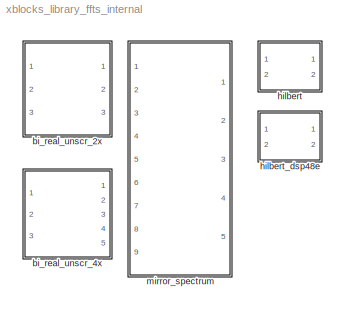
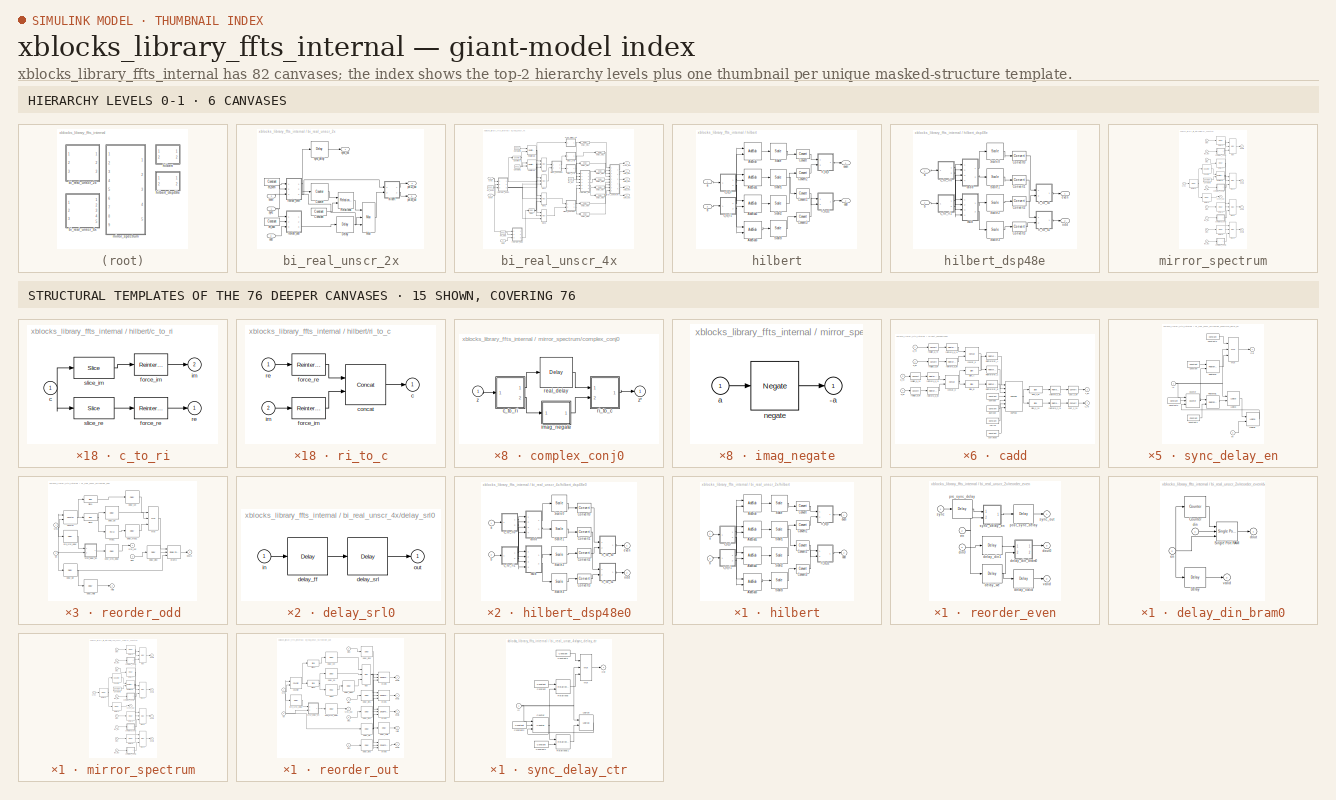
[diagram: thumbnail index - top-2 hierarchy levels (6 canvases) + 15 structural-template representatives of the remaining 76 canvases]
MODEL xblocks_library_ffts_internal
KIND library
BLOCK [SubSystem] bi_real_unscr_2x
  AttributesFormatString = 18_17 r/i
  FunctionWithSeparateData = off
  MaskCallbackString = ||||||
  MaskDescription = FFT internal block.\n\n(xBlock version)
  MaskEnableString = on,on,on,on,on,on,on
  MaskHideContents = off
  MaskIconFrame = on
  MaskIconOpaque = on
  MaskIconRotate = none
  MaskIconUnits = autoscale
  MaskInitialization = config.source = str2func('fft_bi_real_unscr_2x_init_xblock');\nconfig.toplevel = gcb;\nconfig.depend = get_dependlist('fft_bi_real_unscr_2x');\nset_param(gcb,'LinkStatus','inactive');\nxBlock( config, {config.toplevel,...\n    'FFTSize', FFTSize, ...\n    'n_bits', n_bits, ...\n    'add_latency', add_latency, ...\n    'conv_latency', conv_latency, ...\n    'bram_latency', bram_latency, ...\n    'b...<+60ch>
  MaskPortRotate = default
  MaskPromptString = Size of FFT (2^?):|Sample Bit Width|Add Latency|Convert Latency|BRAM Latency|Use BlockRAM for Map|Use DSP48s for adders
  MaskStyleString = edit,edit,edit,edit,edit,checkbox,checkbox
  MaskTabNameString = Basic,Basic,Latency,Latency,Latency,Implementation,Implementation
  MaskToolTipString = on,on,on,on,on,on,on
  MaskTunableValueString = on,on,on,on,on,off,off
  MaskType = bi_real_unscr_2x
  MaskValueString = 2|18|1|1|2|off|off
  MaskVariables = FFTSize=@1;n_bits=@2;add_latency=@3;conv_latency=@4;bram_latency=@5;bram_map=&6;dsp48_adders=&7;
  MaskVisibilityString = on,on,on,on,on,on,on
  MinAlgLoopOccurrences = off
  Opaque = off
  Ports = [3, 3]
  PropExecContextOutsideSubsystem = off
  RTWSystemCode = Auto
  RequestExecContextInheritance = off
  SID = 1
  UserData = DataTag0
  UserDataPersistent = on
BLOCK [Reference] bi_real_unscr_2x/Constant  REF=xbsIndex_r4/Constant
  Ports = [0, 1]
  SID = 4879
  SourceBlock = xbsIndex_r4/Constant
  SourceType = Xilinx Constant Block Block
  arith_type = Unsigned
  bin_pt = 0
  block_type = constant
  block_version = 11.4
  carry = CIN
  const = 0
  dbl_ovrd = off
  dsp48_infoedit = The use of this block for DSP48 instructions is deprecated.  Please use the Opmode block.
  equ = P=C
  explicit_period = on
  has_advanced_control = 0
  inp1 = P
  inp2 = PCIN>>17
  n_bits = 1
  opr = +
  opselect = C
  period = 1
  sg_icon_stat = 55,26,0,1,white,blue,0,bf4ddd8b,right,
  sg_mask_display = fprintf('','COMMENT: begin icon graphics');\npatch([0 1 1 0 ],[0 0 1 1 ],[0.77 0.82 0.91]);\npatch([0.363636 0.290909 0.4 0.290909 0.363636 0.490909 0.527273 0.563636 0.690909 0.581818 0.472727 0.4 0.509091 0.4 0.472727 0.581818 0.690909 0.563636 0.527273 0.490909 0.363636 ],[0.115385 0.269231 0.5 0.730769 0.884615 0.884615 0.807692 0.884615 0.884615 0.653846 0.884615 0.730769 0.5 0.269231 0.11538...<+279ch>  <repeated x41 — deduplicated; at blocks: Constant, en_even, en_odd, Constant1, Constant2, Constant3, alumode, carryin, carryinsel>
  sggui_pos = -1,-1,-1,-1
BLOCK [Reference] bi_real_unscr_2x/Counter  REF=xbsIndex_r4/Counter
  Ports = [1, 1]
  SID = 4880
  SourceBlock = xbsIndex_r4/Counter
  SourceType = Xilinx Counter Block
  arith_type = Unsigned
  bin_pt = 0
  block_type = counter
  block_version = 11.4
  cnt_by_val = 1
  cnt_to = Inf
  cnt_type = Free Running
  dbl_ovrd = off
  en = off
  explicit_period = on
  has_advanced_control = 0
  implementation = Fabric
  infoedit = Hardware notes: Free running counters are the least expensive in hardware.  A count limited counter is implemented by combining a counter with a comparator.
  load_pin = off
  n_bits = 1
  operation = Up
  period = 1
  rst = on
  sg_icon_stat = 60,60,1,1,white,blue,0,c59595e6,right,
  sg_mask_display = fprintf('','COMMENT: begin icon graphics');\npatch([0 1 1 0 ],[0 0 1 1 ],[0.77 0.82 0.91]);\npatch([0.233333 0.0666667 0.3 0.0666667 0.233333 0.5 0.566667 0.633333 0.916667 0.7 0.483333 0.333333 0.583333 0.333333 0.483333 0.7 0.916667 0.633333 0.566667 0.5 0.233333 ],[0.1 0.266667 0.5 0.733333 0.9 0.9 0.833333 0.9 0.9 0.683333 0.9 0.75 0.5 0.25 0.1 0.316667 0.1 0.1 0.166667 0.1 0.1 ],[0.98 0.96 0....<+255ch>  <repeated x3 — deduplicated; at blocks: Counter>
  sggui_pos = -1,-1,-1,-1
  start_count = 0
  use_behavioral_HDL = off
  xl_area = [0,0,0,0,0,0,0]
  xl_use_area = off
BLOCK [Reference] bi_real_unscr_2x/Delay  REF=xbsIndex_r4/Delay
  Ports = [1, 1]
  SID = 4881
  SourceBlock = xbsIndex_r4/Delay
  SourceType = Xilinx Delay Block
  block_type = delay
  block_version = 11.4
  dbl_ovrd = off
  en = off
  has_advanced_control = 0
  infoedit = Hardware notes: A delay line is a chain, each link of which is an SRL16 followed by a flip-flop.
  latency = 1
  reg_retiming = off
  sg_icon_stat = 60,56,1,1,white,blue,0,07b98262,right,
  sg_mask_display = fprintf('','COMMENT: begin icon graphics');\npatch([0 1 1 0 ],[0 0 1 1 ],[0.77 0.82 0.91]);\npatch([0.25 0.1 0.316667 0.1 0.25 0.5 0.566667 0.633333 0.9 0.683333 0.483333 0.333333 0.533333 0.333333 0.483333 0.683333 0.9 0.633333 0.566667 0.5 0.25 ],[0.107143 0.267857 0.5 0.732143 0.892857 0.892857 0.821429 0.892857 0.892857 0.660714 0.875 0.714286 0.5 0.285714 0.125 0.339286 0.107143 0.107143 0.17...<+249ch>  <repeated x65 — deduplicated; at blocks: Delay, delay_din1, delay_valid, delay_we, post_sync_delay, pre_sync_delay, delay_d0, delay_din0, delay_map1, delay_sel, sync_delay, delay_ff, Delay1, Delay2, Delay3, Delay4, +5 more>
  sggui_pos = -1,-1,-1,-1
  xl_area = [0,0,0,0,0,0,0]
  xl_use_area = off
BLOCK [Reference] bi_real_unscr_2x/Mux  REF=xbsIndex_r4/Mux
  Ports = [3, 1]
  SID = 4882
  SourceBlock = xbsIndex_r4/Mux
  SourceType = Xilinx Bus Multiplexer Block
  arith_type = Signed  (2's comp)
  bin_pt = 2
  block_type = mux
  block_version = 11.4
  dbl_ovrd = off
  en = off
  has_advanced_control = 0
  inputs = 2
  latency = 0
  n_bits = 8
  overflow = Wrap
  precision = Full
  quantization = Truncate
  sg_icon_stat = 45,104,3,1,white,blue,3,eb98d690,right,
  sg_mask_display = fprintf('','COMMENT: begin icon graphics');\npatch([0 1 1 0 ],[0 0.142857 0.857143 1 ],[0.77 0.82 0.91]);\npatch([0.222222 0.0666667 0.311111 0.0666667 0.222222 0.488889 0.555556 0.622222 0.911111 0.688889 0.466667 0.311111 0.555556 0.311111 0.466667 0.688889 0.911111 0.622222 0.555556 0.488889 0.222222 ],[0.326923 0.394231 0.5 0.605769 0.673077 0.673077 0.644231 0.673077 0.673077 0.576923 0.67307...<+460ch>  <repeated x7 — deduplicated; at blocks: Mux>
  sggui_pos = -1,-1,-1,-1
  xl_area = [0,0,0,0,0,0,0]
  xl_use_area = off
BLOCK [Reference] bi_real_unscr_2x/Relational  REF=xbsIndex_r4/Relational
  Ports = [2, 1]
  SID = 4883
  SourceBlock = xbsIndex_r4/Relational
  SourceType = Xilinx Arithmetic Relational Operator Block
  block_type = relational
  block_version = 11.4
  dbl_ovrd = off
  en = off
  has_advanced_control = 0
  latency = 0
  mode = a=b
  sg_icon_stat = 55,56,2,1,white,blue,0,2dfefa50,right,
  sg_mask_display = fprintf('','COMMENT: begin icon graphics');\npatch([0 1 1 0 ],[0 0 1 1 ],[0.77 0.82 0.91]);\npatch([0.236364 0.0727273 0.309091 0.0727273 0.236364 0.509091 0.581818 0.654545 0.945455 0.727273 0.509091 0.345455 0.581818 0.345455 0.509091 0.727273 0.945455 0.654545 0.581818 0.509091 0.236364 ],[0.107143 0.267857 0.5 0.732143 0.892857 0.892857 0.821429 0.892857 0.892857 0.678571 0.892857 0.732143 0.5...<+412ch>  <repeated x9 — deduplicated; at blocks: Relational>
  sggui_pos = -1,-1,-1,-1
  xl_area = [0,0,0,0,0,0,0]
  xl_use_area = off
BLOCK [Reference] bi_real_unscr_2x/en_even  REF=xbsIndex_r4/Constant
  Ports = [0, 1]
  SID = 4884
  SourceBlock = xbsIndex_r4/Constant
  SourceType = Xilinx Constant Block Block
  arith_type = Boolean
  bin_pt = 0
  block_type = constant
  block_version = 11.4
  carry = CIN
  const = 1
  dbl_ovrd = off
  dsp48_infoedit = The use of this block for DSP48 instructions is deprecated.  Please use the Opmode block.
  equ = P=C
  explicit_period = on
  has_advanced_control = 0
  inp1 = P
  inp2 = PCIN>>17
  n_bits = 1
  opr = +
  opselect = C
  period = 1
  sg_icon_stat = 55,26,0,1,white,blue,0,1c72b5be,right,
  sggui_pos = -1,-1,-1,-1
BLOCK [Reference] bi_real_unscr_2x/en_odd  REF=xbsIndex_r4/Constant
  Ports = [0, 1]
  SID = 4885
  SourceBlock = xbsIndex_r4/Constant
  SourceType = Xilinx Constant Block Block
  arith_type = Boolean
  bin_pt = 0
  block_type = constant
  block_version = 11.4
  carry = CIN
  const = 1
  dbl_ovrd = off
  dsp48_infoedit = The use of this block for DSP48 instructions is deprecated.  Please use the Opmode block.
  equ = P=C
  explicit_period = on
  has_advanced_control = 0
  inp1 = P
  inp2 = PCIN>>17
  n_bits = 1
  opr = +
  opselect = C
  period = 1
  sg_icon_stat = 55,26,0,1,white,blue,0,1c72b5be,right,
  sggui_pos = -1,-1,-1,-1
BLOCK [Inport] bi_real_unscr_2x/even
  IconDisplay = Port number
  OutDataType = sfix(16)
  OutScaling = 2^0
  Port = 2
  SID = 2
BLOCK [SubSystem] bi_real_unscr_2x/hilbert
  AttributesFormatString = 18_17 r/i
  FunctionWithSeparateData = off
  MaskHideContents = off
  MinAlgLoopOccurrences = off
  Opaque = off
  Ports = [2, 2]
  PropExecContextOutsideSubsystem = off
  RTWSystemCode = Auto
  RequestExecContextInheritance = off
  SID = 4887
BLOCK [Reference] bi_real_unscr_2x/hilbert/AddSub  REF=xbsIndex_r4/AddSub
  Ports = [2, 1]
  SID = 4892
  SourceBlock = xbsIndex_r4/AddSub
  SourceType = Xilinx Adder/Subtracter Block
  arith_type = Unsigned
  bin_pt = 2
  block_type = addsub
  block_version = 11.4
  dbl_ovrd = off
  en = off
  has_advanced_control = 0
  hw_selection = Fabric
  latency = 1
  mode = Addition
  n_bits = 8
  overflow = Wrap
  pipelined = off
  precision = Full
  quantization = Truncate
  sg_icon_stat = 60,60,2,1,white,blue,0,8ff03b5e,right,
  sg_mask_display = fprintf('','COMMENT: begin icon graphics');\npatch([0 1 1 0 ],[0 0 1 1 ],[0.77 0.82 0.91]);\npatch([0.233333 0.0666667 0.3 0.0666667 0.233333 0.5 0.566667 0.633333 0.916667 0.7 0.483333 0.333333 0.583333 0.333333 0.483333 0.7 0.916667 0.633333 0.566667 0.5 0.233333 ],[0.1 0.266667 0.5 0.733333 0.9 0.9 0.833333 0.9 0.9 0.683333 0.9 0.75 0.5 0.25 0.1 0.316667 0.1 0.1 0.166667 0.1 0.1 ],[0.98 0.96 0....<+390ch>  <repeated x6 — deduplicated; at blocks: AddSub, AddSub2, AddSub3>
  sggui_pos = -1,-1,-1,-1
  use_behavioral_HDL = on
  use_carryin = off
  use_carryout = off
  use_rpm = on
  xl_area = [0,0,0,0,0,0,0]
  xl_use_area = off
BLOCK [Reference] bi_real_unscr_2x/hilbert/AddSub1  REF=xbsIndex_r4/AddSub
  Ports = [2, 1]
  SID = 4893
  SourceBlock = xbsIndex_r4/AddSub
  SourceType = Xilinx Adder/Subtracter Block
  arith_type = Unsigned
  bin_pt = 2
  block_type = addsub
  block_version = 11.4
  dbl_ovrd = off
  en = off
  has_advanced_control = 0
  hw_selection = Fabric
  latency = 1
  mode = Subtraction
  n_bits = 8
  overflow = Wrap
  pipelined = off
  precision = Full
  quantization = Truncate
  sg_icon_stat = 60,58,2,1,white,blue,0,f9b6405b,right,
  sg_mask_display = fprintf('','COMMENT: begin icon graphics');\npatch([0 1 1 0 ],[0 0 1 1 ],[0.77 0.82 0.91]);\npatch([0.25 0.0833333 0.316667 0.0833333 0.25 0.5 0.566667 0.633333 0.9 0.683333 0.483333 0.333333 0.566667 0.333333 0.483333 0.683333 0.9 0.633333 0.566667 0.5 0.25 ],[0.103448 0.275862 0.517241 0.758621 0.931034 0.931034 0.862069 0.931034 0.931034 0.706897 0.913793 0.758621 0.517241 0.275862 0.12069 0.32...<+455ch>
  sggui_pos = -1,-1,-1,-1
  use_behavioral_HDL = on
  use_carryin = off
  use_carryout = off
  use_rpm = on
  xl_area = [0,0,0,0,0,0,0]
  xl_use_area = off
BLOCK [Reference] bi_real_unscr_2x/hilbert/AddSub2  REF=xbsIndex_r4/AddSub
  Ports = [2, 1]
  SID = 4894
  SourceBlock = xbsIndex_r4/AddSub
  SourceType = Xilinx Adder/Subtracter Block
  arith_type = Unsigned
  bin_pt = 2
  block_type = addsub
  block_version = 11.4
  dbl_ovrd = off
  en = off
  has_advanced_control = 0
  hw_selection = Fabric
  latency = 1
  mode = Subtraction
  n_bits = 8
  overflow = Wrap
  pipelined = off
  precision = Full
  quantization = Truncate
  sg_icon_stat = 60,60,2,1,white,blue,0,f9b6405b,right,
  sggui_pos = -1,-1,-1,-1
  use_behavioral_HDL = on
  use_carryin = off
  use_carryout = off
  use_rpm = on
  xl_area = [0,0,0,0,0,0,0]
  xl_use_area = off
BLOCK [Reference] bi_real_unscr_2x/hilbert/AddSub3  REF=xbsIndex_r4/AddSub
  Ports = [2, 1]
  SID = 4895
  SourceBlock = xbsIndex_r4/AddSub
  SourceType = Xilinx Adder/Subtracter Block
  arith_type = Unsigned
  bin_pt = 2
  block_type = addsub
  block_version = 11.4
  dbl_ovrd = off
  en = off
  has_advanced_control = 0
  hw_selection = Fabric
  latency = 1
  mode = Addition
  n_bits = 8
  overflow = Wrap
  pipelined = off
  precision = Full
  quantization = Truncate
  sg_icon_stat = 60,60,2,1,white,blue,0,8ff03b5e,right,
  sggui_pos = -1,-1,-1,-1
  use_behavioral_HDL = on
  use_carryin = off
  use_carryout = off
  use_rpm = on
  xl_area = [0,0,0,0,0,0,0]
  xl_use_area = off
BLOCK [Reference] bi_real_unscr_2x/hilbert/Convert  REF=xbsIndex_r4/Convert
  Ports = [1, 1]
  SID = 4896
  SourceBlock = xbsIndex_r4/Convert
  SourceType = Xilinx Type Converter Block
  arith_type = Signed  (2's comp)
  bin_pt = 17
  block_type = convert
  block_version = 11.4
  dbl_ovrd = off
  has_advanced_control = 0
  infoedit = Hardware notes: rounding and saturating require hardware resources; truncating and wrapping do not.
  latency = 1
  n_bits = 18
  overflow = Wrap
  pipeline = off
  quantization = Round  (unbiased: Even Values)
  sg_icon_stat = 45,32,1,1,white,blue,0,d6ffdbcd,right,
  sg_mask_display = fprintf('','COMMENT: begin icon graphics');\npatch([0 1 1 0 ],[0 0 1 1 ],[0.77 0.82 0.91]);\npatch([0.311111 0.2 0.355556 0.2 0.311111 0.488889 0.533333 0.577778 0.777778 0.622222 0.466667 0.355556 0.511111 0.355556 0.466667 0.622222 0.777778 0.577778 0.533333 0.488889 0.311111 ],[0.09375 0.25 0.46875 0.6875 0.84375 0.84375 0.78125 0.84375 0.84375 0.625 0.84375 0.6875 0.46875 0.25 0.09375 0.3125 0...<+321ch>  <repeated x16 — deduplicated; at blocks: Convert, Convert1, Convert0, Convert2, Convert3>
  sggui_pos = -1,-1,-1,-1
  xl_area = [0,0,0,0,0,0,0]
  xl_use_area = off
BLOCK [Reference] bi_real_unscr_2x/hilbert/Convert1  REF=xbsIndex_r4/Convert
  Ports = [1, 1]
  SID = 4897
  SourceBlock = xbsIndex_r4/Convert
  SourceType = Xilinx Type Converter Block
  arith_type = Signed  (2's comp)
  bin_pt = 17
  block_type = convert
  block_version = 11.4
  dbl_ovrd = off
  has_advanced_control = 0
  infoedit = Hardware notes: rounding and saturating require hardware resources; truncating and wrapping do not.
  latency = 1
  n_bits = 18
  overflow = Wrap
  pipeline = off
  quantization = Round  (unbiased: Even Values)
  sg_icon_stat = 45,32,1,1,white,blue,0,d6ffdbcd,right,
  sggui_pos = -1,-1,-1,-1
  xl_area = [0,0,0,0,0,0,0]
  xl_use_area = off
BLOCK [Reference] bi_real_unscr_2x/hilbert/Convert2  REF=xbsIndex_r4/Convert
  Ports = [1, 1]
  SID = 4898
  SourceBlock = xbsIndex_r4/Convert
  SourceType = Xilinx Type Converter Block
  arith_type = Signed  (2's comp)
  bin_pt = 17
  block_type = convert
  block_version = 11.4
  dbl_ovrd = off
  has_advanced_control = 0
  infoedit = Hardware notes: rounding and saturating require hardware resources; truncating and wrapping do not.
  latency = 1
  n_bits = 18
  overflow = Wrap
  pipeline = off
  quantization = Round  (unbiased: Even Values)
  sg_icon_stat = 45,30,1,1,white,blue,0,d6ffdbcd,right,
  sg_mask_display = fprintf('','COMMENT: begin icon graphics');\npatch([0 1 1 0 ],[0 0 1 1 ],[0.77 0.82 0.91]);\npatch([0.333333 0.222222 0.377778 0.222222 0.333333 0.511111 0.555556 0.6 0.777778 0.622222 0.488889 0.377778 0.511111 0.377778 0.488889 0.622222 0.777778 0.6 0.555556 0.511111 0.333333 ],[0.1 0.266667 0.5 0.733333 0.9 0.9 0.833333 0.9 0.9 0.666667 0.866667 0.7 0.5 0.3 0.133333 0.333333 0.1 0.1 0.166667 0....<+288ch>  <repeated x4 — deduplicated; at blocks: Convert2, Convert3>
  sggui_pos = -1,-1,-1,-1
  xl_area = [0,0,0,0,0,0,0]
  xl_use_area = off
BLOCK [Reference] bi_real_unscr_2x/hilbert/Convert3  REF=xbsIndex_r4/Convert
  Ports = [1, 1]
  SID = 4899
  SourceBlock = xbsIndex_r4/Convert
  SourceType = Xilinx Type Converter Block
  arith_type = Signed  (2's comp)
  bin_pt = 17
  block_type = convert
  block_version = 11.4
  dbl_ovrd = off
  has_advanced_control = 0
  infoedit = Hardware notes: rounding and saturating require hardware resources; truncating and wrapping do not.
  latency = 1
  n_bits = 18
  overflow = Wrap
  pipeline = off
  quantization = Round  (unbiased: Even Values)
  sg_icon_stat = 45,30,1,1,white,blue,0,d6ffdbcd,right,
  sggui_pos = -1,-1,-1,-1
  xl_area = [0,0,0,0,0,0,0]
  xl_use_area = off
BLOCK [Reference] bi_real_unscr_2x/hilbert/Scale  REF=xbsIndex_r4/Scale
  Ports = [1, 1]
  SID = 4900
  SourceBlock = xbsIndex_r4/Scale
  SourceType = Xilinx Input Scaler Block
  block_type = scale
  block_version = 11.4
  dbl_ovrd = off
  has_advanced_control = 0
  infoedit = Scales input by a power of two by adjusting the binary point position.<br><br>Hardware notes: In hardware this block costs nothing.
  scale_factor = -1
  sg_icon_stat = 55,56,1,1,white,blue,0,315b7d78,right,
  sg_mask_display = fprintf('','COMMENT: begin icon graphics');\npatch([0 1 1 0 ],[0 0 1 1 ],[0.77 0.82 0.91]);\npatch([0.236364 0.0727273 0.309091 0.0727273 0.236364 0.509091 0.581818 0.654545 0.945455 0.727273 0.509091 0.345455 0.581818 0.345455 0.509091 0.727273 0.945455 0.654545 0.581818 0.509091 0.236364 ],[0.107143 0.267857 0.5 0.732143 0.892857 0.892857 0.821429 0.892857 0.892857 0.678571 0.892857 0.732143 0.5...<+305ch>  <repeated x12 — deduplicated; at blocks: Scale, Scale1, Scale2, Scale3, Scale0>
  sggui_pos = -1,-1,-1,-1
BLOCK [Reference] bi_real_unscr_2x/hilbert/Scale1  REF=xbsIndex_r4/Scale
  Ports = [1, 1]
  SID = 4901
  SourceBlock = xbsIndex_r4/Scale
  SourceType = Xilinx Input Scaler Block
  block_type = scale
  block_version = 11.4
  dbl_ovrd = off
  has_advanced_control = 0
  infoedit = Scales input by a power of two by adjusting the binary point position.<br><br>Hardware notes: In hardware this block costs nothing.
  scale_factor = -1
  sg_icon_stat = 55,56,1,1,white,blue,0,315b7d78,right,
  sggui_pos = -1,-1,-1,-1
BLOCK [Reference] bi_real_unscr_2x/hilbert/Scale2  REF=xbsIndex_r4/Scale
  Ports = [1, 1]
  SID = 4902
  SourceBlock = xbsIndex_r4/Scale
  SourceType = Xilinx Input Scaler Block
  block_type = scale
  block_version = 11.4
  dbl_ovrd = off
  has_advanced_control = 0
  infoedit = Scales input by a power of two by adjusting the binary point position.<br><br>Hardware notes: In hardware this block costs nothing.
  scale_factor = -1
  sg_icon_stat = 55,56,1,1,white,blue,0,315b7d78,right,
  sggui_pos = -1,-1,-1,-1
BLOCK [Reference] bi_real_unscr_2x/hilbert/Scale3  REF=xbsIndex_r4/Scale
  Ports = [1, 1]
  SID = 4903
  SourceBlock = xbsIndex_r4/Scale
  SourceType = Xilinx Input Scaler Block
  block_type = scale
  block_version = 11.4
  dbl_ovrd = off
  has_advanced_control = 0
  infoedit = Scales input by a power of two by adjusting the binary point position.<br><br>Hardware notes: In hardware this block costs nothing.
  scale_factor = -1
  sg_icon_stat = 55,56,1,1,white,blue,0,315b7d78,right,
  sggui_pos = -1,-1,-1,-1
BLOCK [Inport] bi_real_unscr_2x/hilbert/a
  IconDisplay = Port number
  SID = 4888
BLOCK [Inport] bi_real_unscr_2x/hilbert/b
  IconDisplay = Port number
  Port = 2
  SID = 4889
BLOCK [SubSystem] bi_real_unscr_2x/hilbert/c_to_ri
  FunctionWithSeparateData = off
  MaskHideContents = off
  MinAlgLoopOccurrences = off
  Opaque = off
  Ports = [1, 2]
  PropExecContextOutsideSubsystem = off
  RTWSystemCode = Auto
  RequestExecContextInheritance = off
  SID = 4904
BLOCK [Inport] bi_real_unscr_2x/hilbert/c_to_ri/c
  IconDisplay = Port number
  SID = 4905
BLOCK [Reference] bi_real_unscr_2x/hilbert/c_to_ri/force_im  REF=xbsIndex_r4/Reinterpret
  Ports = [1, 1]
  SID = 4908
  SourceBlock = xbsIndex_r4/Reinterpret
  SourceType = Xilinx Type Reinterpreter Block
  arith_type = Signed  (2's comp)
  bin_pt = 17
  block_type = reinterpret
  block_version = 11.4
  force_arith_type = on
  force_bin_pt = on
  has_advanced_control = 0
  infoedit = Changes signal type without altering the binary representation.   You can changed the signal between signed and unsigned, and relocate the binary point.<br><br>Hardware notes: In hardware this block costs nothing.<br><br>Example:  Suppose the input is 6 bits wide, signed, with 2 fractional bits, and the output is forced to unsigned with 0 fractional bits.  Then an input of -2.0 (1110.00 in binary ...<+59ch>  <repeated x126 — deduplicated; at blocks: force_im, force_re, Reinterpret_A, Reinterpret_B, Reinterpret_C, reinterp_a_im, reinterp_a_re, reinterp_b_im, reinterp_b_re, reinterp_c_im, reinterp_c_re>
  sg_icon_stat = 50,32,1,1,white,blue,0,6b04d0b0,right,
  sg_mask_display = fprintf('','COMMENT: begin icon graphics');\npatch([0 1 1 0 ],[0 0 1 1 ],[0.77 0.82 0.91]);\npatch([0.32 0.22 0.36 0.22 0.32 0.48 0.52 0.56 0.74 0.6 0.46 0.36 0.5 0.36 0.46 0.6 0.74 0.56 0.52 0.48 0.32 ],[0.09375 0.25 0.46875 0.6875 0.84375 0.84375 0.78125 0.84375 0.84375 0.625 0.84375 0.6875 0.46875 0.25 0.09375 0.3125 0.09375 0.09375 0.15625 0.09375 0.09375 ],[0.98 0.96 0.92]);\nplot([0 1 1 0 0 ...<+178ch>  <repeated x114 — deduplicated; at blocks: force_im, force_re, Reinterpret_A, Reinterpret_B, Reinterpret_C, reinterp_a_im, reinterp_a_re, reinterp_b_im, reinterp_b_re>
  sggui_pos = -1,-1,-1,-1
BLOCK [Reference] bi_real_unscr_2x/hilbert/c_to_ri/force_re  REF=xbsIndex_r4/Reinterpret
  Ports = [1, 1]
  SID = 4909
  SourceBlock = xbsIndex_r4/Reinterpret
  SourceType = Xilinx Type Reinterpreter Block
  arith_type = Signed  (2's comp)
  bin_pt = 17
  block_type = reinterpret
  block_version = 11.4
  force_arith_type = on
  force_bin_pt = on
  has_advanced_control = 0
  sg_icon_stat = 50,32,1,1,white,blue,0,6b04d0b0,right,
  sggui_pos = -1,-1,-1,-1
BLOCK [Outport] bi_real_unscr_2x/hilbert/c_to_ri/im
  IconDisplay = Port number
  Port = 2
  SID = 4907
BLOCK [Outport] bi_real_unscr_2x/hilbert/c_to_ri/re
  IconDisplay = Port number
  SID = 4906
BLOCK [Reference] bi_real_unscr_2x/hilbert/c_to_ri/slice_im  REF=xbsIndex_r4/Slice
  Ports = [1, 1]
  SID = 4910
  SourceBlock = xbsIndex_r4/Slice
  SourceType = Xilinx Bit Slice Extractor Block
  base0 = LSB of Input
  base1 = MSB of Input
  bit0 = 0
  bit1 = 0
  block_type = slice
  block_version = 11.4
  boolean_output = off
  dbl_ovrd = off
  has_advanced_control = 0
  infoedit = Extracts a given range of bits from each input sample and presents it at the output.  The output type is ordinarily unsigned with binary point at zero, but can be Boolean when the slice is one bit wide.<br><br>Hardware notes: In hardware this block costs nothing.  <repeated x68 — deduplicated; at blocks: slice_im, slice_re, Slice1, Slice2, Slice_A, Slice_B, slice_c_im, slice_c_re>
  mode = Lower Bit Location + Width
  nbits = 18
  sg_icon_stat = 60,32,1,1,white,blue,0,1fd851a7,right,
  sg_mask_display = fprintf('','COMMENT: begin icon graphics');\npatch([0 1 1 0 ],[0 0 1 1 ],[0.77 0.82 0.91]);\npatch([0.35 0.266667 0.383333 0.266667 0.35 0.483333 0.516667 0.55 0.7 0.583333 0.466667 0.383333 0.5 0.383333 0.466667 0.583333 0.7 0.55 0.516667 0.483333 0.35 ],[0.09375 0.25 0.46875 0.6875 0.84375 0.84375 0.78125 0.84375 0.84375 0.625 0.84375 0.6875 0.46875 0.25 0.09375 0.3125 0.09375 0.09375 0.15625 0....<+241ch>  <repeated x59 — deduplicated; at blocks: slice_im, slice_re, Slice2, Slice_A, Slice_B, slice_c_re, Slice1>
  sggui_pos = -1,-1,-1,-1
BLOCK [Reference] bi_real_unscr_2x/hilbert/c_to_ri/slice_re  REF=xbsIndex_r4/Slice
  Ports = [1, 1]
  SID = 4911
  SourceBlock = xbsIndex_r4/Slice
  SourceType = Xilinx Bit Slice Extractor Block
  base0 = LSB of Input
  base1 = MSB of Input
  bit0 = 0
  bit1 = 0
  block_type = slice
  block_version = 11.4
  boolean_output = off
  dbl_ovrd = off
  has_advanced_control = 0
  mode = Upper Bit Location + Width
  nbits = 18
  sg_icon_stat = 60,32,1,1,white,blue,0,1fd851a7,right,
  sggui_pos = -1,-1,-1,-1
BLOCK [SubSystem] bi_real_unscr_2x/hilbert/c_to_ri1
  FunctionWithSeparateData = off
  MaskHideContents = off
  MinAlgLoopOccurrences = off
  Opaque = off
  Ports = [1, 2]
  PropExecContextOutsideSubsystem = off
  RTWSystemCode = Auto
  RequestExecContextInheritance = off
  SID = 4912
BLOCK [Inport] bi_real_unscr_2x/hilbert/c_to_ri1/c
  IconDisplay = Port number
  SID = 4913
BLOCK [Reference] bi_real_unscr_2x/hilbert/c_to_ri1/force_im  REF=xbsIndex_r4/Reinterpret
  Ports = [1, 1]
  SID = 4916
  SourceBlock = xbsIndex_r4/Reinterpret
  SourceType = Xilinx Type Reinterpreter Block
  arith_type = Signed  (2's comp)
  bin_pt = 17
  block_type = reinterpret
  block_version = 11.4
  force_arith_type = on
  force_bin_pt = on
  has_advanced_control = 0
  sg_icon_stat = 50,32,1,1,white,blue,0,6b04d0b0,right,
  sggui_pos = -1,-1,-1,-1
BLOCK [Reference] bi_real_unscr_2x/hilbert/c_to_ri1/force_re  REF=xbsIndex_r4/Reinterpret
  Ports = [1, 1]
  SID = 4917
  SourceBlock = xbsIndex_r4/Reinterpret
  SourceType = Xilinx Type Reinterpreter Block
  arith_type = Signed  (2's comp)
  bin_pt = 17
  block_type = reinterpret
  block_version = 11.4
  force_arith_type = on
  force_bin_pt = on
  has_advanced_control = 0
  sg_icon_stat = 50,32,1,1,white,blue,0,6b04d0b0,right,
  sggui_pos = -1,-1,-1,-1
BLOCK [Outport] bi_real_unscr_2x/hilbert/c_to_ri1/im
  IconDisplay = Port number
  Port = 2
  SID = 4915
BLOCK [Outport] bi_real_unscr_2x/hilbert/c_to_ri1/re
  IconDisplay = Port number
  SID = 4914
BLOCK [Reference] bi_real_unscr_2x/hilbert/c_to_ri1/slice_im  REF=xbsIndex_r4/Slice
  Ports = [1, 1]
  SID = 4918
  SourceBlock = xbsIndex_r4/Slice
  SourceType = Xilinx Bit Slice Extractor Block
  base0 = LSB of Input
  base1 = MSB of Input
  bit0 = 0
  bit1 = 0
  block_type = slice
  block_version = 11.4
  boolean_output = off
  dbl_ovrd = off
  has_advanced_control = 0
  mode = Lower Bit Location + Width
  nbits = 18
  sg_icon_stat = 60,32,1,1,white,blue,0,1fd851a7,right,
  sggui_pos = -1,-1,-1,-1
BLOCK [Reference] bi_real_unscr_2x/hilbert/c_to_ri1/slice_re  REF=xbsIndex_r4/Slice
  Ports = [1, 1]
  SID = 4919
  SourceBlock = xbsIndex_r4/Slice
  SourceType = Xilinx Bit Slice Extractor Block
  base0 = LSB of Input
  base1 = MSB of Input
  bit0 = 0
  bit1 = 0
  block_type = slice
  block_version = 11.4
  boolean_output = off
  dbl_ovrd = off
  has_advanced_control = 0
  mode = Upper Bit Location + Width
  nbits = 18
  sg_icon_stat = 60,32,1,1,white,blue,0,1fd851a7,right,
  sggui_pos = -1,-1,-1,-1
BLOCK [Outport] bi_real_unscr_2x/hilbert/even
  IconDisplay = Port number
  SID = 4890
BLOCK [Outport] bi_real_unscr_2x/hilbert/odd
  IconDisplay = Port number
  Port = 2
  SID = 4891
BLOCK [SubSystem] bi_real_unscr_2x/hilbert/ri_to_c
  FunctionWithSeparateData = off
  MaskHideContents = off
  MinAlgLoopOccurrences = off
  Opaque = off
  Ports = [2, 1]
  PropExecContextOutsideSubsystem = off
  RTWSystemCode = Auto
  RequestExecContextInheritance = off
  SID = 4920
BLOCK [Outport] bi_real_unscr_2x/hilbert/ri_to_c/c
  IconDisplay = Port number
  SID = 4923
BLOCK [Reference] bi_real_unscr_2x/hilbert/ri_to_c/concat  REF=xbsIndex_r4/Concat
  Ports = [2, 1]
  SID = 4924
  SourceBlock = xbsIndex_r4/Concat
  SourceType = Xilinx Bus Concatenator Block
  block_type = concat
  block_version = 11.4
  dbl_ovrd = off
  has_advanced_control = 0
  infoedit = Concatenates two or more inputs.  Output will be cast to an unsigned value with the binary point at zero.
  num_inputs = 2
  sg_icon_stat = 60,60,2,1,white,blue,0,97b7e8d2,right,
  sg_mask_display = fprintf('','COMMENT: begin icon graphics');\npatch([0 1 1 0 ],[0 0 1 1 ],[0.77 0.82 0.91]);\npatch([0.233333 0.0666667 0.3 0.0666667 0.233333 0.5 0.566667 0.633333 0.916667 0.7 0.483333 0.333333 0.583333 0.333333 0.483333 0.7 0.916667 0.633333 0.566667 0.5 0.233333 ],[0.1 0.266667 0.5 0.733333 0.9 0.9 0.833333 0.9 0.9 0.683333 0.9 0.75 0.5 0.25 0.1 0.316667 0.1 0.1 0.166667 0.1 0.1 ],[0.98 0.96 0....<+252ch>  <repeated x30 — deduplicated; at blocks: concat, concat_a, concat_b>
  sggui_pos = -1,-1,-1,-1
BLOCK [Reference] bi_real_unscr_2x/hilbert/ri_to_c/force_im  REF=xbsIndex_r4/Reinterpret
  Ports = [1, 1]
  SID = 4925
  SourceBlock = xbsIndex_r4/Reinterpret
  SourceType = Xilinx Type Reinterpreter Block
  arith_type = Unsigned
  bin_pt = 0
  block_type = reinterpret
  block_version = 11.4
  force_arith_type = on
  force_bin_pt = on
  has_advanced_control = 0
  sg_icon_stat = 50,32,1,1,white,blue,0,6b04d0b0,right,
  sggui_pos = -1,-1,-1,-1
BLOCK [Reference] bi_real_unscr_2x/hilbert/ri_to_c/force_re  REF=xbsIndex_r4/Reinterpret
  Ports = [1, 1]
  SID = 4926
  SourceBlock = xbsIndex_r4/Reinterpret
  SourceType = Xilinx Type Reinterpreter Block
  arith_type = Unsigned
  bin_pt = 0
  block_type = reinterpret
  block_version = 11.4
  force_arith_type = on
  force_bin_pt = on
  has_advanced_control = 0
  sg_icon_stat = 50,32,1,1,white,blue,0,6b04d0b0,right,
  sggui_pos = -1,-1,-1,-1
BLOCK [Inport] bi_real_unscr_2x/hilbert/ri_to_c/im
  IconDisplay = Port number
  Port = 2
  SID = 4922
BLOCK [Inport] bi_real_unscr_2x/hilbert/ri_to_c/re
  IconDisplay = Port number
  SID = 4921
BLOCK [SubSystem] bi_real_unscr_2x/hilbert/ri_to_c1
  FunctionWithSeparateData = off
  MaskHideContents = off
  MinAlgLoopOccurrences = off
  Opaque = off
  Ports = [2, 1]
  PropExecContextOutsideSubsystem = off
  RTWSystemCode = Auto
  RequestExecContextInheritance = off
  SID = 4927
BLOCK [Outport] bi_real_unscr_2x/hilbert/ri_to_c1/c
  IconDisplay = Port number
  SID = 4930
BLOCK [Reference] bi_real_unscr_2x/hilbert/ri_to_c1/concat  REF=xbsIndex_r4/Concat
  Ports = [2, 1]
  SID = 4931
  SourceBlock = xbsIndex_r4/Concat
  SourceType = Xilinx Bus Concatenator Block
  block_type = concat
  block_version = 11.4
  dbl_ovrd = off
  has_advanced_control = 0
  infoedit = Concatenates two or more inputs.  Output will be cast to an unsigned value with the binary point at zero.
  num_inputs = 2
  sg_icon_stat = 60,60,2,1,white,blue,0,97b7e8d2,right,
  sggui_pos = -1,-1,-1,-1
BLOCK [Reference] bi_real_unscr_2x/hilbert/ri_to_c1/force_im  REF=xbsIndex_r4/Reinterpret
  Ports = [1, 1]
  SID = 4932
  SourceBlock = xbsIndex_r4/Reinterpret
  SourceType = Xilinx Type Reinterpreter Block
  arith_type = Unsigned
  bin_pt = 0
  block_type = reinterpret
  block_version = 11.4
  force_arith_type = on
  force_bin_pt = on
  has_advanced_control = 0
  sg_icon_stat = 50,32,1,1,white,blue,0,6b04d0b0,right,
  sggui_pos = -1,-1,-1,-1
BLOCK [Reference] bi_real_unscr_2x/hilbert/ri_to_c1/force_re  REF=xbsIndex_r4/Reinterpret
  Ports = [1, 1]
  SID = 4933
  SourceBlock = xbsIndex_r4/Reinterpret
  SourceType = Xilinx Type Reinterpreter Block
  arith_type = Unsigned
  bin_pt = 0
  block_type = reinterpret
  block_version = 11.4
  force_arith_type = on
  force_bin_pt = on
  has_advanced_control = 0
  sg_icon_stat = 50,32,1,1,white,blue,0,6b04d0b0,right,
  sggui_pos = -1,-1,-1,-1
BLOCK [Inport] bi_real_unscr_2x/hilbert/ri_to_c1/im
  IconDisplay = Port number
  Port = 2
  SID = 4929
BLOCK [Inport] bi_real_unscr_2x/hilbert/ri_to_c1/re
  IconDisplay = Port number
  SID = 4928
BLOCK [Inport] bi_real_unscr_2x/odd
  IconDisplay = Port number
  OutDataType = sfix(16)
  OutScaling = 2^0
  Port = 3
  SID = 3
BLOCK [Outport] bi_real_unscr_2x/pol12_out
  IconDisplay = Port number
  OutDataType = sfix(16)
  OutScaling = 2^0
  Port = 2
  SID = 16
BLOCK [Outport] bi_real_unscr_2x/pol34_out
  IconDisplay = Port number
  OutDataType = sfix(16)
  OutScaling = 2^0
  Port = 3
  SID = 17
BLOCK [SubSystem] bi_real_unscr_2x/reorder_even
  AttributesFormatString = order=1
  FunctionWithSeparateData = off
  MaskHideContents = off
  MinAlgLoopOccurrences = off
  Opaque = off
  Ports = [3, 3]
  PropExecContextOutsideSubsystem = off
  RTWSystemCode = Auto
  RequestExecContextInheritance = off
  SID = 4934
BLOCK [Reference] bi_real_unscr_2x/reorder_even/delay_din1  REF=xbsIndex_r4/Delay
  Ports = [1, 1]
  SID = 4962
  SourceBlock = xbsIndex_r4/Delay
  SourceType = Xilinx Delay Block
  block_type = delay
  block_version = 11.4
  dbl_ovrd = off
  en = off
  has_advanced_control = 0
  infoedit = Hardware notes: A delay line is a chain, each link of which is an SRL16 followed by a flip-flop.
  latency = 1
  reg_retiming = off
  sg_icon_stat = 60,56,1,1,white,blue,0,07b98262,right,
  sggui_pos = -1,-1,-1,-1
  xl_area = [0,0,0,0,0,0,0]
  xl_use_area = off
BLOCK [SubSystem] bi_real_unscr_2x/reorder_even/delay_din_bram0
  FunctionWithSeparateData = off
  MaskHideContents = off
  MinAlgLoopOccurrences = off
  Opaque = off
  Ports = [2, 2]
  PropExecContextOutsideSubsystem = off
  RTWSystemCode = Auto
  RequestExecContextInheritance = off
  SID = 4963
BLOCK [Reference] bi_real_unscr_2x/reorder_even/delay_din_bram0/Counter  REF=xbsIndex_r4/Counter
  Ports = [1, 1]
  SID = 4968
  SourceBlock = xbsIndex_r4/Counter
  SourceType = Xilinx Counter Block
  arith_type = Unsigned
  bin_pt = 0
  block_type = counter
  block_version = 11.4
  cnt_by_val = 1
  cnt_to = 1
  cnt_type = Count Limited
  dbl_ovrd = off
  en = on
  explicit_period = off
  has_advanced_control = 0
  implementation = Fabric
  infoedit = Hardware notes: Free running counters are the least expensive in hardware.  A count limited counter is implemented by combining a counter with a comparator.
  load_pin = off
  n_bits = 2
  operation = Up
  period = 1
  rst = off
  sg_icon_stat = 60,60,1,1,white,blue,0,ed54cb7a,right,
  sg_mask_display = fprintf('','COMMENT: begin icon graphics');\npatch([0 1 1 0 ],[0 0 1 1 ],[0.77 0.82 0.91]);\npatch([0.233333 0.0666667 0.3 0.0666667 0.233333 0.5 0.566667 0.633333 0.916667 0.7 0.483333 0.333333 0.583333 0.333333 0.483333 0.7 0.916667 0.633333 0.566667 0.5 0.233333 ],[0.1 0.266667 0.5 0.733333 0.9 0.9 0.833333 0.9 0.9 0.683333 0.9 0.75 0.5 0.25 0.1 0.316667 0.1 0.1 0.166667 0.1 0.1 ],[0.98 0.96 0....<+254ch>
  sggui_pos = -1,-1,-1,-1
  start_count = 0
  use_behavioral_HDL = off
  use_rpm = off
  xl_area = [0,0,0,0,0,0,0]
  xl_use_area = off
BLOCK [Reference] bi_real_unscr_2x/reorder_even/delay_din_bram0/Delay  REF=xbsIndex_r4/Delay
  Ports = [1, 1]
  SID = 4969
  SourceBlock = xbsIndex_r4/Delay
  SourceType = Xilinx Delay Block
  block_type = delay
  block_version = 11.4
  dbl_ovrd = off
  en = off
  has_advanced_control = 0
  infoedit = Hardware notes: A delay line is a chain, each link of which is an SRL16 followed by a flip-flop.
  latency = 2
  reg_retiming = off
  sg_icon_stat = 60,56,1,1,white,blue,0,85ce9542,right,
  sggui_pos = -1,-1,-1,-1
  xl_area = [0,0,0,0,0,0,0]
  xl_use_area = off
BLOCK [Reference] bi_real_unscr_2x/reorder_even/delay_din_bram0/Single Port RAM  REF=xbsIndex_r4/Single Port RAM
  Ports = [3, 1]
  SID = 4970
  SourceBlock = xbsIndex_r4/Single Port RAM
  SourceType = Xilinx Single Port Random Access Memory Block
  block_type = spram
  block_version = 11.4
  dbl_ovrd = off
  depth = 4
  distributed_mem = Block RAM
  en = off
  has_advanced_control = 0
  initVector = 0
  init_reg = 0
  latency = 2
  optimize = Area
  rst = off
  sg_icon_stat = 60,54,3,1,white,blue,0,f2d5aa4c,right,
  sg_mask_display = fprintf('','COMMENT: begin icon graphics');\npatch([0 1 1 0 ],[0 0 1 1 ],[0.77 0.82 0.91]);\npatch([0.266667 0.116667 0.333333 0.116667 0.266667 0.5 0.566667 0.633333 0.883333 0.683333 0.483333 0.35 0.583333 0.35 0.483333 0.683333 0.883333 0.633333 0.566667 0.5 0.266667 ],[0.111111 0.277778 0.518519 0.759259 0.925926 0.925926 0.851852 0.925926 0.925926 0.703704 0.925926 0.777778 0.518519 0.259259 ...<+425ch>
  sggui_pos = -1,-1,-1,-1
  use_rpm = off
  write_mode = Read Before Write
  xl_area = [0,0,0,0,0,0,0]
  xl_use_area = off
BLOCK [Inport] bi_real_unscr_2x/reorder_even/delay_din_bram0/din
  IconDisplay = Port number
  SID = 4964
BLOCK [Outport] bi_real_unscr_2x/reorder_even/delay_din_bram0/dout
  IconDisplay = Port number
  SID = 4966
BLOCK [Inport] bi_real_unscr_2x/reorder_even/delay_din_bram0/en
  IconDisplay = Port number
  Port = 2
  SID = 4965
BLOCK [Outport] bi_real_unscr_2x/reorder_even/delay_din_bram0/valid
  IconDisplay = Port number
  Port = 2
  SID = 4967
BLOCK [Reference] bi_real_unscr_2x/reorder_even/delay_valid  REF=xbsIndex_r4/Delay
  Ports = [1, 1]
  SID = 4961
  SourceBlock = xbsIndex_r4/Delay
  SourceType = Xilinx Delay Block
  block_type = delay
  block_version = 11.4
  dbl_ovrd = off
  en = off
  has_advanced_control = 0
  infoedit = Hardware notes: A delay line is a chain, each link of which is an SRL16 followed by a flip-flop.
  latency = 3
  reg_retiming = off
  sg_icon_stat = 60,56,1,1,white,blue,0,83e6bb61,right,
  sggui_pos = -1,-1,-1,-1
  xl_area = [0,0,0,0,0,0,0]
  xl_use_area = off
BLOCK [Reference] bi_real_unscr_2x/reorder_even/delay_we  REF=xbsIndex_r4/Delay
  Ports = [1, 1]
  SID = 4960
  SourceBlock = xbsIndex_r4/Delay
  SourceType = Xilinx Delay Block
  block_type = delay
  block_version = 11.4
  dbl_ovrd = off
  en = off
  has_advanced_control = 0
  infoedit = Hardware notes: A delay line is a chain, each link of which is an SRL16 followed by a flip-flop.
  latency = 0
  reg_retiming = off
  sg_icon_stat = 60,56,1,1,white,blue,0,24450e6f,right,
  sggui_pos = -1,-1,-1,-1
  xl_area = [0,0,0,0,0,0,0]
  xl_use_area = off
BLOCK [Inport] bi_real_unscr_2x/reorder_even/din0
  IconDisplay = Port number
  Port = 3
  SID = 4939
BLOCK [Outport] bi_real_unscr_2x/reorder_even/dout0
  IconDisplay = Port number
  Port = 3
  SID = 4940
BLOCK [Inport] bi_real_unscr_2x/reorder_even/en
  IconDisplay = Port number
  Port = 2
  SID = 4936
BLOCK [Reference] bi_real_unscr_2x/reorder_even/post_sync_delay  REF=xbsIndex_r4/Delay
  Ports = [1, 1]
  SID = 4959
  SourceBlock = xbsIndex_r4/Delay
  SourceType = Xilinx Delay Block
  block_type = delay
  block_version = 11.4
  dbl_ovrd = off
  en = off
  has_advanced_control = 0
  infoedit = Hardware notes: A delay line is a chain, each link of which is an SRL16 followed by a flip-flop.
  latency = 3
  reg_retiming = off
  sg_icon_stat = 60,56,1,1,white,blue,0,83e6bb61,right,
  sggui_pos = -1,-1,-1,-1
  xl_area = [0,0,0,0,0,0,0]
  xl_use_area = off
BLOCK [Reference] bi_real_unscr_2x/reorder_even/pre_sync_delay  REF=xbsIndex_r4/Delay
  Ports = [1, 1]
  SID = 4941
  SourceBlock = xbsIndex_r4/Delay
  SourceType = Xilinx Delay Block
  block_type = delay
  block_version = 11.4
  dbl_ovrd = off
  en = off
  has_advanced_control = 0
  infoedit = Hardware notes: A delay line is a chain, each link of which is an SRL16 followed by a flip-flop.
  latency = 0
  reg_retiming = off
  sg_icon_stat = 60,56,1,1,white,blue,0,24450e6f,right,
  sggui_pos = -1,-1,-1,-1
  xl_area = [0,0,0,0,0,0,0]
  xl_use_area = off
BLOCK [Inport] bi_real_unscr_2x/reorder_even/sync
  IconDisplay = Port number
  SID = 4935
BLOCK [SubSystem] bi_real_unscr_2x/reorder_even/sync_delay_en
  FunctionWithSeparateData = off
  MaskHideContents = off
  MinAlgLoopOccurrences = off
  Opaque = off
  Ports = [2, 1]
  PropExecContextOutsideSubsystem = off
  RTWSystemCode = Auto
  RequestExecContextInheritance = off
  SID = 4942
BLOCK [Reference] bi_real_unscr_2x/reorder_even/sync_delay_en/Constant  REF=xbsIndex_r4/Constant
  Ports = [0, 1]
  SID = 4946
  SourceBlock = xbsIndex_r4/Constant
  SourceType = Xilinx Constant Block Block
  arith_type = Unsigned
  bin_pt = 0
  block_type = constant
  block_version = 11.4
  carry = CIN
  const = 1
  dbl_ovrd = off
  dsp48_infoedit = The use of this block for DSP48 instructions is deprecated.  Please use the Opmode block.
  equ = P=C
  explicit_period = on
  has_advanced_control = 0
  inp1 = P
  inp2 = PCIN>>17
  n_bits = 2
  opr = +
  opselect = C
  period = 1
  sg_icon_stat = 55,26,0,1,white,blue,0,1c72b5be,right,
  sggui_pos = -1,-1,-1,-1
BLOCK [Reference] bi_real_unscr_2x/reorder_even/sync_delay_en/Constant1  REF=xbsIndex_r4/Constant
  Ports = [0, 1]
  SID = 4947
  SourceBlock = xbsIndex_r4/Constant
  SourceType = Xilinx Constant Block Block
  arith_type = Unsigned
  bin_pt = 0
  block_type = constant
  block_version = 11.4
  carry = CIN
  const = 0
  dbl_ovrd = off
  dsp48_infoedit = The use of this block for DSP48 instructions is deprecated.  Please use the Opmode block.
  equ = P=C
  explicit_period = on
  has_advanced_control = 0
  inp1 = P
  inp2 = PCIN>>17
  n_bits = 2
  opr = +
  opselect = C
  period = 1
  sg_icon_stat = 55,26,0,1,white,blue,0,bf4ddd8b,right,
  sggui_pos = -1,-1,-1,-1
BLOCK [Reference] bi_real_unscr_2x/reorder_even/sync_delay_en/Constant2  REF=xbsIndex_r4/Constant
  Ports = [0, 1]
  SID = 4948
  SourceBlock = xbsIndex_r4/Constant
  SourceType = Xilinx Constant Block Block
  arith_type = Unsigned
  bin_pt = 0
  block_type = constant
  block_version = 11.4
  carry = CIN
  const = 2
  dbl_ovrd = off
  dsp48_infoedit = The use of this block for DSP48 instructions is deprecated.  Please use the Opmode block.
  equ = P=C
  explicit_period = on
  has_advanced_control = 0
  inp1 = P
  inp2 = PCIN>>17
  n_bits = 2
  opr = +
  opselect = C
  period = 1
  sg_icon_stat = 55,26,0,1,white,blue,0,fca86624,right,
  sggui_pos = -1,-1,-1,-1
BLOCK [Reference] bi_real_unscr_2x/reorder_even/sync_delay_en/Constant3  REF=xbsIndex_r4/Constant
  Ports = [0, 1]
  SID = 4949
  SourceBlock = xbsIndex_r4/Constant
  SourceType = Xilinx Constant Block Block
  arith_type = Unsigned
  bin_pt = 0
  block_type = constant
  block_version = 11.4
  carry = CIN
  const = 1
  dbl_ovrd = off
  dsp48_infoedit = The use of this block for DSP48 instructions is deprecated.  Please use the Opmode block.
  equ = P=C
  explicit_period = on
  has_advanced_control = 0
  inp1 = P
  inp2 = PCIN>>17
  n_bits = 1
  opr = +
  opselect = C
  period = 1
  sg_icon_stat = 55,26,0,1,white,blue,0,1c72b5be,right,
  sggui_pos = -1,-1,-1,-1
BLOCK [Reference] bi_real_unscr_2x/reorder_even/sync_delay_en/Counter  REF=xbsIndex_r4/Counter
  Ports = [3, 1]
  SID = 4950
  SourceBlock = xbsIndex_r4/Counter
  SourceType = Xilinx Counter Block
  arith_type = Unsigned
  bin_pt = 0
  block_type = counter
  block_version = 11.4
  cnt_by_val = 1
  cnt_to = Inf
  cnt_type = Free Running
  dbl_ovrd = off
  en = on
  explicit_period = on
  has_advanced_control = 0
  implementation = Fabric
  infoedit = Hardware notes: Free running counters are the least expensive in hardware.  A count limited counter is implemented by combining a counter with a comparator.
  load_pin = on
  n_bits = 2
  operation = Down
  period = 1
  rst = off
  sg_icon_stat = 60,60,3,1,white,blue,0,993b2a6f,right,
  sg_mask_display = fprintf('','COMMENT: begin icon graphics');\npatch([0 1 1 0 ],[0 0 1 1 ],[0.77 0.82 0.91]);\npatch([0.233333 0.0666667 0.3 0.0666667 0.233333 0.5 0.566667 0.633333 0.916667 0.7 0.483333 0.333333 0.583333 0.333333 0.483333 0.7 0.916667 0.633333 0.566667 0.5 0.233333 ],[0.1 0.266667 0.5 0.733333 0.9 0.9 0.833333 0.9 0.9 0.683333 0.9 0.75 0.5 0.25 0.1 0.316667 0.1 0.1 0.166667 0.1 0.1 ],[0.98 0.96 0....<+345ch>  <repeated x6 — deduplicated; at blocks: Counter>
  sggui_pos = -1,-1,-1,-1
  start_count = 0
  use_behavioral_HDL = off
  use_rpm = on
  xl_area = [0,0,0,0,0,0,0]
  xl_use_area = off
BLOCK [Inport] bi_real_unscr_2x/reorder_even/sync_delay_en/In
  IconDisplay = Port number
  SID = 4943
BLOCK [Reference] bi_real_unscr_2x/reorder_even/sync_delay_en/Logical  REF=xbsIndex_r4/Logical
  Ports = [2, 1]
  SID = 4951
  SourceBlock = xbsIndex_r4/Logical
  SourceType = Xilinx Logical Block Block
  align_bp = on
  arith_type = Unsigned
  bin_pt = 2
  block_type = logical
  block_version = 11.4
  dbl_ovrd = off
  en = off
  has_advanced_control = 0
  inputs = 2
  latency = 0
  logical_function = OR
  n_bits = 8
  precision = Full
  sg_icon_stat = 55,60,2,1,white,blue,0,fc354646,right,
  sg_mask_display = fprintf('','COMMENT: begin icon graphics');\npatch([0 1 1 0 ],[0 0 1 1 ],[0.77 0.82 0.91]);\npatch([0.236364 0.0727273 0.309091 0.0727273 0.236364 0.509091 0.581818 0.654545 0.945455 0.727273 0.509091 0.345455 0.581818 0.345455 0.509091 0.727273 0.945455 0.654545 0.581818 0.509091 0.236364 ],[0.133333 0.283333 0.5 0.716667 0.866667 0.866667 0.8 0.866667 0.866667 0.666667 0.866667 0.716667 0.5 0.28...<+309ch>  <repeated x6 — deduplicated; at blocks: Logical>
  sggui_pos = -1,-1,-1,-1
  xl_area = [0,0,0,0,0,0,0]
  xl_use_area = off
BLOCK [Reference] bi_real_unscr_2x/reorder_even/sync_delay_en/Logical1  REF=xbsIndex_r4/Logical
  Ports = [2, 1]
  SID = 4952
  SourceBlock = xbsIndex_r4/Logical
  SourceType = Xilinx Logical Block Block
  align_bp = on
  arith_type = Unsigned
  bin_pt = 2
  block_type = logical
  block_version = 11.4
  dbl_ovrd = off
  en = off
  has_advanced_control = 0
  inputs = 2
  latency = 0
  logical_function = AND
  n_bits = 8
  precision = Full
  sg_icon_stat = 55,60,2,1,white,blue,0,0a851f85,right,
  sg_mask_display = fprintf('','COMMENT: begin icon graphics');\npatch([0 1 1 0 ],[0 0 1 1 ],[0.77 0.82 0.91]);\npatch([0.236364 0.0727273 0.309091 0.0727273 0.236364 0.509091 0.581818 0.654545 0.945455 0.727273 0.509091 0.345455 0.581818 0.345455 0.509091 0.727273 0.945455 0.654545 0.581818 0.509091 0.236364 ],[0.133333 0.283333 0.5 0.716667 0.866667 0.866667 0.8 0.866667 0.866667 0.666667 0.866667 0.716667 0.5 0.28...<+310ch>  <repeated x5 — deduplicated; at blocks: Logical1>
  sggui_pos = -1,-1,-1,-1
  xl_area = [0,0,0,0,0,0,0]
  xl_use_area = off
BLOCK [Reference] bi_real_unscr_2x/reorder_even/sync_delay_en/Mux  REF=xbsIndex_r4/Mux
  Ports = [3, 1]
  SID = 4953
  SourceBlock = xbsIndex_r4/Mux
  SourceType = Xilinx Bus Multiplexer Block
  arith_type = Signed  (2's comp)
  bin_pt = 2
  block_type = mux
  block_version = 11.4
  dbl_ovrd = off
  en = off
  has_advanced_control = 0
  inputs = 2
  latency = 0
  n_bits = 8
  overflow = Wrap
  precision = Full
  quantization = Truncate
  sg_icon_stat = 45,104,3,1,white,blue,3,eb98d690,right,
  sggui_pos = -1,-1,-1,-1
  xl_area = [0,0,0,0,0,0,0]
  xl_use_area = off
BLOCK [Outport] bi_real_unscr_2x/reorder_even/sync_delay_en/Out
  IconDisplay = Port number
  SID = 4945
BLOCK [Reference] bi_real_unscr_2x/reorder_even/sync_delay_en/Relational  REF=xbsIndex_r4/Relational
  Ports = [2, 1]
  SID = 4954
  SourceBlock = xbsIndex_r4/Relational
  SourceType = Xilinx Arithmetic Relational Operator Block
  block_type = relational
  block_version = 11.4
  dbl_ovrd = off
  en = off
  has_advanced_control = 0
  latency = 0
  mode = a=b
  sg_icon_stat = 55,56,2,1,white,blue,0,2dfefa50,right,
  sggui_pos = -1,-1,-1,-1
  xl_area = [0,0,0,0,0,0,0]
  xl_use_area = off
BLOCK [Reference] bi_real_unscr_2x/reorder_even/sync_delay_en/Relational1  REF=xbsIndex_r4/Relational
  Ports = [2, 1]
  SID = 4955
  SourceBlock = xbsIndex_r4/Relational
  SourceType = Xilinx Arithmetic Relational Operator Block
  block_type = relational
  block_version = 11.4
  dbl_ovrd = off
  en = off
  has_advanced_control = 0
  latency = 0
  mode = a!=b
  sg_icon_stat = 55,56,2,1,white,blue,0,6a9ac0d0,right,
  sg_mask_display = fprintf('','COMMENT: begin icon graphics');\npatch([0 1 1 0 ],[0 0 1 1 ],[0.77 0.82 0.91]);\npatch([0.236364 0.0727273 0.309091 0.0727273 0.236364 0.509091 0.581818 0.654545 0.945455 0.727273 0.509091 0.345455 0.581818 0.345455 0.509091 0.727273 0.945455 0.654545 0.581818 0.509091 0.236364 ],[0.107143 0.267857 0.5 0.732143 0.892857 0.892857 0.821429 0.892857 0.892857 0.678571 0.892857 0.732143 0.5...<+413ch>  <repeated x6 — deduplicated; at blocks: Relational1>
  sggui_pos = -1,-1,-1,-1
  xl_area = [0,0,0,0,0,0,0]
  xl_use_area = off
BLOCK [Inport] bi_real_unscr_2x/reorder_even/sync_delay_en/en
  IconDisplay = Port number
  Port = 2
  SID = 4944
BLOCK [Outport] bi_real_unscr_2x/reorder_even/sync_out
  IconDisplay = Port number
  SID = 4937
BLOCK [Outport] bi_real_unscr_2x/reorder_even/valid
  IconDisplay = Port number
  Port = 2
  SID = 4938
BLOCK [SubSystem] bi_real_unscr_2x/reorder_odd
  AttributesFormatString = order=2
  FunctionWithSeparateData = off
  MaskHideContents = off
  MinAlgLoopOccurrences = off
  Opaque = off
  Ports = [3, 3]
  PropExecContextOutsideSubsystem = off
  RTWSystemCode = Auto
  RequestExecContextInheritance = off
  SID = 4971
BLOCK [Reference] bi_real_unscr_2x/reorder_odd/Counter  REF=xbsIndex_r4/Counter
  Ports = [2, 1]
  SID = 4999
  SourceBlock = xbsIndex_r4/Counter
  SourceType = Xilinx Counter Block
  arith_type = Unsigned
  bin_pt = 0
  block_type = counter
  block_version = 11.4
  cnt_by_val = 1
  cnt_to = 3
  cnt_type = Count Limited
  dbl_ovrd = off
  en = on
  explicit_period = on
  has_advanced_control = 0
  implementation = Fabric
  infoedit = Hardware notes: Free running counters are the least expensive in hardware.  A count limited counter is implemented by combining a counter with a comparator.
  load_pin = off
  n_bits = 2
  operation = Up
  period = 1
  rst = on
  sg_icon_stat = 60,60,2,1,white,blue,0,d605779c,right,
  sg_mask_display = fprintf('','COMMENT: begin icon graphics');\npatch([0 1 1 0 ],[0 0 1 1 ],[0.77 0.82 0.91]);\npatch([0.233333 0.0666667 0.3 0.0666667 0.233333 0.5 0.566667 0.633333 0.916667 0.7 0.483333 0.333333 0.583333 0.333333 0.483333 0.7 0.916667 0.633333 0.566667 0.5 0.233333 ],[0.1 0.266667 0.5 0.733333 0.9 0.9 0.833333 0.9 0.9 0.683333 0.9 0.75 0.5 0.25 0.1 0.316667 0.1 0.1 0.166667 0.1 0.1 ],[0.98 0.96 0....<+299ch>  <repeated x4 — deduplicated; at blocks: Counter>
  sggui_pos = -1,-1,-1,-1
  start_count = 0
  use_behavioral_HDL = off
  xl_area = [0,0,0,0,0,0,0]
  xl_use_area = off
BLOCK [Reference] bi_real_unscr_2x/reorder_odd/Mux  REF=xbsIndex_r4/Mux
  Ports = [3, 1]
  SID = 5002
  SourceBlock = xbsIndex_r4/Mux
  SourceType = Xilinx Bus Multiplexer Block
  arith_type = Unsigned
  bin_pt = 14
  block_type = mux
  block_version = 11.4
  dbl_ovrd = off
  en = off
  has_advanced_control = 0
  inputs = 2
  latency = 1
  n_bits = 16
  overflow = Wrap
  precision = Full
  quantization = Truncate
  sg_icon_stat = 45,104,3,1,white,blue,3,a150fb03,right,
  sg_mask_display = fprintf('','COMMENT: begin icon graphics');\npatch([0 1 1 0 ],[0 0.142857 0.857143 1 ],[0.77 0.82 0.91]);\npatch([0.222222 0.0666667 0.311111 0.0666667 0.222222 0.488889 0.555556 0.622222 0.911111 0.688889 0.466667 0.311111 0.555556 0.311111 0.466667 0.688889 0.911111 0.622222 0.555556 0.488889 0.222222 ],[0.326923 0.394231 0.5 0.605769 0.673077 0.673077 0.644231 0.673077 0.673077 0.576923 0.67307...<+468ch>  <repeated x12 — deduplicated; at blocks: Mux, Mux1, Mux2, Mux3>
  sggui_pos = -1,-1,-1,-1
  xl_area = [0,0,0,0,0,0,0]
  xl_use_area = off
BLOCK [Reference] bi_real_unscr_2x/reorder_odd/Slice1  REF=xbsIndex_r4/Slice
  Ports = [1, 1]
  SID = 5000
  SourceBlock = xbsIndex_r4/Slice
  SourceType = Xilinx Bit Slice Extractor Block
  base0 = LSB of Input
  base1 = MSB of Input
  bit0 = 0
  bit1 = 0
  block_type = slice
  block_version = 11.4
  boolean_output = off
  dbl_ovrd = off
  has_advanced_control = 0
  mode = Upper Bit Location + Width
  nbits = 1
  sg_icon_stat = 60,30,1,1,white,blue,0,1fd851a7,right,
  sg_mask_display = fprintf('','COMMENT: begin icon graphics');\npatch([0 1 1 0 ],[0 0 1 1 ],[0.77 0.82 0.91]);\npatch([0.366667 0.283333 0.4 0.283333 0.366667 0.5 0.533333 0.566667 0.7 0.583333 0.483333 0.4 0.5 0.4 0.483333 0.583333 0.7 0.566667 0.533333 0.5 0.366667 ],[0.1 0.266667 0.5 0.733333 0.9 0.9 0.833333 0.9 0.9 0.666667 0.866667 0.7 0.5 0.3 0.133333 0.333333 0.1 0.1 0.166667 0.1 0.1 ],[0.98 0.96 0.92]);\npl...<+203ch>  <repeated x9 — deduplicated; at blocks: Slice1, slice_c_im>
  sggui_pos = -1,-1,-1,-1
BLOCK [Reference] bi_real_unscr_2x/reorder_odd/Slice2  REF=xbsIndex_r4/Slice
  Ports = [1, 1]
  SID = 5001
  SourceBlock = xbsIndex_r4/Slice
  SourceType = Xilinx Bit Slice Extractor Block
  base0 = LSB of Input
  base1 = MSB of Input
  bit0 = 0
  bit1 = 0
  block_type = slice
  block_version = 11.4
  boolean_output = off
  dbl_ovrd = off
  has_advanced_control = 0
  mode = Lower Bit Location + Width
  nbits = 1
  sg_icon_stat = 60,32,1,1,white,blue,0,1fd851a7,right,
  sggui_pos = -1,-1,-1,-1
BLOCK [Reference] bi_real_unscr_2x/reorder_odd/bram0  REF=xbsIndex_r4/Single Port RAM
  Ports = [3, 1]
  SID = 5006
  SourceBlock = xbsIndex_r4/Single Port RAM
  SourceType = Xilinx Single Port Random Access Memory Block
  block_type = spram
  block_version = 11.4
  dbl_ovrd = off
  depth = 2
  distributed_mem = Block RAM
  en = off
  has_advanced_control = 0
  initVector = sin(pi*(0:15)/16)
  init_reg = 0
  latency = 2
  optimize = Area
  rst = off
  sg_icon_stat = 60,56,3,1,white,blue,0,f2d5aa4c,right,
  sg_mask_display = fprintf('','COMMENT: begin icon graphics');\npatch([0 1 1 0 ],[0 0 1 1 ],[0.77 0.82 0.91]);\npatch([0.25 0.1 0.316667 0.1 0.25 0.5 0.566667 0.633333 0.9 0.683333 0.483333 0.333333 0.533333 0.333333 0.483333 0.683333 0.9 0.633333 0.566667 0.5 0.25 ],[0.107143 0.267857 0.5 0.732143 0.892857 0.892857 0.821429 0.892857 0.892857 0.660714 0.875 0.714286 0.5 0.285714 0.125 0.339286 0.107143 0.107143 0.17...<+385ch>  <repeated x7 — deduplicated; at blocks: bram0, bram1, bram2, bram3>
  sggui_pos = -1,-1,-1,-1
  use_rpm = on
  write_mode = Read Before Write
  xl_area = [0,0,0,0,0,0,0]
  xl_use_area = off
BLOCK [Reference] bi_real_unscr_2x/reorder_odd/delay_d0  REF=xbsIndex_r4/Delay
  Ports = [1, 1]
  SID = 5004
  SourceBlock = xbsIndex_r4/Delay
  SourceType = Xilinx Delay Block
  block_type = delay
  block_version = 11.4
  dbl_ovrd = off
  en = off
  has_advanced_control = 0
  infoedit = Hardware notes: A delay line is a chain, each link of which is an SRL16 followed by a flip-flop.
  latency = 1
  reg_retiming = off
  sg_icon_stat = 60,56,1,1,white,blue,0,07b98262,right,
  sggui_pos = -1,-1,-1,-1
  xl_area = [0,0,0,0,0,0,0]
  xl_use_area = off
BLOCK [Reference] bi_real_unscr_2x/reorder_odd/delay_din0  REF=xbsIndex_r4/Delay
  Ports = [1, 1]
  SID = 5005
  SourceBlock = xbsIndex_r4/Delay
  SourceType = Xilinx Delay Block
  block_type = delay
  block_version = 11.4
  dbl_ovrd = off
  en = off
  has_advanced_control = 0
  infoedit = Hardware notes: A delay line is a chain, each link of which is an SRL16 followed by a flip-flop.
  latency = 2
  reg_retiming = off
  sg_icon_stat = 60,56,1,1,white,blue,0,85ce9542,right,
  sggui_pos = -1,-1,-1,-1
  xl_area = [0,0,0,0,0,0,0]
  xl_use_area = off
BLOCK [Reference] bi_real_unscr_2x/reorder_odd/delay_map1  REF=xbsIndex_r4/Delay
  Ports = [1, 1]
  SID = 5008
  SourceBlock = xbsIndex_r4/Delay
  SourceType = Xilinx Delay Block
  block_type = delay
  block_version = 11.4
  dbl_ovrd = off
  en = off
  has_advanced_control = 0
  infoedit = Hardware notes: A delay line is a chain, each link of which is an SRL16 followed by a flip-flop.
  latency = 0
  reg_retiming = off
  sg_icon_stat = 60,56,1,1,white,blue,0,24450e6f,right,
  sggui_pos = -1,-1,-1,-1
  xl_area = [0,0,0,0,0,0,0]
  xl_use_area = off
BLOCK [Reference] bi_real_unscr_2x/reorder_odd/delay_sel  REF=xbsIndex_r4/Delay
  Ports = [1, 1]
  SID = 5003
  SourceBlock = xbsIndex_r4/Delay
  SourceType = Xilinx Delay Block
  block_type = delay
  block_version = 11.4
  dbl_ovrd = off
  en = off
  has_advanced_control = 0
  infoedit = Hardware notes: A delay line is a chain, each link of which is an SRL16 followed by a flip-flop.
  latency = 1
  reg_retiming = off
  sg_icon_stat = 60,56,1,1,white,blue,0,07b98262,right,
  sggui_pos = -1,-1,-1,-1
  xl_area = [0,0,0,0,0,0,0]
  xl_use_area = off
BLOCK [Reference] bi_real_unscr_2x/reorder_odd/delay_valid  REF=xbsIndex_r4/Delay
  Ports = [1, 1]
  SID = 4998
  SourceBlock = xbsIndex_r4/Delay
  SourceType = Xilinx Delay Block
  block_type = delay
  block_version = 11.4
  dbl_ovrd = off
  en = off
  has_advanced_control = 0
  infoedit = Hardware notes: A delay line is a chain, each link of which is an SRL16 followed by a flip-flop.
  latency = 3
  reg_retiming = off
  sg_icon_stat = 60,56,1,1,white,blue,0,83e6bb61,right,
  sggui_pos = -1,-1,-1,-1
  xl_area = [0,0,0,0,0,0,0]
  xl_use_area = off
BLOCK [Reference] bi_real_unscr_2x/reorder_odd/delay_we  REF=xbsIndex_r4/Delay
  Ports = [1, 1]
  SID = 4997
  SourceBlock = xbsIndex_r4/Delay
  SourceType = Xilinx Delay Block
  block_type = delay
  block_version = 11.4
  dbl_ovrd = off
  en = off
  has_advanced_control = 0
  infoedit = Hardware notes: A delay line is a chain, each link of which is an SRL16 followed by a flip-flop.
  latency = 1
  reg_retiming = off
  sg_icon_stat = 60,56,1,1,white,blue,0,07b98262,right,
  sggui_pos = -1,-1,-1,-1
  xl_area = [0,0,0,0,0,0,0]
  xl_use_area = off
BLOCK [Inport] bi_real_unscr_2x/reorder_odd/din0
  IconDisplay = Port number
  Port = 3
  SID = 4976
BLOCK [Outport] bi_real_unscr_2x/reorder_odd/dout0
  IconDisplay = Port number
  Port = 3
  SID = 4977
BLOCK [Inport] bi_real_unscr_2x/reorder_odd/en
  IconDisplay = Port number
  Port = 2
  SID = 4973
BLOCK [Reference] bi_real_unscr_2x/reorder_odd/map1  REF=xbsIndex_r4/ROM
  Ports = [1, 1]
  SID = 5007
  SourceBlock = xbsIndex_r4/ROM
  SourceType = Xilinx Single Port Read-Only Memory Block
  arith_type = Unsigned
  bin_pt = 0
  block_type = sprom
  block_version = 11.4
  dbl_ovrd = off
  depth = 2
  distributed_mem = Distributed memory
  en = off
  has_advanced_control = 0
  initVector = [1 0]
  init_reg = 0
  latency = 1
  n_bits = 1
  optimize = Area
  rst = off
  sg_icon_stat = 60,56,1,1,white,blue,0,94be850d,right,
  sg_mask_display = fprintf('','COMMENT: begin icon graphics');\npatch([0 1 1 0 ],[0 0 1 1 ],[0.77 0.82 0.91]);\npatch([0.25 0.1 0.316667 0.1 0.25 0.5 0.566667 0.633333 0.9 0.683333 0.483333 0.333333 0.533333 0.333333 0.483333 0.683333 0.9 0.633333 0.566667 0.5 0.25 ],[0.107143 0.267857 0.5 0.732143 0.892857 0.892857 0.821429 0.892857 0.892857 0.660714 0.875 0.714286 0.5 0.285714 0.125 0.339286 0.107143 0.107143 0.17...<+295ch>
  sggui_pos = -1,-1,-1,-1
  use_rpm = on
  xl_area = [0,0,0,0,0,0,0]
  xl_use_area = off
BLOCK [Reference] bi_real_unscr_2x/reorder_odd/post_sync_delay  REF=xbsIndex_r4/Delay
  Ports = [1, 1]
  SID = 4996
  SourceBlock = xbsIndex_r4/Delay
  SourceType = Xilinx Delay Block
  block_type = delay
  block_version = 11.4
  dbl_ovrd = off
  en = off
  has_advanced_control = 0
  infoedit = Hardware notes: A delay line is a chain, each link of which is an SRL16 followed by a flip-flop.
  latency = 3
  reg_retiming = off
  sg_icon_stat = 60,56,1,1,white,blue,0,83e6bb61,right,
  sggui_pos = -1,-1,-1,-1
  xl_area = [0,0,0,0,0,0,0]
  xl_use_area = off
BLOCK [Reference] bi_real_unscr_2x/reorder_odd/pre_sync_delay  REF=xbsIndex_r4/Delay
  Ports = [1, 1]
  SID = 4978
  SourceBlock = xbsIndex_r4/Delay
  SourceType = Xilinx Delay Block
  block_type = delay
  block_version = 11.4
  dbl_ovrd = off
  en = off
  has_advanced_control = 0
  infoedit = Hardware notes: A delay line is a chain, each link of which is an SRL16 followed by a flip-flop.
  latency = 1
  reg_retiming = off
  sg_icon_stat = 60,56,1,1,white,blue,0,07b98262,right,
  sggui_pos = -1,-1,-1,-1
  xl_area = [0,0,0,0,0,0,0]
  xl_use_area = off
BLOCK [Inport] bi_real_unscr_2x/reorder_odd/sync
  IconDisplay = Port number
  SID = 4972
BLOCK [SubSystem] bi_real_unscr_2x/reorder_odd/sync_delay_en
  FunctionWithSeparateData = off
  MaskHideContents = off
  MinAlgLoopOccurrences = off
  Opaque = off
  Ports = [2, 1]
  PropExecContextOutsideSubsystem = off
  RTWSystemCode = Auto
  RequestExecContextInheritance = off
  SID = 4979
BLOCK [Reference] bi_real_unscr_2x/reorder_odd/sync_delay_en/Constant  REF=xbsIndex_r4/Constant
  Ports = [0, 1]
  SID = 4983
  SourceBlock = xbsIndex_r4/Constant
  SourceType = Xilinx Constant Block Block
  arith_type = Unsigned
  bin_pt = 0
  block_type = constant
  block_version = 11.4
  carry = CIN
  const = 1
  dbl_ovrd = off
  dsp48_infoedit = The use of this block for DSP48 instructions is deprecated.  Please use the Opmode block.
  equ = P=C
  explicit_period = on
  has_advanced_control = 0
  inp1 = P
  inp2 = PCIN>>17
  n_bits = 2
  opr = +
  opselect = C
  period = 1
  sg_icon_stat = 55,26,0,1,white,blue,0,1c72b5be,right,
  sggui_pos = -1,-1,-1,-1
BLOCK [Reference] bi_real_unscr_2x/reorder_odd/sync_delay_en/Constant1  REF=xbsIndex_r4/Constant
  Ports = [0, 1]
  SID = 4984
  SourceBlock = xbsIndex_r4/Constant
  SourceType = Xilinx Constant Block Block
  arith_type = Unsigned
  bin_pt = 0
  block_type = constant
  block_version = 11.4
  carry = CIN
  const = 0
  dbl_ovrd = off
  dsp48_infoedit = The use of this block for DSP48 instructions is deprecated.  Please use the Opmode block.
  equ = P=C
  explicit_period = on
  has_advanced_control = 0
  inp1 = P
  inp2 = PCIN>>17
  n_bits = 2
  opr = +
  opselect = C
  period = 1
  sg_icon_stat = 55,26,0,1,white,blue,0,bf4ddd8b,right,
  sggui_pos = -1,-1,-1,-1
BLOCK [Reference] bi_real_unscr_2x/reorder_odd/sync_delay_en/Constant2  REF=xbsIndex_r4/Constant
  Ports = [0, 1]
  SID = 4985
  SourceBlock = xbsIndex_r4/Constant
  SourceType = Xilinx Constant Block Block
  arith_type = Unsigned
  bin_pt = 0
  block_type = constant
  block_version = 11.4
  carry = CIN
  const = 2
  dbl_ovrd = off
  dsp48_infoedit = The use of this block for DSP48 instructions is deprecated.  Please use the Opmode block.
  equ = P=C
  explicit_period = on
  has_advanced_control = 0
  inp1 = P
  inp2 = PCIN>>17
  n_bits = 2
  opr = +
  opselect = C
  period = 1
  sg_icon_stat = 55,26,0,1,white,blue,0,fca86624,right,
  sggui_pos = -1,-1,-1,-1
BLOCK [Reference] bi_real_unscr_2x/reorder_odd/sync_delay_en/Constant3  REF=xbsIndex_r4/Constant
  Ports = [0, 1]
  SID = 4986
  SourceBlock = xbsIndex_r4/Constant
  SourceType = Xilinx Constant Block Block
  arith_type = Unsigned
  bin_pt = 0
  block_type = constant
  block_version = 11.4
  carry = CIN
  const = 1
  dbl_ovrd = off
  dsp48_infoedit = The use of this block for DSP48 instructions is deprecated.  Please use the Opmode block.
  equ = P=C
  explicit_period = on
  has_advanced_control = 0
  inp1 = P
  inp2 = PCIN>>17
  n_bits = 1
  opr = +
  opselect = C
  period = 1
  sg_icon_stat = 55,26,0,1,white,blue,0,1c72b5be,right,
  sggui_pos = -1,-1,-1,-1
BLOCK [Reference] bi_real_unscr_2x/reorder_odd/sync_delay_en/Counter  REF=xbsIndex_r4/Counter
  Ports = [3, 1]
  SID = 4987
  SourceBlock = xbsIndex_r4/Counter
  SourceType = Xilinx Counter Block
  arith_type = Unsigned
  bin_pt = 0
  block_type = counter
  block_version = 11.4
  cnt_by_val = 1
  cnt_to = Inf
  cnt_type = Free Running
  dbl_ovrd = off
  en = on
  explicit_period = on
  has_advanced_control = 0
  implementation = Fabric
  infoedit = Hardware notes: Free running counters are the least expensive in hardware.  A count limited counter is implemented by combining a counter with a comparator.
  load_pin = on
  n_bits = 2
  operation = Down
  period = 1
  rst = off
  sg_icon_stat = 60,60,3,1,white,blue,0,993b2a6f,right,
  sggui_pos = -1,-1,-1,-1
  start_count = 0
  use_behavioral_HDL = off
  use_rpm = on
  xl_area = [0,0,0,0,0,0,0]
  xl_use_area = off
BLOCK [Inport] bi_real_unscr_2x/reorder_odd/sync_delay_en/In
  IconDisplay = Port number
  SID = 4980
BLOCK [Reference] bi_real_unscr_2x/reorder_odd/sync_delay_en/Logical  REF=xbsIndex_r4/Logical
  Ports = [2, 1]
  SID = 4988
  SourceBlock = xbsIndex_r4/Logical
  SourceType = Xilinx Logical Block Block
  align_bp = on
  arith_type = Unsigned
  bin_pt = 2
  block_type = logical
  block_version = 11.4
  dbl_ovrd = off
  en = off
  has_advanced_control = 0
  inputs = 2
  latency = 0
  logical_function = OR
  n_bits = 8
  precision = Full
  sg_icon_stat = 55,60,2,1,white,blue,0,fc354646,right,
  sggui_pos = -1,-1,-1,-1
  xl_area = [0,0,0,0,0,0,0]
  xl_use_area = off
BLOCK [Reference] bi_real_unscr_2x/reorder_odd/sync_delay_en/Logical1  REF=xbsIndex_r4/Logical
  Ports = [2, 1]
  SID = 4989
  SourceBlock = xbsIndex_r4/Logical
  SourceType = Xilinx Logical Block Block
  align_bp = on
  arith_type = Unsigned
  bin_pt = 2
  block_type = logical
  block_version = 11.4
  dbl_ovrd = off
  en = off
  has_advanced_control = 0
  inputs = 2
  latency = 0
  logical_function = AND
  n_bits = 8
  precision = Full
  sg_icon_stat = 55,60,2,1,white,blue,0,0a851f85,right,
  sggui_pos = -1,-1,-1,-1
  xl_area = [0,0,0,0,0,0,0]
  xl_use_area = off
BLOCK [Reference] bi_real_unscr_2x/reorder_odd/sync_delay_en/Mux  REF=xbsIndex_r4/Mux
  Ports = [3, 1]
  SID = 4990
  SourceBlock = xbsIndex_r4/Mux
  SourceType = Xilinx Bus Multiplexer Block
  arith_type = Signed  (2's comp)
  bin_pt = 2
  block_type = mux
  block_version = 11.4
  dbl_ovrd = off
  en = off
  has_advanced_control = 0
  inputs = 2
  latency = 0
  n_bits = 8
  overflow = Wrap
  precision = Full
  quantization = Truncate
  sg_icon_stat = 45,104,3,1,white,blue,3,eb98d690,right,
  sggui_pos = -1,-1,-1,-1
  xl_area = [0,0,0,0,0,0,0]
  xl_use_area = off
BLOCK [Outport] bi_real_unscr_2x/reorder_odd/sync_delay_en/Out
  IconDisplay = Port number
  SID = 4982
BLOCK [Reference] bi_real_unscr_2x/reorder_odd/sync_delay_en/Relational  REF=xbsIndex_r4/Relational
  Ports = [2, 1]
  SID = 4991
  SourceBlock = xbsIndex_r4/Relational
  SourceType = Xilinx Arithmetic Relational Operator Block
  block_type = relational
  block_version = 11.4
  dbl_ovrd = off
  en = off
  has_advanced_control = 0
  latency = 0
  mode = a=b
  sg_icon_stat = 55,56,2,1,white,blue,0,2dfefa50,right,
  sggui_pos = -1,-1,-1,-1
  xl_area = [0,0,0,0,0,0,0]
  xl_use_area = off
BLOCK [Reference] bi_real_unscr_2x/reorder_odd/sync_delay_en/Relational1  REF=xbsIndex_r4/Relational
  Ports = [2, 1]
  SID = 4992
  SourceBlock = xbsIndex_r4/Relational
  SourceType = Xilinx Arithmetic Relational Operator Block
  block_type = relational
  block_version = 11.4
  dbl_ovrd = off
  en = off
  has_advanced_control = 0
  latency = 0
  mode = a!=b
  sg_icon_stat = 55,56,2,1,white,blue,0,6a9ac0d0,right,
  sggui_pos = -1,-1,-1,-1
  xl_area = [0,0,0,0,0,0,0]
  xl_use_area = off
BLOCK [Inport] bi_real_unscr_2x/reorder_odd/sync_delay_en/en
  IconDisplay = Port number
  Port = 2
  SID = 4981
BLOCK [Outport] bi_real_unscr_2x/reorder_odd/sync_out
  IconDisplay = Port number
  SID = 4974
BLOCK [Outport] bi_real_unscr_2x/reorder_odd/valid
  IconDisplay = Port number
  Port = 2
  SID = 4975
BLOCK [Inport] bi_real_unscr_2x/sync
  IconDisplay = Port number
  OutDataType = sfix(16)
  OutScaling = 2^0
  SID = 4
BLOCK [Reference] bi_real_unscr_2x/sync_delay  REF=xbsIndex_r4/Delay
  Ports = [1, 1]
  SID = 4886
  SourceBlock = xbsIndex_r4/Delay
  SourceType = Xilinx Delay Block
  block_type = delay
  block_version = 11.4
  dbl_ovrd = off
  en = off
  has_advanced_control = 0
  infoedit = Hardware notes: A delay line is a chain, each link of which is an SRL16 followed by a flip-flop.
  latency = 2
  reg_retiming = off
  sg_icon_stat = 60,56,1,1,white,blue,0,85ce9542,right,
  sggui_pos = -1,-1,-1,-1
  xl_area = [0,0,0,0,0,0,0]
  xl_use_area = off
BLOCK [Outport] bi_real_unscr_2x/sync_out
  IconDisplay = Port number
  OutDataType = sfix(16)
  OutScaling = 2^0
  SID = 18
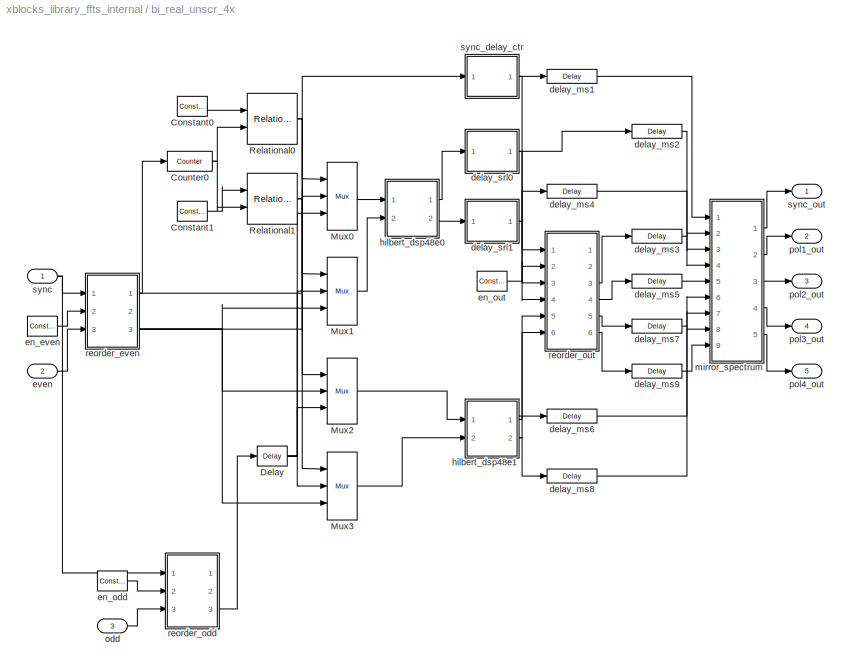
BLOCK [SubSystem] bi_real_unscr_4x
  FunctionWithSeparateData = off
  MaskCallbackString = |||||||
  MaskDescription = FFT internal block.\n\n(xBlock version)
  MaskEnableString = on,on,on,on,on,on,on,on
  MaskHideContents = off
  MaskIconFrame = on
  MaskIconOpaque = on
  MaskIconRotate = none
  MaskIconUnits = autoscale
  MaskInitialization = config.source = str2func('fft_bi_real_unscr_4x_init_xblock');\nconfig.toplevel = gcb;\nconfig.depend = get_dependlist('fft_bi_real_unscr_4x');\nset_param(gcb,'LinkStatus','inactive');\nxBlock( config, {config.toplevel,...\n    'FFTSize', FFTSize, ...\n    'n_bits', n_bits, ...\n    'add_latency', add_latency, ...\n    'conv_latency', conv_latency, ...\n    'bram_latency', bram_latency, ...\n    'b...<+99ch>
  MaskPortRotate = default
  MaskPromptString = Size of FFT (2^?):|Sample Bit Width|Add Latency|Convert Latency|BRAM Latency|Use BlockRAM for Map|Use BlockRAM for Delays|Use DSP48s for adders
  MaskStyleString = edit,edit,edit,edit,edit,checkbox,checkbox,checkbox
  MaskTabNameString = Basic,Basic,Latency,Latency,Latency,Implementation,Implementation,Implementation
  MaskToolTipString = on,on,on,on,on,on,on,on
  MaskTunableValueString = on,on,on,on,on,off,off,off
  MaskType = bi_real_unscr_4x
  MaskValueString = 8|18|1|1|2|off|off|on
  MaskVariables = FFTSize=@1;n_bits=@2;add_latency=@3;conv_latency=@4;bram_latency=@5;bram_map=&6;bram_delays=&7;dsp48_adders=&8;
  MaskVisibilityString = on,on,on,on,on,on,on,on
  MinAlgLoopOccurrences = off
  Opaque = off
  Ports = [3, 5]
  PropExecContextOutsideSubsystem = off
  RTWSystemCode = Auto
  RequestExecContextInheritance = off
  SID = 19
  UserData = DataTag1
  UserDataPersistent = on
BLOCK [Reference] bi_real_unscr_4x/Constant0  REF=xbsIndex_r4/Constant
  Ports = [0, 1]
  SID = 5088
  SourceBlock = xbsIndex_r4/Constant
  SourceType = Xilinx Constant Block Block
  arith_type = Unsigned
  bin_pt = 0
  block_type = constant
  block_version = 11.4
  carry = CIN
  const = 128
  dbl_ovrd = off
  dsp48_infoedit = The use of this block for DSP48 instructions is deprecated.  Please use the Opmode block.
  equ = P=C
  explicit_period = on
  has_advanced_control = 0
  inp1 = P
  inp2 = PCIN>>17
  n_bits = 8
  opr = +
  opselect = C
  period = 1
  sg_icon_stat = 30,20,0,1,white,blue,0,1270bb14,right,
  sg_mask_display = fprintf('','COMMENT: begin icon graphics');\npatch([0 1 1 0 ],[0 0 1 1 ],[0.77 0.82 0.91]);\npatch([0.3 0.2 0.366667 0.2 0.3 0.466667 0.5 0.533333 0.733333 0.6 0.466667 0.366667 0.533333 0.366667 0.466667 0.6 0.733333 0.533333 0.5 0.466667 0.3 ],[0.1 0.25 0.5 0.75 0.9 0.9 0.85 0.9 0.9 0.7 0.9 0.75 0.5 0.25 0.1 0.3 0.1 0.1 0.15 0.1 0.1 ],[0.98 0.96 0.92]);\nplot([0 1 1 0 0 ],[0 0 1 1 0 ]);\nfprintf...<+162ch>
  sggui_pos = -1,-1,-1,-1
BLOCK [Reference] bi_real_unscr_4x/Constant1  REF=xbsIndex_r4/Constant
  Ports = [0, 1]
  SID = 5090
  SourceBlock = xbsIndex_r4/Constant
  SourceType = Xilinx Constant Block Block
  arith_type = Unsigned
  bin_pt = 0
  block_type = constant
  block_version = 11.4
  carry = CIN
  const = 0
  dbl_ovrd = off
  dsp48_infoedit = The use of this block for DSP48 instructions is deprecated.  Please use the Opmode block.
  equ = P=C
  explicit_period = on
  has_advanced_control = 0
  inp1 = P
  inp2 = PCIN>>17
  n_bits = 8
  opr = +
  opselect = C
  period = 1
  sg_icon_stat = 30,20,0,1,white,blue,0,bf4ddd8b,right,
  sg_mask_display = fprintf('','COMMENT: begin icon graphics');\npatch([0 1 1 0 ],[0 0 1 1 ],[0.77 0.82 0.91]);\npatch([0.3 0.2 0.366667 0.2 0.3 0.466667 0.5 0.533333 0.733333 0.6 0.466667 0.366667 0.533333 0.366667 0.466667 0.6 0.733333 0.533333 0.5 0.466667 0.3 ],[0.1 0.25 0.5 0.75 0.9 0.9 0.85 0.9 0.9 0.7 0.9 0.75 0.5 0.25 0.1 0.3 0.1 0.1 0.15 0.1 0.1 ],[0.98 0.96 0.92]);\nplot([0 1 1 0 0 ],[0 0 1 1 0 ]);\nfprintf...<+160ch>  <repeated x4 — deduplicated; at blocks: Constant1, en_even, en_odd, en_out>
  sggui_pos = -1,-1,-1,-1
BLOCK [Reference] bi_real_unscr_4x/Counter0  REF=xbsIndex_r4/Counter
  Ports = [1, 1]
  SID = 5087
  SourceBlock = xbsIndex_r4/Counter
  SourceType = Xilinx Counter Block
  arith_type = Unsigned
  bin_pt = 0
  block_type = counter
  block_version = 11.4
  cnt_by_val = 1
  cnt_to = Inf
  cnt_type = Free Running
  dbl_ovrd = off
  en = off
  explicit_period = on
  has_advanced_control = 0
  implementation = Fabric
  infoedit = Hardware notes: Free running counters are the least expensive in hardware.  A count limited counter is implemented by combining a counter with a comparator.
  load_pin = off
  n_bits = 8
  operation = Up
  period = 1
  rst = on
  sg_icon_stat = 45,20,1,1,white,blue,0,c59595e6,right,
  sg_mask_display = fprintf('','COMMENT: begin icon graphics');\npatch([0 1 1 0 ],[0 0 1 1 ],[0.77 0.82 0.91]);\npatch([0.377778 0.311111 0.422222 0.311111 0.377778 0.488889 0.511111 0.533333 0.666667 0.577778 0.488889 0.422222 0.533333 0.422222 0.488889 0.577778 0.666667 0.533333 0.511111 0.488889 0.377778 ],[0.1 0.25 0.5 0.75 0.9 0.9 0.85 0.9 0.9 0.7 0.9 0.75 0.5 0.25 0.1 0.3 0.1 0.1 0.15 0.1 0.1 ],[0.98 0.96 0.92]...<+252ch>
  sggui_pos = -1,-1,-1,-1
  start_count = 0
  use_behavioral_HDL = off
  xl_area = [0,0,0,0,0,0,0]
  xl_use_area = off
BLOCK [Reference] bi_real_unscr_4x/Delay  REF=xbsIndex_r4/Delay
  Ports = [1, 1]
  SID = 5092
  SourceBlock = xbsIndex_r4/Delay
  SourceType = Xilinx Delay Block
  block_type = delay
  block_version = 11.4
  dbl_ovrd = off
  en = off
  has_advanced_control = 0
  infoedit = Hardware notes: A delay line is a chain, each link of which is an SRL16 followed by a flip-flop.
  latency = 1
  reg_retiming = off
  sg_icon_stat = 30,20,1,1,white,blue,0,07b98262,right,
  sg_mask_display = fprintf('','COMMENT: begin icon graphics');\npatch([0 1 1 0 ],[0 0 1 1 ],[0.77 0.82 0.91]);\npatch([0.3 0.2 0.366667 0.2 0.3 0.466667 0.5 0.533333 0.733333 0.6 0.466667 0.366667 0.533333 0.366667 0.466667 0.6 0.733333 0.533333 0.5 0.466667 0.3 ],[0.1 0.25 0.5 0.75 0.9 0.9 0.85 0.9 0.9 0.7 0.9 0.75 0.5 0.25 0.1 0.3 0.1 0.1 0.15 0.1 0.1 ],[0.98 0.96 0.92]);\nplot([0 1 1 0 0 ],[0 0 1 1 0 ]);\nfprintf...<+163ch>
  sggui_pos = -1,-1,-1,-1
  xl_area = [0,0,0,0,0,0,0]
  xl_use_area = off
BLOCK [Reference] bi_real_unscr_4x/Mux0  REF=xbsIndex_r4/Mux
  Ports = [3, 1]
  SID = 5093
  SourceBlock = xbsIndex_r4/Mux
  SourceType = Xilinx Bus Multiplexer Block
  arith_type = Unsigned
  bin_pt = 14
  block_type = mux
  block_version = 11.4
  dbl_ovrd = off
  en = off
  has_advanced_control = 0
  inputs = 2
  latency = 1
  n_bits = 16
  overflow = Wrap
  precision = Full
  quantization = Truncate
  sg_icon_stat = 30,68,3,1,white,blue,3,a150fb03,right,
  sg_mask_display = fprintf('','COMMENT: begin icon graphics');\npatch([0 1 1 0 ],[0 0.142857 0.857143 1 ],[0.77 0.82 0.91]);\npatch([0.233333 0.0666667 0.3 0.0666667 0.233333 0.5 0.566667 0.633333 0.9 0.666667 0.466667 0.3 0.5 0.3 0.466667 0.666667 0.9 0.633333 0.566667 0.5 0.233333 ],[0.323529 0.397059 0.5 0.602941 0.676471 0.676471 0.647059 0.676471 0.676471 0.573529 0.661765 0.588235 0.5 0.411765 0.338235 0.42647...<+428ch>  <repeated x3 — deduplicated; at blocks: Mux0, Mux1, Mux3>
  sggui_pos = -1,-1,-1,-1
  xl_area = [0,0,0,0,0,0,0]
  xl_use_area = off
BLOCK [Reference] bi_real_unscr_4x/Mux1  REF=xbsIndex_r4/Mux
  Ports = [3, 1]
  SID = 5094
  SourceBlock = xbsIndex_r4/Mux
  SourceType = Xilinx Bus Multiplexer Block
  arith_type = Unsigned
  bin_pt = 14
  block_type = mux
  block_version = 11.4
  dbl_ovrd = off
  en = off
  has_advanced_control = 0
  inputs = 2
  latency = 1
  n_bits = 16
  overflow = Wrap
  precision = Full
  quantization = Truncate
  sg_icon_stat = 30,68,3,1,white,blue,3,a150fb03,right,
  sggui_pos = -1,-1,-1,-1
  xl_area = [0,0,0,0,0,0,0]
  xl_use_area = off
BLOCK [Reference] bi_real_unscr_4x/Mux2  REF=xbsIndex_r4/Mux
  Ports = [3, 1]
  SID = 5095
  SourceBlock = xbsIndex_r4/Mux
  SourceType = Xilinx Bus Multiplexer Block
  arith_type = Unsigned
  bin_pt = 14
  block_type = mux
  block_version = 11.4
  dbl_ovrd = off
  en = off
  has_advanced_control = 0
  inputs = 2
  latency = 1
  n_bits = 16
  overflow = Wrap
  precision = Full
  quantization = Truncate
  sg_icon_stat = 30,66,3,1,white,blue,3,a150fb03,right,
  sg_mask_display = fprintf('','COMMENT: begin icon graphics');\npatch([0 1 1 0 ],[0 0.142857 0.857143 1 ],[0.77 0.82 0.91]);\npatch([0.233333 0.0666667 0.3 0.0666667 0.233333 0.5 0.566667 0.633333 0.9 0.666667 0.466667 0.3 0.5 0.3 0.466667 0.666667 0.9 0.633333 0.566667 0.5 0.233333 ],[0.318182 0.393939 0.5 0.606061 0.681818 0.681818 0.651515 0.681818 0.681818 0.575758 0.666667 0.590909 0.5 0.409091 0.333333 0.42424...<+428ch>
  sggui_pos = -1,-1,-1,-1
  xl_area = [0,0,0,0,0,0,0]
  xl_use_area = off
BLOCK [Reference] bi_real_unscr_4x/Mux3  REF=xbsIndex_r4/Mux
  Ports = [3, 1]
  SID = 5096
  SourceBlock = xbsIndex_r4/Mux
  SourceType = Xilinx Bus Multiplexer Block
  arith_type = Unsigned
  bin_pt = 14
  block_type = mux
  block_version = 11.4
  dbl_ovrd = off
  en = off
  has_advanced_control = 0
  inputs = 2
  latency = 1
  n_bits = 16
  overflow = Wrap
  precision = Full
  quantization = Truncate
  sg_icon_stat = 30,68,3,1,white,blue,3,a150fb03,right,
  sggui_pos = -1,-1,-1,-1
  xl_area = [0,0,0,0,0,0,0]
  xl_use_area = off
BLOCK [Reference] bi_real_unscr_4x/Relational0  REF=xbsIndex_r4/Relational
  Ports = [2, 1]
  SID = 5089
  SourceBlock = xbsIndex_r4/Relational
  SourceType = Xilinx Arithmetic Relational Operator Block
  block_type = relational
  block_version = 11.4
  dbl_ovrd = off
  en = off
  has_advanced_control = 0
  latency = 0
  mode = a=b
  sg_icon_stat = 50,51,2,1,white,blue,0,2dfefa50,right,
  sg_mask_display = fprintf('','COMMENT: begin icon graphics');\npatch([0 1 1 0 ],[0 0 1 1 ],[0.77 0.82 0.91]);\npatch([0.22 0.06 0.3 0.06 0.22 0.48 0.56 0.64 0.92 0.7 0.48 0.32 0.56 0.32 0.48 0.7 0.92 0.64 0.56 0.48 0.22 ],[0.117647 0.27451 0.509804 0.745098 0.901961 0.901961 0.823529 0.901961 0.901961 0.686275 0.901961 0.745098 0.509804 0.27451 0.117647 0.333333 0.117647 0.117647 0.196078 0.117647 0.117647 ],[0.98 ...<+331ch>
  sggui_pos = -1,-1,-1,-1
  xl_area = [0,0,0,0,0,0,0]
  xl_use_area = off
BLOCK [Reference] bi_real_unscr_4x/Relational1  REF=xbsIndex_r4/Relational
  Ports = [2, 1]
  SID = 5091
  SourceBlock = xbsIndex_r4/Relational
  SourceType = Xilinx Arithmetic Relational Operator Block
  block_type = relational
  block_version = 11.4
  dbl_ovrd = off
  en = off
  has_advanced_control = 0
  latency = 0
  mode = a=b
  sg_icon_stat = 50,51,2,1,white,blue,0,2dfefa50,right,
  sg_mask_display = fprintf('','COMMENT: begin icon graphics');\npatch([0 1 1 0 ],[0 0 1 1 ],[0.77 0.82 0.91]);\npatch([0.22 0.06 0.3 0.06 0.22 0.48 0.56 0.64 0.92 0.7 0.48 0.32 0.56 0.32 0.48 0.7 0.92 0.64 0.56 0.48 0.22 ],[0.117647 0.27451 0.509804 0.745098 0.901961 0.901961 0.823529 0.901961 0.901961 0.686275 0.901961 0.745098 0.509804 0.27451 0.117647 0.333333 0.117647 0.117647 0.196078 0.117647 0.117647 ],[0.98 ...<+331ch>
  sggui_pos = -1,-1,-1,-1
  xl_area = [0,0,0,0,0,0,0]
  xl_use_area = off
BLOCK [Reference] bi_real_unscr_4x/delay_ms1  REF=xbsIndex_r4/Delay
  Ports = [1, 1]
  SID = 5390
  SourceBlock = xbsIndex_r4/Delay
  SourceType = Xilinx Delay Block
  block_type = delay
  block_version = 11.4
  dbl_ovrd = off
  en = off
  has_advanced_control = 0
  infoedit = Hardware notes: A delay line is a chain, each link of which is an SRL16 followed by a flip-flop.
  latency = 1
  reg_retiming = off
  sg_icon_stat = 50,14,1,1,white,blue,0,07b98262,right,
  sg_mask_display = fprintf('','COMMENT: begin icon graphics');\npatch([0 1 1 0 ],[0 0 1 1 ],[0.77 0.82 0.91]);\npatch([0.42 0.38 0.44 0.38 0.42 0.5 0.52 0.54 0.62 0.56 0.5 0.46 0.52 0.46 0.5 0.56 0.62 0.54 0.52 0.5 0.42 ],[0.142857 0.285714 0.5 0.714286 0.857143 0.857143 0.785714 0.857143 0.857143 0.642857 0.857143 0.714286 0.5 0.285714 0.142857 0.357143 0.142857 0.142857 0.214286 0.142857 0.142857 ],[0.98 0.96 0.92...<+209ch>  <repeated x9 — deduplicated; at blocks: delay_ms1, delay_ms2, delay_ms3, delay_ms4, delay_ms5, delay_ms6, delay_ms7, delay_ms8, delay_ms9>
  sggui_pos = -1,-1,-1,-1
  xl_area = [0,0,0,0,0,0,0]
  xl_use_area = off
BLOCK [Reference] bi_real_unscr_4x/delay_ms2  REF=xbsIndex_r4/Delay
  Ports = [1, 1]
  SID = 5391
  SourceBlock = xbsIndex_r4/Delay
  SourceType = Xilinx Delay Block
  block_type = delay
  block_version = 11.4
  dbl_ovrd = off
  en = off
  has_advanced_control = 0
  infoedit = Hardware notes: A delay line is a chain, each link of which is an SRL16 followed by a flip-flop.
  latency = 1
  reg_retiming = off
  sg_icon_stat = 50,14,1,1,white,blue,0,07b98262,right,
  sggui_pos = -1,-1,-1,-1
  xl_area = [0,0,0,0,0,0,0]
  xl_use_area = off
BLOCK [Reference] bi_real_unscr_4x/delay_ms3  REF=xbsIndex_r4/Delay
  Ports = [1, 1]
  SID = 5392
  SourceBlock = xbsIndex_r4/Delay
  SourceType = Xilinx Delay Block
  block_type = delay
  block_version = 11.4
  dbl_ovrd = off
  en = off
  has_advanced_control = 0
  infoedit = Hardware notes: A delay line is a chain, each link of which is an SRL16 followed by a flip-flop.
  latency = 1
  reg_retiming = off
  sg_icon_stat = 50,14,1,1,white,blue,0,07b98262,right,
  sggui_pos = -1,-1,-1,-1
  xl_area = [0,0,0,0,0,0,0]
  xl_use_area = off
BLOCK [Reference] bi_real_unscr_4x/delay_ms4  REF=xbsIndex_r4/Delay
  Ports = [1, 1]
  SID = 5393
  SourceBlock = xbsIndex_r4/Delay
  SourceType = Xilinx Delay Block
  block_type = delay
  block_version = 11.4
  dbl_ovrd = off
  en = off
  has_advanced_control = 0
  infoedit = Hardware notes: A delay line is a chain, each link of which is an SRL16 followed by a flip-flop.
  latency = 1
  reg_retiming = off
  sg_icon_stat = 50,14,1,1,white,blue,0,07b98262,right,
  sggui_pos = -1,-1,-1,-1
  xl_area = [0,0,0,0,0,0,0]
  xl_use_area = off
BLOCK [Reference] bi_real_unscr_4x/delay_ms5  REF=xbsIndex_r4/Delay
  Ports = [1, 1]
  SID = 5394
  SourceBlock = xbsIndex_r4/Delay
  SourceType = Xilinx Delay Block
  block_type = delay
  block_version = 11.4
  dbl_ovrd = off
  en = off
  has_advanced_control = 0
  infoedit = Hardware notes: A delay line is a chain, each link of which is an SRL16 followed by a flip-flop.
  latency = 1
  reg_retiming = off
  sg_icon_stat = 50,14,1,1,white,blue,0,07b98262,right,
  sggui_pos = -1,-1,-1,-1
  xl_area = [0,0,0,0,0,0,0]
  xl_use_area = off
BLOCK [Reference] bi_real_unscr_4x/delay_ms6  REF=xbsIndex_r4/Delay
  Ports = [1, 1]
  SID = 5395
  SourceBlock = xbsIndex_r4/Delay
  SourceType = Xilinx Delay Block
  block_type = delay
  block_version = 11.4
  dbl_ovrd = off
  en = off
  has_advanced_control = 0
  infoedit = Hardware notes: A delay line is a chain, each link of which is an SRL16 followed by a flip-flop.
  latency = 1
  reg_retiming = off
  sg_icon_stat = 50,14,1,1,white,blue,0,07b98262,right,
  sggui_pos = -1,-1,-1,-1
  xl_area = [0,0,0,0,0,0,0]
  xl_use_area = off
BLOCK [Reference] bi_real_unscr_4x/delay_ms7  REF=xbsIndex_r4/Delay
  Ports = [1, 1]
  SID = 5396
  SourceBlock = xbsIndex_r4/Delay
  SourceType = Xilinx Delay Block
  block_type = delay
  block_version = 11.4
  dbl_ovrd = off
  en = off
  has_advanced_control = 0
  infoedit = Hardware notes: A delay line is a chain, each link of which is an SRL16 followed by a flip-flop.
  latency = 1
  reg_retiming = off
  sg_icon_stat = 50,14,1,1,white,blue,0,07b98262,right,
  sggui_pos = -1,-1,-1,-1
  xl_area = [0,0,0,0,0,0,0]
  xl_use_area = off
BLOCK [Reference] bi_real_unscr_4x/delay_ms8  REF=xbsIndex_r4/Delay
  Ports = [1, 1]
  SID = 5397
  SourceBlock = xbsIndex_r4/Delay
  SourceType = Xilinx Delay Block
  block_type = delay
  block_version = 11.4
  dbl_ovrd = off
  en = off
  has_advanced_control = 0
  infoedit = Hardware notes: A delay line is a chain, each link of which is an SRL16 followed by a flip-flop.
  latency = 1
  reg_retiming = off
  sg_icon_stat = 50,14,1,1,white,blue,0,07b98262,right,
  sggui_pos = -1,-1,-1,-1
  xl_area = [0,0,0,0,0,0,0]
  xl_use_area = off
BLOCK [Reference] bi_real_unscr_4x/delay_ms9  REF=xbsIndex_r4/Delay
  Ports = [1, 1]
  SID = 5398
  SourceBlock = xbsIndex_r4/Delay
  SourceType = Xilinx Delay Block
  block_type = delay
  block_version = 11.4
  dbl_ovrd = off
  en = off
  has_advanced_control = 0
  infoedit = Hardware notes: A delay line is a chain, each link of which is an SRL16 followed by a flip-flop.
  latency = 1
  reg_retiming = off
  sg_icon_stat = 50,14,1,1,white,blue,0,07b98262,right,
  sggui_pos = -1,-1,-1,-1
  xl_area = [0,0,0,0,0,0,0]
  xl_use_area = off
BLOCK [SubSystem] bi_real_unscr_4x/delay_srl0
  FunctionWithSeparateData = off
  MaskHideContents = off
  MinAlgLoopOccurrences = off
  Opaque = off
  Ports = [1, 1]
  PropExecContextOutsideSubsystem = off
  RTWSystemCode = Auto
  RequestExecContextInheritance = off
  SID = 5329
BLOCK [Reference] bi_real_unscr_4x/delay_srl0/delay_ff  REF=xbsIndex_r4/Delay
  Ports = [1, 1]
  SID = 5332
  SourceBlock = xbsIndex_r4/Delay
  SourceType = Xilinx Delay Block
  block_type = delay
  block_version = 11.4
  dbl_ovrd = off
  en = off
  has_advanced_control = 0
  infoedit = Hardware notes: A delay line is a chain, each link of which is an SRL16 followed by a flip-flop.
  latency = 1
  reg_retiming = off
  sg_icon_stat = 60,56,1,1,white,blue,0,07b98262,right,
  sggui_pos = -1,-1,-1,-1
  xl_area = [0,0,0,0,0,0,0]
  xl_use_area = off
BLOCK [Reference] bi_real_unscr_4x/delay_srl0/delay_srl  REF=xbsIndex_r4/Delay
  Ports = [1, 1]
  SID = 5333
  SourceBlock = xbsIndex_r4/Delay
  SourceType = Xilinx Delay Block
  block_type = delay
  block_version = 11.4
  dbl_ovrd = off
  en = off
  has_advanced_control = 0
  infoedit = Hardware notes: A delay line is a chain, each link of which is an SRL16 followed by a flip-flop.
  latency = 127
  reg_retiming = off
  sg_icon_stat = 60,56,1,1,white,blue,0,4723cb12,right,
  sg_mask_display = fprintf('','COMMENT: begin icon graphics');\npatch([0 1 1 0 ],[0 0 1 1 ],[0.77 0.82 0.91]);\npatch([0.25 0.1 0.316667 0.1 0.25 0.5 0.566667 0.633333 0.9 0.683333 0.483333 0.333333 0.533333 0.333333 0.483333 0.683333 0.9 0.633333 0.566667 0.5 0.25 ],[0.107143 0.267857 0.5 0.732143 0.892857 0.892857 0.821429 0.892857 0.892857 0.660714 0.875 0.714286 0.5 0.285714 0.125 0.339286 0.107143 0.107143 0.17...<+251ch>
  sggui_pos = -1,-1,-1,-1
  xl_area = [0,0,0,0,0,0,0]
  xl_use_area = off
BLOCK [Inport] bi_real_unscr_4x/delay_srl0/in
  IconDisplay = Port number
  SID = 5330
BLOCK [Outport] bi_real_unscr_4x/delay_srl0/out
  IconDisplay = Port number
  SID = 5331
BLOCK [SubSystem] bi_real_unscr_4x/delay_srl1
  FunctionWithSeparateData = off
  MaskHideContents = off
  MinAlgLoopOccurrences = off
  Opaque = off
  Ports = [1, 1]
  PropExecContextOutsideSubsystem = off
  RTWSystemCode = Auto
  RequestExecContextInheritance = off
  SID = 5334
BLOCK [Reference] bi_real_unscr_4x/delay_srl1/delay_ff  REF=xbsIndex_r4/Delay
  Ports = [1, 1]
  SID = 5337
  SourceBlock = xbsIndex_r4/Delay
  SourceType = Xilinx Delay Block
  block_type = delay
  block_version = 11.4
  dbl_ovrd = off
  en = off
  has_advanced_control = 0
  infoedit = Hardware notes: A delay line is a chain, each link of which is an SRL16 followed by a flip-flop.
  latency = 1
  reg_retiming = off
  sg_icon_stat = 60,56,1,1,white,blue,0,07b98262,right,
  sggui_pos = -1,-1,-1,-1
  xl_area = [0,0,0,0,0,0,0]
  xl_use_area = off
BLOCK [Reference] bi_real_unscr_4x/delay_srl1/delay_srl  REF=xbsIndex_r4/Delay
  Ports = [1, 1]
  SID = 5338
  SourceBlock = xbsIndex_r4/Delay
  SourceType = Xilinx Delay Block
  block_type = delay
  block_version = 11.4
  dbl_ovrd = off
  en = off
  has_advanced_control = 0
  infoedit = Hardware notes: A delay line is a chain, each link of which is an SRL16 followed by a flip-flop.
  latency = 127
  reg_retiming = off
  sg_icon_stat = 60,56,1,1,white,blue,0,4723cb12,right,
  sg_mask_display = fprintf('','COMMENT: begin icon graphics');\npatch([0 1 1 0 ],[0 0 1 1 ],[0.77 0.82 0.91]);\npatch([0.25 0.1 0.316667 0.1 0.25 0.5 0.566667 0.633333 0.9 0.683333 0.483333 0.333333 0.533333 0.333333 0.483333 0.683333 0.9 0.633333 0.566667 0.5 0.25 ],[0.107143 0.267857 0.5 0.732143 0.892857 0.892857 0.821429 0.892857 0.892857 0.660714 0.875 0.714286 0.5 0.285714 0.125 0.339286 0.107143 0.107143 0.17...<+251ch>
  sggui_pos = -1,-1,-1,-1
  xl_area = [0,0,0,0,0,0,0]
  xl_use_area = off
BLOCK [Inport] bi_real_unscr_4x/delay_srl1/in
  IconDisplay = Port number
  SID = 5335
BLOCK [Outport] bi_real_unscr_4x/delay_srl1/out
  IconDisplay = Port number
  SID = 5336
BLOCK [Reference] bi_real_unscr_4x/en_even  REF=xbsIndex_r4/Constant
  Ports = [0, 1]
  SID = 5009
  SourceBlock = xbsIndex_r4/Constant
  SourceType = Xilinx Constant Block Block
  arith_type = Boolean
  bin_pt = 0
  block_type = constant
  block_version = 11.4
  carry = CIN
  const = 1
  dbl_ovrd = off
  dsp48_infoedit = The use of this block for DSP48 instructions is deprecated.  Please use the Opmode block.
  equ = P=C
  explicit_period = on
  has_advanced_control = 0
  inp1 = P
  inp2 = PCIN>>17
  n_bits = 1
  opr = +
  opselect = C
  period = 1
  sg_icon_stat = 30,20,0,1,white,blue,0,1c72b5be,right,
  sggui_pos = -1,-1,-1,-1
BLOCK [Reference] bi_real_unscr_4x/en_odd  REF=xbsIndex_r4/Constant
  Ports = [0, 1]
  SID = 5048
  SourceBlock = xbsIndex_r4/Constant
  SourceType = Xilinx Constant Block Block
  arith_type = Boolean
  bin_pt = 0
  block_type = constant
  block_version = 11.4
  carry = CIN
  const = 1
  dbl_ovrd = off
  dsp48_infoedit = The use of this block for DSP48 instructions is deprecated.  Please use the Opmode block.
  equ = P=C
  explicit_period = on
  has_advanced_control = 0
  inp1 = P
  inp2 = PCIN>>17
  n_bits = 1
  opr = +
  opselect = C
  period = 1
  sg_icon_stat = 30,20,0,1,white,blue,0,1c72b5be,right,
  sggui_pos = -1,-1,-1,-1
BLOCK [Reference] bi_real_unscr_4x/en_out  REF=xbsIndex_r4/Constant
  Ports = [0, 1]
  SID = 5389
  SourceBlock = xbsIndex_r4/Constant
  SourceType = Xilinx Constant Block Block
  arith_type = Boolean
  bin_pt = 0
  block_type = constant
  block_version = 11.4
  carry = CIN
  const = 1
  dbl_ovrd = off
  dsp48_infoedit = The use of this block for DSP48 instructions is deprecated.  Please use the Opmode block.
  equ = P=C
  explicit_period = on
  has_advanced_control = 0
  inp1 = P
  inp2 = PCIN>>17
  n_bits = 1
  opr = +
  opselect = C
  period = 1
  sg_icon_stat = 30,20,0,1,white,blue,0,1c72b5be,right,
  sggui_pos = -1,-1,-1,-1
BLOCK [Inport] bi_real_unscr_4x/even
  IconDisplay = Port number
  Port = 2
  SID = 20
BLOCK [SubSystem] bi_real_unscr_4x/hilbert_dsp48e0
  FunctionWithSeparateData = off
  MaskHideContents = off
  MinAlgLoopOccurrences = off
  Opaque = off
  Ports = [2, 2]
  PropExecContextOutsideSubsystem = off
  RTWSystemCode = Auto
  RequestExecContextInheritance = off
  SID = 5111
BLOCK [Reference] bi_real_unscr_4x/hilbert_dsp48e0/Convert0  REF=xbsIndex_r4/Convert
  Ports = [1, 1]
  SID = 5116
  SourceBlock = xbsIndex_r4/Convert
  SourceType = Xilinx Type Converter Block
  arith_type = Signed  (2's comp)
  bin_pt = 17
  block_type = convert
  block_version = 11.4
  dbl_ovrd = off
  has_advanced_control = 0
  infoedit = Hardware notes: rounding and saturating require hardware resources; truncating and wrapping do not.
  latency = 1
  n_bits = 18
  overflow = Wrap
  pipeline = on
  quantization = Round  (unbiased: Even Values)
  sg_icon_stat = 45,32,1,1,white,blue,0,d6ffdbcd,right,
  sggui_pos = -1,-1,-1,-1
  xl_area = [0,0,0,0,0,0,0]
  xl_use_area = off
BLOCK [Reference] bi_real_unscr_4x/hilbert_dsp48e0/Convert1  REF=xbsIndex_r4/Convert
  Ports = [1, 1]
  SID = 5117
  SourceBlock = xbsIndex_r4/Convert
  SourceType = Xilinx Type Converter Block
  arith_type = Signed  (2's comp)
  bin_pt = 17
  block_type = convert
  block_version = 11.4
  dbl_ovrd = off
  has_advanced_control = 0
  infoedit = Hardware notes: rounding and saturating require hardware resources; truncating and wrapping do not.
  latency = 1
  n_bits = 18
  overflow = Wrap
  pipeline = on
  quantization = Round  (unbiased: Even Values)
  sg_icon_stat = 45,32,1,1,white,blue,0,d6ffdbcd,right,
  sggui_pos = -1,-1,-1,-1
  xl_area = [0,0,0,0,0,0,0]
  xl_use_area = off
BLOCK [Reference] bi_real_unscr_4x/hilbert_dsp48e0/Convert2  REF=xbsIndex_r4/Convert
  Ports = [1, 1]
  SID = 5118
  SourceBlock = xbsIndex_r4/Convert
  SourceType = Xilinx Type Converter Block
  arith_type = Signed  (2's comp)
  bin_pt = 17
  block_type = convert
  block_version = 11.4
  dbl_ovrd = off
  has_advanced_control = 0
  infoedit = Hardware notes: rounding and saturating require hardware resources; truncating and wrapping do not.
  latency = 1
  n_bits = 18
  overflow = Wrap
  pipeline = on
  quantization = Round  (unbiased: Even Values)
  sg_icon_stat = 45,32,1,1,white,blue,0,d6ffdbcd,right,
  sggui_pos = -1,-1,-1,-1
  xl_area = [0,0,0,0,0,0,0]
  xl_use_area = off
BLOCK [Reference] bi_real_unscr_4x/hilbert_dsp48e0/Convert3  REF=xbsIndex_r4/Convert
  Ports = [1, 1]
  SID = 5119
  SourceBlock = xbsIndex_r4/Convert
  SourceType = Xilinx Type Converter Block
  arith_type = Signed  (2's comp)
  bin_pt = 17
  block_type = convert
  block_version = 11.4
  dbl_ovrd = off
  has_advanced_control = 0
  infoedit = Hardware notes: rounding and saturating require hardware resources; truncating and wrapping do not.
  latency = 1
  n_bits = 18
  overflow = Wrap
  pipeline = on
  quantization = Round  (unbiased: Even Values)
  sg_icon_stat = 45,32,1,1,white,blue,0,d6ffdbcd,right,
  sggui_pos = -1,-1,-1,-1
  xl_area = [0,0,0,0,0,0,0]
  xl_use_area = off
BLOCK [Reference] bi_real_unscr_4x/hilbert_dsp48e0/Scale0  REF=xbsIndex_r4/Scale
  Ports = [1, 1]
  SID = 5120
  SourceBlock = xbsIndex_r4/Scale
  SourceType = Xilinx Input Scaler Block
  block_type = scale
  block_version = 11.4
  dbl_ovrd = off
  has_advanced_control = 0
  infoedit = Scales input by a power of two by adjusting the binary point position.<br><br>Hardware notes: In hardware this block costs nothing.
  scale_factor = -1
  sg_icon_stat = 50,56,1,1,white,blue,0,315b7d78,right,
  sg_mask_display = fprintf('','COMMENT: begin icon graphics');\npatch([0 1 1 0 ],[0 0 1 1 ],[0.77 0.82 0.91]);\npatch([0.22 0.06 0.3 0.06 0.22 0.48 0.56 0.64 0.92 0.7 0.48 0.32 0.56 0.32 0.48 0.7 0.92 0.64 0.56 0.48 0.22 ],[0.142857 0.285714 0.5 0.714286 0.857143 0.857143 0.785714 0.857143 0.857143 0.660714 0.857143 0.714286 0.5 0.285714 0.142857 0.339286 0.142857 0.142857 0.214286 0.142857 0.142857 ],[0.98 0.96 0.9...<+216ch>  <repeated x8 — deduplicated; at blocks: Scale0, Scale1, Scale2, Scale3>
  sggui_pos = -1,-1,-1,-1
BLOCK [Reference] bi_real_unscr_4x/hilbert_dsp48e0/Scale1  REF=xbsIndex_r4/Scale
  Ports = [1, 1]
  SID = 5121
  SourceBlock = xbsIndex_r4/Scale
  SourceType = Xilinx Input Scaler Block
  block_type = scale
  block_version = 11.4
  dbl_ovrd = off
  has_advanced_control = 0
  infoedit = Scales input by a power of two by adjusting the binary point position.<br><br>Hardware notes: In hardware this block costs nothing.
  scale_factor = -1
  sg_icon_stat = 50,56,1,1,white,blue,0,315b7d78,right,
  sggui_pos = -1,-1,-1,-1
BLOCK [Reference] bi_real_unscr_4x/hilbert_dsp48e0/Scale2  REF=xbsIndex_r4/Scale
  Ports = [1, 1]
  SID = 5122
  SourceBlock = xbsIndex_r4/Scale
  SourceType = Xilinx Input Scaler Block
  block_type = scale
  block_version = 11.4
  dbl_ovrd = off
  has_advanced_control = 0
  infoedit = Scales input by a power of two by adjusting the binary point position.<br><br>Hardware notes: In hardware this block costs nothing.
  scale_factor = -1
  sg_icon_stat = 50,56,1,1,white,blue,0,315b7d78,right,
  sggui_pos = -1,-1,-1,-1
BLOCK [Reference] bi_real_unscr_4x/hilbert_dsp48e0/Scale3  REF=xbsIndex_r4/Scale
  Ports = [1, 1]
  SID = 5123
  SourceBlock = xbsIndex_r4/Scale
  SourceType = Xilinx Input Scaler Block
  block_type = scale
  block_version = 11.4
  dbl_ovrd = off
  has_advanced_control = 0
  infoedit = Scales input by a power of two by adjusting the binary point position.<br><br>Hardware notes: In hardware this block costs nothing.
  scale_factor = -1
  sg_icon_stat = 50,56,1,1,white,blue,0,315b7d78,right,
  sggui_pos = -1,-1,-1,-1
BLOCK [Inport] bi_real_unscr_4x/hilbert_dsp48e0/a
  IconDisplay = Port number
  SID = 5112
BLOCK [Inport] bi_real_unscr_4x/hilbert_dsp48e0/b
  IconDisplay = Port number
  Port = 2
  SID = 5113
BLOCK [SubSystem] bi_real_unscr_4x/hilbert_dsp48e0/c_to_ri0
  FunctionWithSeparateData = off
  MaskHideContents = off
  MinAlgLoopOccurrences = off
  Opaque = off
  Ports = [1, 2]
  PropExecContextOutsideSubsystem = off
  RTWSystemCode = Auto
  RequestExecContextInheritance = off
  SID = 5124
BLOCK [Inport] bi_real_unscr_4x/hilbert_dsp48e0/c_to_ri0/c
  IconDisplay = Port number
  SID = 5125
BLOCK [Reference] bi_real_unscr_4x/hilbert_dsp48e0/c_to_ri0/force_im  REF=xbsIndex_r4/Reinterpret
  Ports = [1, 1]
  SID = 5128
  SourceBlock = xbsIndex_r4/Reinterpret
  SourceType = Xilinx Type Reinterpreter Block
  arith_type = Signed  (2's comp)
  bin_pt = 17
  block_type = reinterpret
  block_version = 11.4
  force_arith_type = on
  force_bin_pt = on
  has_advanced_control = 0
  sg_icon_stat = 50,32,1,1,white,blue,0,6b04d0b0,right,
  sggui_pos = -1,-1,-1,-1
BLOCK [Reference] bi_real_unscr_4x/hilbert_dsp48e0/c_to_ri0/force_re  REF=xbsIndex_r4/Reinterpret
  Ports = [1, 1]
  SID = 5129
  SourceBlock = xbsIndex_r4/Reinterpret
  SourceType = Xilinx Type Reinterpreter Block
  arith_type = Signed  (2's comp)
  bin_pt = 17
  block_type = reinterpret
  block_version = 11.4
  force_arith_type = on
  force_bin_pt = on
  has_advanced_control = 0
  sg_icon_stat = 50,32,1,1,white,blue,0,6b04d0b0,right,
  sggui_pos = -1,-1,-1,-1
BLOCK [Outport] bi_real_unscr_4x/hilbert_dsp48e0/c_to_ri0/im
  IconDisplay = Port number
  Port = 2
  SID = 5127
BLOCK [Outport] bi_real_unscr_4x/hilbert_dsp48e0/c_to_ri0/re
  IconDisplay = Port number
  SID = 5126
BLOCK [Reference] bi_real_unscr_4x/hilbert_dsp48e0/c_to_ri0/slice_im  REF=xbsIndex_r4/Slice
  Ports = [1, 1]
  SID = 5130
  SourceBlock = xbsIndex_r4/Slice
  SourceType = Xilinx Bit Slice Extractor Block
  base0 = LSB of Input
  base1 = MSB of Input
  bit0 = 0
  bit1 = 0
  block_type = slice
  block_version = 11.4
  boolean_output = off
  dbl_ovrd = off
  has_advanced_control = 0
  mode = Lower Bit Location + Width
  nbits = 18
  sg_icon_stat = 60,32,1,1,white,blue,0,1fd851a7,right,
  sggui_pos = -1,-1,-1,-1
BLOCK [Reference] bi_real_unscr_4x/hilbert_dsp48e0/c_to_ri0/slice_re  REF=xbsIndex_r4/Slice
  Ports = [1, 1]
  SID = 5131
  SourceBlock = xbsIndex_r4/Slice
  SourceType = Xilinx Bit Slice Extractor Block
  base0 = LSB of Input
  base1 = MSB of Input
  bit0 = 0
  bit1 = 0
  block_type = slice
  block_version = 11.4
  boolean_output = off
  dbl_ovrd = off
  has_advanced_control = 0
  mode = Upper Bit Location + Width
  nbits = 18
  sg_icon_stat = 60,32,1,1,white,blue,0,1fd851a7,right,
  sggui_pos = -1,-1,-1,-1
BLOCK [SubSystem] bi_real_unscr_4x/hilbert_dsp48e0/c_to_ri1
  FunctionWithSeparateData = off
  MaskHideContents = off
  MinAlgLoopOccurrences = off
  Opaque = off
  Ports = [1, 2]
  PropExecContextOutsideSubsystem = off
  RTWSystemCode = Auto
  RequestExecContextInheritance = off
  SID = 5132
BLOCK [Inport] bi_real_unscr_4x/hilbert_dsp48e0/c_to_ri1/c
  IconDisplay = Port number
  SID = 5133
BLOCK [Reference] bi_real_unscr_4x/hilbert_dsp48e0/c_to_ri1/force_im  REF=xbsIndex_r4/Reinterpret
  Ports = [1, 1]
  SID = 5136
  SourceBlock = xbsIndex_r4/Reinterpret
  SourceType = Xilinx Type Reinterpreter Block
  arith_type = Signed  (2's comp)
  bin_pt = 17
  block_type = reinterpret
  block_version = 11.4
  force_arith_type = on
  force_bin_pt = on
  has_advanced_control = 0
  sg_icon_stat = 50,32,1,1,white,blue,0,6b04d0b0,right,
  sggui_pos = -1,-1,-1,-1
BLOCK [Reference] bi_real_unscr_4x/hilbert_dsp48e0/c_to_ri1/force_re  REF=xbsIndex_r4/Reinterpret
  Ports = [1, 1]
  SID = 5137
  SourceBlock = xbsIndex_r4/Reinterpret
  SourceType = Xilinx Type Reinterpreter Block
  arith_type = Signed  (2's comp)
  bin_pt = 17
  block_type = reinterpret
  block_version = 11.4
  force_arith_type = on
  force_bin_pt = on
  has_advanced_control = 0
  sg_icon_stat = 50,32,1,1,white,blue,0,6b04d0b0,right,
  sggui_pos = -1,-1,-1,-1
BLOCK [Outport] bi_real_unscr_4x/hilbert_dsp48e0/c_to_ri1/im
  IconDisplay = Port number
  Port = 2
  SID = 5135
BLOCK [Outport] bi_real_unscr_4x/hilbert_dsp48e0/c_to_ri1/re
  IconDisplay = Port number
  SID = 5134
BLOCK [Reference] bi_real_unscr_4x/hilbert_dsp48e0/c_to_ri1/slice_im  REF=xbsIndex_r4/Slice
  Ports = [1, 1]
  SID = 5138
  SourceBlock = xbsIndex_r4/Slice
  SourceType = Xilinx Bit Slice Extractor Block
  base0 = LSB of Input
  base1 = MSB of Input
  bit0 = 0
  bit1 = 0
  block_type = slice
  block_version = 11.4
  boolean_output = off
  dbl_ovrd = off
  has_advanced_control = 0
  mode = Lower Bit Location + Width
  nbits = 18
  sg_icon_stat = 60,32,1,1,white,blue,0,1fd851a7,right,
  sggui_pos = -1,-1,-1,-1
BLOCK [Reference] bi_real_unscr_4x/hilbert_dsp48e0/c_to_ri1/slice_re  REF=xbsIndex_r4/Slice
  Ports = [1, 1]
  SID = 5139
  SourceBlock = xbsIndex_r4/Slice
  SourceType = Xilinx Bit Slice Extractor Block
  base0 = LSB of Input
  base1 = MSB of Input
  bit0 = 0
  bit1 = 0
  block_type = slice
  block_version = 11.4
  boolean_output = off
  dbl_ovrd = off
  has_advanced_control = 0
  mode = Upper Bit Location + Width
  nbits = 18
  sg_icon_stat = 60,32,1,1,white,blue,0,1fd851a7,right,
  sggui_pos = -1,-1,-1,-1
BLOCK [SubSystem] bi_real_unscr_4x/hilbert_dsp48e0/cadd
  AttributesFormatString = 18_17 + 18_17 ==> 19_17\nMode=Addition\nLatency=2
  FunctionWithSeparateData = off
  MaskHideContents = off
  MinAlgLoopOccurrences = off
  Opaque = off
  Ports = [4, 2]
  PropExecContextOutsideSubsystem = off
  RTWSystemCode = Auto
  RequestExecContextInheritance = off
  SID = 5140
BLOCK [Reference] bi_real_unscr_4x/hilbert_dsp48e0/cadd/DSP48E  REF=xbsIndex_r4/DSP48E
  Ports = [7, 1]
  SID = 5147
  SourceBlock = xbsIndex_r4/DSP48E
  SourceType = Xilinx DSP48E Block
  addsub_mode = TWO24
  block_type = dsp48e
  block_version = 11.4
  en_a1 = off
  en_a2 = off
  en_all = off
  en_alumode = off
  en_b1 = off
  en_b2 = off
  en_c = off
  en_carry_in = off
  en_ctrl = off
  en_mult = off
  en_multcarryin = off
  en_p = off
  has_advanced_control = 0
  mask_from_creg = off
  pattern = '000000000000'
  pattern_from_creg = off
  pattern_mask = '3FFFFFFFFFFF'
  pipeline_a = 1
  pipeline_acout = 1
  pipeline_alumode = on
  pipeline_b = 1
  pipeline_bcout = 1
  pipeline_c = on
  pipeline_carryin = on
  pipeline_carryinsel = on
  pipeline_mult = on
  pipeline_opmode = on
  pipeline_p = on
  reset_preg = off
  rst_a = off
  rst_all = off
  rst_alumode = off
  rst_b = off
  rst_c = off
  rst_carry_in = off
  rst_ctrl = off
  rst_mult = off
  rst_p = off
  sel_rounding_mask = Select mask
  sg_icon_stat = 75,136,7,1,white,blue,0,51584ea8,right,
  sg_mask_display = fprintf('','COMMENT: begin icon graphics');\npatch([0 1 1 0 ],[0 0 1 1 ],[0.77 0.82 0.91]);\npatch([0.226667 0.0666667 0.306667 0.0666667 0.226667 0.493333 0.56 0.626667 0.906667 0.68 0.466667 0.306667 0.533333 0.306667 0.466667 0.68 0.906667 0.626667 0.56 0.493333 0.226667 ],[0.286765 0.375 0.507353 0.639706 0.727941 0.727941 0.691176 0.727941 0.727941 0.602941 0.720588 0.632353 0.507353 0.382353...<+614ch>  <repeated x6 — deduplicated; at blocks: DSP48E>
  sggui_pos = -1,-1,-1,-1
  use_a = Direct from A Port
  use_acout = off
  use_b = Direct from B Port
  use_bcout = off
  use_carrycascin = off
  use_carrycascout = off
  use_carryout = off
  use_creg = on
  use_multsignin = off
  use_multsignout = off
  use_op = off
  use_overflow = off
  use_patternbdetect = off
  use_patterndetect = off
  use_pcin = off
  use_pcout = off
  use_synth_model = off
  use_underflow = off
  xl_area = [0,0,0,0,0,0,0]
  xl_use_area = off
  xl_useadderonly = off
BLOCK [Reference] bi_real_unscr_4x/hilbert_dsp48e0/cadd/Reinterpret_A  REF=xbsIndex_r4/Reinterpret
  Ports = [1, 1]
  SID = 5148
  SourceBlock = xbsIndex_r4/Reinterpret
  SourceType = Xilinx Type Reinterpreter Block
  arith_type = Signed  (2's comp)
  bin_pt = 0
  block_type = reinterpret
  block_version = 11.4
  force_arith_type = on
  force_bin_pt = on
  has_advanced_control = 0
  sg_icon_stat = 50,32,1,1,white,blue,0,6b04d0b0,right,
  sggui_pos = -1,-1,-1,-1
BLOCK [Reference] bi_real_unscr_4x/hilbert_dsp48e0/cadd/Reinterpret_B  REF=xbsIndex_r4/Reinterpret
  Ports = [1, 1]
  SID = 5149
  SourceBlock = xbsIndex_r4/Reinterpret
  SourceType = Xilinx Type Reinterpreter Block
  arith_type = Signed  (2's comp)
  bin_pt = 0
  block_type = reinterpret
  block_version = 11.4
  force_arith_type = on
  force_bin_pt = on
  has_advanced_control = 0
  sg_icon_stat = 50,32,1,1,white,blue,0,6b04d0b0,right,
  sggui_pos = -1,-1,-1,-1
BLOCK [Reference] bi_real_unscr_4x/hilbert_dsp48e0/cadd/Reinterpret_C  REF=xbsIndex_r4/Reinterpret
  Ports = [1, 1]
  SID = 5150
  SourceBlock = xbsIndex_r4/Reinterpret
  SourceType = Xilinx Type Reinterpreter Block
  arith_type = Signed  (2's comp)
  bin_pt = 0
  block_type = reinterpret
  block_version = 11.4
  force_arith_type = on
  force_bin_pt = on
  has_advanced_control = 0
  sg_icon_stat = 50,32,1,1,white,blue,0,6b04d0b0,right,
  sggui_pos = -1,-1,-1,-1
BLOCK [Reference] bi_real_unscr_4x/hilbert_dsp48e0/cadd/Slice_A  REF=xbsIndex_r4/Slice
  Ports = [1, 1]
  SID = 5151
  SourceBlock = xbsIndex_r4/Slice
  SourceType = Xilinx Bit Slice Extractor Block
  base0 = LSB of Input
  base1 = MSB of Input
  bit0 = 0
  bit1 = 0
  block_type = slice
  block_version = 11.4
  boolean_output = off
  dbl_ovrd = off
  has_advanced_control = 0
  mode = Upper Bit Location + Width
  nbits = 30
  sg_icon_stat = 60,32,1,1,white,blue,0,1fd851a7,right,
  sggui_pos = -1,-1,-1,-1
BLOCK [Reference] bi_real_unscr_4x/hilbert_dsp48e0/cadd/Slice_B  REF=xbsIndex_r4/Slice
  Ports = [1, 1]
  SID = 5152
  SourceBlock = xbsIndex_r4/Slice
  SourceType = Xilinx Bit Slice Extractor Block
  base0 = LSB of Input
  base1 = MSB of Input
  bit0 = 0
  bit1 = 0
  block_type = slice
  block_version = 11.4
  boolean_output = off
  dbl_ovrd = off
  has_advanced_control = 0
  mode = Lower Bit Location + Width
  nbits = 18
  sg_icon_stat = 60,32,1,1,white,blue,0,1fd851a7,right,
  sggui_pos = -1,-1,-1,-1
BLOCK [Inport] bi_real_unscr_4x/hilbert_dsp48e0/cadd/a_im
  IconDisplay = Port number
  Port = 2
  SID = 5142
BLOCK [Inport] bi_real_unscr_4x/hilbert_dsp48e0/cadd/a_re
  IconDisplay = Port number
  SID = 5141
BLOCK [Reference] bi_real_unscr_4x/hilbert_dsp48e0/cadd/alumode  REF=xbsIndex_r4/Constant
  Ports = [0, 1]
  SID = 5153
  SourceBlock = xbsIndex_r4/Constant
  SourceType = Xilinx Constant Block Block
  arith_type = Unsigned
  bin_pt = 0
  block_type = constant
  block_version = 11.4
  carry = CIN
  const = 0
  dbl_ovrd = off
  dsp48_infoedit = The use of this block for DSP48 instructions is deprecated.  Please use the Opmode block.
  equ = P=C
  explicit_period = off
  has_advanced_control = 0
  inp1 = P
  inp2 = PCIN>>17
  n_bits = 4
  opr = +
  opselect = C
  period = 1
  sg_icon_stat = 55,26,0,1,white,blue,0,bf4ddd8b,right,
  sggui_pos = -1,-1,-1,-1
BLOCK [Inport] bi_real_unscr_4x/hilbert_dsp48e0/cadd/b_im
  IconDisplay = Port number
  Port = 4
  SID = 5144
BLOCK [Inport] bi_real_unscr_4x/hilbert_dsp48e0/cadd/b_re
  IconDisplay = Port number
  Port = 3
  SID = 5143
BLOCK [Outport] bi_real_unscr_4x/hilbert_dsp48e0/cadd/c_im
  IconDisplay = Port number
  Port = 2
  SID = 5146
BLOCK [Outport] bi_real_unscr_4x/hilbert_dsp48e0/cadd/c_re
  IconDisplay = Port number
  SID = 5145
BLOCK [Reference] bi_real_unscr_4x/hilbert_dsp48e0/cadd/carryin  REF=xbsIndex_r4/Constant
  Ports = [0, 1]
  SID = 5154
  SourceBlock = xbsIndex_r4/Constant
  SourceType = Xilinx Constant Block Block
  arith_type = Unsigned
  bin_pt = 0
  block_type = constant
  block_version = 11.4
  carry = CIN
  const = 0
  dbl_ovrd = off
  dsp48_infoedit = The use of this block for DSP48 instructions is deprecated.  Please use the Opmode block.
  equ = P=C
  explicit_period = off
  has_advanced_control = 0
  inp1 = P
  inp2 = PCIN>>17
  n_bits = 1
  opr = +
  opselect = C
  period = 1
  sg_icon_stat = 55,26,0,1,white,blue,0,bf4ddd8b,right,
  sggui_pos = -1,-1,-1,-1
BLOCK [Reference] bi_real_unscr_4x/hilbert_dsp48e0/cadd/carryinsel  REF=xbsIndex_r4/Constant
  Ports = [0, 1]
  SID = 5155
  SourceBlock = xbsIndex_r4/Constant
  SourceType = Xilinx Constant Block Block
  arith_type = Unsigned
  bin_pt = 0
  block_type = constant
  block_version = 11.4
  carry = CIN
  const = 0
  dbl_ovrd = off
  dsp48_infoedit = The use of this block for DSP48 instructions is deprecated.  Please use the Opmode block.
  equ = P=C
  explicit_period = off
  has_advanced_control = 0
  inp1 = P
  inp2 = PCIN>>17
  n_bits = 3
  opr = +
  opselect = C
  period = 1
  sg_icon_stat = 55,26,0,1,white,blue,0,bf4ddd8b,right,
  sggui_pos = -1,-1,-1,-1
BLOCK [Reference] bi_real_unscr_4x/hilbert_dsp48e0/cadd/cast_c_im  REF=xbsIndex_r4/Convert
  Ports = [1, 1]
  SID = 5156
  SourceBlock = xbsIndex_r4/Convert
  SourceType = Xilinx Type Converter Block
  arith_type = Signed  (2's comp)
  bin_pt = 17
  block_type = convert
  block_version = 11.4
  dbl_ovrd = off
  has_advanced_control = 0
  infoedit = Hardware notes: rounding and saturating require hardware resources; truncating and wrapping do not.
  latency = 0
  n_bits = 19
  overflow = Wrap
  pipeline = on
  quantization = Truncate
  sg_icon_stat = 45,32,1,1,white,blue,0,edca21da,right,
  sg_mask_display = fprintf('','COMMENT: begin icon graphics');\npatch([0 1 1 0 ],[0 0 1 1 ],[0.77 0.82 0.91]);\npatch([0.311111 0.2 0.355556 0.2 0.311111 0.488889 0.533333 0.577778 0.777778 0.622222 0.466667 0.355556 0.511111 0.355556 0.466667 0.622222 0.777778 0.577778 0.533333 0.488889 0.311111 ],[0.09375 0.25 0.46875 0.6875 0.84375 0.84375 0.78125 0.84375 0.84375 0.625 0.84375 0.6875 0.46875 0.25 0.09375 0.3125 0...<+265ch>  <repeated x24 — deduplicated; at blocks: cast_c_im, cast_c_re, realign_a_im, realign_b_re>
  sggui_pos = -1,-1,-1,-1
  xl_area = [0,0,0,0,0,0,0]
  xl_use_area = off
BLOCK [Reference] bi_real_unscr_4x/hilbert_dsp48e0/cadd/cast_c_re  REF=xbsIndex_r4/Convert
  Ports = [1, 1]
  SID = 5157
  SourceBlock = xbsIndex_r4/Convert
  SourceType = Xilinx Type Converter Block
  arith_type = Signed  (2's comp)
  bin_pt = 17
  block_type = convert
  block_version = 11.4
  dbl_ovrd = off
  has_advanced_control = 0
  infoedit = Hardware notes: rounding and saturating require hardware resources; truncating and wrapping do not.
  latency = 0
  n_bits = 19
  overflow = Wrap
  pipeline = on
  quantization = Truncate
  sg_icon_stat = 45,32,1,1,white,blue,0,edca21da,right,
  sggui_pos = -1,-1,-1,-1
  xl_area = [0,0,0,0,0,0,0]
  xl_use_area = off
BLOCK [Reference] bi_real_unscr_4x/hilbert_dsp48e0/cadd/concat_a  REF=xbsIndex_r4/Concat
  Ports = [2, 1]
  SID = 5158
  SourceBlock = xbsIndex_r4/Concat
  SourceType = Xilinx Bus Concatenator Block
  block_type = concat
  block_version = 11.4
  dbl_ovrd = off
  has_advanced_control = 0
  infoedit = Concatenates two or more inputs.  Output will be cast to an unsigned value with the binary point at zero.
  num_inputs = 2
  sg_icon_stat = 60,60,2,1,white,blue,0,97b7e8d2,right,
  sggui_pos = -1,-1,-1,-1
BLOCK [Reference] bi_real_unscr_4x/hilbert_dsp48e0/cadd/concat_b  REF=xbsIndex_r4/Concat
  Ports = [2, 1]
  SID = 5159
  SourceBlock = xbsIndex_r4/Concat
  SourceType = Xilinx Bus Concatenator Block
  block_type = concat
  block_version = 11.4
  dbl_ovrd = off
  has_advanced_control = 0
  infoedit = Concatenates two or more inputs.  Output will be cast to an unsigned value with the binary point at zero.
  num_inputs = 2
  sg_icon_stat = 60,60,2,1,white,blue,0,97b7e8d2,right,
  sggui_pos = -1,-1,-1,-1
BLOCK [Reference] bi_real_unscr_4x/hilbert_dsp48e0/cadd/opmode  REF=xbsIndex_r4/Constant
  Ports = [0, 1]
  SID = 5160
  SourceBlock = xbsIndex_r4/Constant
  SourceType = Xilinx Constant Block Block
  arith_type = Unsigned
  bin_pt = 0
  block_type = constant
  block_version = 11.4
  carry = CIN
  const = 51
  dbl_ovrd = off
  dsp48_infoedit = The use of this block for DSP48 instructions is deprecated.  Please use the Opmode block.
  equ = P=C
  explicit_period = off
  has_advanced_control = 0
  inp1 = P
  inp2 = PCIN>>17
  n_bits = 7
  opr = +
  opselect = C
  period = 1
  sg_icon_stat = 55,26,0,1,white,blue,0,b654bd3a,right,
  sg_mask_display = fprintf('','COMMENT: begin icon graphics');\npatch([0 1 1 0 ],[0 0 1 1 ],[0.77 0.82 0.91]);\npatch([0.363636 0.290909 0.4 0.290909 0.363636 0.490909 0.527273 0.563636 0.690909 0.581818 0.472727 0.4 0.509091 0.4 0.472727 0.581818 0.690909 0.563636 0.527273 0.490909 0.363636 ],[0.115385 0.269231 0.5 0.730769 0.884615 0.884615 0.807692 0.884615 0.884615 0.653846 0.884615 0.730769 0.5 0.269231 0.11538...<+280ch>  <repeated x6 — deduplicated; at blocks: opmode>
  sggui_pos = -1,-1,-1,-1
BLOCK [Reference] bi_real_unscr_4x/hilbert_dsp48e0/cadd/realign_a_im  REF=xbsIndex_r4/Convert
  Ports = [1, 1]
  SID = 5161
  SourceBlock = xbsIndex_r4/Convert
  SourceType = Xilinx Type Converter Block
  arith_type = Signed  (2's comp)
  bin_pt = 21
  block_type = convert
  block_version = 11.4
  dbl_ovrd = off
  has_advanced_control = 0
  infoedit = Hardware notes: rounding and saturating require hardware resources; truncating and wrapping do not.
  latency = 0
  n_bits = 24
  overflow = Wrap
  pipeline = on
  quantization = Truncate
  sg_icon_stat = 45,32,1,1,white,blue,0,edca21da,right,
  sggui_pos = -1,-1,-1,-1
  xl_area = [0,0,0,0,0,0,0]
  xl_use_area = off
BLOCK [Reference] bi_real_unscr_4x/hilbert_dsp48e0/cadd/realign_a_re  REF=xbsIndex_r4/Convert
  Ports = [1, 1]
  SID = 5162
  SourceBlock = xbsIndex_r4/Convert
  SourceType = Xilinx Type Converter Block
  arith_type = Signed  (2's comp)
  bin_pt = 21
  block_type = convert
  block_version = 11.4
  dbl_ovrd = off
  has_advanced_control = 0
  infoedit = Hardware notes: rounding and saturating require hardware resources; truncating and wrapping do not.
  latency = 0
  n_bits = 24
  overflow = Wrap
  pipeline = on
  quantization = Truncate
  sg_icon_stat = 45,30,1,1,white,blue,0,edca21da,right,
  sg_mask_display = fprintf('','COMMENT: begin icon graphics');\npatch([0 1 1 0 ],[0 0 1 1 ],[0.77 0.82 0.91]);\npatch([0.333333 0.222222 0.377778 0.222222 0.333333 0.511111 0.555556 0.6 0.777778 0.622222 0.488889 0.377778 0.511111 0.377778 0.488889 0.622222 0.777778 0.6 0.555556 0.511111 0.333333 ],[0.1 0.266667 0.5 0.733333 0.9 0.9 0.833333 0.9 0.9 0.666667 0.866667 0.7 0.5 0.3 0.133333 0.333333 0.1 0.1 0.166667 0....<+232ch>  <repeated x12 — deduplicated; at blocks: realign_a_re, realign_b_im>
  sggui_pos = -1,-1,-1,-1
  xl_area = [0,0,0,0,0,0,0]
  xl_use_area = off
BLOCK [Reference] bi_real_unscr_4x/hilbert_dsp48e0/cadd/realign_b_im  REF=xbsIndex_r4/Convert
  Ports = [1, 1]
  SID = 5163
  SourceBlock = xbsIndex_r4/Convert
  SourceType = Xilinx Type Converter Block
  arith_type = Signed  (2's comp)
  bin_pt = 21
  block_type = convert
  block_version = 11.4
  dbl_ovrd = off
  has_advanced_control = 0
  infoedit = Hardware notes: rounding and saturating require hardware resources; truncating and wrapping do not.
  latency = 0
  n_bits = 24
  overflow = Wrap
  pipeline = on
  quantization = Truncate
  sg_icon_stat = 45,30,1,1,white,blue,0,edca21da,right,
  sggui_pos = -1,-1,-1,-1
  xl_area = [0,0,0,0,0,0,0]
  xl_use_area = off
BLOCK [Reference] bi_real_unscr_4x/hilbert_dsp48e0/cadd/realign_b_re  REF=xbsIndex_r4/Convert
  Ports = [1, 1]
  SID = 5164
  SourceBlock = xbsIndex_r4/Convert
  SourceType = Xilinx Type Converter Block
  arith_type = Signed  (2's comp)
  bin_pt = 21
  block_type = convert
  block_version = 11.4
  dbl_ovrd = off
  has_advanced_control = 0
  infoedit = Hardware notes: rounding and saturating require hardware resources; truncating and wrapping do not.
  latency = 0
  n_bits = 24
  overflow = Wrap
  pipeline = on
  quantization = Truncate
  sg_icon_stat = 45,32,1,1,white,blue,0,edca21da,right,
  sggui_pos = -1,-1,-1,-1
  xl_area = [0,0,0,0,0,0,0]
  xl_use_area = off
BLOCK [Reference] bi_real_unscr_4x/hilbert_dsp48e0/cadd/reinterp_a_im  REF=xbsIndex_r4/Reinterpret
  Ports = [1, 1]
  SID = 5165
  SourceBlock = xbsIndex_r4/Reinterpret
  SourceType = Xilinx Type Reinterpreter Block
  arith_type = Unsigned
  bin_pt = 0
  block_type = reinterpret
  block_version = 11.4
  force_arith_type = on
  force_bin_pt = on
  has_advanced_control = 0
  sg_icon_stat = 50,32,1,1,white,blue,0,6b04d0b0,right,
  sggui_pos = -1,-1,-1,-1
BLOCK [Reference] bi_real_unscr_4x/hilbert_dsp48e0/cadd/reinterp_a_re  REF=xbsIndex_r4/Reinterpret
  Ports = [1, 1]
  SID = 5166
  SourceBlock = xbsIndex_r4/Reinterpret
  SourceType = Xilinx Type Reinterpreter Block
  arith_type = Unsigned
  bin_pt = 0
  block_type = reinterpret
  block_version = 11.4
  force_arith_type = on
  force_bin_pt = on
  has_advanced_control = 0
  sg_icon_stat = 50,32,1,1,white,blue,0,6b04d0b0,right,
  sggui_pos = -1,-1,-1,-1
BLOCK [Reference] bi_real_unscr_4x/hilbert_dsp48e0/cadd/reinterp_b_im  REF=xbsIndex_r4/Reinterpret
  Ports = [1, 1]
  SID = 5167
  SourceBlock = xbsIndex_r4/Reinterpret
  SourceType = Xilinx Type Reinterpreter Block
  arith_type = Unsigned
  bin_pt = 0
  block_type = reinterpret
  block_version = 11.4
  force_arith_type = on
  force_bin_pt = on
  has_advanced_control = 0
  sg_icon_stat = 50,32,1,1,white,blue,0,6b04d0b0,right,
  sggui_pos = -1,-1,-1,-1
BLOCK [Reference] bi_real_unscr_4x/hilbert_dsp48e0/cadd/reinterp_b_re  REF=xbsIndex_r4/Reinterpret
  Ports = [1, 1]
  SID = 5168
  SourceBlock = xbsIndex_r4/Reinterpret
  SourceType = Xilinx Type Reinterpreter Block
  arith_type = Unsigned
  bin_pt = 0
  block_type = reinterpret
  block_version = 11.4
  force_arith_type = on
  force_bin_pt = on
  has_advanced_control = 0
  sg_icon_stat = 50,32,1,1,white,blue,0,6b04d0b0,right,
  sggui_pos = -1,-1,-1,-1
BLOCK [Reference] bi_real_unscr_4x/hilbert_dsp48e0/cadd/reinterp_c_im  REF=xbsIndex_r4/Reinterpret
  Ports = [1, 1]
  SID = 5169
  SourceBlock = xbsIndex_r4/Reinterpret
  SourceType = Xilinx Type Reinterpreter Block
  arith_type = Signed  (2's comp)
  bin_pt = 21
  block_type = reinterpret
  block_version = 11.4
  force_arith_type = on
  force_bin_pt = on
  has_advanced_control = 0
  sg_icon_stat = 45,32,1,1,white,blue,0,6b04d0b0,right,
  sg_mask_display = fprintf('','COMMENT: begin icon graphics');\npatch([0 1 1 0 ],[0 0 1 1 ],[0.77 0.82 0.91]);\npatch([0.311111 0.2 0.355556 0.2 0.311111 0.488889 0.533333 0.577778 0.777778 0.622222 0.466667 0.355556 0.511111 0.355556 0.466667 0.622222 0.777778 0.577778 0.533333 0.488889 0.311111 ],[0.09375 0.25 0.46875 0.6875 0.84375 0.84375 0.78125 0.84375 0.84375 0.625 0.84375 0.6875 0.46875 0.25 0.09375 0.3125 0...<+255ch>  <repeated x12 — deduplicated; at blocks: reinterp_c_im, reinterp_c_re>
  sggui_pos = -1,-1,-1,-1
BLOCK [Reference] bi_real_unscr_4x/hilbert_dsp48e0/cadd/reinterp_c_re  REF=xbsIndex_r4/Reinterpret
  Ports = [1, 1]
  SID = 5170
  SourceBlock = xbsIndex_r4/Reinterpret
  SourceType = Xilinx Type Reinterpreter Block
  arith_type = Signed  (2's comp)
  bin_pt = 21
  block_type = reinterpret
  block_version = 11.4
  force_arith_type = on
  force_bin_pt = on
  has_advanced_control = 0
  sg_icon_stat = 45,32,1,1,white,blue,0,6b04d0b0,right,
  sggui_pos = -1,-1,-1,-1
BLOCK [Reference] bi_real_unscr_4x/hilbert_dsp48e0/cadd/slice_c_im  REF=xbsIndex_r4/Slice
  Ports = [1, 1]
  SID = 5171
  SourceBlock = xbsIndex_r4/Slice
  SourceType = Xilinx Bit Slice Extractor Block
  base0 = LSB of Input
  base1 = MSB of Input
  bit0 = 0
  bit1 = 0
  block_type = slice
  block_version = 11.4
  boolean_output = off
  dbl_ovrd = off
  has_advanced_control = 0
  mode = Lower Bit Location + Width
  nbits = 24
  sg_icon_stat = 60,30,1,1,white,blue,0,1fd851a7,right,
  sggui_pos = -1,-1,-1,-1
BLOCK [Reference] bi_real_unscr_4x/hilbert_dsp48e0/cadd/slice_c_re  REF=xbsIndex_r4/Slice
  Ports = [1, 1]
  SID = 5172
  SourceBlock = xbsIndex_r4/Slice
  SourceType = Xilinx Bit Slice Extractor Block
  base0 = LSB of Input
  base1 = MSB of Input
  bit0 = 24
  bit1 = 0
  block_type = slice
  block_version = 11.4
  boolean_output = off
  dbl_ovrd = off
  has_advanced_control = 0
  mode = Lower Bit Location + Width
  nbits = 24
  sg_icon_stat = 60,32,1,1,white,blue,0,1fd851a7,right,
  sggui_pos = -1,-1,-1,-1
BLOCK [SubSystem] bi_real_unscr_4x/hilbert_dsp48e0/csub
  AttributesFormatString = 18_17 + 18_17 ==> 19_17\nMode=Subtraction\nLatency=2
  FunctionWithSeparateData = off
  MaskHideContents = off
  MinAlgLoopOccurrences = off
  Opaque = off
  Ports = [4, 2]
  PropExecContextOutsideSubsystem = off
  RTWSystemCode = Auto
  RequestExecContextInheritance = off
  SID = 5173
BLOCK [Reference] bi_real_unscr_4x/hilbert_dsp48e0/csub/DSP48E  REF=xbsIndex_r4/DSP48E
  Ports = [7, 1]
  SID = 5180
  SourceBlock = xbsIndex_r4/DSP48E
  SourceType = Xilinx DSP48E Block
  addsub_mode = TWO24
  block_type = dsp48e
  block_version = 11.4
  en_a1 = off
  en_a2 = off
  en_all = off
  en_alumode = off
  en_b1 = off
  en_b2 = off
  en_c = off
  en_carry_in = off
  en_ctrl = off
  en_mult = off
  en_multcarryin = off
  en_p = off
  has_advanced_control = 0
  mask_from_creg = off
  pattern = '000000000000'
  pattern_from_creg = off
  pattern_mask = '3FFFFFFFFFFF'
  pipeline_a = 1
  pipeline_acout = 1
  pipeline_alumode = on
  pipeline_b = 1
  pipeline_bcout = 1
  pipeline_c = on
  pipeline_carryin = on
  pipeline_carryinsel = on
  pipeline_mult = on
  pipeline_opmode = on
  pipeline_p = on
  reset_preg = off
  rst_a = off
  rst_all = off
  rst_alumode = off
  rst_b = off
  rst_c = off
  rst_carry_in = off
  rst_ctrl = off
  rst_mult = off
  rst_p = off
  sel_rounding_mask = Select mask
  sg_icon_stat = 75,136,7,1,white,blue,0,51584ea8,right,
  sggui_pos = -1,-1,-1,-1
  use_a = Direct from A Port
  use_acout = off
  use_b = Direct from B Port
  use_bcout = off
  use_carrycascin = off
  use_carrycascout = off
  use_carryout = off
  use_creg = on
  use_multsignin = off
  use_multsignout = off
  use_op = off
  use_overflow = off
  use_patternbdetect = off
  use_patterndetect = off
  use_pcin = off
  use_pcout = off
  use_synth_model = off
  use_underflow = off
  xl_area = [0,0,0,0,0,0,0]
  xl_use_area = off
  xl_useadderonly = off
BLOCK [Reference] bi_real_unscr_4x/hilbert_dsp48e0/csub/Reinterpret_A  REF=xbsIndex_r4/Reinterpret
  Ports = [1, 1]
  SID = 5181
  SourceBlock = xbsIndex_r4/Reinterpret
  SourceType = Xilinx Type Reinterpreter Block
  arith_type = Signed  (2's comp)
  bin_pt = 0
  block_type = reinterpret
  block_version = 11.4
  force_arith_type = on
  force_bin_pt = on
  has_advanced_control = 0
  sg_icon_stat = 50,32,1,1,white,blue,0,6b04d0b0,right,
  sggui_pos = -1,-1,-1,-1
BLOCK [Reference] bi_real_unscr_4x/hilbert_dsp48e0/csub/Reinterpret_B  REF=xbsIndex_r4/Reinterpret
  Ports = [1, 1]
  SID = 5182
  SourceBlock = xbsIndex_r4/Reinterpret
  SourceType = Xilinx Type Reinterpreter Block
  arith_type = Signed  (2's comp)
  bin_pt = 0
  block_type = reinterpret
  block_version = 11.4
  force_arith_type = on
  force_bin_pt = on
  has_advanced_control = 0
  sg_icon_stat = 50,32,1,1,white,blue,0,6b04d0b0,right,
  sggui_pos = -1,-1,-1,-1
BLOCK [Reference] bi_real_unscr_4x/hilbert_dsp48e0/csub/Reinterpret_C  REF=xbsIndex_r4/Reinterpret
  Ports = [1, 1]
  SID = 5183
  SourceBlock = xbsIndex_r4/Reinterpret
  SourceType = Xilinx Type Reinterpreter Block
  arith_type = Signed  (2's comp)
  bin_pt = 0
  block_type = reinterpret
  block_version = 11.4
  force_arith_type = on
  force_bin_pt = on
  has_advanced_control = 0
  sg_icon_stat = 50,32,1,1,white,blue,0,6b04d0b0,right,
  sggui_pos = -1,-1,-1,-1
BLOCK [Reference] bi_real_unscr_4x/hilbert_dsp48e0/csub/Slice_A  REF=xbsIndex_r4/Slice
  Ports = [1, 1]
  SID = 5184
  SourceBlock = xbsIndex_r4/Slice
  SourceType = Xilinx Bit Slice Extractor Block
  base0 = LSB of Input
  base1 = MSB of Input
  bit0 = 0
  bit1 = 0
  block_type = slice
  block_version = 11.4
  boolean_output = off
  dbl_ovrd = off
  has_advanced_control = 0
  mode = Upper Bit Location + Width
  nbits = 30
  sg_icon_stat = 60,32,1,1,white,blue,0,1fd851a7,right,
  sggui_pos = -1,-1,-1,-1
BLOCK [Reference] bi_real_unscr_4x/hilbert_dsp48e0/csub/Slice_B  REF=xbsIndex_r4/Slice
  Ports = [1, 1]
  SID = 5185
  SourceBlock = xbsIndex_r4/Slice
  SourceType = Xilinx Bit Slice Extractor Block
  base0 = LSB of Input
  base1 = MSB of Input
  bit0 = 0
  bit1 = 0
  block_type = slice
  block_version = 11.4
  boolean_output = off
  dbl_ovrd = off
  has_advanced_control = 0
  mode = Lower Bit Location + Width
  nbits = 18
  sg_icon_stat = 60,32,1,1,white,blue,0,1fd851a7,right,
  sggui_pos = -1,-1,-1,-1
BLOCK [Inport] bi_real_unscr_4x/hilbert_dsp48e0/csub/a_im
  IconDisplay = Port number
  Port = 2
  SID = 5175
BLOCK [Inport] bi_real_unscr_4x/hilbert_dsp48e0/csub/a_re
  IconDisplay = Port number
  SID = 5174
BLOCK [Reference] bi_real_unscr_4x/hilbert_dsp48e0/csub/alumode  REF=xbsIndex_r4/Constant
  Ports = [0, 1]
  SID = 5186
  SourceBlock = xbsIndex_r4/Constant
  SourceType = Xilinx Constant Block Block
  arith_type = Unsigned
  bin_pt = 0
  block_type = constant
  block_version = 11.4
  carry = CIN
  const = 3
  dbl_ovrd = off
  dsp48_infoedit = The use of this block for DSP48 instructions is deprecated.  Please use the Opmode block.
  equ = P=C
  explicit_period = off
  has_advanced_control = 0
  inp1 = P
  inp2 = PCIN>>17
  n_bits = 4
  opr = +
  opselect = C
  period = 1
  sg_icon_stat = 55,26,0,1,white,blue,0,279a71c8,right,
  sggui_pos = -1,-1,-1,-1
BLOCK [Inport] bi_real_unscr_4x/hilbert_dsp48e0/csub/b_im
  IconDisplay = Port number
  Port = 4
  SID = 5177
BLOCK [Inport] bi_real_unscr_4x/hilbert_dsp48e0/csub/b_re
  IconDisplay = Port number
  Port = 3
  SID = 5176
BLOCK [Outport] bi_real_unscr_4x/hilbert_dsp48e0/csub/c_im
  IconDisplay = Port number
  Port = 2
  SID = 5179
BLOCK [Outport] bi_real_unscr_4x/hilbert_dsp48e0/csub/c_re
  IconDisplay = Port number
  SID = 5178
BLOCK [Reference] bi_real_unscr_4x/hilbert_dsp48e0/csub/carryin  REF=xbsIndex_r4/Constant
  Ports = [0, 1]
  SID = 5187
  SourceBlock = xbsIndex_r4/Constant
  SourceType = Xilinx Constant Block Block
  arith_type = Unsigned
  bin_pt = 0
  block_type = constant
  block_version = 11.4
  carry = CIN
  const = 0
  dbl_ovrd = off
  dsp48_infoedit = The use of this block for DSP48 instructions is deprecated.  Please use the Opmode block.
  equ = P=C
  explicit_period = off
  has_advanced_control = 0
  inp1 = P
  inp2 = PCIN>>17
  n_bits = 1
  opr = +
  opselect = C
  period = 1
  sg_icon_stat = 55,26,0,1,white,blue,0,bf4ddd8b,right,
  sggui_pos = -1,-1,-1,-1
BLOCK [Reference] bi_real_unscr_4x/hilbert_dsp48e0/csub/carryinsel  REF=xbsIndex_r4/Constant
  Ports = [0, 1]
  SID = 5188
  SourceBlock = xbsIndex_r4/Constant
  SourceType = Xilinx Constant Block Block
  arith_type = Unsigned
  bin_pt = 0
  block_type = constant
  block_version = 11.4
  carry = CIN
  const = 0
  dbl_ovrd = off
  dsp48_infoedit = The use of this block for DSP48 instructions is deprecated.  Please use the Opmode block.
  equ = P=C
  explicit_period = off
  has_advanced_control = 0
  inp1 = P
  inp2 = PCIN>>17
  n_bits = 3
  opr = +
  opselect = C
  period = 1
  sg_icon_stat = 55,26,0,1,white,blue,0,bf4ddd8b,right,
  sggui_pos = -1,-1,-1,-1
BLOCK [Reference] bi_real_unscr_4x/hilbert_dsp48e0/csub/cast_c_im  REF=xbsIndex_r4/Convert
  Ports = [1, 1]
  SID = 5189
  SourceBlock = xbsIndex_r4/Convert
  SourceType = Xilinx Type Converter Block
  arith_type = Signed  (2's comp)
  bin_pt = 17
  block_type = convert
  block_version = 11.4
  dbl_ovrd = off
  has_advanced_control = 0
  infoedit = Hardware notes: rounding and saturating require hardware resources; truncating and wrapping do not.
  latency = 0
  n_bits = 19
  overflow = Wrap
  pipeline = on
  quantization = Truncate
  sg_icon_stat = 45,32,1,1,white,blue,0,edca21da,right,
  sggui_pos = -1,-1,-1,-1
  xl_area = [0,0,0,0,0,0,0]
  xl_use_area = off
BLOCK [Reference] bi_real_unscr_4x/hilbert_dsp48e0/csub/cast_c_re  REF=xbsIndex_r4/Convert
  Ports = [1, 1]
  SID = 5190
  SourceBlock = xbsIndex_r4/Convert
  SourceType = Xilinx Type Converter Block
  arith_type = Signed  (2's comp)
  bin_pt = 17
  block_type = convert
  block_version = 11.4
  dbl_ovrd = off
  has_advanced_control = 0
  infoedit = Hardware notes: rounding and saturating require hardware resources; truncating and wrapping do not.
  latency = 0
  n_bits = 19
  overflow = Wrap
  pipeline = on
  quantization = Truncate
  sg_icon_stat = 45,32,1,1,white,blue,0,edca21da,right,
  sggui_pos = -1,-1,-1,-1
  xl_area = [0,0,0,0,0,0,0]
  xl_use_area = off
BLOCK [Reference] bi_real_unscr_4x/hilbert_dsp48e0/csub/concat_a  REF=xbsIndex_r4/Concat
  Ports = [2, 1]
  SID = 5191
  SourceBlock = xbsIndex_r4/Concat
  SourceType = Xilinx Bus Concatenator Block
  block_type = concat
  block_version = 11.4
  dbl_ovrd = off
  has_advanced_control = 0
  infoedit = Concatenates two or more inputs.  Output will be cast to an unsigned value with the binary point at zero.
  num_inputs = 2
  sg_icon_stat = 60,60,2,1,white,blue,0,97b7e8d2,right,
  sggui_pos = -1,-1,-1,-1
BLOCK [Reference] bi_real_unscr_4x/hilbert_dsp48e0/csub/concat_b  REF=xbsIndex_r4/Concat
  Ports = [2, 1]
  SID = 5192
  SourceBlock = xbsIndex_r4/Concat
  SourceType = Xilinx Bus Concatenator Block
  block_type = concat
  block_version = 11.4
  dbl_ovrd = off
  has_advanced_control = 0
  infoedit = Concatenates two or more inputs.  Output will be cast to an unsigned value with the binary point at zero.
  num_inputs = 2
  sg_icon_stat = 60,60,2,1,white,blue,0,97b7e8d2,right,
  sggui_pos = -1,-1,-1,-1
BLOCK [Reference] bi_real_unscr_4x/hilbert_dsp48e0/csub/opmode  REF=xbsIndex_r4/Constant
  Ports = [0, 1]
  SID = 5193
  SourceBlock = xbsIndex_r4/Constant
  SourceType = Xilinx Constant Block Block
  arith_type = Unsigned
  bin_pt = 0
  block_type = constant
  block_version = 11.4
  carry = CIN
  const = 51
  dbl_ovrd = off
  dsp48_infoedit = The use of this block for DSP48 instructions is deprecated.  Please use the Opmode block.
  equ = P=C
  explicit_period = off
  has_advanced_control = 0
  inp1 = P
  inp2 = PCIN>>17
  n_bits = 7
  opr = +
  opselect = C
  period = 1
  sg_icon_stat = 55,26,0,1,white,blue,0,b654bd3a,right,
  sggui_pos = -1,-1,-1,-1
BLOCK [Reference] bi_real_unscr_4x/hilbert_dsp48e0/csub/realign_a_im  REF=xbsIndex_r4/Convert
  Ports = [1, 1]
  SID = 5194
  SourceBlock = xbsIndex_r4/Convert
  SourceType = Xilinx Type Converter Block
  arith_type = Signed  (2's comp)
  bin_pt = 21
  block_type = convert
  block_version = 11.4
  dbl_ovrd = off
  has_advanced_control = 0
  infoedit = Hardware notes: rounding and saturating require hardware resources; truncating and wrapping do not.
  latency = 0
  n_bits = 24
  overflow = Wrap
  pipeline = on
  quantization = Truncate
  sg_icon_stat = 45,32,1,1,white,blue,0,edca21da,right,
  sggui_pos = -1,-1,-1,-1
  xl_area = [0,0,0,0,0,0,0]
  xl_use_area = off
BLOCK [Reference] bi_real_unscr_4x/hilbert_dsp48e0/csub/realign_a_re  REF=xbsIndex_r4/Convert
  Ports = [1, 1]
  SID = 5195
  SourceBlock = xbsIndex_r4/Convert
  SourceType = Xilinx Type Converter Block
  arith_type = Signed  (2's comp)
  bin_pt = 21
  block_type = convert
  block_version = 11.4
  dbl_ovrd = off
  has_advanced_control = 0
  infoedit = Hardware notes: rounding and saturating require hardware resources; truncating and wrapping do not.
  latency = 0
  n_bits = 24
  overflow = Wrap
  pipeline = on
  quantization = Truncate
  sg_icon_stat = 45,30,1,1,white,blue,0,edca21da,right,
  sggui_pos = -1,-1,-1,-1
  xl_area = [0,0,0,0,0,0,0]
  xl_use_area = off
BLOCK [Reference] bi_real_unscr_4x/hilbert_dsp48e0/csub/realign_b_im  REF=xbsIndex_r4/Convert
  Ports = [1, 1]
  SID = 5196
  SourceBlock = xbsIndex_r4/Convert
  SourceType = Xilinx Type Converter Block
  arith_type = Signed  (2's comp)
  bin_pt = 21
  block_type = convert
  block_version = 11.4
  dbl_ovrd = off
  has_advanced_control = 0
  infoedit = Hardware notes: rounding and saturating require hardware resources; truncating and wrapping do not.
  latency = 0
  n_bits = 24
  overflow = Wrap
  pipeline = on
  quantization = Truncate
  sg_icon_stat = 45,30,1,1,white,blue,0,edca21da,right,
  sggui_pos = -1,-1,-1,-1
  xl_area = [0,0,0,0,0,0,0]
  xl_use_area = off
BLOCK [Reference] bi_real_unscr_4x/hilbert_dsp48e0/csub/realign_b_re  REF=xbsIndex_r4/Convert
  Ports = [1, 1]
  SID = 5197
  SourceBlock = xbsIndex_r4/Convert
  SourceType = Xilinx Type Converter Block
  arith_type = Signed  (2's comp)
  bin_pt = 21
  block_type = convert
  block_version = 11.4
  dbl_ovrd = off
  has_advanced_control = 0
  infoedit = Hardware notes: rounding and saturating require hardware resources; truncating and wrapping do not.
  latency = 0
  n_bits = 24
  overflow = Wrap
  pipeline = on
  quantization = Truncate
  sg_icon_stat = 45,32,1,1,white,blue,0,edca21da,right,
  sggui_pos = -1,-1,-1,-1
  xl_area = [0,0,0,0,0,0,0]
  xl_use_area = off
BLOCK [Reference] bi_real_unscr_4x/hilbert_dsp48e0/csub/reinterp_a_im  REF=xbsIndex_r4/Reinterpret
  Ports = [1, 1]
  SID = 5198
  SourceBlock = xbsIndex_r4/Reinterpret
  SourceType = Xilinx Type Reinterpreter Block
  arith_type = Unsigned
  bin_pt = 0
  block_type = reinterpret
  block_version = 11.4
  force_arith_type = on
  force_bin_pt = on
  has_advanced_control = 0
  sg_icon_stat = 50,32,1,1,white,blue,0,6b04d0b0,right,
  sggui_pos = -1,-1,-1,-1
BLOCK [Reference] bi_real_unscr_4x/hilbert_dsp48e0/csub/reinterp_a_re  REF=xbsIndex_r4/Reinterpret
  Ports = [1, 1]
  SID = 5199
  SourceBlock = xbsIndex_r4/Reinterpret
  SourceType = Xilinx Type Reinterpreter Block
  arith_type = Unsigned
  bin_pt = 0
  block_type = reinterpret
  block_version = 11.4
  force_arith_type = on
  force_bin_pt = on
  has_advanced_control = 0
  sg_icon_stat = 50,32,1,1,white,blue,0,6b04d0b0,right,
  sggui_pos = -1,-1,-1,-1
BLOCK [Reference] bi_real_unscr_4x/hilbert_dsp48e0/csub/reinterp_b_im  REF=xbsIndex_r4/Reinterpret
  Ports = [1, 1]
  SID = 5200
  SourceBlock = xbsIndex_r4/Reinterpret
  SourceType = Xilinx Type Reinterpreter Block
  arith_type = Unsigned
  bin_pt = 0
  block_type = reinterpret
  block_version = 11.4
  force_arith_type = on
  force_bin_pt = on
  has_advanced_control = 0
  sg_icon_stat = 50,32,1,1,white,blue,0,6b04d0b0,right,
  sggui_pos = -1,-1,-1,-1
BLOCK [Reference] bi_real_unscr_4x/hilbert_dsp48e0/csub/reinterp_b_re  REF=xbsIndex_r4/Reinterpret
  Ports = [1, 1]
  SID = 5201
  SourceBlock = xbsIndex_r4/Reinterpret
  SourceType = Xilinx Type Reinterpreter Block
  arith_type = Unsigned
  bin_pt = 0
  block_type = reinterpret
  block_version = 11.4
  force_arith_type = on
  force_bin_pt = on
  has_advanced_control = 0
  sg_icon_stat = 50,32,1,1,white,blue,0,6b04d0b0,right,
  sggui_pos = -1,-1,-1,-1
BLOCK [Reference] bi_real_unscr_4x/hilbert_dsp48e0/csub/reinterp_c_im  REF=xbsIndex_r4/Reinterpret
  Ports = [1, 1]
  SID = 5202
  SourceBlock = xbsIndex_r4/Reinterpret
  SourceType = Xilinx Type Reinterpreter Block
  arith_type = Signed  (2's comp)
  bin_pt = 21
  block_type = reinterpret
  block_version = 11.4
  force_arith_type = on
  force_bin_pt = on
  has_advanced_control = 0
  sg_icon_stat = 45,32,1,1,white,blue,0,6b04d0b0,right,
  sggui_pos = -1,-1,-1,-1
BLOCK [Reference] bi_real_unscr_4x/hilbert_dsp48e0/csub/reinterp_c_re  REF=xbsIndex_r4/Reinterpret
  Ports = [1, 1]
  SID = 5203
  SourceBlock = xbsIndex_r4/Reinterpret
  SourceType = Xilinx Type Reinterpreter Block
  arith_type = Signed  (2's comp)
  bin_pt = 21
  block_type = reinterpret
  block_version = 11.4
  force_arith_type = on
  force_bin_pt = on
  has_advanced_control = 0
  sg_icon_stat = 45,32,1,1,white,blue,0,6b04d0b0,right,
  sggui_pos = -1,-1,-1,-1
BLOCK [Reference] bi_real_unscr_4x/hilbert_dsp48e0/csub/slice_c_im  REF=xbsIndex_r4/Slice
  Ports = [1, 1]
  SID = 5204
  SourceBlock = xbsIndex_r4/Slice
  SourceType = Xilinx Bit Slice Extractor Block
  base0 = LSB of Input
  base1 = MSB of Input
  bit0 = 0
  bit1 = 0
  block_type = slice
  block_version = 11.4
  boolean_output = off
  dbl_ovrd = off
  has_advanced_control = 0
  mode = Lower Bit Location + Width
  nbits = 24
  sg_icon_stat = 60,30,1,1,white,blue,0,1fd851a7,right,
  sggui_pos = -1,-1,-1,-1
BLOCK [Reference] bi_real_unscr_4x/hilbert_dsp48e0/csub/slice_c_re  REF=xbsIndex_r4/Slice
  Ports = [1, 1]
  SID = 5205
  SourceBlock = xbsIndex_r4/Slice
  SourceType = Xilinx Bit Slice Extractor Block
  base0 = LSB of Input
  base1 = MSB of Input
  bit0 = 24
  bit1 = 0
  block_type = slice
  block_version = 11.4
  boolean_output = off
  dbl_ovrd = off
  has_advanced_control = 0
  mode = Lower Bit Location + Width
  nbits = 24
  sg_icon_stat = 60,32,1,1,white,blue,0,1fd851a7,right,
  sggui_pos = -1,-1,-1,-1
BLOCK [Outport] bi_real_unscr_4x/hilbert_dsp48e0/even
  IconDisplay = Port number
  SID = 5114
BLOCK [Outport] bi_real_unscr_4x/hilbert_dsp48e0/odd
  IconDisplay = Port number
  Port = 2
  SID = 5115
BLOCK [SubSystem] bi_real_unscr_4x/hilbert_dsp48e0/ri_to_c0
  FunctionWithSeparateData = off
  MaskHideContents = off
  MinAlgLoopOccurrences = off
  Opaque = off
  Ports = [2, 1]
  PropExecContextOutsideSubsystem = off
  RTWSystemCode = Auto
  RequestExecContextInheritance = off
  SID = 5206
BLOCK [Outport] bi_real_unscr_4x/hilbert_dsp48e0/ri_to_c0/c
  IconDisplay = Port number
  SID = 5209
BLOCK [Reference] bi_real_unscr_4x/hilbert_dsp48e0/ri_to_c0/concat  REF=xbsIndex_r4/Concat
  Ports = [2, 1]
  SID = 5210
  SourceBlock = xbsIndex_r4/Concat
  SourceType = Xilinx Bus Concatenator Block
  block_type = concat
  block_version = 11.4
  dbl_ovrd = off
  has_advanced_control = 0
  infoedit = Concatenates two or more inputs.  Output will be cast to an unsigned value with the binary point at zero.
  num_inputs = 2
  sg_icon_stat = 60,60,2,1,white,blue,0,97b7e8d2,right,
  sggui_pos = -1,-1,-1,-1
BLOCK [Reference] bi_real_unscr_4x/hilbert_dsp48e0/ri_to_c0/force_im  REF=xbsIndex_r4/Reinterpret
  Ports = [1, 1]
  SID = 5211
  SourceBlock = xbsIndex_r4/Reinterpret
  SourceType = Xilinx Type Reinterpreter Block
  arith_type = Unsigned
  bin_pt = 0
  block_type = reinterpret
  block_version = 11.4
  force_arith_type = on
  force_bin_pt = on
  has_advanced_control = 0
  sg_icon_stat = 50,32,1,1,white,blue,0,6b04d0b0,right,
  sggui_pos = -1,-1,-1,-1
BLOCK [Reference] bi_real_unscr_4x/hilbert_dsp48e0/ri_to_c0/force_re  REF=xbsIndex_r4/Reinterpret
  Ports = [1, 1]
  SID = 5212
  SourceBlock = xbsIndex_r4/Reinterpret
  SourceType = Xilinx Type Reinterpreter Block
  arith_type = Unsigned
  bin_pt = 0
  block_type = reinterpret
  block_version = 11.4
  force_arith_type = on
  force_bin_pt = on
  has_advanced_control = 0
  sg_icon_stat = 50,32,1,1,white,blue,0,6b04d0b0,right,
  sggui_pos = -1,-1,-1,-1
BLOCK [Inport] bi_real_unscr_4x/hilbert_dsp48e0/ri_to_c0/im
  IconDisplay = Port number
  Port = 2
  SID = 5208
BLOCK [Inport] bi_real_unscr_4x/hilbert_dsp48e0/ri_to_c0/re
  IconDisplay = Port number
  SID = 5207
BLOCK [SubSystem] bi_real_unscr_4x/hilbert_dsp48e0/ri_to_c1
  FunctionWithSeparateData = off
  MaskHideContents = off
  MinAlgLoopOccurrences = off
  Opaque = off
  Ports = [2, 1]
  PropExecContextOutsideSubsystem = off
  RTWSystemCode = Auto
  RequestExecContextInheritance = off
  SID = 5213
BLOCK [Outport] bi_real_unscr_4x/hilbert_dsp48e0/ri_to_c1/c
  IconDisplay = Port number
  SID = 5216
BLOCK [Reference] bi_real_unscr_4x/hilbert_dsp48e0/ri_to_c1/concat  REF=xbsIndex_r4/Concat
  Ports = [2, 1]
  SID = 5217
  SourceBlock = xbsIndex_r4/Concat
  SourceType = Xilinx Bus Concatenator Block
  block_type = concat
  block_version = 11.4
  dbl_ovrd = off
  has_advanced_control = 0
  infoedit = Concatenates two or more inputs.  Output will be cast to an unsigned value with the binary point at zero.
  num_inputs = 2
  sg_icon_stat = 60,60,2,1,white,blue,0,97b7e8d2,right,
  sggui_pos = -1,-1,-1,-1
BLOCK [Reference] bi_real_unscr_4x/hilbert_dsp48e0/ri_to_c1/force_im  REF=xbsIndex_r4/Reinterpret
  Ports = [1, 1]
  SID = 5218
  SourceBlock = xbsIndex_r4/Reinterpret
  SourceType = Xilinx Type Reinterpreter Block
  arith_type = Unsigned
  bin_pt = 0
  block_type = reinterpret
  block_version = 11.4
  force_arith_type = on
  force_bin_pt = on
  has_advanced_control = 0
  sg_icon_stat = 50,32,1,1,white,blue,0,6b04d0b0,right,
  sggui_pos = -1,-1,-1,-1
BLOCK [Reference] bi_real_unscr_4x/hilbert_dsp48e0/ri_to_c1/force_re  REF=xbsIndex_r4/Reinterpret
  Ports = [1, 1]
  SID = 5219
  SourceBlock = xbsIndex_r4/Reinterpret
  SourceType = Xilinx Type Reinterpreter Block
  arith_type = Unsigned
  bin_pt = 0
  block_type = reinterpret
  block_version = 11.4
  force_arith_type = on
  force_bin_pt = on
  has_advanced_control = 0
  sg_icon_stat = 50,32,1,1,white,blue,0,6b04d0b0,right,
  sggui_pos = -1,-1,-1,-1
BLOCK [Inport] bi_real_unscr_4x/hilbert_dsp48e0/ri_to_c1/im
  IconDisplay = Port number
  Port = 2
  SID = 5215
BLOCK [Inport] bi_real_unscr_4x/hilbert_dsp48e0/ri_to_c1/re
  IconDisplay = Port number
  SID = 5214
BLOCK [SubSystem] bi_real_unscr_4x/hilbert_dsp48e1
  FunctionWithSeparateData = off
  MaskHideContents = off
  MinAlgLoopOccurrences = off
  Opaque = off
  Ports = [2, 2]
  PropExecContextOutsideSubsystem = off
  RTWSystemCode = Auto
  RequestExecContextInheritance = off
  SID = 5220
BLOCK [Reference] bi_real_unscr_4x/hilbert_dsp48e1/Convert0  REF=xbsIndex_r4/Convert
  Ports = [1, 1]
  SID = 5225
  SourceBlock = xbsIndex_r4/Convert
  SourceType = Xilinx Type Converter Block
  arith_type = Signed  (2's comp)
  bin_pt = 17
  block_type = convert
  block_version = 11.4
  dbl_ovrd = off
  has_advanced_control = 0
  infoedit = Hardware notes: rounding and saturating require hardware resources; truncating and wrapping do not.
  latency = 1
  n_bits = 18
  overflow = Wrap
  pipeline = on
  quantization = Round  (unbiased: Even Values)
  sg_icon_stat = 45,32,1,1,white,blue,0,d6ffdbcd,right,
  sggui_pos = -1,-1,-1,-1
  xl_area = [0,0,0,0,0,0,0]
  xl_use_area = off
BLOCK [Reference] bi_real_unscr_4x/hilbert_dsp48e1/Convert1  REF=xbsIndex_r4/Convert
  Ports = [1, 1]
  SID = 5226
  SourceBlock = xbsIndex_r4/Convert
  SourceType = Xilinx Type Converter Block
  arith_type = Signed  (2's comp)
  bin_pt = 17
  block_type = convert
  block_version = 11.4
  dbl_ovrd = off
  has_advanced_control = 0
  infoedit = Hardware notes: rounding and saturating require hardware resources; truncating and wrapping do not.
  latency = 1
  n_bits = 18
  overflow = Wrap
  pipeline = on
  quantization = Round  (unbiased: Even Values)
  sg_icon_stat = 45,32,1,1,white,blue,0,d6ffdbcd,right,
  sggui_pos = -1,-1,-1,-1
  xl_area = [0,0,0,0,0,0,0]
  xl_use_area = off
BLOCK [Reference] bi_real_unscr_4x/hilbert_dsp48e1/Convert2  REF=xbsIndex_r4/Convert
  Ports = [1, 1]
  SID = 5227
  SourceBlock = xbsIndex_r4/Convert
  SourceType = Xilinx Type Converter Block
  arith_type = Signed  (2's comp)
  bin_pt = 17
  block_type = convert
  block_version = 11.4
  dbl_ovrd = off
  has_advanced_control = 0
  infoedit = Hardware notes: rounding and saturating require hardware resources; truncating and wrapping do not.
  latency = 1
  n_bits = 18
  overflow = Wrap
  pipeline = on
  quantization = Round  (unbiased: Even Values)
  sg_icon_stat = 45,32,1,1,white,blue,0,d6ffdbcd,right,
  sggui_pos = -1,-1,-1,-1
  xl_area = [0,0,0,0,0,0,0]
  xl_use_area = off
BLOCK [Reference] bi_real_unscr_4x/hilbert_dsp48e1/Convert3  REF=xbsIndex_r4/Convert
  Ports = [1, 1]
  SID = 5228
  SourceBlock = xbsIndex_r4/Convert
  SourceType = Xilinx Type Converter Block
  arith_type = Signed  (2's comp)
  bin_pt = 17
  block_type = convert
  block_version = 11.4
  dbl_ovrd = off
  has_advanced_control = 0
  infoedit = Hardware notes: rounding and saturating require hardware resources; truncating and wrapping do not.
  latency = 1
  n_bits = 18
  overflow = Wrap
  pipeline = on
  quantization = Round  (unbiased: Even Values)
  sg_icon_stat = 45,32,1,1,white,blue,0,d6ffdbcd,right,
  sggui_pos = -1,-1,-1,-1
  xl_area = [0,0,0,0,0,0,0]
  xl_use_area = off
BLOCK [Reference] bi_real_unscr_4x/hilbert_dsp48e1/Scale0  REF=xbsIndex_r4/Scale
  Ports = [1, 1]
  SID = 5229
  SourceBlock = xbsIndex_r4/Scale
  SourceType = Xilinx Input Scaler Block
  block_type = scale
  block_version = 11.4
  dbl_ovrd = off
  has_advanced_control = 0
  infoedit = Scales input by a power of two by adjusting the binary point position.<br><br>Hardware notes: In hardware this block costs nothing.
  scale_factor = -1
  sg_icon_stat = 50,56,1,1,white,blue,0,315b7d78,right,
  sggui_pos = -1,-1,-1,-1
BLOCK [Reference] bi_real_unscr_4x/hilbert_dsp48e1/Scale1  REF=xbsIndex_r4/Scale
  Ports = [1, 1]
  SID = 5230
  SourceBlock = xbsIndex_r4/Scale
  SourceType = Xilinx Input Scaler Block
  block_type = scale
  block_version = 11.4
  dbl_ovrd = off
  has_advanced_control = 0
  infoedit = Scales input by a power of two by adjusting the binary point position.<br><br>Hardware notes: In hardware this block costs nothing.
  scale_factor = -1
  sg_icon_stat = 50,56,1,1,white,blue,0,315b7d78,right,
  sggui_pos = -1,-1,-1,-1
BLOCK [Reference] bi_real_unscr_4x/hilbert_dsp48e1/Scale2  REF=xbsIndex_r4/Scale
  Ports = [1, 1]
  SID = 5231
  SourceBlock = xbsIndex_r4/Scale
  SourceType = Xilinx Input Scaler Block
  block_type = scale
  block_version = 11.4
  dbl_ovrd = off
  has_advanced_control = 0
  infoedit = Scales input by a power of two by adjusting the binary point position.<br><br>Hardware notes: In hardware this block costs nothing.
  scale_factor = -1
  sg_icon_stat = 50,56,1,1,white,blue,0,315b7d78,right,
  sggui_pos = -1,-1,-1,-1
BLOCK [Reference] bi_real_unscr_4x/hilbert_dsp48e1/Scale3  REF=xbsIndex_r4/Scale
  Ports = [1, 1]
  SID = 5232
  SourceBlock = xbsIndex_r4/Scale
  SourceType = Xilinx Input Scaler Block
  block_type = scale
  block_version = 11.4
  dbl_ovrd = off
  has_advanced_control = 0
  infoedit = Scales input by a power of two by adjusting the binary point position.<br><br>Hardware notes: In hardware this block costs nothing.
  scale_factor = -1
  sg_icon_stat = 50,56,1,1,white,blue,0,315b7d78,right,
  sggui_pos = -1,-1,-1,-1
BLOCK [Inport] bi_real_unscr_4x/hilbert_dsp48e1/a
  IconDisplay = Port number
  SID = 5221
BLOCK [Inport] bi_real_unscr_4x/hilbert_dsp48e1/b
  IconDisplay = Port number
  Port = 2
  SID = 5222
BLOCK [SubSystem] bi_real_unscr_4x/hilbert_dsp48e1/c_to_ri0
  FunctionWithSeparateData = off
  MaskHideContents = off
  MinAlgLoopOccurrences = off
  Opaque = off
  Ports = [1, 2]
  PropExecContextOutsideSubsystem = off
  RTWSystemCode = Auto
  RequestExecContextInheritance = off
  SID = 5233
BLOCK [Inport] bi_real_unscr_4x/hilbert_dsp48e1/c_to_ri0/c
  IconDisplay = Port number
  SID = 5234
BLOCK [Reference] bi_real_unscr_4x/hilbert_dsp48e1/c_to_ri0/force_im  REF=xbsIndex_r4/Reinterpret
  Ports = [1, 1]
  SID = 5237
  SourceBlock = xbsIndex_r4/Reinterpret
  SourceType = Xilinx Type Reinterpreter Block
  arith_type = Signed  (2's comp)
  bin_pt = 17
  block_type = reinterpret
  block_version = 11.4
  force_arith_type = on
  force_bin_pt = on
  has_advanced_control = 0
  sg_icon_stat = 50,32,1,1,white,blue,0,6b04d0b0,right,
  sggui_pos = -1,-1,-1,-1
BLOCK [Reference] bi_real_unscr_4x/hilbert_dsp48e1/c_to_ri0/force_re  REF=xbsIndex_r4/Reinterpret
  Ports = [1, 1]
  SID = 5238
  SourceBlock = xbsIndex_r4/Reinterpret
  SourceType = Xilinx Type Reinterpreter Block
  arith_type = Signed  (2's comp)
  bin_pt = 17
  block_type = reinterpret
  block_version = 11.4
  force_arith_type = on
  force_bin_pt = on
  has_advanced_control = 0
  sg_icon_stat = 50,32,1,1,white,blue,0,6b04d0b0,right,
  sggui_pos = -1,-1,-1,-1
BLOCK [Outport] bi_real_unscr_4x/hilbert_dsp48e1/c_to_ri0/im
  IconDisplay = Port number
  Port = 2
  SID = 5236
BLOCK [Outport] bi_real_unscr_4x/hilbert_dsp48e1/c_to_ri0/re
  IconDisplay = Port number
  SID = 5235
BLOCK [Reference] bi_real_unscr_4x/hilbert_dsp48e1/c_to_ri0/slice_im  REF=xbsIndex_r4/Slice
  Ports = [1, 1]
  SID = 5239
  SourceBlock = xbsIndex_r4/Slice
  SourceType = Xilinx Bit Slice Extractor Block
  base0 = LSB of Input
  base1 = MSB of Input
  bit0 = 0
  bit1 = 0
  block_type = slice
  block_version = 11.4
  boolean_output = off
  dbl_ovrd = off
  has_advanced_control = 0
  mode = Lower Bit Location + Width
  nbits = 18
  sg_icon_stat = 60,32,1,1,white,blue,0,1fd851a7,right,
  sggui_pos = -1,-1,-1,-1
BLOCK [Reference] bi_real_unscr_4x/hilbert_dsp48e1/c_to_ri0/slice_re  REF=xbsIndex_r4/Slice
  Ports = [1, 1]
  SID = 5240
  SourceBlock = xbsIndex_r4/Slice
  SourceType = Xilinx Bit Slice Extractor Block
  base0 = LSB of Input
  base1 = MSB of Input
  bit0 = 0
  bit1 = 0
  block_type = slice
  block_version = 11.4
  boolean_output = off
  dbl_ovrd = off
  has_advanced_control = 0
  mode = Upper Bit Location + Width
  nbits = 18
  sg_icon_stat = 60,32,1,1,white,blue,0,1fd851a7,right,
  sggui_pos = -1,-1,-1,-1
BLOCK [SubSystem] bi_real_unscr_4x/hilbert_dsp48e1/c_to_ri1
  FunctionWithSeparateData = off
  MaskHideContents = off
  MinAlgLoopOccurrences = off
  Opaque = off
  Ports = [1, 2]
  PropExecContextOutsideSubsystem = off
  RTWSystemCode = Auto
  RequestExecContextInheritance = off
  SID = 5241
BLOCK [Inport] bi_real_unscr_4x/hilbert_dsp48e1/c_to_ri1/c
  IconDisplay = Port number
  SID = 5242
BLOCK [Reference] bi_real_unscr_4x/hilbert_dsp48e1/c_to_ri1/force_im  REF=xbsIndex_r4/Reinterpret
  Ports = [1, 1]
  SID = 5245
  SourceBlock = xbsIndex_r4/Reinterpret
  SourceType = Xilinx Type Reinterpreter Block
  arith_type = Signed  (2's comp)
  bin_pt = 17
  block_type = reinterpret
  block_version = 11.4
  force_arith_type = on
  force_bin_pt = on
  has_advanced_control = 0
  sg_icon_stat = 50,32,1,1,white,blue,0,6b04d0b0,right,
  sggui_pos = -1,-1,-1,-1
BLOCK [Reference] bi_real_unscr_4x/hilbert_dsp48e1/c_to_ri1/force_re  REF=xbsIndex_r4/Reinterpret
  Ports = [1, 1]
  SID = 5246
  SourceBlock = xbsIndex_r4/Reinterpret
  SourceType = Xilinx Type Reinterpreter Block
  arith_type = Signed  (2's comp)
  bin_pt = 17
  block_type = reinterpret
  block_version = 11.4
  force_arith_type = on
  force_bin_pt = on
  has_advanced_control = 0
  sg_icon_stat = 50,32,1,1,white,blue,0,6b04d0b0,right,
  sggui_pos = -1,-1,-1,-1
BLOCK [Outport] bi_real_unscr_4x/hilbert_dsp48e1/c_to_ri1/im
  IconDisplay = Port number
  Port = 2
  SID = 5244
BLOCK [Outport] bi_real_unscr_4x/hilbert_dsp48e1/c_to_ri1/re
  IconDisplay = Port number
  SID = 5243
BLOCK [Reference] bi_real_unscr_4x/hilbert_dsp48e1/c_to_ri1/slice_im  REF=xbsIndex_r4/Slice
  Ports = [1, 1]
  SID = 5247
  SourceBlock = xbsIndex_r4/Slice
  SourceType = Xilinx Bit Slice Extractor Block
  base0 = LSB of Input
  base1 = MSB of Input
  bit0 = 0
  bit1 = 0
  block_type = slice
  block_version = 11.4
  boolean_output = off
  dbl_ovrd = off
  has_advanced_control = 0
  mode = Lower Bit Location + Width
  nbits = 18
  sg_icon_stat = 60,32,1,1,white,blue,0,1fd851a7,right,
  sggui_pos = -1,-1,-1,-1
BLOCK [Reference] bi_real_unscr_4x/hilbert_dsp48e1/c_to_ri1/slice_re  REF=xbsIndex_r4/Slice
  Ports = [1, 1]
  SID = 5248
  SourceBlock = xbsIndex_r4/Slice
  SourceType = Xilinx Bit Slice Extractor Block
  base0 = LSB of Input
  base1 = MSB of Input
  bit0 = 0
  bit1 = 0
  block_type = slice
  block_version = 11.4
  boolean_output = off
  dbl_ovrd = off
  has_advanced_control = 0
  mode = Upper Bit Location + Width
  nbits = 18
  sg_icon_stat = 60,32,1,1,white,blue,0,1fd851a7,right,
  sggui_pos = -1,-1,-1,-1
BLOCK [SubSystem] bi_real_unscr_4x/hilbert_dsp48e1/cadd
  AttributesFormatString = 18_17 + 18_17 ==> 19_17\nMode=Addition\nLatency=2
  FunctionWithSeparateData = off
  MaskHideContents = off
  MinAlgLoopOccurrences = off
  Opaque = off
  Ports = [4, 2]
  PropExecContextOutsideSubsystem = off
  RTWSystemCode = Auto
  RequestExecContextInheritance = off
  SID = 5249
BLOCK [Reference] bi_real_unscr_4x/hilbert_dsp48e1/cadd/DSP48E  REF=xbsIndex_r4/DSP48E
  Ports = [7, 1]
  SID = 5256
  SourceBlock = xbsIndex_r4/DSP48E
  SourceType = Xilinx DSP48E Block
  addsub_mode = TWO24
  block_type = dsp48e
  block_version = 11.4
  en_a1 = off
  en_a2 = off
  en_all = off
  en_alumode = off
  en_b1 = off
  en_b2 = off
  en_c = off
  en_carry_in = off
  en_ctrl = off
  en_mult = off
  en_multcarryin = off
  en_p = off
  has_advanced_control = 0
  mask_from_creg = off
  pattern = '000000000000'
  pattern_from_creg = off
  pattern_mask = '3FFFFFFFFFFF'
  pipeline_a = 1
  pipeline_acout = 1
  pipeline_alumode = on
  pipeline_b = 1
  pipeline_bcout = 1
  pipeline_c = on
  pipeline_carryin = on
  pipeline_carryinsel = on
  pipeline_mult = on
  pipeline_opmode = on
  pipeline_p = on
  reset_preg = off
  rst_a = off
  rst_all = off
  rst_alumode = off
  rst_b = off
  rst_c = off
  rst_carry_in = off
  rst_ctrl = off
  rst_mult = off
  rst_p = off
  sel_rounding_mask = Select mask
  sg_icon_stat = 75,136,7,1,white,blue,0,51584ea8,right,
  sggui_pos = -1,-1,-1,-1
  use_a = Direct from A Port
  use_acout = off
  use_b = Direct from B Port
  use_bcout = off
  use_carrycascin = off
  use_carrycascout = off
  use_carryout = off
  use_creg = on
  use_multsignin = off
  use_multsignout = off
  use_op = off
  use_overflow = off
  use_patternbdetect = off
  use_patterndetect = off
  use_pcin = off
  use_pcout = off
  use_synth_model = off
  use_underflow = off
  xl_area = [0,0,0,0,0,0,0]
  xl_use_area = off
  xl_useadderonly = off
BLOCK [Reference] bi_real_unscr_4x/hilbert_dsp48e1/cadd/Reinterpret_A  REF=xbsIndex_r4/Reinterpret
  Ports = [1, 1]
  SID = 5257
  SourceBlock = xbsIndex_r4/Reinterpret
  SourceType = Xilinx Type Reinterpreter Block
  arith_type = Signed  (2's comp)
  bin_pt = 0
  block_type = reinterpret
  block_version = 11.4
  force_arith_type = on
  force_bin_pt = on
  has_advanced_control = 0
  sg_icon_stat = 50,32,1,1,white,blue,0,6b04d0b0,right,
  sggui_pos = -1,-1,-1,-1
BLOCK [Reference] bi_real_unscr_4x/hilbert_dsp48e1/cadd/Reinterpret_B  REF=xbsIndex_r4/Reinterpret
  Ports = [1, 1]
  SID = 5258
  SourceBlock = xbsIndex_r4/Reinterpret
  SourceType = Xilinx Type Reinterpreter Block
  arith_type = Signed  (2's comp)
  bin_pt = 0
  block_type = reinterpret
  block_version = 11.4
  force_arith_type = on
  force_bin_pt = on
  has_advanced_control = 0
  sg_icon_stat = 50,32,1,1,white,blue,0,6b04d0b0,right,
  sggui_pos = -1,-1,-1,-1
BLOCK [Reference] bi_real_unscr_4x/hilbert_dsp48e1/cadd/Reinterpret_C  REF=xbsIndex_r4/Reinterpret
  Ports = [1, 1]
  SID = 5259
  SourceBlock = xbsIndex_r4/Reinterpret
  SourceType = Xilinx Type Reinterpreter Block
  arith_type = Signed  (2's comp)
  bin_pt = 0
  block_type = reinterpret
  block_version = 11.4
  force_arith_type = on
  force_bin_pt = on
  has_advanced_control = 0
  sg_icon_stat = 50,32,1,1,white,blue,0,6b04d0b0,right,
  sggui_pos = -1,-1,-1,-1
BLOCK [Reference] bi_real_unscr_4x/hilbert_dsp48e1/cadd/Slice_A  REF=xbsIndex_r4/Slice
  Ports = [1, 1]
  SID = 5260
  SourceBlock = xbsIndex_r4/Slice
  SourceType = Xilinx Bit Slice Extractor Block
  base0 = LSB of Input
  base1 = MSB of Input
  bit0 = 0
  bit1 = 0
  block_type = slice
  block_version = 11.4
  boolean_output = off
  dbl_ovrd = off
  has_advanced_control = 0
  mode = Upper Bit Location + Width
  nbits = 30
  sg_icon_stat = 60,32,1,1,white,blue,0,1fd851a7,right,
  sggui_pos = -1,-1,-1,-1
BLOCK [Reference] bi_real_unscr_4x/hilbert_dsp48e1/cadd/Slice_B  REF=xbsIndex_r4/Slice
  Ports = [1, 1]
  SID = 5261
  SourceBlock = xbsIndex_r4/Slice
  SourceType = Xilinx Bit Slice Extractor Block
  base0 = LSB of Input
  base1 = MSB of Input
  bit0 = 0
  bit1 = 0
  block_type = slice
  block_version = 11.4
  boolean_output = off
  dbl_ovrd = off
  has_advanced_control = 0
  mode = Lower Bit Location + Width
  nbits = 18
  sg_icon_stat = 60,32,1,1,white,blue,0,1fd851a7,right,
  sggui_pos = -1,-1,-1,-1
BLOCK [Inport] bi_real_unscr_4x/hilbert_dsp48e1/cadd/a_im
  IconDisplay = Port number
  Port = 2
  SID = 5251
BLOCK [Inport] bi_real_unscr_4x/hilbert_dsp48e1/cadd/a_re
  IconDisplay = Port number
  SID = 5250
BLOCK [Reference] bi_real_unscr_4x/hilbert_dsp48e1/cadd/alumode  REF=xbsIndex_r4/Constant
  Ports = [0, 1]
  SID = 5262
  SourceBlock = xbsIndex_r4/Constant
  SourceType = Xilinx Constant Block Block
  arith_type = Unsigned
  bin_pt = 0
  block_type = constant
  block_version = 11.4
  carry = CIN
  const = 0
  dbl_ovrd = off
  dsp48_infoedit = The use of this block for DSP48 instructions is deprecated.  Please use the Opmode block.
  equ = P=C
  explicit_period = off
  has_advanced_control = 0
  inp1 = P
  inp2 = PCIN>>17
  n_bits = 4
  opr = +
  opselect = C
  period = 1
  sg_icon_stat = 55,26,0,1,white,blue,0,bf4ddd8b,right,
  sggui_pos = -1,-1,-1,-1
BLOCK [Inport] bi_real_unscr_4x/hilbert_dsp48e1/cadd/b_im
  IconDisplay = Port number
  Port = 4
  SID = 5253
BLOCK [Inport] bi_real_unscr_4x/hilbert_dsp48e1/cadd/b_re
  IconDisplay = Port number
  Port = 3
  SID = 5252
BLOCK [Outport] bi_real_unscr_4x/hilbert_dsp48e1/cadd/c_im
  IconDisplay = Port number
  Port = 2
  SID = 5255
BLOCK [Outport] bi_real_unscr_4x/hilbert_dsp48e1/cadd/c_re
  IconDisplay = Port number
  SID = 5254
BLOCK [Reference] bi_real_unscr_4x/hilbert_dsp48e1/cadd/carryin  REF=xbsIndex_r4/Constant
  Ports = [0, 1]
  SID = 5263
  SourceBlock = xbsIndex_r4/Constant
  SourceType = Xilinx Constant Block Block
  arith_type = Unsigned
  bin_pt = 0
  block_type = constant
  block_version = 11.4
  carry = CIN
  const = 0
  dbl_ovrd = off
  dsp48_infoedit = The use of this block for DSP48 instructions is deprecated.  Please use the Opmode block.
  equ = P=C
  explicit_period = off
  has_advanced_control = 0
  inp1 = P
  inp2 = PCIN>>17
  n_bits = 1
  opr = +
  opselect = C
  period = 1
  sg_icon_stat = 55,26,0,1,white,blue,0,bf4ddd8b,right,
  sggui_pos = -1,-1,-1,-1
BLOCK [Reference] bi_real_unscr_4x/hilbert_dsp48e1/cadd/carryinsel  REF=xbsIndex_r4/Constant
  Ports = [0, 1]
  SID = 5264
  SourceBlock = xbsIndex_r4/Constant
  SourceType = Xilinx Constant Block Block
  arith_type = Unsigned
  bin_pt = 0
  block_type = constant
  block_version = 11.4
  carry = CIN
  const = 0
  dbl_ovrd = off
  dsp48_infoedit = The use of this block for DSP48 instructions is deprecated.  Please use the Opmode block.
  equ = P=C
  explicit_period = off
  has_advanced_control = 0
  inp1 = P
  inp2 = PCIN>>17
  n_bits = 3
  opr = +
  opselect = C
  period = 1
  sg_icon_stat = 55,26,0,1,white,blue,0,bf4ddd8b,right,
  sggui_pos = -1,-1,-1,-1
BLOCK [Reference] bi_real_unscr_4x/hilbert_dsp48e1/cadd/cast_c_im  REF=xbsIndex_r4/Convert
  Ports = [1, 1]
  SID = 5265
  SourceBlock = xbsIndex_r4/Convert
  SourceType = Xilinx Type Converter Block
  arith_type = Signed  (2's comp)
  bin_pt = 17
  block_type = convert
  block_version = 11.4
  dbl_ovrd = off
  has_advanced_control = 0
  infoedit = Hardware notes: rounding and saturating require hardware resources; truncating and wrapping do not.
  latency = 0
  n_bits = 19
  overflow = Wrap
  pipeline = on
  quantization = Truncate
  sg_icon_stat = 45,32,1,1,white,blue,0,edca21da,right,
  sggui_pos = -1,-1,-1,-1
  xl_area = [0,0,0,0,0,0,0]
  xl_use_area = off
BLOCK [Reference] bi_real_unscr_4x/hilbert_dsp48e1/cadd/cast_c_re  REF=xbsIndex_r4/Convert
  Ports = [1, 1]
  SID = 5266
  SourceBlock = xbsIndex_r4/Convert
  SourceType = Xilinx Type Converter Block
  arith_type = Signed  (2's comp)
  bin_pt = 17
  block_type = convert
  block_version = 11.4
  dbl_ovrd = off
  has_advanced_control = 0
  infoedit = Hardware notes: rounding and saturating require hardware resources; truncating and wrapping do not.
  latency = 0
  n_bits = 19
  overflow = Wrap
  pipeline = on
  quantization = Truncate
  sg_icon_stat = 45,32,1,1,white,blue,0,edca21da,right,
  sggui_pos = -1,-1,-1,-1
  xl_area = [0,0,0,0,0,0,0]
  xl_use_area = off
BLOCK [Reference] bi_real_unscr_4x/hilbert_dsp48e1/cadd/concat_a  REF=xbsIndex_r4/Concat
  Ports = [2, 1]
  SID = 5267
  SourceBlock = xbsIndex_r4/Concat
  SourceType = Xilinx Bus Concatenator Block
  block_type = concat
  block_version = 11.4
  dbl_ovrd = off
  has_advanced_control = 0
  infoedit = Concatenates two or more inputs.  Output will be cast to an unsigned value with the binary point at zero.
  num_inputs = 2
  sg_icon_stat = 60,60,2,1,white,blue,0,97b7e8d2,right,
  sggui_pos = -1,-1,-1,-1
BLOCK [Reference] bi_real_unscr_4x/hilbert_dsp48e1/cadd/concat_b  REF=xbsIndex_r4/Concat
  Ports = [2, 1]
  SID = 5268
  SourceBlock = xbsIndex_r4/Concat
  SourceType = Xilinx Bus Concatenator Block
  block_type = concat
  block_version = 11.4
  dbl_ovrd = off
  has_advanced_control = 0
  infoedit = Concatenates two or more inputs.  Output will be cast to an unsigned value with the binary point at zero.
  num_inputs = 2
  sg_icon_stat = 60,60,2,1,white,blue,0,97b7e8d2,right,
  sggui_pos = -1,-1,-1,-1
BLOCK [Reference] bi_real_unscr_4x/hilbert_dsp48e1/cadd/opmode  REF=xbsIndex_r4/Constant
  Ports = [0, 1]
  SID = 5269
  SourceBlock = xbsIndex_r4/Constant
  SourceType = Xilinx Constant Block Block
  arith_type = Unsigned
  bin_pt = 0
  block_type = constant
  block_version = 11.4
  carry = CIN
  const = 51
  dbl_ovrd = off
  dsp48_infoedit = The use of this block for DSP48 instructions is deprecated.  Please use the Opmode block.
  equ = P=C
  explicit_period = off
  has_advanced_control = 0
  inp1 = P
  inp2 = PCIN>>17
  n_bits = 7
  opr = +
  opselect = C
  period = 1
  sg_icon_stat = 55,26,0,1,white,blue,0,b654bd3a,right,
  sggui_pos = -1,-1,-1,-1
BLOCK [Reference] bi_real_unscr_4x/hilbert_dsp48e1/cadd/realign_a_im  REF=xbsIndex_r4/Convert
  Ports = [1, 1]
  SID = 5270
  SourceBlock = xbsIndex_r4/Convert
  SourceType = Xilinx Type Converter Block
  arith_type = Signed  (2's comp)
  bin_pt = 21
  block_type = convert
  block_version = 11.4
  dbl_ovrd = off
  has_advanced_control = 0
  infoedit = Hardware notes: rounding and saturating require hardware resources; truncating and wrapping do not.
  latency = 0
  n_bits = 24
  overflow = Wrap
  pipeline = on
  quantization = Truncate
  sg_icon_stat = 45,32,1,1,white,blue,0,edca21da,right,
  sggui_pos = -1,-1,-1,-1
  xl_area = [0,0,0,0,0,0,0]
  xl_use_area = off
BLOCK [Reference] bi_real_unscr_4x/hilbert_dsp48e1/cadd/realign_a_re  REF=xbsIndex_r4/Convert
  Ports = [1, 1]
  SID = 5271
  SourceBlock = xbsIndex_r4/Convert
  SourceType = Xilinx Type Converter Block
  arith_type = Signed  (2's comp)
  bin_pt = 21
  block_type = convert
  block_version = 11.4
  dbl_ovrd = off
  has_advanced_control = 0
  infoedit = Hardware notes: rounding and saturating require hardware resources; truncating and wrapping do not.
  latency = 0
  n_bits = 24
  overflow = Wrap
  pipeline = on
  quantization = Truncate
  sg_icon_stat = 45,30,1,1,white,blue,0,edca21da,right,
  sggui_pos = -1,-1,-1,-1
  xl_area = [0,0,0,0,0,0,0]
  xl_use_area = off
BLOCK [Reference] bi_real_unscr_4x/hilbert_dsp48e1/cadd/realign_b_im  REF=xbsIndex_r4/Convert
  Ports = [1, 1]
  SID = 5272
  SourceBlock = xbsIndex_r4/Convert
  SourceType = Xilinx Type Converter Block
  arith_type = Signed  (2's comp)
  bin_pt = 21
  block_type = convert
  block_version = 11.4
  dbl_ovrd = off
  has_advanced_control = 0
  infoedit = Hardware notes: rounding and saturating require hardware resources; truncating and wrapping do not.
  latency = 0
  n_bits = 24
  overflow = Wrap
  pipeline = on
  quantization = Truncate
  sg_icon_stat = 45,30,1,1,white,blue,0,edca21da,right,
  sggui_pos = -1,-1,-1,-1
  xl_area = [0,0,0,0,0,0,0]
  xl_use_area = off
BLOCK [Reference] bi_real_unscr_4x/hilbert_dsp48e1/cadd/realign_b_re  REF=xbsIndex_r4/Convert
  Ports = [1, 1]
  SID = 5273
  SourceBlock = xbsIndex_r4/Convert
  SourceType = Xilinx Type Converter Block
  arith_type = Signed  (2's comp)
  bin_pt = 21
  block_type = convert
  block_version = 11.4
  dbl_ovrd = off
  has_advanced_control = 0
  infoedit = Hardware notes: rounding and saturating require hardware resources; truncating and wrapping do not.
  latency = 0
  n_bits = 24
  overflow = Wrap
  pipeline = on
  quantization = Truncate
  sg_icon_stat = 45,32,1,1,white,blue,0,edca21da,right,
  sggui_pos = -1,-1,-1,-1
  xl_area = [0,0,0,0,0,0,0]
  xl_use_area = off
BLOCK [Reference] bi_real_unscr_4x/hilbert_dsp48e1/cadd/reinterp_a_im  REF=xbsIndex_r4/Reinterpret
  Ports = [1, 1]
  SID = 5274
  SourceBlock = xbsIndex_r4/Reinterpret
  SourceType = Xilinx Type Reinterpreter Block
  arith_type = Unsigned
  bin_pt = 0
  block_type = reinterpret
  block_version = 11.4
  force_arith_type = on
  force_bin_pt = on
  has_advanced_control = 0
  sg_icon_stat = 50,32,1,1,white,blue,0,6b04d0b0,right,
  sggui_pos = -1,-1,-1,-1
BLOCK [Reference] bi_real_unscr_4x/hilbert_dsp48e1/cadd/reinterp_a_re  REF=xbsIndex_r4/Reinterpret
  Ports = [1, 1]
  SID = 5275
  SourceBlock = xbsIndex_r4/Reinterpret
  SourceType = Xilinx Type Reinterpreter Block
  arith_type = Unsigned
  bin_pt = 0
  block_type = reinterpret
  block_version = 11.4
  force_arith_type = on
  force_bin_pt = on
  has_advanced_control = 0
  sg_icon_stat = 50,32,1,1,white,blue,0,6b04d0b0,right,
  sggui_pos = -1,-1,-1,-1
BLOCK [Reference] bi_real_unscr_4x/hilbert_dsp48e1/cadd/reinterp_b_im  REF=xbsIndex_r4/Reinterpret
  Ports = [1, 1]
  SID = 5276
  SourceBlock = xbsIndex_r4/Reinterpret
  SourceType = Xilinx Type Reinterpreter Block
  arith_type = Unsigned
  bin_pt = 0
  block_type = reinterpret
  block_version = 11.4
  force_arith_type = on
  force_bin_pt = on
  has_advanced_control = 0
  sg_icon_stat = 50,32,1,1,white,blue,0,6b04d0b0,right,
  sggui_pos = -1,-1,-1,-1
BLOCK [Reference] bi_real_unscr_4x/hilbert_dsp48e1/cadd/reinterp_b_re  REF=xbsIndex_r4/Reinterpret
  Ports = [1, 1]
  SID = 5277
  SourceBlock = xbsIndex_r4/Reinterpret
  SourceType = Xilinx Type Reinterpreter Block
  arith_type = Unsigned
  bin_pt = 0
  block_type = reinterpret
  block_version = 11.4
  force_arith_type = on
  force_bin_pt = on
  has_advanced_control = 0
  sg_icon_stat = 50,32,1,1,white,blue,0,6b04d0b0,right,
  sggui_pos = -1,-1,-1,-1
BLOCK [Reference] bi_real_unscr_4x/hilbert_dsp48e1/cadd/reinterp_c_im  REF=xbsIndex_r4/Reinterpret
  Ports = [1, 1]
  SID = 5278
  SourceBlock = xbsIndex_r4/Reinterpret
  SourceType = Xilinx Type Reinterpreter Block
  arith_type = Signed  (2's comp)
  bin_pt = 21
  block_type = reinterpret
  block_version = 11.4
  force_arith_type = on
  force_bin_pt = on
  has_advanced_control = 0
  sg_icon_stat = 45,32,1,1,white,blue,0,6b04d0b0,right,
  sggui_pos = -1,-1,-1,-1
BLOCK [Reference] bi_real_unscr_4x/hilbert_dsp48e1/cadd/reinterp_c_re  REF=xbsIndex_r4/Reinterpret
  Ports = [1, 1]
  SID = 5279
  SourceBlock = xbsIndex_r4/Reinterpret
  SourceType = Xilinx Type Reinterpreter Block
  arith_type = Signed  (2's comp)
  bin_pt = 21
  block_type = reinterpret
  block_version = 11.4
  force_arith_type = on
  force_bin_pt = on
  has_advanced_control = 0
  sg_icon_stat = 45,32,1,1,white,blue,0,6b04d0b0,right,
  sggui_pos = -1,-1,-1,-1
BLOCK [Reference] bi_real_unscr_4x/hilbert_dsp48e1/cadd/slice_c_im  REF=xbsIndex_r4/Slice
  Ports = [1, 1]
  SID = 5280
  SourceBlock = xbsIndex_r4/Slice
  SourceType = Xilinx Bit Slice Extractor Block
  base0 = LSB of Input
  base1 = MSB of Input
  bit0 = 0
  bit1 = 0
  block_type = slice
  block_version = 11.4
  boolean_output = off
  dbl_ovrd = off
  has_advanced_control = 0
  mode = Lower Bit Location + Width
  nbits = 24
  sg_icon_stat = 60,30,1,1,white,blue,0,1fd851a7,right,
  sggui_pos = -1,-1,-1,-1
BLOCK [Reference] bi_real_unscr_4x/hilbert_dsp48e1/cadd/slice_c_re  REF=xbsIndex_r4/Slice
  Ports = [1, 1]
  SID = 5281
  SourceBlock = xbsIndex_r4/Slice
  SourceType = Xilinx Bit Slice Extractor Block
  base0 = LSB of Input
  base1 = MSB of Input
  bit0 = 24
  bit1 = 0
  block_type = slice
  block_version = 11.4
  boolean_output = off
  dbl_ovrd = off
  has_advanced_control = 0
  mode = Lower Bit Location + Width
  nbits = 24
  sg_icon_stat = 60,32,1,1,white,blue,0,1fd851a7,right,
  sggui_pos = -1,-1,-1,-1
BLOCK [SubSystem] bi_real_unscr_4x/hilbert_dsp48e1/csub
  AttributesFormatString = 18_17 + 18_17 ==> 19_17\nMode=Subtraction\nLatency=2
  FunctionWithSeparateData = off
  MaskHideContents = off
  MinAlgLoopOccurrences = off
  Opaque = off
  Ports = [4, 2]
  PropExecContextOutsideSubsystem = off
  RTWSystemCode = Auto
  RequestExecContextInheritance = off
  SID = 5282
BLOCK [Reference] bi_real_unscr_4x/hilbert_dsp48e1/csub/DSP48E  REF=xbsIndex_r4/DSP48E
  Ports = [7, 1]
  SID = 5289
  SourceBlock = xbsIndex_r4/DSP48E
  SourceType = Xilinx DSP48E Block
  addsub_mode = TWO24
  block_type = dsp48e
  block_version = 11.4
  en_a1 = off
  en_a2 = off
  en_all = off
  en_alumode = off
  en_b1 = off
  en_b2 = off
  en_c = off
  en_carry_in = off
  en_ctrl = off
  en_mult = off
  en_multcarryin = off
  en_p = off
  has_advanced_control = 0
  mask_from_creg = off
  pattern = '000000000000'
  pattern_from_creg = off
  pattern_mask = '3FFFFFFFFFFF'
  pipeline_a = 1
  pipeline_acout = 1
  pipeline_alumode = on
  pipeline_b = 1
  pipeline_bcout = 1
  pipeline_c = on
  pipeline_carryin = on
  pipeline_carryinsel = on
  pipeline_mult = on
  pipeline_opmode = on
  pipeline_p = on
  reset_preg = off
  rst_a = off
  rst_all = off
  rst_alumode = off
  rst_b = off
  rst_c = off
  rst_carry_in = off
  rst_ctrl = off
  rst_mult = off
  rst_p = off
  sel_rounding_mask = Select mask
  sg_icon_stat = 75,136,7,1,white,blue,0,51584ea8,right,
  sggui_pos = -1,-1,-1,-1
  use_a = Direct from A Port
  use_acout = off
  use_b = Direct from B Port
  use_bcout = off
  use_carrycascin = off
  use_carrycascout = off
  use_carryout = off
  use_creg = on
  use_multsignin = off
  use_multsignout = off
  use_op = off
  use_overflow = off
  use_patternbdetect = off
  use_patterndetect = off
  use_pcin = off
  use_pcout = off
  use_synth_model = off
  use_underflow = off
  xl_area = [0,0,0,0,0,0,0]
  xl_use_area = off
  xl_useadderonly = off
BLOCK [Reference] bi_real_unscr_4x/hilbert_dsp48e1/csub/Reinterpret_A  REF=xbsIndex_r4/Reinterpret
  Ports = [1, 1]
  SID = 5290
  SourceBlock = xbsIndex_r4/Reinterpret
  SourceType = Xilinx Type Reinterpreter Block
  arith_type = Signed  (2's comp)
  bin_pt = 0
  block_type = reinterpret
  block_version = 11.4
  force_arith_type = on
  force_bin_pt = on
  has_advanced_control = 0
  sg_icon_stat = 50,32,1,1,white,blue,0,6b04d0b0,right,
  sggui_pos = -1,-1,-1,-1
BLOCK [Reference] bi_real_unscr_4x/hilbert_dsp48e1/csub/Reinterpret_B  REF=xbsIndex_r4/Reinterpret
  Ports = [1, 1]
  SID = 5291
  SourceBlock = xbsIndex_r4/Reinterpret
  SourceType = Xilinx Type Reinterpreter Block
  arith_type = Signed  (2's comp)
  bin_pt = 0
  block_type = reinterpret
  block_version = 11.4
  force_arith_type = on
  force_bin_pt = on
  has_advanced_control = 0
  sg_icon_stat = 50,32,1,1,white,blue,0,6b04d0b0,right,
  sggui_pos = -1,-1,-1,-1
BLOCK [Reference] bi_real_unscr_4x/hilbert_dsp48e1/csub/Reinterpret_C  REF=xbsIndex_r4/Reinterpret
  Ports = [1, 1]
  SID = 5292
  SourceBlock = xbsIndex_r4/Reinterpret
  SourceType = Xilinx Type Reinterpreter Block
  arith_type = Signed  (2's comp)
  bin_pt = 0
  block_type = reinterpret
  block_version = 11.4
  force_arith_type = on
  force_bin_pt = on
  has_advanced_control = 0
  sg_icon_stat = 50,32,1,1,white,blue,0,6b04d0b0,right,
  sggui_pos = -1,-1,-1,-1
BLOCK [Reference] bi_real_unscr_4x/hilbert_dsp48e1/csub/Slice_A  REF=xbsIndex_r4/Slice
  Ports = [1, 1]
  SID = 5293
  SourceBlock = xbsIndex_r4/Slice
  SourceType = Xilinx Bit Slice Extractor Block
  base0 = LSB of Input
  base1 = MSB of Input
  bit0 = 0
  bit1 = 0
  block_type = slice
  block_version = 11.4
  boolean_output = off
  dbl_ovrd = off
  has_advanced_control = 0
  mode = Upper Bit Location + Width
  nbits = 30
  sg_icon_stat = 60,32,1,1,white,blue,0,1fd851a7,right,
  sggui_pos = -1,-1,-1,-1
BLOCK [Reference] bi_real_unscr_4x/hilbert_dsp48e1/csub/Slice_B  REF=xbsIndex_r4/Slice
  Ports = [1, 1]
  SID = 5294
  SourceBlock = xbsIndex_r4/Slice
  SourceType = Xilinx Bit Slice Extractor Block
  base0 = LSB of Input
  base1 = MSB of Input
  bit0 = 0
  bit1 = 0
  block_type = slice
  block_version = 11.4
  boolean_output = off
  dbl_ovrd = off
  has_advanced_control = 0
  mode = Lower Bit Location + Width
  nbits = 18
  sg_icon_stat = 60,32,1,1,white,blue,0,1fd851a7,right,
  sggui_pos = -1,-1,-1,-1
BLOCK [Inport] bi_real_unscr_4x/hilbert_dsp48e1/csub/a_im
  IconDisplay = Port number
  Port = 2
  SID = 5284
BLOCK [Inport] bi_real_unscr_4x/hilbert_dsp48e1/csub/a_re
  IconDisplay = Port number
  SID = 5283
BLOCK [Reference] bi_real_unscr_4x/hilbert_dsp48e1/csub/alumode  REF=xbsIndex_r4/Constant
  Ports = [0, 1]
  SID = 5295
  SourceBlock = xbsIndex_r4/Constant
  SourceType = Xilinx Constant Block Block
  arith_type = Unsigned
  bin_pt = 0
  block_type = constant
  block_version = 11.4
  carry = CIN
  const = 3
  dbl_ovrd = off
  dsp48_infoedit = The use of this block for DSP48 instructions is deprecated.  Please use the Opmode block.
  equ = P=C
  explicit_period = off
  has_advanced_control = 0
  inp1 = P
  inp2 = PCIN>>17
  n_bits = 4
  opr = +
  opselect = C
  period = 1
  sg_icon_stat = 55,26,0,1,white,blue,0,279a71c8,right,
  sggui_pos = -1,-1,-1,-1
BLOCK [Inport] bi_real_unscr_4x/hilbert_dsp48e1/csub/b_im
  IconDisplay = Port number
  Port = 4
  SID = 5286
BLOCK [Inport] bi_real_unscr_4x/hilbert_dsp48e1/csub/b_re
  IconDisplay = Port number
  Port = 3
  SID = 5285
BLOCK [Outport] bi_real_unscr_4x/hilbert_dsp48e1/csub/c_im
  IconDisplay = Port number
  Port = 2
  SID = 5288
BLOCK [Outport] bi_real_unscr_4x/hilbert_dsp48e1/csub/c_re
  IconDisplay = Port number
  SID = 5287
BLOCK [Reference] bi_real_unscr_4x/hilbert_dsp48e1/csub/carryin  REF=xbsIndex_r4/Constant
  Ports = [0, 1]
  SID = 5296
  SourceBlock = xbsIndex_r4/Constant
  SourceType = Xilinx Constant Block Block
  arith_type = Unsigned
  bin_pt = 0
  block_type = constant
  block_version = 11.4
  carry = CIN
  const = 0
  dbl_ovrd = off
  dsp48_infoedit = The use of this block for DSP48 instructions is deprecated.  Please use the Opmode block.
  equ = P=C
  explicit_period = off
  has_advanced_control = 0
  inp1 = P
  inp2 = PCIN>>17
  n_bits = 1
  opr = +
  opselect = C
  period = 1
  sg_icon_stat = 55,26,0,1,white,blue,0,bf4ddd8b,right,
  sggui_pos = -1,-1,-1,-1
BLOCK [Reference] bi_real_unscr_4x/hilbert_dsp48e1/csub/carryinsel  REF=xbsIndex_r4/Constant
  Ports = [0, 1]
  SID = 5297
  SourceBlock = xbsIndex_r4/Constant
  SourceType = Xilinx Constant Block Block
  arith_type = Unsigned
  bin_pt = 0
  block_type = constant
  block_version = 11.4
  carry = CIN
  const = 0
  dbl_ovrd = off
  dsp48_infoedit = The use of this block for DSP48 instructions is deprecated.  Please use the Opmode block.
  equ = P=C
  explicit_period = off
  has_advanced_control = 0
  inp1 = P
  inp2 = PCIN>>17
  n_bits = 3
  opr = +
  opselect = C
  period = 1
  sg_icon_stat = 55,26,0,1,white,blue,0,bf4ddd8b,right,
  sggui_pos = -1,-1,-1,-1
BLOCK [Reference] bi_real_unscr_4x/hilbert_dsp48e1/csub/cast_c_im  REF=xbsIndex_r4/Convert
  Ports = [1, 1]
  SID = 5298
  SourceBlock = xbsIndex_r4/Convert
  SourceType = Xilinx Type Converter Block
  arith_type = Signed  (2's comp)
  bin_pt = 17
  block_type = convert
  block_version = 11.4
  dbl_ovrd = off
  has_advanced_control = 0
  infoedit = Hardware notes: rounding and saturating require hardware resources; truncating and wrapping do not.
  latency = 0
  n_bits = 19
  overflow = Wrap
  pipeline = on
  quantization = Truncate
  sg_icon_stat = 45,32,1,1,white,blue,0,edca21da,right,
  sggui_pos = -1,-1,-1,-1
  xl_area = [0,0,0,0,0,0,0]
  xl_use_area = off
BLOCK [Reference] bi_real_unscr_4x/hilbert_dsp48e1/csub/cast_c_re  REF=xbsIndex_r4/Convert
  Ports = [1, 1]
  SID = 5299
  SourceBlock = xbsIndex_r4/Convert
  SourceType = Xilinx Type Converter Block
  arith_type = Signed  (2's comp)
  bin_pt = 17
  block_type = convert
  block_version = 11.4
  dbl_ovrd = off
  has_advanced_control = 0
  infoedit = Hardware notes: rounding and saturating require hardware resources; truncating and wrapping do not.
  latency = 0
  n_bits = 19
  overflow = Wrap
  pipeline = on
  quantization = Truncate
  sg_icon_stat = 45,32,1,1,white,blue,0,edca21da,right,
  sggui_pos = -1,-1,-1,-1
  xl_area = [0,0,0,0,0,0,0]
  xl_use_area = off
BLOCK [Reference] bi_real_unscr_4x/hilbert_dsp48e1/csub/concat_a  REF=xbsIndex_r4/Concat
  Ports = [2, 1]
  SID = 5300
  SourceBlock = xbsIndex_r4/Concat
  SourceType = Xilinx Bus Concatenator Block
  block_type = concat
  block_version = 11.4
  dbl_ovrd = off
  has_advanced_control = 0
  infoedit = Concatenates two or more inputs.  Output will be cast to an unsigned value with the binary point at zero.
  num_inputs = 2
  sg_icon_stat = 60,60,2,1,white,blue,0,97b7e8d2,right,
  sggui_pos = -1,-1,-1,-1
BLOCK [Reference] bi_real_unscr_4x/hilbert_dsp48e1/csub/concat_b  REF=xbsIndex_r4/Concat
  Ports = [2, 1]
  SID = 5301
  SourceBlock = xbsIndex_r4/Concat
  SourceType = Xilinx Bus Concatenator Block
  block_type = concat
  block_version = 11.4
  dbl_ovrd = off
  has_advanced_control = 0
  infoedit = Concatenates two or more inputs.  Output will be cast to an unsigned value with the binary point at zero.
  num_inputs = 2
  sg_icon_stat = 60,60,2,1,white,blue,0,97b7e8d2,right,
  sggui_pos = -1,-1,-1,-1
BLOCK [Reference] bi_real_unscr_4x/hilbert_dsp48e1/csub/opmode  REF=xbsIndex_r4/Constant
  Ports = [0, 1]
  SID = 5302
  SourceBlock = xbsIndex_r4/Constant
  SourceType = Xilinx Constant Block Block
  arith_type = Unsigned
  bin_pt = 0
  block_type = constant
  block_version = 11.4
  carry = CIN
  const = 51
  dbl_ovrd = off
  dsp48_infoedit = The use of this block for DSP48 instructions is deprecated.  Please use the Opmode block.
  equ = P=C
  explicit_period = off
  has_advanced_control = 0
  inp1 = P
  inp2 = PCIN>>17
  n_bits = 7
  opr = +
  opselect = C
  period = 1
  sg_icon_stat = 55,26,0,1,white,blue,0,b654bd3a,right,
  sggui_pos = -1,-1,-1,-1
BLOCK [Reference] bi_real_unscr_4x/hilbert_dsp48e1/csub/realign_a_im  REF=xbsIndex_r4/Convert
  Ports = [1, 1]
  SID = 5303
  SourceBlock = xbsIndex_r4/Convert
  SourceType = Xilinx Type Converter Block
  arith_type = Signed  (2's comp)
  bin_pt = 21
  block_type = convert
  block_version = 11.4
  dbl_ovrd = off
  has_advanced_control = 0
  infoedit = Hardware notes: rounding and saturating require hardware resources; truncating and wrapping do not.
  latency = 0
  n_bits = 24
  overflow = Wrap
  pipeline = on
  quantization = Truncate
  sg_icon_stat = 45,32,1,1,white,blue,0,edca21da,right,
  sggui_pos = -1,-1,-1,-1
  xl_area = [0,0,0,0,0,0,0]
  xl_use_area = off
BLOCK [Reference] bi_real_unscr_4x/hilbert_dsp48e1/csub/realign_a_re  REF=xbsIndex_r4/Convert
  Ports = [1, 1]
  SID = 5304
  SourceBlock = xbsIndex_r4/Convert
  SourceType = Xilinx Type Converter Block
  arith_type = Signed  (2's comp)
  bin_pt = 21
  block_type = convert
  block_version = 11.4
  dbl_ovrd = off
  has_advanced_control = 0
  infoedit = Hardware notes: rounding and saturating require hardware resources; truncating and wrapping do not.
  latency = 0
  n_bits = 24
  overflow = Wrap
  pipeline = on
  quantization = Truncate
  sg_icon_stat = 45,30,1,1,white,blue,0,edca21da,right,
  sggui_pos = -1,-1,-1,-1
  xl_area = [0,0,0,0,0,0,0]
  xl_use_area = off
BLOCK [Reference] bi_real_unscr_4x/hilbert_dsp48e1/csub/realign_b_im  REF=xbsIndex_r4/Convert
  Ports = [1, 1]
  SID = 5305
  SourceBlock = xbsIndex_r4/Convert
  SourceType = Xilinx Type Converter Block
  arith_type = Signed  (2's comp)
  bin_pt = 21
  block_type = convert
  block_version = 11.4
  dbl_ovrd = off
  has_advanced_control = 0
  infoedit = Hardware notes: rounding and saturating require hardware resources; truncating and wrapping do not.
  latency = 0
  n_bits = 24
  overflow = Wrap
  pipeline = on
  quantization = Truncate
  sg_icon_stat = 45,30,1,1,white,blue,0,edca21da,right,
  sggui_pos = -1,-1,-1,-1
  xl_area = [0,0,0,0,0,0,0]
  xl_use_area = off
BLOCK [Reference] bi_real_unscr_4x/hilbert_dsp48e1/csub/realign_b_re  REF=xbsIndex_r4/Convert
  Ports = [1, 1]
  SID = 5306
  SourceBlock = xbsIndex_r4/Convert
  SourceType = Xilinx Type Converter Block
  arith_type = Signed  (2's comp)
  bin_pt = 21
  block_type = convert
  block_version = 11.4
  dbl_ovrd = off
  has_advanced_control = 0
  infoedit = Hardware notes: rounding and saturating require hardware resources; truncating and wrapping do not.
  latency = 0
  n_bits = 24
  overflow = Wrap
  pipeline = on
  quantization = Truncate
  sg_icon_stat = 45,32,1,1,white,blue,0,edca21da,right,
  sggui_pos = -1,-1,-1,-1
  xl_area = [0,0,0,0,0,0,0]
  xl_use_area = off
BLOCK [Reference] bi_real_unscr_4x/hilbert_dsp48e1/csub/reinterp_a_im  REF=xbsIndex_r4/Reinterpret
  Ports = [1, 1]
  SID = 5307
  SourceBlock = xbsIndex_r4/Reinterpret
  SourceType = Xilinx Type Reinterpreter Block
  arith_type = Unsigned
  bin_pt = 0
  block_type = reinterpret
  block_version = 11.4
  force_arith_type = on
  force_bin_pt = on
  has_advanced_control = 0
  sg_icon_stat = 50,32,1,1,white,blue,0,6b04d0b0,right,
  sggui_pos = -1,-1,-1,-1
BLOCK [Reference] bi_real_unscr_4x/hilbert_dsp48e1/csub/reinterp_a_re  REF=xbsIndex_r4/Reinterpret
  Ports = [1, 1]
  SID = 5308
  SourceBlock = xbsIndex_r4/Reinterpret
  SourceType = Xilinx Type Reinterpreter Block
  arith_type = Unsigned
  bin_pt = 0
  block_type = reinterpret
  block_version = 11.4
  force_arith_type = on
  force_bin_pt = on
  has_advanced_control = 0
  sg_icon_stat = 50,32,1,1,white,blue,0,6b04d0b0,right,
  sggui_pos = -1,-1,-1,-1
BLOCK [Reference] bi_real_unscr_4x/hilbert_dsp48e1/csub/reinterp_b_im  REF=xbsIndex_r4/Reinterpret
  Ports = [1, 1]
  SID = 5309
  SourceBlock = xbsIndex_r4/Reinterpret
  SourceType = Xilinx Type Reinterpreter Block
  arith_type = Unsigned
  bin_pt = 0
  block_type = reinterpret
  block_version = 11.4
  force_arith_type = on
  force_bin_pt = on
  has_advanced_control = 0
  sg_icon_stat = 50,32,1,1,white,blue,0,6b04d0b0,right,
  sggui_pos = -1,-1,-1,-1
BLOCK [Reference] bi_real_unscr_4x/hilbert_dsp48e1/csub/reinterp_b_re  REF=xbsIndex_r4/Reinterpret
  Ports = [1, 1]
  SID = 5310
  SourceBlock = xbsIndex_r4/Reinterpret
  SourceType = Xilinx Type Reinterpreter Block
  arith_type = Unsigned
  bin_pt = 0
  block_type = reinterpret
  block_version = 11.4
  force_arith_type = on
  force_bin_pt = on
  has_advanced_control = 0
  sg_icon_stat = 50,32,1,1,white,blue,0,6b04d0b0,right,
  sggui_pos = -1,-1,-1,-1
BLOCK [Reference] bi_real_unscr_4x/hilbert_dsp48e1/csub/reinterp_c_im  REF=xbsIndex_r4/Reinterpret
  Ports = [1, 1]
  SID = 5311
  SourceBlock = xbsIndex_r4/Reinterpret
  SourceType = Xilinx Type Reinterpreter Block
  arith_type = Signed  (2's comp)
  bin_pt = 21
  block_type = reinterpret
  block_version = 11.4
  force_arith_type = on
  force_bin_pt = on
  has_advanced_control = 0
  sg_icon_stat = 45,32,1,1,white,blue,0,6b04d0b0,right,
  sggui_pos = -1,-1,-1,-1
BLOCK [Reference] bi_real_unscr_4x/hilbert_dsp48e1/csub/reinterp_c_re  REF=xbsIndex_r4/Reinterpret
  Ports = [1, 1]
  SID = 5312
  SourceBlock = xbsIndex_r4/Reinterpret
  SourceType = Xilinx Type Reinterpreter Block
  arith_type = Signed  (2's comp)
  bin_pt = 21
  block_type = reinterpret
  block_version = 11.4
  force_arith_type = on
  force_bin_pt = on
  has_advanced_control = 0
  sg_icon_stat = 45,32,1,1,white,blue,0,6b04d0b0,right,
  sggui_pos = -1,-1,-1,-1
BLOCK [Reference] bi_real_unscr_4x/hilbert_dsp48e1/csub/slice_c_im  REF=xbsIndex_r4/Slice
  Ports = [1, 1]
  SID = 5313
  SourceBlock = xbsIndex_r4/Slice
  SourceType = Xilinx Bit Slice Extractor Block
  base0 = LSB of Input
  base1 = MSB of Input
  bit0 = 0
  bit1 = 0
  block_type = slice
  block_version = 11.4
  boolean_output = off
  dbl_ovrd = off
  has_advanced_control = 0
  mode = Lower Bit Location + Width
  nbits = 24
  sg_icon_stat = 60,30,1,1,white,blue,0,1fd851a7,right,
  sggui_pos = -1,-1,-1,-1
BLOCK [Reference] bi_real_unscr_4x/hilbert_dsp48e1/csub/slice_c_re  REF=xbsIndex_r4/Slice
  Ports = [1, 1]
  SID = 5314
  SourceBlock = xbsIndex_r4/Slice
  SourceType = Xilinx Bit Slice Extractor Block
  base0 = LSB of Input
  base1 = MSB of Input
  bit0 = 24
  bit1 = 0
  block_type = slice
  block_version = 11.4
  boolean_output = off
  dbl_ovrd = off
  has_advanced_control = 0
  mode = Lower Bit Location + Width
  nbits = 24
  sg_icon_stat = 60,32,1,1,white,blue,0,1fd851a7,right,
  sggui_pos = -1,-1,-1,-1
BLOCK [Outport] bi_real_unscr_4x/hilbert_dsp48e1/even
  IconDisplay = Port number
  SID = 5223
BLOCK [Outport] bi_real_unscr_4x/hilbert_dsp48e1/odd
  IconDisplay = Port number
  Port = 2
  SID = 5224
BLOCK [SubSystem] bi_real_unscr_4x/hilbert_dsp48e1/ri_to_c0
  FunctionWithSeparateData = off
  MaskHideContents = off
  MinAlgLoopOccurrences = off
  Opaque = off
  Ports = [2, 1]
  PropExecContextOutsideSubsystem = off
  RTWSystemCode = Auto
  RequestExecContextInheritance = off
  SID = 5315
BLOCK [Outport] bi_real_unscr_4x/hilbert_dsp48e1/ri_to_c0/c
  IconDisplay = Port number
  SID = 5318
BLOCK [Reference] bi_real_unscr_4x/hilbert_dsp48e1/ri_to_c0/concat  REF=xbsIndex_r4/Concat
  Ports = [2, 1]
  SID = 5319
  SourceBlock = xbsIndex_r4/Concat
  SourceType = Xilinx Bus Concatenator Block
  block_type = concat
  block_version = 11.4
  dbl_ovrd = off
  has_advanced_control = 0
  infoedit = Concatenates two or more inputs.  Output will be cast to an unsigned value with the binary point at zero.
  num_inputs = 2
  sg_icon_stat = 60,60,2,1,white,blue,0,97b7e8d2,right,
  sggui_pos = -1,-1,-1,-1
BLOCK [Reference] bi_real_unscr_4x/hilbert_dsp48e1/ri_to_c0/force_im  REF=xbsIndex_r4/Reinterpret
  Ports = [1, 1]
  SID = 5320
  SourceBlock = xbsIndex_r4/Reinterpret
  SourceType = Xilinx Type Reinterpreter Block
  arith_type = Unsigned
  bin_pt = 0
  block_type = reinterpret
  block_version = 11.4
  force_arith_type = on
  force_bin_pt = on
  has_advanced_control = 0
  sg_icon_stat = 50,32,1,1,white,blue,0,6b04d0b0,right,
  sggui_pos = -1,-1,-1,-1
BLOCK [Reference] bi_real_unscr_4x/hilbert_dsp48e1/ri_to_c0/force_re  REF=xbsIndex_r4/Reinterpret
  Ports = [1, 1]
  SID = 5321
  SourceBlock = xbsIndex_r4/Reinterpret
  SourceType = Xilinx Type Reinterpreter Block
  arith_type = Unsigned
  bin_pt = 0
  block_type = reinterpret
  block_version = 11.4
  force_arith_type = on
  force_bin_pt = on
  has_advanced_control = 0
  sg_icon_stat = 50,32,1,1,white,blue,0,6b04d0b0,right,
  sggui_pos = -1,-1,-1,-1
BLOCK [Inport] bi_real_unscr_4x/hilbert_dsp48e1/ri_to_c0/im
  IconDisplay = Port number
  Port = 2
  SID = 5317
BLOCK [Inport] bi_real_unscr_4x/hilbert_dsp48e1/ri_to_c0/re
  IconDisplay = Port number
  SID = 5316
BLOCK [SubSystem] bi_real_unscr_4x/hilbert_dsp48e1/ri_to_c1
  FunctionWithSeparateData = off
  MaskHideContents = off
  MinAlgLoopOccurrences = off
  Opaque = off
  Ports = [2, 1]
  PropExecContextOutsideSubsystem = off
  RTWSystemCode = Auto
  RequestExecContextInheritance = off
  SID = 5322
BLOCK [Outport] bi_real_unscr_4x/hilbert_dsp48e1/ri_to_c1/c
  IconDisplay = Port number
  SID = 5325
BLOCK [Reference] bi_real_unscr_4x/hilbert_dsp48e1/ri_to_c1/concat  REF=xbsIndex_r4/Concat
  Ports = [2, 1]
  SID = 5326
  SourceBlock = xbsIndex_r4/Concat
  SourceType = Xilinx Bus Concatenator Block
  block_type = concat
  block_version = 11.4
  dbl_ovrd = off
  has_advanced_control = 0
  infoedit = Concatenates two or more inputs.  Output will be cast to an unsigned value with the binary point at zero.
  num_inputs = 2
  sg_icon_stat = 60,60,2,1,white,blue,0,97b7e8d2,right,
  sggui_pos = -1,-1,-1,-1
BLOCK [Reference] bi_real_unscr_4x/hilbert_dsp48e1/ri_to_c1/force_im  REF=xbsIndex_r4/Reinterpret
  Ports = [1, 1]
  SID = 5327
  SourceBlock = xbsIndex_r4/Reinterpret
  SourceType = Xilinx Type Reinterpreter Block
  arith_type = Unsigned
  bin_pt = 0
  block_type = reinterpret
  block_version = 11.4
  force_arith_type = on
  force_bin_pt = on
  has_advanced_control = 0
  sg_icon_stat = 50,32,1,1,white,blue,0,6b04d0b0,right,
  sggui_pos = -1,-1,-1,-1
BLOCK [Reference] bi_real_unscr_4x/hilbert_dsp48e1/ri_to_c1/force_re  REF=xbsIndex_r4/Reinterpret
  Ports = [1, 1]
  SID = 5328
  SourceBlock = xbsIndex_r4/Reinterpret
  SourceType = Xilinx Type Reinterpreter Block
  arith_type = Unsigned
  bin_pt = 0
  block_type = reinterpret
  block_version = 11.4
  force_arith_type = on
  force_bin_pt = on
  has_advanced_control = 0
  sg_icon_stat = 50,32,1,1,white,blue,0,6b04d0b0,right,
  sggui_pos = -1,-1,-1,-1
BLOCK [Inport] bi_real_unscr_4x/hilbert_dsp48e1/ri_to_c1/im
  IconDisplay = Port number
  Port = 2
  SID = 5324
BLOCK [Inport] bi_real_unscr_4x/hilbert_dsp48e1/ri_to_c1/re
  IconDisplay = Port number
  SID = 5323
BLOCK [SubSystem] bi_real_unscr_4x/mirror_spectrum
  FunctionWithSeparateData = off
  MaskHideContents = off
  MinAlgLoopOccurrences = off
  Opaque = off
  Ports = [9, 5]
  PropExecContextOutsideSubsystem = off
  RTWSystemCode = Auto
  RequestExecContextInheritance = off
  SID = 5399
BLOCK [Reference] bi_real_unscr_4x/mirror_spectrum/Constant3  REF=xbsIndex_r4/Constant
  Ports = [0, 1]
  SID = 5414
  SourceBlock = xbsIndex_r4/Constant
  SourceType = Xilinx Constant Block Block
  arith_type = Unsigned
  bin_pt = 0
  block_type = constant
  block_version = 11.4
  carry = CIN
  const = 128
  dbl_ovrd = off
  dsp48_infoedit = The use of this block for DSP48 instructions is deprecated.  Please use the Opmode block.
  equ = P=C
  explicit_period = on
  has_advanced_control = 0
  inp1 = P
  inp2 = PCIN>>17
  n_bits = 8
  opr = +
  opselect = C
  period = 1
  sg_icon_stat = 55,26,0,1,white,blue,0,1270bb14,right,
  sg_mask_display = fprintf('','COMMENT: begin icon graphics');\npatch([0 1 1 0 ],[0 0 1 1 ],[0.77 0.82 0.91]);\npatch([0.363636 0.290909 0.4 0.290909 0.363636 0.490909 0.527273 0.563636 0.690909 0.581818 0.472727 0.4 0.509091 0.4 0.472727 0.581818 0.690909 0.563636 0.527273 0.490909 0.363636 ],[0.115385 0.269231 0.5 0.730769 0.884615 0.884615 0.807692 0.884615 0.884615 0.653846 0.884615 0.730769 0.5 0.269231 0.11538...<+281ch>  <repeated x6 — deduplicated; at blocks: Constant3, Constant2>
  sggui_pos = -1,-1,-1,-1
BLOCK [Reference] bi_real_unscr_4x/mirror_spectrum/Counter  REF=xbsIndex_r4/Counter
  Ports = [1, 1]
  SID = 5415
  SourceBlock = xbsIndex_r4/Counter
  SourceType = Xilinx Counter Block
  arith_type = Unsigned
  bin_pt = 0
  block_type = counter
  block_version = 11.4
  cnt_by_val = 1
  cnt_to = Inf
  cnt_type = Free Running
  dbl_ovrd = off
  en = off
  explicit_period = off
  has_advanced_control = 0
  implementation = Fabric
  infoedit = Hardware notes: Free running counters are the least expensive in hardware.  A count limited counter is implemented by combining a counter with a comparator.
  load_pin = off
  n_bits = 8
  operation = Up
  period = 1
  rst = on
  sg_icon_stat = 60,60,1,1,white,blue,0,c59595e6,right,
  sggui_pos = -1,-1,-1,-1
  start_count = 0
  use_behavioral_HDL = off
  use_rpm = on
  xl_area = [0,0,0,0,0,0,0]
  xl_use_area = off
BLOCK [Reference] bi_real_unscr_4x/mirror_spectrum/Delay1  REF=xbsIndex_r4/Delay
  Ports = [1, 1]
  SID = 5416
  SourceBlock = xbsIndex_r4/Delay
  SourceType = Xilinx Delay Block
  block_type = delay
  block_version = 11.4
  dbl_ovrd = off
  en = off
  has_advanced_control = 0
  infoedit = Hardware notes: A delay line is a chain, each link of which is an SRL16 followed by a flip-flop.
  latency = 2
  reg_retiming = off
  sg_icon_stat = 60,56,1,1,white,blue,0,85ce9542,right,
  sggui_pos = -1,-1,-1,-1
  xl_area = [0,0,0,0,0,0,0]
  xl_use_area = off
BLOCK [Reference] bi_real_unscr_4x/mirror_spectrum/Delay2  REF=xbsIndex_r4/Delay
  Ports = [1, 1]
  SID = 5417
  SourceBlock = xbsIndex_r4/Delay
  SourceType = Xilinx Delay Block
  block_type = delay
  block_version = 11.4
  dbl_ovrd = off
  en = off
  has_advanced_control = 0
  infoedit = Hardware notes: A delay line is a chain, each link of which is an SRL16 followed by a flip-flop.
  latency = 2
  reg_retiming = off
  sg_icon_stat = 60,56,1,1,white,blue,0,85ce9542,right,
  sggui_pos = -1,-1,-1,-1
  xl_area = [0,0,0,0,0,0,0]
  xl_use_area = off
BLOCK [Reference] bi_real_unscr_4x/mirror_spectrum/Delay3  REF=xbsIndex_r4/Delay
  Ports = [1, 1]
  SID = 5418
  SourceBlock = xbsIndex_r4/Delay
  SourceType = Xilinx Delay Block
  block_type = delay
  block_version = 11.4
  dbl_ovrd = off
  en = off
  has_advanced_control = 0
  infoedit = Hardware notes: A delay line is a chain, each link of which is an SRL16 followed by a flip-flop.
  latency = 3
  reg_retiming = off
  sg_icon_stat = 60,56,1,1,white,blue,0,83e6bb61,right,
  sggui_pos = -1,-1,-1,-1
  xl_area = [0,0,0,0,0,0,0]
  xl_use_area = off
BLOCK [Reference] bi_real_unscr_4x/mirror_spectrum/Delay4  REF=xbsIndex_r4/Delay
  Ports = [1, 1]
  SID = 5419
  SourceBlock = xbsIndex_r4/Delay
  SourceType = Xilinx Delay Block
  block_type = delay
  block_version = 11.4
  dbl_ovrd = off
  en = off
  has_advanced_control = 0
  infoedit = Hardware notes: A delay line is a chain, each link of which is an SRL16 followed by a flip-flop.
  latency = 3
  reg_retiming = off
  sg_icon_stat = 60,56,1,1,white,blue,0,83e6bb61,right,
  sggui_pos = -1,-1,-1,-1
  xl_area = [0,0,0,0,0,0,0]
  xl_use_area = off
BLOCK [Reference] bi_real_unscr_4x/mirror_spectrum/Delay5  REF=xbsIndex_r4/Delay
  Ports = [1, 1]
  SID = 5420
  SourceBlock = xbsIndex_r4/Delay
  SourceType = Xilinx Delay Block
  block_type = delay
  block_version = 11.4
  dbl_ovrd = off
  en = off
  has_advanced_control = 0
  infoedit = Hardware notes: A delay line is a chain, each link of which is an SRL16 followed by a flip-flop.
  latency = 3
  reg_retiming = off
  sg_icon_stat = 60,56,1,1,white,blue,0,83e6bb61,right,
  sggui_pos = -1,-1,-1,-1
  xl_area = [0,0,0,0,0,0,0]
  xl_use_area = off
BLOCK [Reference] bi_real_unscr_4x/mirror_spectrum/Delay6  REF=xbsIndex_r4/Delay
  Ports = [1, 1]
  SID = 5421
  SourceBlock = xbsIndex_r4/Delay
  SourceType = Xilinx Delay Block
  block_type = delay
  block_version = 11.4
  dbl_ovrd = off
  en = off
  has_advanced_control = 0
  infoedit = Hardware notes: A delay line is a chain, each link of which is an SRL16 followed by a flip-flop.
  latency = 3
  reg_retiming = off
  sg_icon_stat = 60,56,1,1,white,blue,0,83e6bb61,right,
  sggui_pos = -1,-1,-1,-1
  xl_area = [0,0,0,0,0,0,0]
  xl_use_area = off
BLOCK [Reference] bi_real_unscr_4x/mirror_spectrum/Mux  REF=xbsIndex_r4/Mux
  Ports = [3, 1]
  SID = 5422
  SourceBlock = xbsIndex_r4/Mux
  SourceType = Xilinx Bus Multiplexer Block
  arith_type = Signed  (2's comp)
  bin_pt = 2
  block_type = mux
  block_version = 11.4
  dbl_ovrd = off
  en = off
  has_advanced_control = 0
  inputs = 2
  latency = 1
  n_bits = 8
  overflow = Wrap
  precision = Full
  quantization = Truncate
  sg_icon_stat = 45,104,3,1,white,blue,3,a150fb03,right,
  sggui_pos = -1,-1,-1,-1
  xl_area = [0,0,0,0,0,0,0]
  xl_use_area = off
BLOCK [Reference] bi_real_unscr_4x/mirror_spectrum/Mux1  REF=xbsIndex_r4/Mux
  Ports = [3, 1]
  SID = 5423
  SourceBlock = xbsIndex_r4/Mux
  SourceType = Xilinx Bus Multiplexer Block
  arith_type = Signed  (2's comp)
  bin_pt = 2
  block_type = mux
  block_version = 11.4
  dbl_ovrd = off
  en = off
  has_advanced_control = 0
  inputs = 2
  latency = 1
  n_bits = 8
  overflow = Wrap
  precision = Full
  quantization = Truncate
  sg_icon_stat = 45,104,3,1,white,blue,3,a150fb03,right,
  sggui_pos = -1,-1,-1,-1
  xl_area = [0,0,0,0,0,0,0]
  xl_use_area = off
BLOCK [Reference] bi_real_unscr_4x/mirror_spectrum/Mux2  REF=xbsIndex_r4/Mux
  Ports = [3, 1]
  SID = 5424
  SourceBlock = xbsIndex_r4/Mux
  SourceType = Xilinx Bus Multiplexer Block
  arith_type = Signed  (2's comp)
  bin_pt = 2
  block_type = mux
  block_version = 11.4
  dbl_ovrd = off
  en = off
  has_advanced_control = 0
  inputs = 2
  latency = 1
  n_bits = 8
  overflow = Wrap
  precision = Full
  quantization = Truncate
  sg_icon_stat = 45,104,3,1,white,blue,3,a150fb03,right,
  sggui_pos = -1,-1,-1,-1
  xl_area = [0,0,0,0,0,0,0]
  xl_use_area = off
BLOCK [Reference] bi_real_unscr_4x/mirror_spectrum/Mux3  REF=xbsIndex_r4/Mux
  Ports = [3, 1]
  SID = 5425
  SourceBlock = xbsIndex_r4/Mux
  SourceType = Xilinx Bus Multiplexer Block
  arith_type = Signed  (2's comp)
  bin_pt = 2
  block_type = mux
  block_version = 11.4
  dbl_ovrd = off
  en = off
  has_advanced_control = 0
  inputs = 2
  latency = 1
  n_bits = 8
  overflow = Wrap
  precision = Full
  quantization = Truncate
  sg_icon_stat = 45,104,3,1,white,blue,3,a150fb03,right,
  sggui_pos = -1,-1,-1,-1
  xl_area = [0,0,0,0,0,0,0]
  xl_use_area = off
BLOCK [Reference] bi_real_unscr_4x/mirror_spectrum/Relational  REF=xbsIndex_r4/Relational
  Ports = [2, 1]
  SID = 5426
  SourceBlock = xbsIndex_r4/Relational
  SourceType = Xilinx Arithmetic Relational Operator Block
  block_type = relational
  block_version = 11.4
  dbl_ovrd = off
  en = off
  has_advanced_control = 0
  latency = 1
  mode = a>b
  sg_icon_stat = 55,56,2,1,white,blue,0,e7caf985,right,
  sggui_pos = -1,-1,-1,-1
  xl_area = [0,0,0,0,0,0,0]
  xl_use_area = off
BLOCK [SubSystem] bi_real_unscr_4x/mirror_spectrum/complex_conj0
  FunctionWithSeparateData = off
  MaskHideContents = off
  MinAlgLoopOccurrences = off
  Opaque = off
  Ports = [1, 1]
  PropExecContextOutsideSubsystem = off
  RTWSystemCode = Auto
  RequestExecContextInheritance = off
  SID = 5427
BLOCK [SubSystem] bi_real_unscr_4x/mirror_spectrum/complex_conj0/c_to_ri
  FunctionWithSeparateData = off
  MaskHideContents = off
  MinAlgLoopOccurrences = off
  Opaque = off
  Ports = [1, 2]
  PropExecContextOutsideSubsystem = off
  RTWSystemCode = Auto
  RequestExecContextInheritance = off
  SID = 5430
BLOCK [Inport] bi_real_unscr_4x/mirror_spectrum/complex_conj0/c_to_ri/c
  IconDisplay = Port number
  SID = 5431
BLOCK [Reference] bi_real_unscr_4x/mirror_spectrum/complex_conj0/c_to_ri/force_im  REF=xbsIndex_r4/Reinterpret
  Ports = [1, 1]
  SID = 5434
  SourceBlock = xbsIndex_r4/Reinterpret
  SourceType = Xilinx Type Reinterpreter Block
  arith_type = Signed  (2's comp)
  bin_pt = 17
  block_type = reinterpret
  block_version = 11.4
  force_arith_type = on
  force_bin_pt = on
  has_advanced_control = 0
  sg_icon_stat = 50,32,1,1,white,blue,0,6b04d0b0,right,
  sggui_pos = -1,-1,-1,-1
BLOCK [Reference] bi_real_unscr_4x/mirror_spectrum/complex_conj0/c_to_ri/force_re  REF=xbsIndex_r4/Reinterpret
  Ports = [1, 1]
  SID = 5435
  SourceBlock = xbsIndex_r4/Reinterpret
  SourceType = Xilinx Type Reinterpreter Block
  arith_type = Signed  (2's comp)
  bin_pt = 17
  block_type = reinterpret
  block_version = 11.4
  force_arith_type = on
  force_bin_pt = on
  has_advanced_control = 0
  sg_icon_stat = 50,32,1,1,white,blue,0,6b04d0b0,right,
  sggui_pos = -1,-1,-1,-1
BLOCK [Outport] bi_real_unscr_4x/mirror_spectrum/complex_conj0/c_to_ri/im
  IconDisplay = Port number
  Port = 2
  SID = 5433
BLOCK [Outport] bi_real_unscr_4x/mirror_spectrum/complex_conj0/c_to_ri/re
  IconDisplay = Port number
  SID = 5432
BLOCK [Reference] bi_real_unscr_4x/mirror_spectrum/complex_conj0/c_to_ri/slice_im  REF=xbsIndex_r4/Slice
  Ports = [1, 1]
  SID = 5436
  SourceBlock = xbsIndex_r4/Slice
  SourceType = Xilinx Bit Slice Extractor Block
  base0 = LSB of Input
  base1 = MSB of Input
  bit0 = 0
  bit1 = 0
  block_type = slice
  block_version = 11.4
  boolean_output = off
  dbl_ovrd = off
  has_advanced_control = 0
  mode = Lower Bit Location + Width
  nbits = 18
  sg_icon_stat = 60,32,1,1,white,blue,0,1fd851a7,right,
  sggui_pos = -1,-1,-1,-1
BLOCK [Reference] bi_real_unscr_4x/mirror_spectrum/complex_conj0/c_to_ri/slice_re  REF=xbsIndex_r4/Slice
  Ports = [1, 1]
  SID = 5437
  SourceBlock = xbsIndex_r4/Slice
  SourceType = Xilinx Bit Slice Extractor Block
  base0 = LSB of Input
  base1 = MSB of Input
  bit0 = 0
  bit1 = 0
  block_type = slice
  block_version = 11.4
  boolean_output = off
  dbl_ovrd = off
  has_advanced_control = 0
  mode = Upper Bit Location + Width
  nbits = 18
  sg_icon_stat = 60,32,1,1,white,blue,0,1fd851a7,right,
  sggui_pos = -1,-1,-1,-1
BLOCK [SubSystem] bi_real_unscr_4x/mirror_spectrum/complex_conj0/imag_negate
  FunctionWithSeparateData = off
  MaskHideContents = off
  MinAlgLoopOccurrences = off
  Opaque = off
  Ports = [1, 1]
  PropExecContextOutsideSubsystem = off
  RTWSystemCode = Auto
  RequestExecContextInheritance = off
  SID = 5439
BLOCK [Outport] bi_real_unscr_4x/mirror_spectrum/complex_conj0/imag_negate/-a
  IconDisplay = Port number
  SID = 5441
BLOCK [Inport] bi_real_unscr_4x/mirror_spectrum/complex_conj0/imag_negate/a
  IconDisplay = Port number
  SID = 5440
BLOCK [Reference] bi_real_unscr_4x/mirror_spectrum/complex_conj0/imag_negate/negate  REF=xbsIndex_r4/Negate
  Ports = [1, 1]
  SID = 5442
  SourceBlock = xbsIndex_r4/Negate
  SourceType = Xilinx Negate Block Block
  arith_type = Signed  (2's comp)
  bin_pt = 17
  block_type = negate
  block_version = 11.4
  dbl_ovrd = off
  en = off
  has_advanced_control = 0
  latency = 1
  n_bits = 18
  overflow = Wrap
  precision = User Defined
  quantization = Truncate
  sg_icon_stat = 55,56,1,1,white,blue,0,9083a72f,right,
  sg_mask_display = fprintf('','COMMENT: begin icon graphics');\npatch([0 1 1 0 ],[0 0 1 1 ],[0.77 0.82 0.91]);\npatch([0.236364 0.0727273 0.309091 0.0727273 0.236364 0.509091 0.581818 0.654545 0.945455 0.727273 0.509091 0.345455 0.581818 0.345455 0.509091 0.727273 0.945455 0.654545 0.581818 0.509091 0.236364 ],[0.107143 0.267857 0.5 0.732143 0.892857 0.892857 0.821429 0.892857 0.892857 0.678571 0.892857 0.732143 0.5...<+312ch>  <repeated x8 — deduplicated; at blocks: negate>
  sggui_pos = -1,-1,-1,-1
  xl_area = [0,0,0,0,0,0,0]
  xl_use_area = off
BLOCK [Reference] bi_real_unscr_4x/mirror_spectrum/complex_conj0/real_delay  REF=xbsIndex_r4/Delay
  Ports = [1, 1]
  SID = 5438
  SourceBlock = xbsIndex_r4/Delay
  SourceType = Xilinx Delay Block
  block_type = delay
  block_version = 11.4
  dbl_ovrd = off
  en = off
  has_advanced_control = 0
  infoedit = Hardware notes: A delay line is a chain, each link of which is an SRL16 followed by a flip-flop.
  latency = 1
  reg_retiming = off
  sg_icon_stat = 60,56,1,1,white,blue,0,07b98262,right,
  sggui_pos = -1,-1,-1,-1
  xl_area = [0,0,0,0,0,0,0]
  xl_use_area = off
BLOCK [SubSystem] bi_real_unscr_4x/mirror_spectrum/complex_conj0/ri_to_c
  FunctionWithSeparateData = off
  MaskHideContents = off
  MinAlgLoopOccurrences = off
  Opaque = off
  Ports = [2, 1]
  PropExecContextOutsideSubsystem = off
  RTWSystemCode = Auto
  RequestExecContextInheritance = off
  SID = 5443
BLOCK [Outport] bi_real_unscr_4x/mirror_spectrum/complex_conj0/ri_to_c/c
  IconDisplay = Port number
  SID = 5446
BLOCK [Reference] bi_real_unscr_4x/mirror_spectrum/complex_conj0/ri_to_c/concat  REF=xbsIndex_r4/Concat
  Ports = [2, 1]
  SID = 5447
  SourceBlock = xbsIndex_r4/Concat
  SourceType = Xilinx Bus Concatenator Block
  block_type = concat
  block_version = 11.4
  dbl_ovrd = off
  has_advanced_control = 0
  infoedit = Concatenates two or more inputs.  Output will be cast to an unsigned value with the binary point at zero.
  num_inputs = 2
  sg_icon_stat = 60,60,2,1,white,blue,0,97b7e8d2,right,
  sggui_pos = -1,-1,-1,-1
BLOCK [Reference] bi_real_unscr_4x/mirror_spectrum/complex_conj0/ri_to_c/force_im  REF=xbsIndex_r4/Reinterpret
  Ports = [1, 1]
  SID = 5448
  SourceBlock = xbsIndex_r4/Reinterpret
  SourceType = Xilinx Type Reinterpreter Block
  arith_type = Unsigned
  bin_pt = 0
  block_type = reinterpret
  block_version = 11.4
  force_arith_type = on
  force_bin_pt = on
  has_advanced_control = 0
  sg_icon_stat = 50,32,1,1,white,blue,0,6b04d0b0,right,
  sggui_pos = -1,-1,-1,-1
BLOCK [Reference] bi_real_unscr_4x/mirror_spectrum/complex_conj0/ri_to_c/force_re  REF=xbsIndex_r4/Reinterpret
  Ports = [1, 1]
  SID = 5449
  SourceBlock = xbsIndex_r4/Reinterpret
  SourceType = Xilinx Type Reinterpreter Block
  arith_type = Unsigned
  bin_pt = 0
  block_type = reinterpret
  block_version = 11.4
  force_arith_type = on
  force_bin_pt = on
  has_advanced_control = 0
  sg_icon_stat = 50,32,1,1,white,blue,0,6b04d0b0,right,
  sggui_pos = -1,-1,-1,-1
BLOCK [Inport] bi_real_unscr_4x/mirror_spectrum/complex_conj0/ri_to_c/im
  IconDisplay = Port number
  Port = 2
  SID = 5445
BLOCK [Inport] bi_real_unscr_4x/mirror_spectrum/complex_conj0/ri_to_c/re
  IconDisplay = Port number
  SID = 5444
BLOCK [Inport] bi_real_unscr_4x/mirror_spectrum/complex_conj0/z
  IconDisplay = Port number
  SID = 5428
BLOCK [Outport] bi_real_unscr_4x/mirror_spectrum/complex_conj0/z*
  IconDisplay = Port number
  SID = 5429
BLOCK [SubSystem] bi_real_unscr_4x/mirror_spectrum/complex_conj1
  FunctionWithSeparateData = off
  MaskHideContents = off
  MinAlgLoopOccurrences = off
  Opaque = off
  Ports = [1, 1]
  PropExecContextOutsideSubsystem = off
  RTWSystemCode = Auto
  RequestExecContextInheritance = off
  SID = 5450
BLOCK [SubSystem] bi_real_unscr_4x/mirror_spectrum/complex_conj1/c_to_ri
  FunctionWithSeparateData = off
  MaskHideContents = off
  MinAlgLoopOccurrences = off
  Opaque = off
  Ports = [1, 2]
  PropExecContextOutsideSubsystem = off
  RTWSystemCode = Auto
  RequestExecContextInheritance = off
  SID = 5453
BLOCK [Inport] bi_real_unscr_4x/mirror_spectrum/complex_conj1/c_to_ri/c
  IconDisplay = Port number
  SID = 5454
BLOCK [Reference] bi_real_unscr_4x/mirror_spectrum/complex_conj1/c_to_ri/force_im  REF=xbsIndex_r4/Reinterpret
  Ports = [1, 1]
  SID = 5457
  SourceBlock = xbsIndex_r4/Reinterpret
  SourceType = Xilinx Type Reinterpreter Block
  arith_type = Signed  (2's comp)
  bin_pt = 17
  block_type = reinterpret
  block_version = 11.4
  force_arith_type = on
  force_bin_pt = on
  has_advanced_control = 0
  sg_icon_stat = 50,32,1,1,white,blue,0,6b04d0b0,right,
  sggui_pos = -1,-1,-1,-1
BLOCK [Reference] bi_real_unscr_4x/mirror_spectrum/complex_conj1/c_to_ri/force_re  REF=xbsIndex_r4/Reinterpret
  Ports = [1, 1]
  SID = 5458
  SourceBlock = xbsIndex_r4/Reinterpret
  SourceType = Xilinx Type Reinterpreter Block
  arith_type = Signed  (2's comp)
  bin_pt = 17
  block_type = reinterpret
  block_version = 11.4
  force_arith_type = on
  force_bin_pt = on
  has_advanced_control = 0
  sg_icon_stat = 50,32,1,1,white,blue,0,6b04d0b0,right,
  sggui_pos = -1,-1,-1,-1
BLOCK [Outport] bi_real_unscr_4x/mirror_spectrum/complex_conj1/c_to_ri/im
  IconDisplay = Port number
  Port = 2
  SID = 5456
BLOCK [Outport] bi_real_unscr_4x/mirror_spectrum/complex_conj1/c_to_ri/re
  IconDisplay = Port number
  SID = 5455
BLOCK [Reference] bi_real_unscr_4x/mirror_spectrum/complex_conj1/c_to_ri/slice_im  REF=xbsIndex_r4/Slice
  Ports = [1, 1]
  SID = 5459
  SourceBlock = xbsIndex_r4/Slice
  SourceType = Xilinx Bit Slice Extractor Block
  base0 = LSB of Input
  base1 = MSB of Input
  bit0 = 0
  bit1 = 0
  block_type = slice
  block_version = 11.4
  boolean_output = off
  dbl_ovrd = off
  has_advanced_control = 0
  mode = Lower Bit Location + Width
  nbits = 18
  sg_icon_stat = 60,32,1,1,white,blue,0,1fd851a7,right,
  sggui_pos = -1,-1,-1,-1
BLOCK [Reference] bi_real_unscr_4x/mirror_spectrum/complex_conj1/c_to_ri/slice_re  REF=xbsIndex_r4/Slice
  Ports = [1, 1]
  SID = 5460
  SourceBlock = xbsIndex_r4/Slice
  SourceType = Xilinx Bit Slice Extractor Block
  base0 = LSB of Input
  base1 = MSB of Input
  bit0 = 0
  bit1 = 0
  block_type = slice
  block_version = 11.4
  boolean_output = off
  dbl_ovrd = off
  has_advanced_control = 0
  mode = Upper Bit Location + Width
  nbits = 18
  sg_icon_stat = 60,32,1,1,white,blue,0,1fd851a7,right,
  sggui_pos = -1,-1,-1,-1
BLOCK [SubSystem] bi_real_unscr_4x/mirror_spectrum/complex_conj1/imag_negate
  FunctionWithSeparateData = off
  MaskHideContents = off
  MinAlgLoopOccurrences = off
  Opaque = off
  Ports = [1, 1]
  PropExecContextOutsideSubsystem = off
  RTWSystemCode = Auto
  RequestExecContextInheritance = off
  SID = 5462
BLOCK [Outport] bi_real_unscr_4x/mirror_spectrum/complex_conj1/imag_negate/-a
  IconDisplay = Port number
  SID = 5464
BLOCK [Inport] bi_real_unscr_4x/mirror_spectrum/complex_conj1/imag_negate/a
  IconDisplay = Port number
  SID = 5463
BLOCK [Reference] bi_real_unscr_4x/mirror_spectrum/complex_conj1/imag_negate/negate  REF=xbsIndex_r4/Negate
  Ports = [1, 1]
  SID = 5465
  SourceBlock = xbsIndex_r4/Negate
  SourceType = Xilinx Negate Block Block
  arith_type = Signed  (2's comp)
  bin_pt = 17
  block_type = negate
  block_version = 11.4
  dbl_ovrd = off
  en = off
  has_advanced_control = 0
  latency = 1
  n_bits = 18
  overflow = Wrap
  precision = User Defined
  quantization = Truncate
  sg_icon_stat = 55,56,1,1,white,blue,0,9083a72f,right,
  sggui_pos = -1,-1,-1,-1
  xl_area = [0,0,0,0,0,0,0]
  xl_use_area = off
BLOCK [Reference] bi_real_unscr_4x/mirror_spectrum/complex_conj1/real_delay  REF=xbsIndex_r4/Delay
  Ports = [1, 1]
  SID = 5461
  SourceBlock = xbsIndex_r4/Delay
  SourceType = Xilinx Delay Block
  block_type = delay
  block_version = 11.4
  dbl_ovrd = off
  en = off
  has_advanced_control = 0
  infoedit = Hardware notes: A delay line is a chain, each link of which is an SRL16 followed by a flip-flop.
  latency = 1
  reg_retiming = off
  sg_icon_stat = 60,56,1,1,white,blue,0,07b98262,right,
  sggui_pos = -1,-1,-1,-1
  xl_area = [0,0,0,0,0,0,0]
  xl_use_area = off
BLOCK [SubSystem] bi_real_unscr_4x/mirror_spectrum/complex_conj1/ri_to_c
  FunctionWithSeparateData = off
  MaskHideContents = off
  MinAlgLoopOccurrences = off
  Opaque = off
  Ports = [2, 1]
  PropExecContextOutsideSubsystem = off
  RTWSystemCode = Auto
  RequestExecContextInheritance = off
  SID = 5466
BLOCK [Outport] bi_real_unscr_4x/mirror_spectrum/complex_conj1/ri_to_c/c
  IconDisplay = Port number
  SID = 5469
BLOCK [Reference] bi_real_unscr_4x/mirror_spectrum/complex_conj1/ri_to_c/concat  REF=xbsIndex_r4/Concat
  Ports = [2, 1]
  SID = 5470
  SourceBlock = xbsIndex_r4/Concat
  SourceType = Xilinx Bus Concatenator Block
  block_type = concat
  block_version = 11.4
  dbl_ovrd = off
  has_advanced_control = 0
  infoedit = Concatenates two or more inputs.  Output will be cast to an unsigned value with the binary point at zero.
  num_inputs = 2
  sg_icon_stat = 60,60,2,1,white,blue,0,97b7e8d2,right,
  sggui_pos = -1,-1,-1,-1
BLOCK [Reference] bi_real_unscr_4x/mirror_spectrum/complex_conj1/ri_to_c/force_im  REF=xbsIndex_r4/Reinterpret
  Ports = [1, 1]
  SID = 5471
  SourceBlock = xbsIndex_r4/Reinterpret
  SourceType = Xilinx Type Reinterpreter Block
  arith_type = Unsigned
  bin_pt = 0
  block_type = reinterpret
  block_version = 11.4
  force_arith_type = on
  force_bin_pt = on
  has_advanced_control = 0
  sg_icon_stat = 50,32,1,1,white,blue,0,6b04d0b0,right,
  sggui_pos = -1,-1,-1,-1
BLOCK [Reference] bi_real_unscr_4x/mirror_spectrum/complex_conj1/ri_to_c/force_re  REF=xbsIndex_r4/Reinterpret
  Ports = [1, 1]
  SID = 5472
  SourceBlock = xbsIndex_r4/Reinterpret
  SourceType = Xilinx Type Reinterpreter Block
  arith_type = Unsigned
  bin_pt = 0
  block_type = reinterpret
  block_version = 11.4
  force_arith_type = on
  force_bin_pt = on
  has_advanced_control = 0
  sg_icon_stat = 50,32,1,1,white,blue,0,6b04d0b0,right,
  sggui_pos = -1,-1,-1,-1
BLOCK [Inport] bi_real_unscr_4x/mirror_spectrum/complex_conj1/ri_to_c/im
  IconDisplay = Port number
  Port = 2
  SID = 5468
BLOCK [Inport] bi_real_unscr_4x/mirror_spectrum/complex_conj1/ri_to_c/re
  IconDisplay = Port number
  SID = 5467
BLOCK [Inport] bi_real_unscr_4x/mirror_spectrum/complex_conj1/z
  IconDisplay = Port number
  SID = 5451
BLOCK [Outport] bi_real_unscr_4x/mirror_spectrum/complex_conj1/z*
  IconDisplay = Port number
  SID = 5452
BLOCK [SubSystem] bi_real_unscr_4x/mirror_spectrum/complex_conj2
  FunctionWithSeparateData = off
  MaskHideContents = off
  MinAlgLoopOccurrences = off
  Opaque = off
  Ports = [1, 1]
  PropExecContextOutsideSubsystem = off
  RTWSystemCode = Auto
  RequestExecContextInheritance = off
  SID = 5473
BLOCK [SubSystem] bi_real_unscr_4x/mirror_spectrum/complex_conj2/c_to_ri
  FunctionWithSeparateData = off
  MaskHideContents = off
  MinAlgLoopOccurrences = off
  Opaque = off
  Ports = [1, 2]
  PropExecContextOutsideSubsystem = off
  RTWSystemCode = Auto
  RequestExecContextInheritance = off
  SID = 5476
BLOCK [Inport] bi_real_unscr_4x/mirror_spectrum/complex_conj2/c_to_ri/c
  IconDisplay = Port number
  SID = 5477
BLOCK [Reference] bi_real_unscr_4x/mirror_spectrum/complex_conj2/c_to_ri/force_im  REF=xbsIndex_r4/Reinterpret
  Ports = [1, 1]
  SID = 5480
  SourceBlock = xbsIndex_r4/Reinterpret
  SourceType = Xilinx Type Reinterpreter Block
  arith_type = Signed  (2's comp)
  bin_pt = 17
  block_type = reinterpret
  block_version = 11.4
  force_arith_type = on
  force_bin_pt = on
  has_advanced_control = 0
  sg_icon_stat = 50,32,1,1,white,blue,0,6b04d0b0,right,
  sggui_pos = -1,-1,-1,-1
BLOCK [Reference] bi_real_unscr_4x/mirror_spectrum/complex_conj2/c_to_ri/force_re  REF=xbsIndex_r4/Reinterpret
  Ports = [1, 1]
  SID = 5481
  SourceBlock = xbsIndex_r4/Reinterpret
  SourceType = Xilinx Type Reinterpreter Block
  arith_type = Signed  (2's comp)
  bin_pt = 17
  block_type = reinterpret
  block_version = 11.4
  force_arith_type = on
  force_bin_pt = on
  has_advanced_control = 0
  sg_icon_stat = 50,32,1,1,white,blue,0,6b04d0b0,right,
  sggui_pos = -1,-1,-1,-1
BLOCK [Outport] bi_real_unscr_4x/mirror_spectrum/complex_conj2/c_to_ri/im
  IconDisplay = Port number
  Port = 2
  SID = 5479
BLOCK [Outport] bi_real_unscr_4x/mirror_spectrum/complex_conj2/c_to_ri/re
  IconDisplay = Port number
  SID = 5478
BLOCK [Reference] bi_real_unscr_4x/mirror_spectrum/complex_conj2/c_to_ri/slice_im  REF=xbsIndex_r4/Slice
  Ports = [1, 1]
  SID = 5482
  SourceBlock = xbsIndex_r4/Slice
  SourceType = Xilinx Bit Slice Extractor Block
  base0 = LSB of Input
  base1 = MSB of Input
  bit0 = 0
  bit1 = 0
  block_type = slice
  block_version = 11.4
  boolean_output = off
  dbl_ovrd = off
  has_advanced_control = 0
  mode = Lower Bit Location + Width
  nbits = 18
  sg_icon_stat = 60,32,1,1,white,blue,0,1fd851a7,right,
  sggui_pos = -1,-1,-1,-1
BLOCK [Reference] bi_real_unscr_4x/mirror_spectrum/complex_conj2/c_to_ri/slice_re  REF=xbsIndex_r4/Slice
  Ports = [1, 1]
  SID = 5483
  SourceBlock = xbsIndex_r4/Slice
  SourceType = Xilinx Bit Slice Extractor Block
  base0 = LSB of Input
  base1 = MSB of Input
  bit0 = 0
  bit1 = 0
  block_type = slice
  block_version = 11.4
  boolean_output = off
  dbl_ovrd = off
  has_advanced_control = 0
  mode = Upper Bit Location + Width
  nbits = 18
  sg_icon_stat = 60,32,1,1,white,blue,0,1fd851a7,right,
  sggui_pos = -1,-1,-1,-1
BLOCK [SubSystem] bi_real_unscr_4x/mirror_spectrum/complex_conj2/imag_negate
  FunctionWithSeparateData = off
  MaskHideContents = off
  MinAlgLoopOccurrences = off
  Opaque = off
  Ports = [1, 1]
  PropExecContextOutsideSubsystem = off
  RTWSystemCode = Auto
  RequestExecContextInheritance = off
  SID = 5485
BLOCK [Outport] bi_real_unscr_4x/mirror_spectrum/complex_conj2/imag_negate/-a
  IconDisplay = Port number
  SID = 5487
BLOCK [Inport] bi_real_unscr_4x/mirror_spectrum/complex_conj2/imag_negate/a
  IconDisplay = Port number
  SID = 5486
BLOCK [Reference] bi_real_unscr_4x/mirror_spectrum/complex_conj2/imag_negate/negate  REF=xbsIndex_r4/Negate
  Ports = [1, 1]
  SID = 5488
  SourceBlock = xbsIndex_r4/Negate
  SourceType = Xilinx Negate Block Block
  arith_type = Signed  (2's comp)
  bin_pt = 17
  block_type = negate
  block_version = 11.4
  dbl_ovrd = off
  en = off
  has_advanced_control = 0
  latency = 1
  n_bits = 18
  overflow = Wrap
  precision = User Defined
  quantization = Truncate
  sg_icon_stat = 55,56,1,1,white,blue,0,9083a72f,right,
  sggui_pos = -1,-1,-1,-1
  xl_area = [0,0,0,0,0,0,0]
  xl_use_area = off
BLOCK [Reference] bi_real_unscr_4x/mirror_spectrum/complex_conj2/real_delay  REF=xbsIndex_r4/Delay
  Ports = [1, 1]
  SID = 5484
  SourceBlock = xbsIndex_r4/Delay
  SourceType = Xilinx Delay Block
  block_type = delay
  block_version = 11.4
  dbl_ovrd = off
  en = off
  has_advanced_control = 0
  infoedit = Hardware notes: A delay line is a chain, each link of which is an SRL16 followed by a flip-flop.
  latency = 1
  reg_retiming = off
  sg_icon_stat = 60,56,1,1,white,blue,0,07b98262,right,
  sggui_pos = -1,-1,-1,-1
  xl_area = [0,0,0,0,0,0,0]
  xl_use_area = off
BLOCK [SubSystem] bi_real_unscr_4x/mirror_spectrum/complex_conj2/ri_to_c
  FunctionWithSeparateData = off
  MaskHideContents = off
  MinAlgLoopOccurrences = off
  Opaque = off
  Ports = [2, 1]
  PropExecContextOutsideSubsystem = off
  RTWSystemCode = Auto
  RequestExecContextInheritance = off
  SID = 5489
BLOCK [Outport] bi_real_unscr_4x/mirror_spectrum/complex_conj2/ri_to_c/c
  IconDisplay = Port number
  SID = 5492
BLOCK [Reference] bi_real_unscr_4x/mirror_spectrum/complex_conj2/ri_to_c/concat  REF=xbsIndex_r4/Concat
  Ports = [2, 1]
  SID = 5493
  SourceBlock = xbsIndex_r4/Concat
  SourceType = Xilinx Bus Concatenator Block
  block_type = concat
  block_version = 11.4
  dbl_ovrd = off
  has_advanced_control = 0
  infoedit = Concatenates two or more inputs.  Output will be cast to an unsigned value with the binary point at zero.
  num_inputs = 2
  sg_icon_stat = 60,60,2,1,white,blue,0,97b7e8d2,right,
  sggui_pos = -1,-1,-1,-1
BLOCK [Reference] bi_real_unscr_4x/mirror_spectrum/complex_conj2/ri_to_c/force_im  REF=xbsIndex_r4/Reinterpret
  Ports = [1, 1]
  SID = 5494
  SourceBlock = xbsIndex_r4/Reinterpret
  SourceType = Xilinx Type Reinterpreter Block
  arith_type = Unsigned
  bin_pt = 0
  block_type = reinterpret
  block_version = 11.4
  force_arith_type = on
  force_bin_pt = on
  has_advanced_control = 0
  sg_icon_stat = 50,32,1,1,white,blue,0,6b04d0b0,right,
  sggui_pos = -1,-1,-1,-1
BLOCK [Reference] bi_real_unscr_4x/mirror_spectrum/complex_conj2/ri_to_c/force_re  REF=xbsIndex_r4/Reinterpret
  Ports = [1, 1]
  SID = 5495
  SourceBlock = xbsIndex_r4/Reinterpret
  SourceType = Xilinx Type Reinterpreter Block
  arith_type = Unsigned
  bin_pt = 0
  block_type = reinterpret
  block_version = 11.4
  force_arith_type = on
  force_bin_pt = on
  has_advanced_control = 0
  sg_icon_stat = 50,32,1,1,white,blue,0,6b04d0b0,right,
  sggui_pos = -1,-1,-1,-1
BLOCK [Inport] bi_real_unscr_4x/mirror_spectrum/complex_conj2/ri_to_c/im
  IconDisplay = Port number
  Port = 2
  SID = 5491
BLOCK [Inport] bi_real_unscr_4x/mirror_spectrum/complex_conj2/ri_to_c/re
  IconDisplay = Port number
  SID = 5490
BLOCK [Inport] bi_real_unscr_4x/mirror_spectrum/complex_conj2/z
  IconDisplay = Port number
  SID = 5474
BLOCK [Outport] bi_real_unscr_4x/mirror_spectrum/complex_conj2/z*
  IconDisplay = Port number
  SID = 5475
BLOCK [SubSystem] bi_real_unscr_4x/mirror_spectrum/complex_conj3
  FunctionWithSeparateData = off
  MaskHideContents = off
  MinAlgLoopOccurrences = off
  Opaque = off
  Ports = [1, 1]
  PropExecContextOutsideSubsystem = off
  RTWSystemCode = Auto
  RequestExecContextInheritance = off
  SID = 5496
BLOCK [SubSystem] bi_real_unscr_4x/mirror_spectrum/complex_conj3/c_to_ri
  FunctionWithSeparateData = off
  MaskHideContents = off
  MinAlgLoopOccurrences = off
  Opaque = off
  Ports = [1, 2]
  PropExecContextOutsideSubsystem = off
  RTWSystemCode = Auto
  RequestExecContextInheritance = off
  SID = 5499
BLOCK [Inport] bi_real_unscr_4x/mirror_spectrum/complex_conj3/c_to_ri/c
  IconDisplay = Port number
  SID = 5500
BLOCK [Reference] bi_real_unscr_4x/mirror_spectrum/complex_conj3/c_to_ri/force_im  REF=xbsIndex_r4/Reinterpret
  Ports = [1, 1]
  SID = 5503
  SourceBlock = xbsIndex_r4/Reinterpret
  SourceType = Xilinx Type Reinterpreter Block
  arith_type = Signed  (2's comp)
  bin_pt = 17
  block_type = reinterpret
  block_version = 11.4
  force_arith_type = on
  force_bin_pt = on
  has_advanced_control = 0
  sg_icon_stat = 50,32,1,1,white,blue,0,6b04d0b0,right,
  sggui_pos = -1,-1,-1,-1
BLOCK [Reference] bi_real_unscr_4x/mirror_spectrum/complex_conj3/c_to_ri/force_re  REF=xbsIndex_r4/Reinterpret
  Ports = [1, 1]
  SID = 5504
  SourceBlock = xbsIndex_r4/Reinterpret
  SourceType = Xilinx Type Reinterpreter Block
  arith_type = Signed  (2's comp)
  bin_pt = 17
  block_type = reinterpret
  block_version = 11.4
  force_arith_type = on
  force_bin_pt = on
  has_advanced_control = 0
  sg_icon_stat = 50,32,1,1,white,blue,0,6b04d0b0,right,
  sggui_pos = -1,-1,-1,-1
BLOCK [Outport] bi_real_unscr_4x/mirror_spectrum/complex_conj3/c_to_ri/im
  IconDisplay = Port number
  Port = 2
  SID = 5502
BLOCK [Outport] bi_real_unscr_4x/mirror_spectrum/complex_conj3/c_to_ri/re
  IconDisplay = Port number
  SID = 5501
BLOCK [Reference] bi_real_unscr_4x/mirror_spectrum/complex_conj3/c_to_ri/slice_im  REF=xbsIndex_r4/Slice
  Ports = [1, 1]
  SID = 5505
  SourceBlock = xbsIndex_r4/Slice
  SourceType = Xilinx Bit Slice Extractor Block
  base0 = LSB of Input
  base1 = MSB of Input
  bit0 = 0
  bit1 = 0
  block_type = slice
  block_version = 11.4
  boolean_output = off
  dbl_ovrd = off
  has_advanced_control = 0
  mode = Lower Bit Location + Width
  nbits = 18
  sg_icon_stat = 60,32,1,1,white,blue,0,1fd851a7,right,
  sggui_pos = -1,-1,-1,-1
BLOCK [Reference] bi_real_unscr_4x/mirror_spectrum/complex_conj3/c_to_ri/slice_re  REF=xbsIndex_r4/Slice
  Ports = [1, 1]
  SID = 5506
  SourceBlock = xbsIndex_r4/Slice
  SourceType = Xilinx Bit Slice Extractor Block
  base0 = LSB of Input
  base1 = MSB of Input
  bit0 = 0
  bit1 = 0
  block_type = slice
  block_version = 11.4
  boolean_output = off
  dbl_ovrd = off
  has_advanced_control = 0
  mode = Upper Bit Location + Width
  nbits = 18
  sg_icon_stat = 60,32,1,1,white,blue,0,1fd851a7,right,
  sggui_pos = -1,-1,-1,-1
BLOCK [SubSystem] bi_real_unscr_4x/mirror_spectrum/complex_conj3/imag_negate
  FunctionWithSeparateData = off
  MaskHideContents = off
  MinAlgLoopOccurrences = off
  Opaque = off
  Ports = [1, 1]
  PropExecContextOutsideSubsystem = off
  RTWSystemCode = Auto
  RequestExecContextInheritance = off
  SID = 5508
BLOCK [Outport] bi_real_unscr_4x/mirror_spectrum/complex_conj3/imag_negate/-a
  IconDisplay = Port number
  SID = 5510
BLOCK [Inport] bi_real_unscr_4x/mirror_spectrum/complex_conj3/imag_negate/a
  IconDisplay = Port number
  SID = 5509
BLOCK [Reference] bi_real_unscr_4x/mirror_spectrum/complex_conj3/imag_negate/negate  REF=xbsIndex_r4/Negate
  Ports = [1, 1]
  SID = 5511
  SourceBlock = xbsIndex_r4/Negate
  SourceType = Xilinx Negate Block Block
  arith_type = Signed  (2's comp)
  bin_pt = 17
  block_type = negate
  block_version = 11.4
  dbl_ovrd = off
  en = off
  has_advanced_control = 0
  latency = 1
  n_bits = 18
  overflow = Wrap
  precision = User Defined
  quantization = Truncate
  sg_icon_stat = 55,56,1,1,white,blue,0,9083a72f,right,
  sggui_pos = -1,-1,-1,-1
  xl_area = [0,0,0,0,0,0,0]
  xl_use_area = off
BLOCK [Reference] bi_real_unscr_4x/mirror_spectrum/complex_conj3/real_delay  REF=xbsIndex_r4/Delay
  Ports = [1, 1]
  SID = 5507
  SourceBlock = xbsIndex_r4/Delay
  SourceType = Xilinx Delay Block
  block_type = delay
  block_version = 11.4
  dbl_ovrd = off
  en = off
  has_advanced_control = 0
  infoedit = Hardware notes: A delay line is a chain, each link of which is an SRL16 followed by a flip-flop.
  latency = 1
  reg_retiming = off
  sg_icon_stat = 60,56,1,1,white,blue,0,07b98262,right,
  sggui_pos = -1,-1,-1,-1
  xl_area = [0,0,0,0,0,0,0]
  xl_use_area = off
BLOCK [SubSystem] bi_real_unscr_4x/mirror_spectrum/complex_conj3/ri_to_c
  FunctionWithSeparateData = off
  MaskHideContents = off
  MinAlgLoopOccurrences = off
  Opaque = off
  Ports = [2, 1]
  PropExecContextOutsideSubsystem = off
  RTWSystemCode = Auto
  RequestExecContextInheritance = off
  SID = 5512
BLOCK [Outport] bi_real_unscr_4x/mirror_spectrum/complex_conj3/ri_to_c/c
  IconDisplay = Port number
  SID = 5515
BLOCK [Reference] bi_real_unscr_4x/mirror_spectrum/complex_conj3/ri_to_c/concat  REF=xbsIndex_r4/Concat
  Ports = [2, 1]
  SID = 5516
  SourceBlock = xbsIndex_r4/Concat
  SourceType = Xilinx Bus Concatenator Block
  block_type = concat
  block_version = 11.4
  dbl_ovrd = off
  has_advanced_control = 0
  infoedit = Concatenates two or more inputs.  Output will be cast to an unsigned value with the binary point at zero.
  num_inputs = 2
  sg_icon_stat = 60,60,2,1,white,blue,0,97b7e8d2,right,
  sggui_pos = -1,-1,-1,-1
BLOCK [Reference] bi_real_unscr_4x/mirror_spectrum/complex_conj3/ri_to_c/force_im  REF=xbsIndex_r4/Reinterpret
  Ports = [1, 1]
  SID = 5517
  SourceBlock = xbsIndex_r4/Reinterpret
  SourceType = Xilinx Type Reinterpreter Block
  arith_type = Unsigned
  bin_pt = 0
  block_type = reinterpret
  block_version = 11.4
  force_arith_type = on
  force_bin_pt = on
  has_advanced_control = 0
  sg_icon_stat = 50,32,1,1,white,blue,0,6b04d0b0,right,
  sggui_pos = -1,-1,-1,-1
BLOCK [Reference] bi_real_unscr_4x/mirror_spectrum/complex_conj3/ri_to_c/force_re  REF=xbsIndex_r4/Reinterpret
  Ports = [1, 1]
  SID = 5518
  SourceBlock = xbsIndex_r4/Reinterpret
  SourceType = Xilinx Type Reinterpreter Block
  arith_type = Unsigned
  bin_pt = 0
  block_type = reinterpret
  block_version = 11.4
  force_arith_type = on
  force_bin_pt = on
  has_advanced_control = 0
  sg_icon_stat = 50,32,1,1,white,blue,0,6b04d0b0,right,
  sggui_pos = -1,-1,-1,-1
BLOCK [Inport] bi_real_unscr_4x/mirror_spectrum/complex_conj3/ri_to_c/im
  IconDisplay = Port number
  Port = 2
  SID = 5514
BLOCK [Inport] bi_real_unscr_4x/mirror_spectrum/complex_conj3/ri_to_c/re
  IconDisplay = Port number
  SID = 5513
BLOCK [Inport] bi_real_unscr_4x/mirror_spectrum/complex_conj3/z
  IconDisplay = Port number
  SID = 5497
BLOCK [Outport] bi_real_unscr_4x/mirror_spectrum/complex_conj3/z*
  IconDisplay = Port number
  SID = 5498
BLOCK [Inport] bi_real_unscr_4x/mirror_spectrum/din0
  IconDisplay = Port number
  Port = 2
  SID = 5401
BLOCK [Inport] bi_real_unscr_4x/mirror_spectrum/din1
  IconDisplay = Port number
  Port = 4
  SID = 5403
BLOCK [Inport] bi_real_unscr_4x/mirror_spectrum/din2
  IconDisplay = Port number
  Port = 6
  SID = 5405
BLOCK [Inport] bi_real_unscr_4x/mirror_spectrum/din3
  IconDisplay = Port number
  Port = 8
  SID = 5407
BLOCK [Outport] bi_real_unscr_4x/mirror_spectrum/dout0
  IconDisplay = Port number
  Port = 2
  SID = 5410
BLOCK [Outport] bi_real_unscr_4x/mirror_spectrum/dout1
  IconDisplay = Port number
  Port = 3
  SID = 5411
BLOCK [Outport] bi_real_unscr_4x/mirror_spectrum/dout2
  IconDisplay = Port number
  Port = 4
  SID = 5412
BLOCK [Outport] bi_real_unscr_4x/mirror_spectrum/dout3
  IconDisplay = Port number
  Port = 5
  SID = 5413
BLOCK [Inport] bi_real_unscr_4x/mirror_spectrum/reo_in0
  IconDisplay = Port number
  Port = 3
  SID = 5402
BLOCK [Inport] bi_real_unscr_4x/mirror_spectrum/reo_in1
  IconDisplay = Port number
  Port = 5
  SID = 5404
BLOCK [Inport] bi_real_unscr_4x/mirror_spectrum/reo_in2
  IconDisplay = Port number
  Port = 7
  SID = 5406
BLOCK [Inport] bi_real_unscr_4x/mirror_spectrum/reo_in3
  IconDisplay = Port number
  Port = 9
  SID = 5408
BLOCK [Inport] bi_real_unscr_4x/mirror_spectrum/sync
  IconDisplay = Port number
  SID = 5400
BLOCK [Outport] bi_real_unscr_4x/mirror_spectrum/sync_out
  IconDisplay = Port number
  SID = 5409
BLOCK [Inport] bi_real_unscr_4x/odd
  IconDisplay = Port number
  Port = 3
  SID = 21
BLOCK [Outport] bi_real_unscr_4x/pol1_out
  IconDisplay = Port number
  Port = 2
  SID = 84
BLOCK [Outport] bi_real_unscr_4x/pol2_out
  IconDisplay = Port number
  Port = 3
  SID = 85
BLOCK [Outport] bi_real_unscr_4x/pol3_out
  IconDisplay = Port number
  Port = 4
  SID = 86
BLOCK [Outport] bi_real_unscr_4x/pol4_out
  IconDisplay = Port number
  Port = 5
  SID = 87
BLOCK [SubSystem] bi_real_unscr_4x/reorder_even
  AttributesFormatString = order=2
  FunctionWithSeparateData = off
  MaskHideContents = off
  MinAlgLoopOccurrences = off
  Opaque = off
  Ports = [3, 3]
  PropExecContextOutsideSubsystem = off
  RTWSystemCode = Auto
  RequestExecContextInheritance = off
  SID = 5010
BLOCK [Reference] bi_real_unscr_4x/reorder_even/Counter  REF=xbsIndex_r4/Counter
  Ports = [2, 1]
  SID = 5038
  SourceBlock = xbsIndex_r4/Counter
  SourceType = Xilinx Counter Block
  arith_type = Unsigned
  bin_pt = 0
  block_type = counter
  block_version = 11.4
  cnt_by_val = 1
  cnt_to = 255
  cnt_type = Count Limited
  dbl_ovrd = off
  en = on
  explicit_period = on
  has_advanced_control = 0
  implementation = Fabric
  infoedit = Hardware notes: Free running counters are the least expensive in hardware.  A count limited counter is implemented by combining a counter with a comparator.
  load_pin = off
  n_bits = 8
  operation = Up
  period = 1
  rst = on
  sg_icon_stat = 60,60,2,1,white,blue,0,d605779c,right,
  sggui_pos = -1,-1,-1,-1
  start_count = 0
  use_behavioral_HDL = off
  xl_area = [0,0,0,0,0,0,0]
  xl_use_area = off
BLOCK [Reference] bi_real_unscr_4x/reorder_even/Mux  REF=xbsIndex_r4/Mux
  Ports = [3, 1]
  SID = 5041
  SourceBlock = xbsIndex_r4/Mux
  SourceType = Xilinx Bus Multiplexer Block
  arith_type = Unsigned
  bin_pt = 14
  block_type = mux
  block_version = 11.4
  dbl_ovrd = off
  en = off
  has_advanced_control = 0
  inputs = 2
  latency = 1
  n_bits = 16
  overflow = Wrap
  precision = Full
  quantization = Truncate
  sg_icon_stat = 45,104,3,1,white,blue,3,a150fb03,right,
  sggui_pos = -1,-1,-1,-1
  xl_area = [0,0,0,0,0,0,0]
  xl_use_area = off
BLOCK [Reference] bi_real_unscr_4x/reorder_even/Slice1  REF=xbsIndex_r4/Slice
  Ports = [1, 1]
  SID = 5039
  SourceBlock = xbsIndex_r4/Slice
  SourceType = Xilinx Bit Slice Extractor Block
  base0 = LSB of Input
  base1 = MSB of Input
  bit0 = 0
  bit1 = 0
  block_type = slice
  block_version = 11.4
  boolean_output = off
  dbl_ovrd = off
  has_advanced_control = 0
  mode = Upper Bit Location + Width
  nbits = 1
  sg_icon_stat = 60,30,1,1,white,blue,0,1fd851a7,right,
  sggui_pos = -1,-1,-1,-1
BLOCK [Reference] bi_real_unscr_4x/reorder_even/Slice2  REF=xbsIndex_r4/Slice
  Ports = [1, 1]
  SID = 5040
  SourceBlock = xbsIndex_r4/Slice
  SourceType = Xilinx Bit Slice Extractor Block
  base0 = LSB of Input
  base1 = MSB of Input
  bit0 = 0
  bit1 = 0
  block_type = slice
  block_version = 11.4
  boolean_output = off
  dbl_ovrd = off
  has_advanced_control = 0
  mode = Lower Bit Location + Width
  nbits = 7
  sg_icon_stat = 60,32,1,1,white,blue,0,1fd851a7,right,
  sggui_pos = -1,-1,-1,-1
BLOCK [Reference] bi_real_unscr_4x/reorder_even/bram0  REF=xbsIndex_r4/Single Port RAM
  Ports = [3, 1]
  SID = 5045
  SourceBlock = xbsIndex_r4/Single Port RAM
  SourceType = Xilinx Single Port Random Access Memory Block
  block_type = spram
  block_version = 11.4
  dbl_ovrd = off
  depth = 128
  distributed_mem = Block RAM
  en = off
  has_advanced_control = 0
  initVector = sin(pi*(0:15)/16)
  init_reg = 0
  latency = 2
  optimize = Area
  rst = off
  sg_icon_stat = 60,56,3,1,white,blue,0,f2d5aa4c,right,
  sggui_pos = -1,-1,-1,-1
  use_rpm = on
  write_mode = Read Before Write
  xl_area = [0,0,0,0,0,0,0]
  xl_use_area = off
BLOCK [Reference] bi_real_unscr_4x/reorder_even/delay_d0  REF=xbsIndex_r4/Delay
  Ports = [1, 1]
  SID = 5043
  SourceBlock = xbsIndex_r4/Delay
  SourceType = Xilinx Delay Block
  block_type = delay
  block_version = 11.4
  dbl_ovrd = off
  en = off
  has_advanced_control = 0
  infoedit = Hardware notes: A delay line is a chain, each link of which is an SRL16 followed by a flip-flop.
  latency = 0
  reg_retiming = off
  sg_icon_stat = 60,56,1,1,white,blue,0,24450e6f,right,
  sggui_pos = -1,-1,-1,-1
  xl_area = [0,0,0,0,0,0,0]
  xl_use_area = off
BLOCK [Reference] bi_real_unscr_4x/reorder_even/delay_din0  REF=xbsIndex_r4/Delay
  Ports = [1, 1]
  SID = 5044
  SourceBlock = xbsIndex_r4/Delay
  SourceType = Xilinx Delay Block
  block_type = delay
  block_version = 11.4
  dbl_ovrd = off
  en = off
  has_advanced_control = 0
  infoedit = Hardware notes: A delay line is a chain, each link of which is an SRL16 followed by a flip-flop.
  latency = 1
  reg_retiming = off
  sg_icon_stat = 60,56,1,1,white,blue,0,07b98262,right,
  sggui_pos = -1,-1,-1,-1
  xl_area = [0,0,0,0,0,0,0]
  xl_use_area = off
BLOCK [Reference] bi_real_unscr_4x/reorder_even/delay_map1  REF=xbsIndex_r4/Delay
  Ports = [1, 1]
  SID = 5047
  SourceBlock = xbsIndex_r4/Delay
  SourceType = Xilinx Delay Block
  block_type = delay
  block_version = 11.4
  dbl_ovrd = off
  en = off
  has_advanced_control = 0
  infoedit = Hardware notes: A delay line is a chain, each link of which is an SRL16 followed by a flip-flop.
  latency = 0
  reg_retiming = off
  sg_icon_stat = 60,56,1,1,white,blue,0,24450e6f,right,
  sggui_pos = -1,-1,-1,-1
  xl_area = [0,0,0,0,0,0,0]
  xl_use_area = off
BLOCK [Reference] bi_real_unscr_4x/reorder_even/delay_sel  REF=xbsIndex_r4/Delay
  Ports = [1, 1]
  SID = 5042
  SourceBlock = xbsIndex_r4/Delay
  SourceType = Xilinx Delay Block
  block_type = delay
  block_version = 11.4
  dbl_ovrd = off
  en = off
  has_advanced_control = 0
  infoedit = Hardware notes: A delay line is a chain, each link of which is an SRL16 followed by a flip-flop.
  latency = 0
  reg_retiming = off
  sg_icon_stat = 60,56,1,1,white,blue,0,24450e6f,right,
  sggui_pos = -1,-1,-1,-1
  xl_area = [0,0,0,0,0,0,0]
  xl_use_area = off
BLOCK [Reference] bi_real_unscr_4x/reorder_even/delay_valid  REF=xbsIndex_r4/Delay
  Ports = [1, 1]
  SID = 5037
  SourceBlock = xbsIndex_r4/Delay
  SourceType = Xilinx Delay Block
  block_type = delay
  block_version = 11.4
  dbl_ovrd = off
  en = off
  has_advanced_control = 0
  infoedit = Hardware notes: A delay line is a chain, each link of which is an SRL16 followed by a flip-flop.
  latency = 3
  reg_retiming = off
  sg_icon_stat = 60,56,1,1,white,blue,0,83e6bb61,right,
  sggui_pos = -1,-1,-1,-1
  xl_area = [0,0,0,0,0,0,0]
  xl_use_area = off
BLOCK [Reference] bi_real_unscr_4x/reorder_even/delay_we  REF=xbsIndex_r4/Delay
  Ports = [1, 1]
  SID = 5036
  SourceBlock = xbsIndex_r4/Delay
  SourceType = Xilinx Delay Block
  block_type = delay
  block_version = 11.4
  dbl_ovrd = off
  en = off
  has_advanced_control = 0
  infoedit = Hardware notes: A delay line is a chain, each link of which is an SRL16 followed by a flip-flop.
  latency = 0
  reg_retiming = off
  sg_icon_stat = 60,56,1,1,white,blue,0,24450e6f,right,
  sggui_pos = -1,-1,-1,-1
  xl_area = [0,0,0,0,0,0,0]
  xl_use_area = off
BLOCK [Inport] bi_real_unscr_4x/reorder_even/din0
  IconDisplay = Port number
  Port = 3
  SID = 5015
BLOCK [Outport] bi_real_unscr_4x/reorder_even/dout0
  IconDisplay = Port number
  Port = 3
  SID = 5016
BLOCK [Inport] bi_real_unscr_4x/reorder_even/en
  IconDisplay = Port number
  Port = 2
  SID = 5012
BLOCK [Reference] bi_real_unscr_4x/reorder_even/map1  REF=xbsIndex_r4/ROM
  Ports = [1, 1]
  SID = 5046
  SourceBlock = xbsIndex_r4/ROM
  SourceType = Xilinx Single Port Read-Only Memory Block
  arith_type = Unsigned
  bin_pt = 0
  block_type = sprom
  block_version = 11.4
  dbl_ovrd = off
  depth = 128
  distributed_mem = Distributed memory
  en = off
  has_advanced_control = 0
  initVector = [0 64 32 96 16 80 48 112 8 72 40 104 24 88 56 120 4 68 36 100 20 84 52 116 12 76 44 108 28 92 60 124 2 66 34 98 18 82 50 114 10 74 42 106 26 90 58 122 6 70 38 102 22 86 54 118 14 78 46 110 30 94 62 126 1 65 33 97 17 81 49 113 9 73 41 105 25 89 57 121 5 69 37 101 21 85 53 117 13 77 45 109 29 93 61 125 3 67 35 99 19 83 51 115 11 75 43 107 27 91 59 123 7 71 39 103 23 87 55 119 15 79 47 111 31 95 63 1...<+3ch>
  init_reg = 0
  latency = 0
  n_bits = 7
  optimize = Area
  rst = off
  sg_icon_stat = 60,56,1,1,white,blue,0,eff69a7e,right,
  sg_mask_display = fprintf('','COMMENT: begin icon graphics');\npatch([0 1 1 0 ],[0 0 1 1 ],[0.77 0.82 0.91]);\npatch([0.25 0.1 0.316667 0.1 0.25 0.5 0.566667 0.633333 0.9 0.683333 0.483333 0.333333 0.533333 0.333333 0.483333 0.683333 0.9 0.633333 0.566667 0.5 0.25 ],[0.107143 0.267857 0.5 0.732143 0.892857 0.892857 0.821429 0.892857 0.892857 0.660714 0.875 0.714286 0.5 0.285714 0.125 0.339286 0.107143 0.107143 0.17...<+248ch>  <repeated x3 — deduplicated; at blocks: map1>
  sggui_pos = -1,-1,-1,-1
  use_rpm = on
  xl_area = [0,0,0,0,0,0,0]
  xl_use_area = off
BLOCK [Reference] bi_real_unscr_4x/reorder_even/post_sync_delay  REF=xbsIndex_r4/Delay
  Ports = [1, 1]
  SID = 5035
  SourceBlock = xbsIndex_r4/Delay
  SourceType = Xilinx Delay Block
  block_type = delay
  block_version = 11.4
  dbl_ovrd = off
  en = off
  has_advanced_control = 0
  infoedit = Hardware notes: A delay line is a chain, each link of which is an SRL16 followed by a flip-flop.
  latency = 3
  reg_retiming = off
  sg_icon_stat = 60,56,1,1,white,blue,0,83e6bb61,right,
  sggui_pos = -1,-1,-1,-1
  xl_area = [0,0,0,0,0,0,0]
  xl_use_area = off
BLOCK [Reference] bi_real_unscr_4x/reorder_even/pre_sync_delay  REF=xbsIndex_r4/Delay
  Ports = [1, 1]
  SID = 5017
  SourceBlock = xbsIndex_r4/Delay
  SourceType = Xilinx Delay Block
  block_type = delay
  block_version = 11.4
  dbl_ovrd = off
  en = off
  has_advanced_control = 0
  infoedit = Hardware notes: A delay line is a chain, each link of which is an SRL16 followed by a flip-flop.
  latency = 0
  reg_retiming = off
  sg_icon_stat = 60,56,1,1,white,blue,0,24450e6f,right,
  sggui_pos = -1,-1,-1,-1
  xl_area = [0,0,0,0,0,0,0]
  xl_use_area = off
BLOCK [Inport] bi_real_unscr_4x/reorder_even/sync
  IconDisplay = Port number
  SID = 5011
BLOCK [SubSystem] bi_real_unscr_4x/reorder_even/sync_delay_en
  FunctionWithSeparateData = off
  MaskHideContents = off
  MinAlgLoopOccurrences = off
  Opaque = off
  Ports = [2, 1]
  PropExecContextOutsideSubsystem = off
  RTWSystemCode = Auto
  RequestExecContextInheritance = off
  SID = 5018
BLOCK [Reference] bi_real_unscr_4x/reorder_even/sync_delay_en/Constant  REF=xbsIndex_r4/Constant
  Ports = [0, 1]
  SID = 5022
  SourceBlock = xbsIndex_r4/Constant
  SourceType = Xilinx Constant Block Block
  arith_type = Unsigned
  bin_pt = 0
  block_type = constant
  block_version = 11.4
  carry = CIN
  const = 1
  dbl_ovrd = off
  dsp48_infoedit = The use of this block for DSP48 instructions is deprecated.  Please use the Opmode block.
  equ = P=C
  explicit_period = on
  has_advanced_control = 0
  inp1 = P
  inp2 = PCIN>>17
  n_bits = 8
  opr = +
  opselect = C
  period = 1
  sg_icon_stat = 55,26,0,1,white,blue,0,1c72b5be,right,
  sggui_pos = -1,-1,-1,-1
BLOCK [Reference] bi_real_unscr_4x/reorder_even/sync_delay_en/Constant1  REF=xbsIndex_r4/Constant
  Ports = [0, 1]
  SID = 5023
  SourceBlock = xbsIndex_r4/Constant
  SourceType = Xilinx Constant Block Block
  arith_type = Unsigned
  bin_pt = 0
  block_type = constant
  block_version = 11.4
  carry = CIN
  const = 0
  dbl_ovrd = off
  dsp48_infoedit = The use of this block for DSP48 instructions is deprecated.  Please use the Opmode block.
  equ = P=C
  explicit_period = on
  has_advanced_control = 0
  inp1 = P
  inp2 = PCIN>>17
  n_bits = 8
  opr = +
  opselect = C
  period = 1
  sg_icon_stat = 55,26,0,1,white,blue,0,bf4ddd8b,right,
  sggui_pos = -1,-1,-1,-1
BLOCK [Reference] bi_real_unscr_4x/reorder_even/sync_delay_en/Constant2  REF=xbsIndex_r4/Constant
  Ports = [0, 1]
  SID = 5024
  SourceBlock = xbsIndex_r4/Constant
  SourceType = Xilinx Constant Block Block
  arith_type = Unsigned
  bin_pt = 0
  block_type = constant
  block_version = 11.4
  carry = CIN
  const = 128
  dbl_ovrd = off
  dsp48_infoedit = The use of this block for DSP48 instructions is deprecated.  Please use the Opmode block.
  equ = P=C
  explicit_period = on
  has_advanced_control = 0
  inp1 = P
  inp2 = PCIN>>17
  n_bits = 8
  opr = +
  opselect = C
  period = 1
  sg_icon_stat = 55,26,0,1,white,blue,0,1270bb14,right,
  sggui_pos = -1,-1,-1,-1
BLOCK [Reference] bi_real_unscr_4x/reorder_even/sync_delay_en/Constant3  REF=xbsIndex_r4/Constant
  Ports = [0, 1]
  SID = 5025
  SourceBlock = xbsIndex_r4/Constant
  SourceType = Xilinx Constant Block Block
  arith_type = Unsigned
  bin_pt = 0
  block_type = constant
  block_version = 11.4
  carry = CIN
  const = 1
  dbl_ovrd = off
  dsp48_infoedit = The use of this block for DSP48 instructions is deprecated.  Please use the Opmode block.
  equ = P=C
  explicit_period = on
  has_advanced_control = 0
  inp1 = P
  inp2 = PCIN>>17
  n_bits = 1
  opr = +
  opselect = C
  period = 1
  sg_icon_stat = 55,26,0,1,white,blue,0,1c72b5be,right,
  sggui_pos = -1,-1,-1,-1
BLOCK [Reference] bi_real_unscr_4x/reorder_even/sync_delay_en/Counter  REF=xbsIndex_r4/Counter
  Ports = [3, 1]
  SID = 5026
  SourceBlock = xbsIndex_r4/Counter
  SourceType = Xilinx Counter Block
  arith_type = Unsigned
  bin_pt = 0
  block_type = counter
  block_version = 11.4
  cnt_by_val = 1
  cnt_to = Inf
  cnt_type = Free Running
  dbl_ovrd = off
  en = on
  explicit_period = on
  has_advanced_control = 0
  implementation = Fabric
  infoedit = Hardware notes: Free running counters are the least expensive in hardware.  A count limited counter is implemented by combining a counter with a comparator.
  load_pin = on
  n_bits = 8
  operation = Down
  period = 1
  rst = off
  sg_icon_stat = 60,60,3,1,white,blue,0,993b2a6f,right,
  sggui_pos = -1,-1,-1,-1
  start_count = 0
  use_behavioral_HDL = off
  use_rpm = on
  xl_area = [0,0,0,0,0,0,0]
  xl_use_area = off
BLOCK [Inport] bi_real_unscr_4x/reorder_even/sync_delay_en/In
  IconDisplay = Port number
  SID = 5019
BLOCK [Reference] bi_real_unscr_4x/reorder_even/sync_delay_en/Logical  REF=xbsIndex_r4/Logical
  Ports = [2, 1]
  SID = 5027
  SourceBlock = xbsIndex_r4/Logical
  SourceType = Xilinx Logical Block Block
  align_bp = on
  arith_type = Unsigned
  bin_pt = 2
  block_type = logical
  block_version = 11.4
  dbl_ovrd = off
  en = off
  has_advanced_control = 0
  inputs = 2
  latency = 0
  logical_function = OR
  n_bits = 8
  precision = Full
  sg_icon_stat = 55,60,2,1,white,blue,0,fc354646,right,
  sggui_pos = -1,-1,-1,-1
  xl_area = [0,0,0,0,0,0,0]
  xl_use_area = off
BLOCK [Reference] bi_real_unscr_4x/reorder_even/sync_delay_en/Logical1  REF=xbsIndex_r4/Logical
  Ports = [2, 1]
  SID = 5028
  SourceBlock = xbsIndex_r4/Logical
  SourceType = Xilinx Logical Block Block
  align_bp = on
  arith_type = Unsigned
  bin_pt = 2
  block_type = logical
  block_version = 11.4
  dbl_ovrd = off
  en = off
  has_advanced_control = 0
  inputs = 2
  latency = 0
  logical_function = AND
  n_bits = 8
  precision = Full
  sg_icon_stat = 55,60,2,1,white,blue,0,0a851f85,right,
  sggui_pos = -1,-1,-1,-1
  xl_area = [0,0,0,0,0,0,0]
  xl_use_area = off
BLOCK [Reference] bi_real_unscr_4x/reorder_even/sync_delay_en/Mux  REF=xbsIndex_r4/Mux
  Ports = [3, 1]
  SID = 5029
  SourceBlock = xbsIndex_r4/Mux
  SourceType = Xilinx Bus Multiplexer Block
  arith_type = Signed  (2's comp)
  bin_pt = 2
  block_type = mux
  block_version = 11.4
  dbl_ovrd = off
  en = off
  has_advanced_control = 0
  inputs = 2
  latency = 0
  n_bits = 8
  overflow = Wrap
  precision = Full
  quantization = Truncate
  sg_icon_stat = 45,104,3,1,white,blue,3,eb98d690,right,
  sggui_pos = -1,-1,-1,-1
  xl_area = [0,0,0,0,0,0,0]
  xl_use_area = off
BLOCK [Outport] bi_real_unscr_4x/reorder_even/sync_delay_en/Out
  IconDisplay = Port number
  SID = 5021
BLOCK [Reference] bi_real_unscr_4x/reorder_even/sync_delay_en/Relational  REF=xbsIndex_r4/Relational
  Ports = [2, 1]
  SID = 5030
  SourceBlock = xbsIndex_r4/Relational
  SourceType = Xilinx Arithmetic Relational Operator Block
  block_type = relational
  block_version = 11.4
  dbl_ovrd = off
  en = off
  has_advanced_control = 0
  latency = 0
  mode = a=b
  sg_icon_stat = 55,56,2,1,white,blue,0,2dfefa50,right,
  sggui_pos = -1,-1,-1,-1
  xl_area = [0,0,0,0,0,0,0]
  xl_use_area = off
BLOCK [Reference] bi_real_unscr_4x/reorder_even/sync_delay_en/Relational1  REF=xbsIndex_r4/Relational
  Ports = [2, 1]
  SID = 5031
  SourceBlock = xbsIndex_r4/Relational
  SourceType = Xilinx Arithmetic Relational Operator Block
  block_type = relational
  block_version = 11.4
  dbl_ovrd = off
  en = off
  has_advanced_control = 0
  latency = 0
  mode = a!=b
  sg_icon_stat = 55,56,2,1,white,blue,0,6a9ac0d0,right,
  sggui_pos = -1,-1,-1,-1
  xl_area = [0,0,0,0,0,0,0]
  xl_use_area = off
BLOCK [Inport] bi_real_unscr_4x/reorder_even/sync_delay_en/en
  IconDisplay = Port number
  Port = 2
  SID = 5020
BLOCK [Outport] bi_real_unscr_4x/reorder_even/sync_out
  IconDisplay = Port number
  SID = 5013
BLOCK [Outport] bi_real_unscr_4x/reorder_even/valid
  IconDisplay = Port number
  Port = 2
  SID = 5014
BLOCK [SubSystem] bi_real_unscr_4x/reorder_odd
  AttributesFormatString = order=2
  FunctionWithSeparateData = off
  MaskHideContents = off
  MinAlgLoopOccurrences = off
  Opaque = off
  Ports = [3, 3]
  PropExecContextOutsideSubsystem = off
  RTWSystemCode = Auto
  RequestExecContextInheritance = off
  SID = 5049
BLOCK [Reference] bi_real_unscr_4x/reorder_odd/Counter  REF=xbsIndex_r4/Counter
  Ports = [2, 1]
  SID = 5077
  SourceBlock = xbsIndex_r4/Counter
  SourceType = Xilinx Counter Block
  arith_type = Unsigned
  bin_pt = 0
  block_type = counter
  block_version = 11.4
  cnt_by_val = 1
  cnt_to = 255
  cnt_type = Count Limited
  dbl_ovrd = off
  en = on
  explicit_period = on
  has_advanced_control = 0
  implementation = Fabric
  infoedit = Hardware notes: Free running counters are the least expensive in hardware.  A count limited counter is implemented by combining a counter with a comparator.
  load_pin = off
  n_bits = 8
  operation = Up
  period = 1
  rst = on
  sg_icon_stat = 60,60,2,1,white,blue,0,d605779c,right,
  sggui_pos = -1,-1,-1,-1
  start_count = 0
  use_behavioral_HDL = off
  xl_area = [0,0,0,0,0,0,0]
  xl_use_area = off
BLOCK [Reference] bi_real_unscr_4x/reorder_odd/Mux  REF=xbsIndex_r4/Mux
  Ports = [3, 1]
  SID = 5080
  SourceBlock = xbsIndex_r4/Mux
  SourceType = Xilinx Bus Multiplexer Block
  arith_type = Unsigned
  bin_pt = 14
  block_type = mux
  block_version = 11.4
  dbl_ovrd = off
  en = off
  has_advanced_control = 0
  inputs = 2
  latency = 1
  n_bits = 16
  overflow = Wrap
  precision = Full
  quantization = Truncate
  sg_icon_stat = 45,104,3,1,white,blue,3,a150fb03,right,
  sggui_pos = -1,-1,-1,-1
  xl_area = [0,0,0,0,0,0,0]
  xl_use_area = off
BLOCK [Reference] bi_real_unscr_4x/reorder_odd/Slice1  REF=xbsIndex_r4/Slice
  Ports = [1, 1]
  SID = 5078
  SourceBlock = xbsIndex_r4/Slice
  SourceType = Xilinx Bit Slice Extractor Block
  base0 = LSB of Input
  base1 = MSB of Input
  bit0 = 0
  bit1 = 0
  block_type = slice
  block_version = 11.4
  boolean_output = off
  dbl_ovrd = off
  has_advanced_control = 0
  mode = Upper Bit Location + Width
  nbits = 1
  sg_icon_stat = 60,30,1,1,white,blue,0,1fd851a7,right,
  sggui_pos = -1,-1,-1,-1
BLOCK [Reference] bi_real_unscr_4x/reorder_odd/Slice2  REF=xbsIndex_r4/Slice
  Ports = [1, 1]
  SID = 5079
  SourceBlock = xbsIndex_r4/Slice
  SourceType = Xilinx Bit Slice Extractor Block
  base0 = LSB of Input
  base1 = MSB of Input
  bit0 = 0
  bit1 = 0
  block_type = slice
  block_version = 11.4
  boolean_output = off
  dbl_ovrd = off
  has_advanced_control = 0
  mode = Lower Bit Location + Width
  nbits = 7
  sg_icon_stat = 60,32,1,1,white,blue,0,1fd851a7,right,
  sggui_pos = -1,-1,-1,-1
BLOCK [Reference] bi_real_unscr_4x/reorder_odd/bram0  REF=xbsIndex_r4/Single Port RAM
  Ports = [3, 1]
  SID = 5084
  SourceBlock = xbsIndex_r4/Single Port RAM
  SourceType = Xilinx Single Port Random Access Memory Block
  block_type = spram
  block_version = 11.4
  dbl_ovrd = off
  depth = 128
  distributed_mem = Block RAM
  en = off
  has_advanced_control = 0
  initVector = sin(pi*(0:15)/16)
  init_reg = 0
  latency = 2
  optimize = Area
  rst = off
  sg_icon_stat = 60,56,3,1,white,blue,0,f2d5aa4c,right,
  sggui_pos = -1,-1,-1,-1
  use_rpm = on
  write_mode = Read Before Write
  xl_area = [0,0,0,0,0,0,0]
  xl_use_area = off
BLOCK [Reference] bi_real_unscr_4x/reorder_odd/delay_d0  REF=xbsIndex_r4/Delay
  Ports = [1, 1]
  SID = 5082
  SourceBlock = xbsIndex_r4/Delay
  SourceType = Xilinx Delay Block
  block_type = delay
  block_version = 11.4
  dbl_ovrd = off
  en = off
  has_advanced_control = 0
  infoedit = Hardware notes: A delay line is a chain, each link of which is an SRL16 followed by a flip-flop.
  latency = 0
  reg_retiming = off
  sg_icon_stat = 60,56,1,1,white,blue,0,24450e6f,right,
  sggui_pos = -1,-1,-1,-1
  xl_area = [0,0,0,0,0,0,0]
  xl_use_area = off
BLOCK [Reference] bi_real_unscr_4x/reorder_odd/delay_din0  REF=xbsIndex_r4/Delay
  Ports = [1, 1]
  SID = 5083
  SourceBlock = xbsIndex_r4/Delay
  SourceType = Xilinx Delay Block
  block_type = delay
  block_version = 11.4
  dbl_ovrd = off
  en = off
  has_advanced_control = 0
  infoedit = Hardware notes: A delay line is a chain, each link of which is an SRL16 followed by a flip-flop.
  latency = 1
  reg_retiming = off
  sg_icon_stat = 60,56,1,1,white,blue,0,07b98262,right,
  sggui_pos = -1,-1,-1,-1
  xl_area = [0,0,0,0,0,0,0]
  xl_use_area = off
BLOCK [Reference] bi_real_unscr_4x/reorder_odd/delay_map1  REF=xbsIndex_r4/Delay
  Ports = [1, 1]
  SID = 5086
  SourceBlock = xbsIndex_r4/Delay
  SourceType = Xilinx Delay Block
  block_type = delay
  block_version = 11.4
  dbl_ovrd = off
  en = off
  has_advanced_control = 0
  infoedit = Hardware notes: A delay line is a chain, each link of which is an SRL16 followed by a flip-flop.
  latency = 0
  reg_retiming = off
  sg_icon_stat = 60,56,1,1,white,blue,0,24450e6f,right,
  sggui_pos = -1,-1,-1,-1
  xl_area = [0,0,0,0,0,0,0]
  xl_use_area = off
BLOCK [Reference] bi_real_unscr_4x/reorder_odd/delay_sel  REF=xbsIndex_r4/Delay
  Ports = [1, 1]
  SID = 5081
  SourceBlock = xbsIndex_r4/Delay
  SourceType = Xilinx Delay Block
  block_type = delay
  block_version = 11.4
  dbl_ovrd = off
  en = off
  has_advanced_control = 0
  infoedit = Hardware notes: A delay line is a chain, each link of which is an SRL16 followed by a flip-flop.
  latency = 0
  reg_retiming = off
  sg_icon_stat = 60,56,1,1,white,blue,0,24450e6f,right,
  sggui_pos = -1,-1,-1,-1
  xl_area = [0,0,0,0,0,0,0]
  xl_use_area = off
BLOCK [Reference] bi_real_unscr_4x/reorder_odd/delay_valid  REF=xbsIndex_r4/Delay
  Ports = [1, 1]
  SID = 5076
  SourceBlock = xbsIndex_r4/Delay
  SourceType = Xilinx Delay Block
  block_type = delay
  block_version = 11.4
  dbl_ovrd = off
  en = off
  has_advanced_control = 0
  infoedit = Hardware notes: A delay line is a chain, each link of which is an SRL16 followed by a flip-flop.
  latency = 3
  reg_retiming = off
  sg_icon_stat = 60,56,1,1,white,blue,0,83e6bb61,right,
  sggui_pos = -1,-1,-1,-1
  xl_area = [0,0,0,0,0,0,0]
  xl_use_area = off
BLOCK [Reference] bi_real_unscr_4x/reorder_odd/delay_we  REF=xbsIndex_r4/Delay
  Ports = [1, 1]
  SID = 5075
  SourceBlock = xbsIndex_r4/Delay
  SourceType = Xilinx Delay Block
  block_type = delay
  block_version = 11.4
  dbl_ovrd = off
  en = off
  has_advanced_control = 0
  infoedit = Hardware notes: A delay line is a chain, each link of which is an SRL16 followed by a flip-flop.
  latency = 0
  reg_retiming = off
  sg_icon_stat = 60,56,1,1,white,blue,0,24450e6f,right,
  sggui_pos = -1,-1,-1,-1
  xl_area = [0,0,0,0,0,0,0]
  xl_use_area = off
BLOCK [Inport] bi_real_unscr_4x/reorder_odd/din0
  IconDisplay = Port number
  Port = 3
  SID = 5054
BLOCK [Outport] bi_real_unscr_4x/reorder_odd/dout0
  IconDisplay = Port number
  Port = 3
  SID = 5055
BLOCK [Inport] bi_real_unscr_4x/reorder_odd/en
  IconDisplay = Port number
  Port = 2
  SID = 5051
BLOCK [Reference] bi_real_unscr_4x/reorder_odd/map1  REF=xbsIndex_r4/ROM
  Ports = [1, 1]
  SID = 5085
  SourceBlock = xbsIndex_r4/ROM
  SourceType = Xilinx Single Port Read-Only Memory Block
  arith_type = Unsigned
  bin_pt = 0
  block_type = sprom
  block_version = 11.4
  dbl_ovrd = off
  depth = 128
  distributed_mem = Distributed memory
  en = off
  has_advanced_control = 0
  initVector = [127 63 95 31 111 47 79 15 119 55 87 23 103 39 71 7 123 59 91 27 107 43 75 11 115 51 83 19 99 35 67 3 125 61 93 29 109 45 77 13 117 53 85 21 101 37 69 5 121 57 89 25 105 41 73 9 113 49 81 17 97 33 65 1 126 62 94 30 110 46 78 14 118 54 86 22 102 38 70 6 122 58 90 26 106 42 74 10 114 50 82 18 98 34 66 2 124 60 92 28 108 44 76 12 116 52 84 20 100 36 68 4 120 56 88 24 104 40 72 8 112 48 80 16 96 32 64...<+3ch>
  init_reg = 0
  latency = 0
  n_bits = 7
  optimize = Area
  rst = off
  sg_icon_stat = 60,56,1,1,white,blue,0,eff69a7e,right,
  sggui_pos = -1,-1,-1,-1
  use_rpm = on
  xl_area = [0,0,0,0,0,0,0]
  xl_use_area = off
BLOCK [Reference] bi_real_unscr_4x/reorder_odd/post_sync_delay  REF=xbsIndex_r4/Delay
  Ports = [1, 1]
  SID = 5074
  SourceBlock = xbsIndex_r4/Delay
  SourceType = Xilinx Delay Block
  block_type = delay
  block_version = 11.4
  dbl_ovrd = off
  en = off
  has_advanced_control = 0
  infoedit = Hardware notes: A delay line is a chain, each link of which is an SRL16 followed by a flip-flop.
  latency = 3
  reg_retiming = off
  sg_icon_stat = 60,56,1,1,white,blue,0,83e6bb61,right,
  sggui_pos = -1,-1,-1,-1
  xl_area = [0,0,0,0,0,0,0]
  xl_use_area = off
BLOCK [Reference] bi_real_unscr_4x/reorder_odd/pre_sync_delay  REF=xbsIndex_r4/Delay
  Ports = [1, 1]
  SID = 5056
  SourceBlock = xbsIndex_r4/Delay
  SourceType = Xilinx Delay Block
  block_type = delay
  block_version = 11.4
  dbl_ovrd = off
  en = off
  has_advanced_control = 0
  infoedit = Hardware notes: A delay line is a chain, each link of which is an SRL16 followed by a flip-flop.
  latency = 0
  reg_retiming = off
  sg_icon_stat = 60,56,1,1,white,blue,0,24450e6f,right,
  sggui_pos = -1,-1,-1,-1
  xl_area = [0,0,0,0,0,0,0]
  xl_use_area = off
BLOCK [Inport] bi_real_unscr_4x/reorder_odd/sync
  IconDisplay = Port number
  SID = 5050
BLOCK [SubSystem] bi_real_unscr_4x/reorder_odd/sync_delay_en
  FunctionWithSeparateData = off
  MaskHideContents = off
  MinAlgLoopOccurrences = off
  Opaque = off
  Ports = [2, 1]
  PropExecContextOutsideSubsystem = off
  RTWSystemCode = Auto
  RequestExecContextInheritance = off
  SID = 5057
BLOCK [Reference] bi_real_unscr_4x/reorder_odd/sync_delay_en/Constant  REF=xbsIndex_r4/Constant
  Ports = [0, 1]
  SID = 5061
  SourceBlock = xbsIndex_r4/Constant
  SourceType = Xilinx Constant Block Block
  arith_type = Unsigned
  bin_pt = 0
  block_type = constant
  block_version = 11.4
  carry = CIN
  const = 1
  dbl_ovrd = off
  dsp48_infoedit = The use of this block for DSP48 instructions is deprecated.  Please use the Opmode block.
  equ = P=C
  explicit_period = on
  has_advanced_control = 0
  inp1 = P
  inp2 = PCIN>>17
  n_bits = 8
  opr = +
  opselect = C
  period = 1
  sg_icon_stat = 55,26,0,1,white,blue,0,1c72b5be,right,
  sggui_pos = -1,-1,-1,-1
BLOCK [Reference] bi_real_unscr_4x/reorder_odd/sync_delay_en/Constant1  REF=xbsIndex_r4/Constant
  Ports = [0, 1]
  SID = 5062
  SourceBlock = xbsIndex_r4/Constant
  SourceType = Xilinx Constant Block Block
  arith_type = Unsigned
  bin_pt = 0
  block_type = constant
  block_version = 11.4
  carry = CIN
  const = 0
  dbl_ovrd = off
  dsp48_infoedit = The use of this block for DSP48 instructions is deprecated.  Please use the Opmode block.
  equ = P=C
  explicit_period = on
  has_advanced_control = 0
  inp1 = P
  inp2 = PCIN>>17
  n_bits = 8
  opr = +
  opselect = C
  period = 1
  sg_icon_stat = 55,26,0,1,white,blue,0,bf4ddd8b,right,
  sggui_pos = -1,-1,-1,-1
BLOCK [Reference] bi_real_unscr_4x/reorder_odd/sync_delay_en/Constant2  REF=xbsIndex_r4/Constant
  Ports = [0, 1]
  SID = 5063
  SourceBlock = xbsIndex_r4/Constant
  SourceType = Xilinx Constant Block Block
  arith_type = Unsigned
  bin_pt = 0
  block_type = constant
  block_version = 11.4
  carry = CIN
  const = 128
  dbl_ovrd = off
  dsp48_infoedit = The use of this block for DSP48 instructions is deprecated.  Please use the Opmode block.
  equ = P=C
  explicit_period = on
  has_advanced_control = 0
  inp1 = P
  inp2 = PCIN>>17
  n_bits = 8
  opr = +
  opselect = C
  period = 1
  sg_icon_stat = 55,26,0,1,white,blue,0,1270bb14,right,
  sggui_pos = -1,-1,-1,-1
BLOCK [Reference] bi_real_unscr_4x/reorder_odd/sync_delay_en/Constant3  REF=xbsIndex_r4/Constant
  Ports = [0, 1]
  SID = 5064
  SourceBlock = xbsIndex_r4/Constant
  SourceType = Xilinx Constant Block Block
  arith_type = Unsigned
  bin_pt = 0
  block_type = constant
  block_version = 11.4
  carry = CIN
  const = 1
  dbl_ovrd = off
  dsp48_infoedit = The use of this block for DSP48 instructions is deprecated.  Please use the Opmode block.
  equ = P=C
  explicit_period = on
  has_advanced_control = 0
  inp1 = P
  inp2 = PCIN>>17
  n_bits = 1
  opr = +
  opselect = C
  period = 1
  sg_icon_stat = 55,26,0,1,white,blue,0,1c72b5be,right,
  sggui_pos = -1,-1,-1,-1
BLOCK [Reference] bi_real_unscr_4x/reorder_odd/sync_delay_en/Counter  REF=xbsIndex_r4/Counter
  Ports = [3, 1]
  SID = 5065
  SourceBlock = xbsIndex_r4/Counter
  SourceType = Xilinx Counter Block
  arith_type = Unsigned
  bin_pt = 0
  block_type = counter
  block_version = 11.4
  cnt_by_val = 1
  cnt_to = Inf
  cnt_type = Free Running
  dbl_ovrd = off
  en = on
  explicit_period = on
  has_advanced_control = 0
  implementation = Fabric
  infoedit = Hardware notes: Free running counters are the least expensive in hardware.  A count limited counter is implemented by combining a counter with a comparator.
  load_pin = on
  n_bits = 8
  operation = Down
  period = 1
  rst = off
  sg_icon_stat = 60,60,3,1,white,blue,0,993b2a6f,right,
  sggui_pos = -1,-1,-1,-1
  start_count = 0
  use_behavioral_HDL = off
  use_rpm = on
  xl_area = [0,0,0,0,0,0,0]
  xl_use_area = off
BLOCK [Inport] bi_real_unscr_4x/reorder_odd/sync_delay_en/In
  IconDisplay = Port number
  SID = 5058
BLOCK [Reference] bi_real_unscr_4x/reorder_odd/sync_delay_en/Logical  REF=xbsIndex_r4/Logical
  Ports = [2, 1]
  SID = 5066
  SourceBlock = xbsIndex_r4/Logical
  SourceType = Xilinx Logical Block Block
  align_bp = on
  arith_type = Unsigned
  bin_pt = 2
  block_type = logical
  block_version = 11.4
  dbl_ovrd = off
  en = off
  has_advanced_control = 0
  inputs = 2
  latency = 0
  logical_function = OR
  n_bits = 8
  precision = Full
  sg_icon_stat = 55,60,2,1,white,blue,0,fc354646,right,
  sggui_pos = -1,-1,-1,-1
  xl_area = [0,0,0,0,0,0,0]
  xl_use_area = off
BLOCK [Reference] bi_real_unscr_4x/reorder_odd/sync_delay_en/Logical1  REF=xbsIndex_r4/Logical
  Ports = [2, 1]
  SID = 5067
  SourceBlock = xbsIndex_r4/Logical
  SourceType = Xilinx Logical Block Block
  align_bp = on
  arith_type = Unsigned
  bin_pt = 2
  block_type = logical
  block_version = 11.4
  dbl_ovrd = off
  en = off
  has_advanced_control = 0
  inputs = 2
  latency = 0
  logical_function = AND
  n_bits = 8
  precision = Full
  sg_icon_stat = 55,60,2,1,white,blue,0,0a851f85,right,
  sggui_pos = -1,-1,-1,-1
  xl_area = [0,0,0,0,0,0,0]
  xl_use_area = off
BLOCK [Reference] bi_real_unscr_4x/reorder_odd/sync_delay_en/Mux  REF=xbsIndex_r4/Mux
  Ports = [3, 1]
  SID = 5068
  SourceBlock = xbsIndex_r4/Mux
  SourceType = Xilinx Bus Multiplexer Block
  arith_type = Signed  (2's comp)
  bin_pt = 2
  block_type = mux
  block_version = 11.4
  dbl_ovrd = off
  en = off
  has_advanced_control = 0
  inputs = 2
  latency = 0
  n_bits = 8
  overflow = Wrap
  precision = Full
  quantization = Truncate
  sg_icon_stat = 45,104,3,1,white,blue,3,eb98d690,right,
  sggui_pos = -1,-1,-1,-1
  xl_area = [0,0,0,0,0,0,0]
  xl_use_area = off
BLOCK [Outport] bi_real_unscr_4x/reorder_odd/sync_delay_en/Out
  IconDisplay = Port number
  SID = 5060
BLOCK [Reference] bi_real_unscr_4x/reorder_odd/sync_delay_en/Relational  REF=xbsIndex_r4/Relational
  Ports = [2, 1]
  SID = 5069
  SourceBlock = xbsIndex_r4/Relational
  SourceType = Xilinx Arithmetic Relational Operator Block
  block_type = relational
  block_version = 11.4
  dbl_ovrd = off
  en = off
  has_advanced_control = 0
  latency = 0
  mode = a=b
  sg_icon_stat = 55,56,2,1,white,blue,0,2dfefa50,right,
  sggui_pos = -1,-1,-1,-1
  xl_area = [0,0,0,0,0,0,0]
  xl_use_area = off
BLOCK [Reference] bi_real_unscr_4x/reorder_odd/sync_delay_en/Relational1  REF=xbsIndex_r4/Relational
  Ports = [2, 1]
  SID = 5070
  SourceBlock = xbsIndex_r4/Relational
  SourceType = Xilinx Arithmetic Relational Operator Block
  block_type = relational
  block_version = 11.4
  dbl_ovrd = off
  en = off
  has_advanced_control = 0
  latency = 0
  mode = a!=b
  sg_icon_stat = 55,56,2,1,white,blue,0,6a9ac0d0,right,
  sggui_pos = -1,-1,-1,-1
  xl_area = [0,0,0,0,0,0,0]
  xl_use_area = off
BLOCK [Inport] bi_real_unscr_4x/reorder_odd/sync_delay_en/en
  IconDisplay = Port number
  Port = 2
  SID = 5059
BLOCK [Outport] bi_real_unscr_4x/reorder_odd/sync_out
  IconDisplay = Port number
  SID = 5052
BLOCK [Outport] bi_real_unscr_4x/reorder_odd/valid
  IconDisplay = Port number
  Port = 2
  SID = 5053
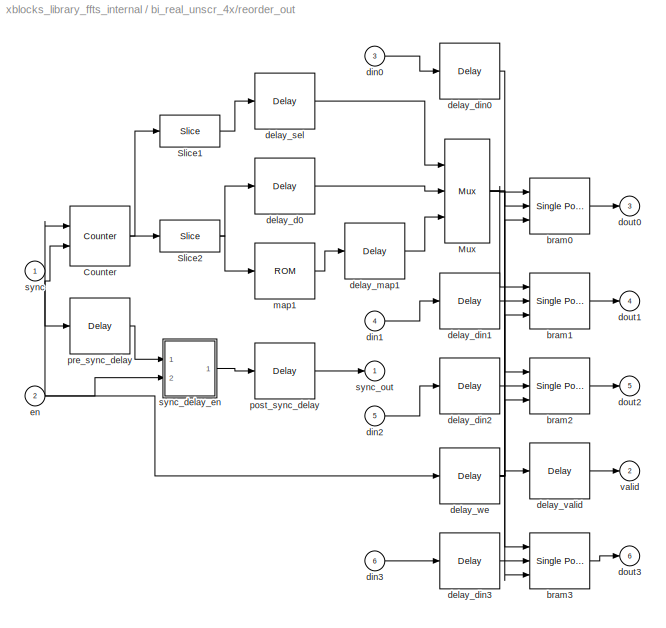
BLOCK [SubSystem] bi_real_unscr_4x/reorder_out
  AttributesFormatString = order=2
  FunctionWithSeparateData = off
  MaskHideContents = off
  MinAlgLoopOccurrences = off
  Opaque = off
  Ports = [6, 6]
  PropExecContextOutsideSubsystem = off
  RTWSystemCode = Auto
  RequestExecContextInheritance = off
  SID = 5339
BLOCK [Reference] bi_real_unscr_4x/reorder_out/Counter  REF=xbsIndex_r4/Counter
  Ports = [2, 1]
  SID = 5373
  SourceBlock = xbsIndex_r4/Counter
  SourceType = Xilinx Counter Block
  arith_type = Unsigned
  bin_pt = 0
  block_type = counter
  block_version = 11.4
  cnt_by_val = 1
  cnt_to = 255
  cnt_type = Count Limited
  dbl_ovrd = off
  en = on
  explicit_period = on
  has_advanced_control = 0
  implementation = Fabric
  infoedit = Hardware notes: Free running counters are the least expensive in hardware.  A count limited counter is implemented by combining a counter with a comparator.
  load_pin = off
  n_bits = 8
  operation = Up
  period = 1
  rst = on
  sg_icon_stat = 60,60,2,1,white,blue,0,d605779c,right,
  sggui_pos = -1,-1,-1,-1
  start_count = 0
  use_behavioral_HDL = off
  xl_area = [0,0,0,0,0,0,0]
  xl_use_area = off
BLOCK [Reference] bi_real_unscr_4x/reorder_out/Mux  REF=xbsIndex_r4/Mux
  Ports = [3, 1]
  SID = 5376
  SourceBlock = xbsIndex_r4/Mux
  SourceType = Xilinx Bus Multiplexer Block
  arith_type = Unsigned
  bin_pt = 14
  block_type = mux
  block_version = 11.4
  dbl_ovrd = off
  en = off
  has_advanced_control = 0
  inputs = 2
  latency = 1
  n_bits = 16
  overflow = Wrap
  precision = Full
  quantization = Truncate
  sg_icon_stat = 45,104,3,1,white,blue,3,a150fb03,right,
  sggui_pos = -1,-1,-1,-1
  xl_area = [0,0,0,0,0,0,0]
  xl_use_area = off
BLOCK [Reference] bi_real_unscr_4x/reorder_out/Slice1  REF=xbsIndex_r4/Slice
  Ports = [1, 1]
  SID = 5374
  SourceBlock = xbsIndex_r4/Slice
  SourceType = Xilinx Bit Slice Extractor Block
  base0 = LSB of Input
  base1 = MSB of Input
  bit0 = 0
  bit1 = 0
  block_type = slice
  block_version = 11.4
  boolean_output = off
  dbl_ovrd = off
  has_advanced_control = 0
  mode = Upper Bit Location + Width
  nbits = 1
  sg_icon_stat = 60,32,1,1,white,blue,0,1fd851a7,right,
  sggui_pos = -1,-1,-1,-1
BLOCK [Reference] bi_real_unscr_4x/reorder_out/Slice2  REF=xbsIndex_r4/Slice
  Ports = [1, 1]
  SID = 5375
  SourceBlock = xbsIndex_r4/Slice
  SourceType = Xilinx Bit Slice Extractor Block
  base0 = LSB of Input
  base1 = MSB of Input
  bit0 = 0
  bit1 = 0
  block_type = slice
  block_version = 11.4
  boolean_output = off
  dbl_ovrd = off
  has_advanced_control = 0
  mode = Lower Bit Location + Width
  nbits = 7
  sg_icon_stat = 60,32,1,1,white,blue,0,1fd851a7,right,
  sggui_pos = -1,-1,-1,-1
BLOCK [Reference] bi_real_unscr_4x/reorder_out/bram0  REF=xbsIndex_r4/Single Port RAM
  Ports = [3, 1]
  SID = 5380
  SourceBlock = xbsIndex_r4/Single Port RAM
  SourceType = Xilinx Single Port Random Access Memory Block
  block_type = spram
  block_version = 11.4
  dbl_ovrd = off
  depth = 128
  distributed_mem = Block RAM
  en = off
  has_advanced_control = 0
  initVector = sin(pi*(0:15)/16)
  init_reg = 0
  latency = 2
  optimize = Area
  rst = off
  sg_icon_stat = 60,56,3,1,white,blue,0,f2d5aa4c,right,
  sggui_pos = -1,-1,-1,-1
  use_rpm = on
  write_mode = Read Before Write
  xl_area = [0,0,0,0,0,0,0]
  xl_use_area = off
BLOCK [Reference] bi_real_unscr_4x/reorder_out/bram1  REF=xbsIndex_r4/Single Port RAM
  Ports = [3, 1]
  SID = 5382
  SourceBlock = xbsIndex_r4/Single Port RAM
  SourceType = Xilinx Single Port Random Access Memory Block
  block_type = spram
  block_version = 11.4
  dbl_ovrd = off
  depth = 128
  distributed_mem = Block RAM
  en = off
  has_advanced_control = 0
  initVector = sin(pi*(0:15)/16)
  init_reg = 0
  latency = 2
  optimize = Area
  rst = off
  sg_icon_stat = 60,56,3,1,white,blue,0,f2d5aa4c,right,
  sggui_pos = -1,-1,-1,-1
  use_rpm = on
  write_mode = Read Before Write
  xl_area = [0,0,0,0,0,0,0]
  xl_use_area = off
BLOCK [Reference] bi_real_unscr_4x/reorder_out/bram2  REF=xbsIndex_r4/Single Port RAM
  Ports = [3, 1]
  SID = 5384
  SourceBlock = xbsIndex_r4/Single Port RAM
  SourceType = Xilinx Single Port Random Access Memory Block
  block_type = spram
  block_version = 11.4
  dbl_ovrd = off
  depth = 128
  distributed_mem = Block RAM
  en = off
  has_advanced_control = 0
  initVector = sin(pi*(0:15)/16)
  init_reg = 0
  latency = 2
  optimize = Area
  rst = off
  sg_icon_stat = 60,56,3,1,white,blue,0,f2d5aa4c,right,
  sggui_pos = -1,-1,-1,-1
  use_rpm = on
  write_mode = Read Before Write
  xl_area = [0,0,0,0,0,0,0]
  xl_use_area = off
BLOCK [Reference] bi_real_unscr_4x/reorder_out/bram3  REF=xbsIndex_r4/Single Port RAM
  Ports = [3, 1]
  SID = 5386
  SourceBlock = xbsIndex_r4/Single Port RAM
  SourceType = Xilinx Single Port Random Access Memory Block
  block_type = spram
  block_version = 11.4
  dbl_ovrd = off
  depth = 128
  distributed_mem = Block RAM
  en = off
  has_advanced_control = 0
  initVector = sin(pi*(0:15)/16)
  init_reg = 0
  latency = 2
  optimize = Area
  rst = off
  sg_icon_stat = 60,56,3,1,white,blue,0,f2d5aa4c,right,
  sggui_pos = -1,-1,-1,-1
  use_rpm = on
  write_mode = Read Before Write
  xl_area = [0,0,0,0,0,0,0]
  xl_use_area = off
BLOCK [Reference] bi_real_unscr_4x/reorder_out/delay_d0  REF=xbsIndex_r4/Delay
  Ports = [1, 1]
  SID = 5378
  SourceBlock = xbsIndex_r4/Delay
  SourceType = Xilinx Delay Block
  block_type = delay
  block_version = 11.4
  dbl_ovrd = off
  en = off
  has_advanced_control = 0
  infoedit = Hardware notes: A delay line is a chain, each link of which is an SRL16 followed by a flip-flop.
  latency = 0
  reg_retiming = off
  sg_icon_stat = 60,56,1,1,white,blue,0,24450e6f,right,
  sggui_pos = -1,-1,-1,-1
  xl_area = [0,0,0,0,0,0,0]
  xl_use_area = off
BLOCK [Reference] bi_real_unscr_4x/reorder_out/delay_din0  REF=xbsIndex_r4/Delay
  Ports = [1, 1]
  SID = 5379
  SourceBlock = xbsIndex_r4/Delay
  SourceType = Xilinx Delay Block
  block_type = delay
  block_version = 11.4
  dbl_ovrd = off
  en = off
  has_advanced_control = 0
  infoedit = Hardware notes: A delay line is a chain, each link of which is an SRL16 followed by a flip-flop.
  latency = 1
  reg_retiming = off
  sg_icon_stat = 60,56,1,1,white,blue,0,07b98262,right,
  sggui_pos = -1,-1,-1,-1
  xl_area = [0,0,0,0,0,0,0]
  xl_use_area = off
BLOCK [Reference] bi_real_unscr_4x/reorder_out/delay_din1  REF=xbsIndex_r4/Delay
  Ports = [1, 1]
  SID = 5381
  SourceBlock = xbsIndex_r4/Delay
  SourceType = Xilinx Delay Block
  block_type = delay
  block_version = 11.4
  dbl_ovrd = off
  en = off
  has_advanced_control = 0
  infoedit = Hardware notes: A delay line is a chain, each link of which is an SRL16 followed by a flip-flop.
  latency = 1
  reg_retiming = off
  sg_icon_stat = 60,56,1,1,white,blue,0,07b98262,right,
  sggui_pos = -1,-1,-1,-1
  xl_area = [0,0,0,0,0,0,0]
  xl_use_area = off
BLOCK [Reference] bi_real_unscr_4x/reorder_out/delay_din2  REF=xbsIndex_r4/Delay
  Ports = [1, 1]
  SID = 5383
  SourceBlock = xbsIndex_r4/Delay
  SourceType = Xilinx Delay Block
  block_type = delay
  block_version = 11.4
  dbl_ovrd = off
  en = off
  has_advanced_control = 0
  infoedit = Hardware notes: A delay line is a chain, each link of which is an SRL16 followed by a flip-flop.
  latency = 1
  reg_retiming = off
  sg_icon_stat = 60,56,1,1,white,blue,0,07b98262,right,
  sggui_pos = -1,-1,-1,-1
  xl_area = [0,0,0,0,0,0,0]
  xl_use_area = off
BLOCK [Reference] bi_real_unscr_4x/reorder_out/delay_din3  REF=xbsIndex_r4/Delay
  Ports = [1, 1]
  SID = 5385
  SourceBlock = xbsIndex_r4/Delay
  SourceType = Xilinx Delay Block
  block_type = delay
  block_version = 11.4
  dbl_ovrd = off
  en = off
  has_advanced_control = 0
  infoedit = Hardware notes: A delay line is a chain, each link of which is an SRL16 followed by a flip-flop.
  latency = 1
  reg_retiming = off
  sg_icon_stat = 60,56,1,1,white,blue,0,07b98262,right,
  sggui_pos = -1,-1,-1,-1
  xl_area = [0,0,0,0,0,0,0]
  xl_use_area = off
BLOCK [Reference] bi_real_unscr_4x/reorder_out/delay_map1  REF=xbsIndex_r4/Delay
  Ports = [1, 1]
  SID = 5388
  SourceBlock = xbsIndex_r4/Delay
  SourceType = Xilinx Delay Block
  block_type = delay
  block_version = 11.4
  dbl_ovrd = off
  en = off
  has_advanced_control = 0
  infoedit = Hardware notes: A delay line is a chain, each link of which is an SRL16 followed by a flip-flop.
  latency = 0
  reg_retiming = off
  sg_icon_stat = 60,56,1,1,white,blue,0,24450e6f,right,
  sggui_pos = -1,-1,-1,-1
  xl_area = [0,0,0,0,0,0,0]
  xl_use_area = off
BLOCK [Reference] bi_real_unscr_4x/reorder_out/delay_sel  REF=xbsIndex_r4/Delay
  Ports = [1, 1]
  SID = 5377
  SourceBlock = xbsIndex_r4/Delay
  SourceType = Xilinx Delay Block
  block_type = delay
  block_version = 11.4
  dbl_ovrd = off
  en = off
  has_advanced_control = 0
  infoedit = Hardware notes: A delay line is a chain, each link of which is an SRL16 followed by a flip-flop.
  latency = 0
  reg_retiming = off
  sg_icon_stat = 60,56,1,1,white,blue,0,24450e6f,right,
  sggui_pos = -1,-1,-1,-1
  xl_area = [0,0,0,0,0,0,0]
  xl_use_area = off
BLOCK [Reference] bi_real_unscr_4x/reorder_out/delay_valid  REF=xbsIndex_r4/Delay
  Ports = [1, 1]
  SID = 5372
  SourceBlock = xbsIndex_r4/Delay
  SourceType = Xilinx Delay Block
  block_type = delay
  block_version = 11.4
  dbl_ovrd = off
  en = off
  has_advanced_control = 0
  infoedit = Hardware notes: A delay line is a chain, each link of which is an SRL16 followed by a flip-flop.
  latency = 3
  reg_retiming = off
  sg_icon_stat = 60,56,1,1,white,blue,0,83e6bb61,right,
  sggui_pos = -1,-1,-1,-1
  xl_area = [0,0,0,0,0,0,0]
  xl_use_area = off
BLOCK [Reference] bi_real_unscr_4x/reorder_out/delay_we  REF=xbsIndex_r4/Delay
  Ports = [1, 1]
  SID = 5371
  SourceBlock = xbsIndex_r4/Delay
  SourceType = Xilinx Delay Block
  block_type = delay
  block_version = 11.4
  dbl_ovrd = off
  en = off
  has_advanced_control = 0
  infoedit = Hardware notes: A delay line is a chain, each link of which is an SRL16 followed by a flip-flop.
  latency = 0
  reg_retiming = off
  sg_icon_stat = 60,56,1,1,white,blue,0,24450e6f,right,
  sggui_pos = -1,-1,-1,-1
  xl_area = [0,0,0,0,0,0,0]
  xl_use_area = off
BLOCK [Inport] bi_real_unscr_4x/reorder_out/din0
  IconDisplay = Port number
  Port = 3
  SID = 5344
BLOCK [Inport] bi_real_unscr_4x/reorder_out/din1
  IconDisplay = Port number
  Port = 4
  SID = 5346
BLOCK [Inport] bi_real_unscr_4x/reorder_out/din2
  IconDisplay = Port number
  Port = 5
  SID = 5348
BLOCK [Inport] bi_real_unscr_4x/reorder_out/din3
  IconDisplay = Port number
  Port = 6
  SID = 5350
BLOCK [Outport] bi_real_unscr_4x/reorder_out/dout0
  IconDisplay = Port number
  Port = 3
  SID = 5345
BLOCK [Outport] bi_real_unscr_4x/reorder_out/dout1
  IconDisplay = Port number
  Port = 4
  SID = 5347
BLOCK [Outport] bi_real_unscr_4x/reorder_out/dout2
  IconDisplay = Port number
  Port = 5
  SID = 5349
BLOCK [Outport] bi_real_unscr_4x/reorder_out/dout3
  IconDisplay = Port number
  Port = 6
  SID = 5351
BLOCK [Inport] bi_real_unscr_4x/reorder_out/en
  IconDisplay = Port number
  Port = 2
  SID = 5341
BLOCK [Reference] bi_real_unscr_4x/reorder_out/map1  REF=xbsIndex_r4/ROM
  Ports = [1, 1]
  SID = 5387
  SourceBlock = xbsIndex_r4/ROM
  SourceType = Xilinx Single Port Read-Only Memory Block
  arith_type = Unsigned
  bin_pt = 0
  block_type = sprom
  block_version = 11.4
  dbl_ovrd = off
  depth = 128
  distributed_mem = Distributed memory
  en = off
  has_advanced_control = 0
  initVector = [127 126 125 124 123 122 121 120 119 118 117 116 115 114 113 112 111 110 109 108 107 106 105 104 103 102 101 100 99 98 97 96 95 94 93 92 91 90 89 88 87 86 85 84 83 82 81 80 79 78 77 76 75 74 73 72 71 70 69 68 67 66 65 64 63 62 61 60 59 58 57 56 55 54 53 52 51 50 49 48 47 46 45 44 43 42 41 40 39 38 37 36 35 34 33 32 31 30 29 28 27 26 25 24 23 22 21 20 19 18 17 16 15 14 13 12 11 10 9 8 7 6 5 4 3 2 1...<+3ch>
  init_reg = 0
  latency = 0
  n_bits = 7
  optimize = Area
  rst = off
  sg_icon_stat = 60,56,1,1,white,blue,0,eff69a7e,right,
  sggui_pos = -1,-1,-1,-1
  use_rpm = on
  xl_area = [0,0,0,0,0,0,0]
  xl_use_area = off
BLOCK [Reference] bi_real_unscr_4x/reorder_out/post_sync_delay  REF=xbsIndex_r4/Delay
  Ports = [1, 1]
  SID = 5370
  SourceBlock = xbsIndex_r4/Delay
  SourceType = Xilinx Delay Block
  block_type = delay
  block_version = 11.4
  dbl_ovrd = off
  en = off
  has_advanced_control = 0
  infoedit = Hardware notes: A delay line is a chain, each link of which is an SRL16 followed by a flip-flop.
  latency = 3
  reg_retiming = off
  sg_icon_stat = 60,56,1,1,white,blue,0,83e6bb61,right,
  sggui_pos = -1,-1,-1,-1
  xl_area = [0,0,0,0,0,0,0]
  xl_use_area = off
BLOCK [Reference] bi_real_unscr_4x/reorder_out/pre_sync_delay  REF=xbsIndex_r4/Delay
  Ports = [1, 1]
  SID = 5352
  SourceBlock = xbsIndex_r4/Delay
  SourceType = Xilinx Delay Block
  block_type = delay
  block_version = 11.4
  dbl_ovrd = off
  en = off
  has_advanced_control = 0
  infoedit = Hardware notes: A delay line is a chain, each link of which is an SRL16 followed by a flip-flop.
  latency = 0
  reg_retiming = off
  sg_icon_stat = 60,56,1,1,white,blue,0,24450e6f,right,
  sggui_pos = -1,-1,-1,-1
  xl_area = [0,0,0,0,0,0,0]
  xl_use_area = off
BLOCK [Inport] bi_real_unscr_4x/reorder_out/sync
  IconDisplay = Port number
  SID = 5340
BLOCK [SubSystem] bi_real_unscr_4x/reorder_out/sync_delay_en
  FunctionWithSeparateData = off
  MaskHideContents = off
  MinAlgLoopOccurrences = off
  Opaque = off
  Ports = [2, 1]
  PropExecContextOutsideSubsystem = off
  RTWSystemCode = Auto
  RequestExecContextInheritance = off
  SID = 5353
BLOCK [Reference] bi_real_unscr_4x/reorder_out/sync_delay_en/Constant  REF=xbsIndex_r4/Constant
  Ports = [0, 1]
  SID = 5357
  SourceBlock = xbsIndex_r4/Constant
  SourceType = Xilinx Constant Block Block
  arith_type = Unsigned
  bin_pt = 0
  block_type = constant
  block_version = 11.4
  carry = CIN
  const = 1
  dbl_ovrd = off
  dsp48_infoedit = The use of this block for DSP48 instructions is deprecated.  Please use the Opmode block.
  equ = P=C
  explicit_period = on
  has_advanced_control = 0
  inp1 = P
  inp2 = PCIN>>17
  n_bits = 8
  opr = +
  opselect = C
  period = 1
  sg_icon_stat = 55,26,0,1,white,blue,0,1c72b5be,right,
  sggui_pos = -1,-1,-1,-1
BLOCK [Reference] bi_real_unscr_4x/reorder_out/sync_delay_en/Constant1  REF=xbsIndex_r4/Constant
  Ports = [0, 1]
  SID = 5358
  SourceBlock = xbsIndex_r4/Constant
  SourceType = Xilinx Constant Block Block
  arith_type = Unsigned
  bin_pt = 0
  block_type = constant
  block_version = 11.4
  carry = CIN
  const = 0
  dbl_ovrd = off
  dsp48_infoedit = The use of this block for DSP48 instructions is deprecated.  Please use the Opmode block.
  equ = P=C
  explicit_period = on
  has_advanced_control = 0
  inp1 = P
  inp2 = PCIN>>17
  n_bits = 8
  opr = +
  opselect = C
  period = 1
  sg_icon_stat = 55,26,0,1,white,blue,0,bf4ddd8b,right,
  sggui_pos = -1,-1,-1,-1
BLOCK [Reference] bi_real_unscr_4x/reorder_out/sync_delay_en/Constant2  REF=xbsIndex_r4/Constant
  Ports = [0, 1]
  SID = 5359
  SourceBlock = xbsIndex_r4/Constant
  SourceType = Xilinx Constant Block Block
  arith_type = Unsigned
  bin_pt = 0
  block_type = constant
  block_version = 11.4
  carry = CIN
  const = 128
  dbl_ovrd = off
  dsp48_infoedit = The use of this block for DSP48 instructions is deprecated.  Please use the Opmode block.
  equ = P=C
  explicit_period = on
  has_advanced_control = 0
  inp1 = P
  inp2 = PCIN>>17
  n_bits = 8
  opr = +
  opselect = C
  period = 1
  sg_icon_stat = 55,26,0,1,white,blue,0,1270bb14,right,
  sggui_pos = -1,-1,-1,-1
BLOCK [Reference] bi_real_unscr_4x/reorder_out/sync_delay_en/Constant3  REF=xbsIndex_r4/Constant
  Ports = [0, 1]
  SID = 5360
  SourceBlock = xbsIndex_r4/Constant
  SourceType = Xilinx Constant Block Block
  arith_type = Unsigned
  bin_pt = 0
  block_type = constant
  block_version = 11.4
  carry = CIN
  const = 1
  dbl_ovrd = off
  dsp48_infoedit = The use of this block for DSP48 instructions is deprecated.  Please use the Opmode block.
  equ = P=C
  explicit_period = on
  has_advanced_control = 0
  inp1 = P
  inp2 = PCIN>>17
  n_bits = 1
  opr = +
  opselect = C
  period = 1
  sg_icon_stat = 55,26,0,1,white,blue,0,1c72b5be,right,
  sggui_pos = -1,-1,-1,-1
BLOCK [Reference] bi_real_unscr_4x/reorder_out/sync_delay_en/Counter  REF=xbsIndex_r4/Counter
  Ports = [3, 1]
  SID = 5361
  SourceBlock = xbsIndex_r4/Counter
  SourceType = Xilinx Counter Block
  arith_type = Unsigned
  bin_pt = 0
  block_type = counter
  block_version = 11.4
  cnt_by_val = 1
  cnt_to = Inf
  cnt_type = Free Running
  dbl_ovrd = off
  en = on
  explicit_period = on
  has_advanced_control = 0
  implementation = Fabric
  infoedit = Hardware notes: Free running counters are the least expensive in hardware.  A count limited counter is implemented by combining a counter with a comparator.
  load_pin = on
  n_bits = 8
  operation = Down
  period = 1
  rst = off
  sg_icon_stat = 60,60,3,1,white,blue,0,993b2a6f,right,
  sggui_pos = -1,-1,-1,-1
  start_count = 0
  use_behavioral_HDL = off
  use_rpm = on
  xl_area = [0,0,0,0,0,0,0]
  xl_use_area = off
BLOCK [Inport] bi_real_unscr_4x/reorder_out/sync_delay_en/In
  AttributesFormatString = 18_17 r/i
  IconDisplay = Port number
  SID = 5354
BLOCK [Reference] bi_real_unscr_4x/reorder_out/sync_delay_en/Logical  REF=xbsIndex_r4/Logical
  Ports = [2, 1]
  SID = 5362
  SourceBlock = xbsIndex_r4/Logical
  SourceType = Xilinx Logical Block Block
  align_bp = on
  arith_type = Unsigned
  bin_pt = 2
  block_type = logical
  block_version = 11.4
  dbl_ovrd = off
  en = off
  has_advanced_control = 0
  inputs = 2
  latency = 0
  logical_function = OR
  n_bits = 8
  precision = Full
  sg_icon_stat = 55,60,2,1,white,blue,0,fc354646,right,
  sggui_pos = -1,-1,-1,-1
  xl_area = [0,0,0,0,0,0,0]
  xl_use_area = off
BLOCK [Reference] bi_real_unscr_4x/reorder_out/sync_delay_en/Logical1  REF=xbsIndex_r4/Logical
  Ports = [2, 1]
  SID = 5363
  SourceBlock = xbsIndex_r4/Logical
  SourceType = Xilinx Logical Block Block
  align_bp = on
  arith_type = Unsigned
  bin_pt = 2
  block_type = logical
  block_version = 11.4
  dbl_ovrd = off
  en = off
  has_advanced_control = 0
  inputs = 2
  latency = 0
  logical_function = AND
  n_bits = 8
  precision = Full
  sg_icon_stat = 55,60,2,1,white,blue,0,0a851f85,right,
  sggui_pos = -1,-1,-1,-1
  xl_area = [0,0,0,0,0,0,0]
  xl_use_area = off
BLOCK [Reference] bi_real_unscr_4x/reorder_out/sync_delay_en/Mux  REF=xbsIndex_r4/Mux
  Ports = [3, 1]
  SID = 5364
  SourceBlock = xbsIndex_r4/Mux
  SourceType = Xilinx Bus Multiplexer Block
  arith_type = Signed  (2's comp)
  bin_pt = 2
  block_type = mux
  block_version = 11.4
  dbl_ovrd = off
  en = off
  has_advanced_control = 0
  inputs = 2
  latency = 0
  n_bits = 8
  overflow = Wrap
  precision = Full
  quantization = Truncate
  sg_icon_stat = 45,104,3,1,white,blue,3,eb98d690,right,
  sggui_pos = -1,-1,-1,-1
  xl_area = [0,0,0,0,0,0,0]
  xl_use_area = off
BLOCK [Outport] bi_real_unscr_4x/reorder_out/sync_delay_en/Out
  IconDisplay = Port number
  SID = 5356
BLOCK [Reference] bi_real_unscr_4x/reorder_out/sync_delay_en/Relational  REF=xbsIndex_r4/Relational
  Ports = [2, 1]
  SID = 5365
  SourceBlock = xbsIndex_r4/Relational
  SourceType = Xilinx Arithmetic Relational Operator Block
  block_type = relational
  block_version = 11.4
  dbl_ovrd = off
  en = off
  has_advanced_control = 0
  latency = 0
  mode = a=b
  sg_icon_stat = 55,56,2,1,white,blue,0,2dfefa50,right,
  sggui_pos = -1,-1,-1,-1
  xl_area = [0,0,0,0,0,0,0]
  xl_use_area = off
BLOCK [Reference] bi_real_unscr_4x/reorder_out/sync_delay_en/Relational1  REF=xbsIndex_r4/Relational
  Ports = [2, 1]
  SID = 5366
  SourceBlock = xbsIndex_r4/Relational
  SourceType = Xilinx Arithmetic Relational Operator Block
  block_type = relational
  block_version = 11.4
  dbl_ovrd = off
  en = off
  has_advanced_control = 0
  latency = 0
  mode = a!=b
  sg_icon_stat = 55,56,2,1,white,blue,0,6a9ac0d0,right,
  sggui_pos = -1,-1,-1,-1
  xl_area = [0,0,0,0,0,0,0]
  xl_use_area = off
BLOCK [Inport] bi_real_unscr_4x/reorder_out/sync_delay_en/en
  IconDisplay = Port number
  Port = 2
  SID = 5355
BLOCK [Outport] bi_real_unscr_4x/reorder_out/sync_out
  IconDisplay = Port number
  SID = 5342
BLOCK [Outport] bi_real_unscr_4x/reorder_out/valid
  IconDisplay = Port number
  Port = 2
  SID = 5343
BLOCK [Inport] bi_real_unscr_4x/sync
  IconDisplay = Port number
  SID = 22
BLOCK [SubSystem] bi_real_unscr_4x/sync_delay_ctr
  FunctionWithSeparateData = off
  MaskHideContents = off
  MinAlgLoopOccurrences = off
  Opaque = off
  Ports = [1, 1]
  PropExecContextOutsideSubsystem = off
  RTWSystemCode = Auto
  RequestExecContextInheritance = off
  SID = 5097
BLOCK [Reference] bi_real_unscr_4x/sync_delay_ctr/Constant  REF=xbsIndex_r4/Constant
  Ports = [0, 1]
  SID = 5100
  SourceBlock = xbsIndex_r4/Constant
  SourceType = Xilinx Constant Block Block
  arith_type = Unsigned
  bin_pt = 0
  block_type = constant
  block_version = 11.4
  carry = CIN
  const = 1
  dbl_ovrd = off
  dsp48_infoedit = The use of this block for DSP48 instructions is deprecated.  Please use the Opmode block.
  equ = P=C
  explicit_period = on
  has_advanced_control = 0
  inp1 = P
  inp2 = PCIN>>17
  n_bits = 8
  opr = +
  opselect = C
  period = 1
  sg_icon_stat = 55,26,0,1,white,blue,0,1c72b5be,right,
  sggui_pos = -1,-1,-1,-1
BLOCK [Reference] bi_real_unscr_4x/sync_delay_ctr/Constant1  REF=xbsIndex_r4/Constant
  Ports = [0, 1]
  SID = 5101
  SourceBlock = xbsIndex_r4/Constant
  SourceType = Xilinx Constant Block Block
  arith_type = Unsigned
  bin_pt = 0
  block_type = constant
  block_version = 11.4
  carry = CIN
  const = 0
  dbl_ovrd = off
  dsp48_infoedit = The use of this block for DSP48 instructions is deprecated.  Please use the Opmode block.
  equ = P=C
  explicit_period = on
  has_advanced_control = 0
  inp1 = P
  inp2 = PCIN>>17
  n_bits = 8
  opr = +
  opselect = C
  period = 1
  sg_icon_stat = 55,26,0,1,white,blue,0,bf4ddd8b,right,
  sggui_pos = -1,-1,-1,-1
BLOCK [Reference] bi_real_unscr_4x/sync_delay_ctr/Constant2  REF=xbsIndex_r4/Constant
  Ports = [0, 1]
  SID = 5102
  SourceBlock = xbsIndex_r4/Constant
  SourceType = Xilinx Constant Block Block
  arith_type = Unsigned
  bin_pt = 0
  block_type = constant
  block_version = 11.4
  carry = CIN
  const = 131
  dbl_ovrd = off
  dsp48_infoedit = The use of this block for DSP48 instructions is deprecated.  Please use the Opmode block.
  equ = P=C
  explicit_period = on
  has_advanced_control = 0
  inp1 = P
  inp2 = PCIN>>17
  n_bits = 8
  opr = +
  opselect = C
  period = 1
  sg_icon_stat = 55,26,0,1,white,blue,0,1146b2e9,right,
  sggui_pos = -1,-1,-1,-1
BLOCK [Reference] bi_real_unscr_4x/sync_delay_ctr/Constant3  REF=xbsIndex_r4/Constant
  Ports = [0, 1]
  SID = 5103
  SourceBlock = xbsIndex_r4/Constant
  SourceType = Xilinx Constant Block Block
  arith_type = Unsigned
  bin_pt = 0
  block_type = constant
  block_version = 11.4
  carry = CIN
  const = 1
  dbl_ovrd = off
  dsp48_infoedit = The use of this block for DSP48 instructions is deprecated.  Please use the Opmode block.
  equ = P=C
  explicit_period = on
  has_advanced_control = 0
  inp1 = P
  inp2 = PCIN>>17
  n_bits = 1
  opr = +
  opselect = C
  period = 1
  sg_icon_stat = 55,26,0,1,white,blue,0,1c72b5be,right,
  sggui_pos = -1,-1,-1,-1
BLOCK [Reference] bi_real_unscr_4x/sync_delay_ctr/Counter  REF=xbsIndex_r4/Counter
  Ports = [3, 1]
  SID = 5104
  SourceBlock = xbsIndex_r4/Counter
  SourceType = Xilinx Counter Block
  arith_type = Unsigned
  bin_pt = 0
  block_type = counter
  block_version = 11.4
  cnt_by_val = 1
  cnt_to = Inf
  cnt_type = Free Running
  dbl_ovrd = off
  en = on
  explicit_period = on
  has_advanced_control = 0
  implementation = Fabric
  infoedit = Hardware notes: Free running counters are the least expensive in hardware.  A count limited counter is implemented by combining a counter with a comparator.
  load_pin = on
  n_bits = 8
  operation = Down
  period = 1
  rst = off
  sg_icon_stat = 60,60,3,1,white,blue,0,993b2a6f,right,
  sggui_pos = -1,-1,-1,-1
  start_count = 0
  use_behavioral_HDL = off
  use_rpm = on
  xl_area = [0,0,0,0,0,0,0]
  xl_use_area = off
BLOCK [Inport] bi_real_unscr_4x/sync_delay_ctr/In
  AttributesFormatString = 18_17 r/i
  IconDisplay = Port number
  SID = 5098
BLOCK [Reference] bi_real_unscr_4x/sync_delay_ctr/Logical  REF=xbsIndex_r4/Logical
  Ports = [2, 1]
  SID = 5105
  SourceBlock = xbsIndex_r4/Logical
  SourceType = Xilinx Logical Block Block
  align_bp = on
  arith_type = Unsigned
  bin_pt = 2
  block_type = logical
  block_version = 11.4
  dbl_ovrd = off
  en = off
  has_advanced_control = 0
  inputs = 2
  latency = 0
  logical_function = OR
  n_bits = 8
  precision = Full
  sg_icon_stat = 55,60,2,1,white,blue,0,fc354646,right,
  sggui_pos = -1,-1,-1,-1
  xl_area = [0,0,0,0,0,0,0]
  xl_use_area = off
BLOCK [Reference] bi_real_unscr_4x/sync_delay_ctr/Mux  REF=xbsIndex_r4/Mux
  Ports = [3, 1]
  SID = 5106
  SourceBlock = xbsIndex_r4/Mux
  SourceType = Xilinx Bus Multiplexer Block
  arith_type = Signed  (2's comp)
  bin_pt = 2
  block_type = mux
  block_version = 11.4
  dbl_ovrd = off
  en = off
  has_advanced_control = 0
  inputs = 2
  latency = 0
  n_bits = 8
  overflow = Wrap
  precision = Full
  quantization = Truncate
  sg_icon_stat = 45,104,3,1,white,blue,3,eb98d690,right,
  sggui_pos = -1,-1,-1,-1
  xl_area = [0,0,0,0,0,0,0]
  xl_use_area = off
BLOCK [Outport] bi_real_unscr_4x/sync_delay_ctr/Out
  IconDisplay = Port number
  SID = 5099
BLOCK [Reference] bi_real_unscr_4x/sync_delay_ctr/Relational  REF=xbsIndex_r4/Relational
  Ports = [2, 1]
  SID = 5107
  SourceBlock = xbsIndex_r4/Relational
  SourceType = Xilinx Arithmetic Relational Operator Block
  block_type = relational
  block_version = 11.4
  dbl_ovrd = off
  en = off
  has_advanced_control = 0
  latency = 0
  mode = a=b
  sg_icon_stat = 55,56,2,1,white,blue,0,2dfefa50,right,
  sggui_pos = -1,-1,-1,-1
  xl_area = [0,0,0,0,0,0,0]
  xl_use_area = off
BLOCK [Reference] bi_real_unscr_4x/sync_delay_ctr/Relational1  REF=xbsIndex_r4/Relational
  Ports = [2, 1]
  SID = 5108
  SourceBlock = xbsIndex_r4/Relational
  SourceType = Xilinx Arithmetic Relational Operator Block
  block_type = relational
  block_version = 11.4
  dbl_ovrd = off
  en = off
  has_advanced_control = 0
  latency = 0
  mode = a!=b
  sg_icon_stat = 55,56,2,1,white,blue,0,6a9ac0d0,right,
  sggui_pos = -1,-1,-1,-1
  xl_area = [0,0,0,0,0,0,0]
  xl_use_area = off
BLOCK [Outport] bi_real_unscr_4x/sync_out
  IconDisplay = Port number
  SID = 88
BLOCK [SubSystem] hilbert
  FunctionWithSeparateData = off
  MaskCallbackString = ||
  MaskDescription = FFT internal block.\n\nComputes (a+b*)/2 and (a-b*)/2i.\n\nIf a = w + ix and b = y + iz, then: \na+b = (w+y)/2 + i(x-z)/2\na-b = (x+z)/2 + i(y-w)/2
  MaskEnableString = on,on,on
  MaskHideContents = off
  MaskIconFrame = on
  MaskIconOpaque = on
  MaskIconRotate = none
  MaskIconUnits = autoscale
  MaskInitialization = config.source = str2func('hilbert_init_xblock');\nconfig.toplevel = gcb;\nconfig.depend = get_dependlist('hilbert');\nset_param(gcb,'LinkStatus','inactive');\nxBlock( config, {config.toplevel, ...\n    BitWidth, add_latency, conv_latency});
  MaskPortRotate = default
  MaskPromptString = Bit Wdith|Add Latency|Convert Latency
  MaskStyleString = edit,edit,edit
  MaskToolTipString = on,on,on
  MaskTunableValueString = on,on,on
  MaskType = hilbert (xBlock)
  MaskValueString = 16|2|2
  MaskVariables = BitWidth=@1;add_latency=@2;conv_latency=@3;
  MaskVisibilityString = on,on,on
  MinAlgLoopOccurrences = off
  Opaque = off
  Ports = [2, 2]
  PropExecContextOutsideSubsystem = off
  RTWSystemCode = Auto
  RequestExecContextInheritance = off
  SID = 135
  UserData = DataTag2
  UserDataPersistent = on
BLOCK [Reference] hilbert/AddSub  REF=xbsIndex_r4/AddSub
  Ports = [2, 1]
  SID = 5624
  SourceBlock = xbsIndex_r4/AddSub
  SourceType = Xilinx Adder/Subtracter Block
  arith_type = Unsigned
  bin_pt = 2
  block_type = addsub
  block_version = 11.4
  dbl_ovrd = off
  en = off
  has_advanced_control = 0
  hw_selection = Fabric
  latency = 2
  mode = Addition
  n_bits = 8
  overflow = Wrap
  pipelined = off
  precision = Full
  quantization = Truncate
  sg_icon_stat = 60,60,2,1,white,blue,0,4922a24f,right,
  sggui_pos = -1,-1,-1,-1
  use_behavioral_HDL = on
  use_carryin = off
  use_carryout = off
  use_rpm = on
  xl_area = [0,0,0,0,0,0,0]
  xl_use_area = off
BLOCK [Reference] hilbert/AddSub1  REF=xbsIndex_r4/AddSub
  Ports = [2, 1]
  SID = 5625
  SourceBlock = xbsIndex_r4/AddSub
  SourceType = Xilinx Adder/Subtracter Block
  arith_type = Unsigned
  bin_pt = 2
  block_type = addsub
  block_version = 11.4
  dbl_ovrd = off
  en = off
  has_advanced_control = 0
  hw_selection = Fabric
  latency = 2
  mode = Subtraction
  n_bits = 8
  overflow = Wrap
  pipelined = off
  precision = Full
  quantization = Truncate
  sg_icon_stat = 60,58,2,1,white,blue,0,57a258cf,right,
  sg_mask_display = fprintf('','COMMENT: begin icon graphics');\npatch([0 1 1 0 ],[0 0 1 1 ],[0.77 0.82 0.91]);\npatch([0.25 0.0833333 0.316667 0.0833333 0.25 0.5 0.566667 0.633333 0.9 0.683333 0.483333 0.333333 0.566667 0.333333 0.483333 0.683333 0.9 0.633333 0.566667 0.5 0.25 ],[0.103448 0.275862 0.517241 0.758621 0.931034 0.931034 0.862069 0.931034 0.931034 0.706897 0.913793 0.758621 0.517241 0.275862 0.12069 0.32...<+455ch>
  sggui_pos = -1,-1,-1,-1
  use_behavioral_HDL = on
  use_carryin = off
  use_carryout = off
  use_rpm = on
  xl_area = [0,0,0,0,0,0,0]
  xl_use_area = off
BLOCK [Reference] hilbert/AddSub2  REF=xbsIndex_r4/AddSub
  Ports = [2, 1]
  SID = 5626
  SourceBlock = xbsIndex_r4/AddSub
  SourceType = Xilinx Adder/Subtracter Block
  arith_type = Unsigned
  bin_pt = 2
  block_type = addsub
  block_version = 11.4
  dbl_ovrd = off
  en = off
  has_advanced_control = 0
  hw_selection = Fabric
  latency = 2
  mode = Subtraction
  n_bits = 8
  overflow = Wrap
  pipelined = off
  precision = Full
  quantization = Truncate
  sg_icon_stat = 60,60,2,1,white,blue,0,57a258cf,right,
  sggui_pos = -1,-1,-1,-1
  use_behavioral_HDL = on
  use_carryin = off
  use_carryout = off
  use_rpm = on
  xl_area = [0,0,0,0,0,0,0]
  xl_use_area = off
BLOCK [Reference] hilbert/AddSub3  REF=xbsIndex_r4/AddSub
  Ports = [2, 1]
  SID = 5627
  SourceBlock = xbsIndex_r4/AddSub
  SourceType = Xilinx Adder/Subtracter Block
  arith_type = Unsigned
  bin_pt = 2
  block_type = addsub
  block_version = 11.4
  dbl_ovrd = off
  en = off
  has_advanced_control = 0
  hw_selection = Fabric
  latency = 2
  mode = Addition
  n_bits = 8
  overflow = Wrap
  pipelined = off
  precision = Full
  quantization = Truncate
  sg_icon_stat = 60,60,2,1,white,blue,0,4922a24f,right,
  sggui_pos = -1,-1,-1,-1
  use_behavioral_HDL = on
  use_carryin = off
  use_carryout = off
  use_rpm = on
  xl_area = [0,0,0,0,0,0,0]
  xl_use_area = off
BLOCK [Reference] hilbert/Convert  REF=xbsIndex_r4/Convert
  Ports = [1, 1]
  SID = 5628
  SourceBlock = xbsIndex_r4/Convert
  SourceType = Xilinx Type Converter Block
  arith_type = Signed  (2's comp)
  bin_pt = 15
  block_type = convert
  block_version = 11.4
  dbl_ovrd = off
  has_advanced_control = 0
  infoedit = Hardware notes: rounding and saturating require hardware resources; truncating and wrapping do not.
  latency = 2
  n_bits = 16
  overflow = Wrap
  pipeline = off
  quantization = Round  (unbiased: Even Values)
  sg_icon_stat = 45,32,1,1,white,blue,0,5129c5aa,right,
  sggui_pos = -1,-1,-1,-1
  xl_area = [0,0,0,0,0,0,0]
  xl_use_area = off
BLOCK [Reference] hilbert/Convert1  REF=xbsIndex_r4/Convert
  Ports = [1, 1]
  SID = 5629
  SourceBlock = xbsIndex_r4/Convert
  SourceType = Xilinx Type Converter Block
  arith_type = Signed  (2's comp)
  bin_pt = 15
  block_type = convert
  block_version = 11.4
  dbl_ovrd = off
  has_advanced_control = 0
  infoedit = Hardware notes: rounding and saturating require hardware resources; truncating and wrapping do not.
  latency = 2
  n_bits = 16
  overflow = Wrap
  pipeline = off
  quantization = Round  (unbiased: Even Values)
  sg_icon_stat = 45,32,1,1,white,blue,0,5129c5aa,right,
  sggui_pos = -1,-1,-1,-1
  xl_area = [0,0,0,0,0,0,0]
  xl_use_area = off
BLOCK [Reference] hilbert/Convert2  REF=xbsIndex_r4/Convert
  Ports = [1, 1]
  SID = 5630
  SourceBlock = xbsIndex_r4/Convert
  SourceType = Xilinx Type Converter Block
  arith_type = Signed  (2's comp)
  bin_pt = 15
  block_type = convert
  block_version = 11.4
  dbl_ovrd = off
  has_advanced_control = 0
  infoedit = Hardware notes: rounding and saturating require hardware resources; truncating and wrapping do not.
  latency = 2
  n_bits = 16
  overflow = Wrap
  pipeline = off
  quantization = Round  (unbiased: Even Values)
  sg_icon_stat = 45,30,1,1,white,blue,0,5129c5aa,right,
  sggui_pos = -1,-1,-1,-1
  xl_area = [0,0,0,0,0,0,0]
  xl_use_area = off
BLOCK [Reference] hilbert/Convert3  REF=xbsIndex_r4/Convert
  Ports = [1, 1]
  SID = 5631
  SourceBlock = xbsIndex_r4/Convert
  SourceType = Xilinx Type Converter Block
  arith_type = Signed  (2's comp)
  bin_pt = 15
  block_type = convert
  block_version = 11.4
  dbl_ovrd = off
  has_advanced_control = 0
  infoedit = Hardware notes: rounding and saturating require hardware resources; truncating and wrapping do not.
  latency = 2
  n_bits = 16
  overflow = Wrap
  pipeline = off
  quantization = Round  (unbiased: Even Values)
  sg_icon_stat = 45,30,1,1,white,blue,0,5129c5aa,right,
  sggui_pos = -1,-1,-1,-1
  xl_area = [0,0,0,0,0,0,0]
  xl_use_area = off
BLOCK [Reference] hilbert/Scale  REF=xbsIndex_r4/Scale
  Ports = [1, 1]
  SID = 5632
  SourceBlock = xbsIndex_r4/Scale
  SourceType = Xilinx Input Scaler Block
  block_type = scale
  block_version = 11.4
  dbl_ovrd = off
  has_advanced_control = 0
  infoedit = Scales input by a power of two by adjusting the binary point position.<br><br>Hardware notes: In hardware this block costs nothing.
  scale_factor = -1
  sg_icon_stat = 55,56,1,1,white,blue,0,315b7d78,right,
  sggui_pos = -1,-1,-1,-1
BLOCK [Reference] hilbert/Scale1  REF=xbsIndex_r4/Scale
  Ports = [1, 1]
  SID = 5633
  SourceBlock = xbsIndex_r4/Scale
  SourceType = Xilinx Input Scaler Block
  block_type = scale
  block_version = 11.4
  dbl_ovrd = off
  has_advanced_control = 0
  infoedit = Scales input by a power of two by adjusting the binary point position.<br><br>Hardware notes: In hardware this block costs nothing.
  scale_factor = -1
  sg_icon_stat = 55,56,1,1,white,blue,0,315b7d78,right,
  sggui_pos = -1,-1,-1,-1
BLOCK [Reference] hilbert/Scale2  REF=xbsIndex_r4/Scale
  Ports = [1, 1]
  SID = 5634
  SourceBlock = xbsIndex_r4/Scale
  SourceType = Xilinx Input Scaler Block
  block_type = scale
  block_version = 11.4
  dbl_ovrd = off
  has_advanced_control = 0
  infoedit = Scales input by a power of two by adjusting the binary point position.<br><br>Hardware notes: In hardware this block costs nothing.
  scale_factor = -1
  sg_icon_stat = 55,56,1,1,white,blue,0,315b7d78,right,
  sggui_pos = -1,-1,-1,-1
BLOCK [Reference] hilbert/Scale3  REF=xbsIndex_r4/Scale
  Ports = [1, 1]
  SID = 5635
  SourceBlock = xbsIndex_r4/Scale
  SourceType = Xilinx Input Scaler Block
  block_type = scale
  block_version = 11.4
  dbl_ovrd = off
  has_advanced_control = 0
  infoedit = Scales input by a power of two by adjusting the binary point position.<br><br>Hardware notes: In hardware this block costs nothing.
  scale_factor = -1
  sg_icon_stat = 55,56,1,1,white,blue,0,315b7d78,right,
  sggui_pos = -1,-1,-1,-1
BLOCK [Inport] hilbert/a
  IconDisplay = Port number
  OutDataType = sfix(16)
  OutScaling = 2^0
  SID = 187
BLOCK [Inport] hilbert/b
  IconDisplay = Port number
  OutDataType = sfix(16)
  OutScaling = 2^0
  Port = 2
  SID = 188
BLOCK [SubSystem] hilbert/c_to_ri
  AttributesFormatString = 16_15 r/i
  FunctionWithSeparateData = off
  MaskHideContents = off
  MinAlgLoopOccurrences = off
  Opaque = off
  Ports = [1, 2]
  PropExecContextOutsideSubsystem = off
  RTWSystemCode = Auto
  RequestExecContextInheritance = off
  SID = 5636
BLOCK [Inport] hilbert/c_to_ri/c
  IconDisplay = Port number
  SID = 5637
BLOCK [Reference] hilbert/c_to_ri/force_im  REF=xbsIndex_r4/Reinterpret
  Ports = [1, 1]
  SID = 5640
  SourceBlock = xbsIndex_r4/Reinterpret
  SourceType = Xilinx Type Reinterpreter Block
  arith_type = Signed  (2's comp)
  bin_pt = 15
  block_type = reinterpret
  block_version = 11.4
  force_arith_type = on
  force_bin_pt = on
  has_advanced_control = 0
  sg_icon_stat = 50,32,1,1,white,blue,0,6b04d0b0,right,
  sggui_pos = -1,-1,-1,-1
BLOCK [Reference] hilbert/c_to_ri/force_re  REF=xbsIndex_r4/Reinterpret
  Ports = [1, 1]
  SID = 5641
  SourceBlock = xbsIndex_r4/Reinterpret
  SourceType = Xilinx Type Reinterpreter Block
  arith_type = Signed  (2's comp)
  bin_pt = 15
  block_type = reinterpret
  block_version = 11.4
  force_arith_type = on
  force_bin_pt = on
  has_advanced_control = 0
  sg_icon_stat = 50,32,1,1,white,blue,0,6b04d0b0,right,
  sggui_pos = -1,-1,-1,-1
BLOCK [Outport] hilbert/c_to_ri/im
  IconDisplay = Port number
  Port = 2
  SID = 5639
BLOCK [Outport] hilbert/c_to_ri/re
  IconDisplay = Port number
  SID = 5638
BLOCK [Reference] hilbert/c_to_ri/slice_im  REF=xbsIndex_r4/Slice
  Ports = [1, 1]
  SID = 5642
  SourceBlock = xbsIndex_r4/Slice
  SourceType = Xilinx Bit Slice Extractor Block
  base0 = LSB of Input
  base1 = MSB of Input
  bit0 = 0
  bit1 = 0
  block_type = slice
  block_version = 11.4
  boolean_output = off
  dbl_ovrd = off
  has_advanced_control = 0
  mode = Lower Bit Location + Width
  nbits = 16
  sg_icon_stat = 60,32,1,1,white,blue,0,1fd851a7,right,
  sggui_pos = -1,-1,-1,-1
BLOCK [Reference] hilbert/c_to_ri/slice_re  REF=xbsIndex_r4/Slice
  Ports = [1, 1]
  SID = 5643
  SourceBlock = xbsIndex_r4/Slice
  SourceType = Xilinx Bit Slice Extractor Block
  base0 = LSB of Input
  base1 = MSB of Input
  bit0 = 0
  bit1 = 0
  block_type = slice
  block_version = 11.4
  boolean_output = off
  dbl_ovrd = off
  has_advanced_control = 0
  mode = Upper Bit Location + Width
  nbits = 16
  sg_icon_stat = 60,32,1,1,white,blue,0,1fd851a7,right,
  sggui_pos = -1,-1,-1,-1
BLOCK [SubSystem] hilbert/c_to_ri1
  AttributesFormatString = 16_15 r/i
  FunctionWithSeparateData = off
  MaskHideContents = off
  MinAlgLoopOccurrences = off
  Opaque = off
  Ports = [1, 2]
  PropExecContextOutsideSubsystem = off
  RTWSystemCode = Auto
  RequestExecContextInheritance = off
  SID = 5644
BLOCK [Inport] hilbert/c_to_ri1/c
  IconDisplay = Port number
  SID = 5645
BLOCK [Reference] hilbert/c_to_ri1/force_im  REF=xbsIndex_r4/Reinterpret
  Ports = [1, 1]
  SID = 5648
  SourceBlock = xbsIndex_r4/Reinterpret
  SourceType = Xilinx Type Reinterpreter Block
  arith_type = Signed  (2's comp)
  bin_pt = 15
  block_type = reinterpret
  block_version = 11.4
  force_arith_type = on
  force_bin_pt = on
  has_advanced_control = 0
  sg_icon_stat = 50,32,1,1,white,blue,0,6b04d0b0,right,
  sggui_pos = -1,-1,-1,-1
BLOCK [Reference] hilbert/c_to_ri1/force_re  REF=xbsIndex_r4/Reinterpret
  Ports = [1, 1]
  SID = 5649
  SourceBlock = xbsIndex_r4/Reinterpret
  SourceType = Xilinx Type Reinterpreter Block
  arith_type = Signed  (2's comp)
  bin_pt = 15
  block_type = reinterpret
  block_version = 11.4
  force_arith_type = on
  force_bin_pt = on
  has_advanced_control = 0
  sg_icon_stat = 50,32,1,1,white,blue,0,6b04d0b0,right,
  sggui_pos = -1,-1,-1,-1
BLOCK [Outport] hilbert/c_to_ri1/im
  IconDisplay = Port number
  Port = 2
  SID = 5647
BLOCK [Outport] hilbert/c_to_ri1/re
  IconDisplay = Port number
  SID = 5646
BLOCK [Reference] hilbert/c_to_ri1/slice_im  REF=xbsIndex_r4/Slice
  Ports = [1, 1]
  SID = 5650
  SourceBlock = xbsIndex_r4/Slice
  SourceType = Xilinx Bit Slice Extractor Block
  base0 = LSB of Input
  base1 = MSB of Input
  bit0 = 0
  bit1 = 0
  block_type = slice
  block_version = 11.4
  boolean_output = off
  dbl_ovrd = off
  has_advanced_control = 0
  mode = Lower Bit Location + Width
  nbits = 16
  sg_icon_stat = 60,32,1,1,white,blue,0,1fd851a7,right,
  sggui_pos = -1,-1,-1,-1
BLOCK [Reference] hilbert/c_to_ri1/slice_re  REF=xbsIndex_r4/Slice
  Ports = [1, 1]
  SID = 5651
  SourceBlock = xbsIndex_r4/Slice
  SourceType = Xilinx Bit Slice Extractor Block
  base0 = LSB of Input
  base1 = MSB of Input
  bit0 = 0
  bit1 = 0
  block_type = slice
  block_version = 11.4
  boolean_output = off
  dbl_ovrd = off
  has_advanced_control = 0
  mode = Upper Bit Location + Width
  nbits = 16
  sg_icon_stat = 60,32,1,1,white,blue,0,1fd851a7,right,
  sggui_pos = -1,-1,-1,-1
BLOCK [Outport] hilbert/even
  IconDisplay = Port number
  OutDataType = sfix(16)
  OutScaling = 2^0
  SID = 205
BLOCK [Outport] hilbert/odd
  IconDisplay = Port number
  OutDataType = sfix(16)
  OutScaling = 2^0
  Port = 2
  SID = 206
BLOCK [SubSystem] hilbert/ri_to_c
  FunctionWithSeparateData = off
  MaskHideContents = off
  MinAlgLoopOccurrences = off
  Opaque = off
  Ports = [2, 1]
  PropExecContextOutsideSubsystem = off
  RTWSystemCode = Auto
  RequestExecContextInheritance = off
  SID = 5652
BLOCK [Outport] hilbert/ri_to_c/c
  IconDisplay = Port number
  SID = 5655
BLOCK [Reference] hilbert/ri_to_c/concat  REF=xbsIndex_r4/Concat
  Ports = [2, 1]
  SID = 5656
  SourceBlock = xbsIndex_r4/Concat
  SourceType = Xilinx Bus Concatenator Block
  block_type = concat
  block_version = 11.4
  dbl_ovrd = off
  has_advanced_control = 0
  infoedit = Concatenates two or more inputs.  Output will be cast to an unsigned value with the binary point at zero.
  num_inputs = 2
  sg_icon_stat = 60,60,2,1,white,blue,0,97b7e8d2,right,
  sggui_pos = -1,-1,-1,-1
BLOCK [Reference] hilbert/ri_to_c/force_im  REF=xbsIndex_r4/Reinterpret
  Ports = [1, 1]
  SID = 5657
  SourceBlock = xbsIndex_r4/Reinterpret
  SourceType = Xilinx Type Reinterpreter Block
  arith_type = Unsigned
  bin_pt = 0
  block_type = reinterpret
  block_version = 11.4
  force_arith_type = on
  force_bin_pt = on
  has_advanced_control = 0
  sg_icon_stat = 50,32,1,1,white,blue,0,6b04d0b0,right,
  sggui_pos = -1,-1,-1,-1
BLOCK [Reference] hilbert/ri_to_c/force_re  REF=xbsIndex_r4/Reinterpret
  Ports = [1, 1]
  SID = 5658
  SourceBlock = xbsIndex_r4/Reinterpret
  SourceType = Xilinx Type Reinterpreter Block
  arith_type = Unsigned
  bin_pt = 0
  block_type = reinterpret
  block_version = 11.4
  force_arith_type = on
  force_bin_pt = on
  has_advanced_control = 0
  sg_icon_stat = 50,32,1,1,white,blue,0,6b04d0b0,right,
  sggui_pos = -1,-1,-1,-1
BLOCK [Inport] hilbert/ri_to_c/im
  IconDisplay = Port number
  Port = 2
  SID = 5654
BLOCK [Inport] hilbert/ri_to_c/re
  IconDisplay = Port number
  SID = 5653
BLOCK [SubSystem] hilbert/ri_to_c1
  FunctionWithSeparateData = off
  MaskHideContents = off
  MinAlgLoopOccurrences = off
  Opaque = off
  Ports = [2, 1]
  PropExecContextOutsideSubsystem = off
  RTWSystemCode = Auto
  RequestExecContextInheritance = off
  SID = 5659
BLOCK [Outport] hilbert/ri_to_c1/c
  IconDisplay = Port number
  SID = 5662
BLOCK [Reference] hilbert/ri_to_c1/concat  REF=xbsIndex_r4/Concat
  Ports = [2, 1]
  SID = 5663
  SourceBlock = xbsIndex_r4/Concat
  SourceType = Xilinx Bus Concatenator Block
  block_type = concat
  block_version = 11.4
  dbl_ovrd = off
  has_advanced_control = 0
  infoedit = Concatenates two or more inputs.  Output will be cast to an unsigned value with the binary point at zero.
  num_inputs = 2
  sg_icon_stat = 60,60,2,1,white,blue,0,97b7e8d2,right,
  sggui_pos = -1,-1,-1,-1
BLOCK [Reference] hilbert/ri_to_c1/force_im  REF=xbsIndex_r4/Reinterpret
  Ports = [1, 1]
  SID = 5664
  SourceBlock = xbsIndex_r4/Reinterpret
  SourceType = Xilinx Type Reinterpreter Block
  arith_type = Unsigned
  bin_pt = 0
  block_type = reinterpret
  block_version = 11.4
  force_arith_type = on
  force_bin_pt = on
  has_advanced_control = 0
  sg_icon_stat = 50,32,1,1,white,blue,0,6b04d0b0,right,
  sggui_pos = -1,-1,-1,-1
BLOCK [Reference] hilbert/ri_to_c1/force_re  REF=xbsIndex_r4/Reinterpret
  Ports = [1, 1]
  SID = 5665
  SourceBlock = xbsIndex_r4/Reinterpret
  SourceType = Xilinx Type Reinterpreter Block
  arith_type = Unsigned
  bin_pt = 0
  block_type = reinterpret
  block_version = 11.4
  force_arith_type = on
  force_bin_pt = on
  has_advanced_control = 0
  sg_icon_stat = 50,32,1,1,white,blue,0,6b04d0b0,right,
  sggui_pos = -1,-1,-1,-1
BLOCK [Inport] hilbert/ri_to_c1/im
  IconDisplay = Port number
  Port = 2
  SID = 5661
BLOCK [Inport] hilbert/ri_to_c1/re
  IconDisplay = Port number
  SID = 5660
BLOCK [SubSystem] hilbert_dsp48e
  FunctionWithSeparateData = off
  MaskCallbackString = |
  MaskDescription = FFT internal block.\n\nComputes (a+b*)/2 and (a-b*)/2i.
  MaskEnableString = on,on
  MaskHideContents = off
  MaskIconFrame = on
  MaskIconOpaque = on
  MaskIconRotate = none
  MaskIconUnits = autoscale
  MaskInitialization = config.source = str2func('hilbert_dsp48e_init_xblock');\nconfig.toplevel = gcb;\nconfig.depend = get_dependlist('hilbert_dsp48e');\nset_param(gcb,'LinkStatus','inactive');\nxBlock(config, {config.toplevel, ...\n    BitWidth, conv_latency});
  MaskPortRotate = default
  MaskPromptString = Bit Wdith|Convert Latency
  MaskStyleString = edit,edit
  MaskToolTipString = on,on
  MaskTunableValueString = on,on
  MaskType = sincos_dsp48e (xBlock version)
  MaskValueString = 16|2
  MaskVariables = BitWidth=@1;conv_latency=@2;
  MaskVisibilityString = on,on
  MinAlgLoopOccurrences = off
  Opaque = off
  Ports = [2, 2]
  PropExecContextOutsideSubsystem = off
  RTWSystemCode = Auto
  RequestExecContextInheritance = off
  SID = 157
  UserData = DataTag3
  UserDataPersistent = on
BLOCK [Reference] hilbert_dsp48e/Convert0  REF=xbsIndex_r4/Convert
  Ports = [1, 1]
  SID = 5666
  SourceBlock = xbsIndex_r4/Convert
  SourceType = Xilinx Type Converter Block
  arith_type = Signed  (2's comp)
  bin_pt = 15
  block_type = convert
  block_version = 11.4
  dbl_ovrd = off
  has_advanced_control = 0
  infoedit = Hardware notes: rounding and saturating require hardware resources; truncating and wrapping do not.
  latency = 2
  n_bits = 16
  overflow = Wrap
  pipeline = on
  quantization = Round  (unbiased: Even Values)
  sg_icon_stat = 45,32,1,1,white,blue,0,5129c5aa,right,
  sggui_pos = -1,-1,-1,-1
  xl_area = [0,0,0,0,0,0,0]
  xl_use_area = off
BLOCK [Reference] hilbert_dsp48e/Convert1  REF=xbsIndex_r4/Convert
  Ports = [1, 1]
  SID = 5667
  SourceBlock = xbsIndex_r4/Convert
  SourceType = Xilinx Type Converter Block
  arith_type = Signed  (2's comp)
  bin_pt = 15
  block_type = convert
  block_version = 11.4
  dbl_ovrd = off
  has_advanced_control = 0
  infoedit = Hardware notes: rounding and saturating require hardware resources; truncating and wrapping do not.
  latency = 2
  n_bits = 16
  overflow = Wrap
  pipeline = on
  quantization = Round  (unbiased: Even Values)
  sg_icon_stat = 45,32,1,1,white,blue,0,5129c5aa,right,
  sggui_pos = -1,-1,-1,-1
  xl_area = [0,0,0,0,0,0,0]
  xl_use_area = off
BLOCK [Reference] hilbert_dsp48e/Convert2  REF=xbsIndex_r4/Convert
  Ports = [1, 1]
  SID = 5668
  SourceBlock = xbsIndex_r4/Convert
  SourceType = Xilinx Type Converter Block
  arith_type = Signed  (2's comp)
  bin_pt = 15
  block_type = convert
  block_version = 11.4
  dbl_ovrd = off
  has_advanced_control = 0
  infoedit = Hardware notes: rounding and saturating require hardware resources; truncating and wrapping do not.
  latency = 2
  n_bits = 16
  overflow = Wrap
  pipeline = on
  quantization = Round  (unbiased: Even Values)
  sg_icon_stat = 45,32,1,1,white,blue,0,5129c5aa,right,
  sggui_pos = -1,-1,-1,-1
  xl_area = [0,0,0,0,0,0,0]
  xl_use_area = off
BLOCK [Reference] hilbert_dsp48e/Convert3  REF=xbsIndex_r4/Convert
  Ports = [1, 1]
  SID = 5669
  SourceBlock = xbsIndex_r4/Convert
  SourceType = Xilinx Type Converter Block
  arith_type = Signed  (2's comp)
  bin_pt = 15
  block_type = convert
  block_version = 11.4
  dbl_ovrd = off
  has_advanced_control = 0
  infoedit = Hardware notes: rounding and saturating require hardware resources; truncating and wrapping do not.
  latency = 2
  n_bits = 16
  overflow = Wrap
  pipeline = on
  quantization = Round  (unbiased: Even Values)
  sg_icon_stat = 45,32,1,1,white,blue,0,5129c5aa,right,
  sggui_pos = -1,-1,-1,-1
  xl_area = [0,0,0,0,0,0,0]
  xl_use_area = off
BLOCK [Reference] hilbert_dsp48e/Scale0  REF=xbsIndex_r4/Scale
  Ports = [1, 1]
  SID = 5670
  SourceBlock = xbsIndex_r4/Scale
  SourceType = Xilinx Input Scaler Block
  block_type = scale
  block_version = 11.4
  dbl_ovrd = off
  has_advanced_control = 0
  infoedit = Scales input by a power of two by adjusting the binary point position.<br><br>Hardware notes: In hardware this block costs nothing.
  scale_factor = -1
  sg_icon_stat = 55,56,1,1,white,blue,0,315b7d78,right,
  sggui_pos = -1,-1,-1,-1
BLOCK [Reference] hilbert_dsp48e/Scale1  REF=xbsIndex_r4/Scale
  Ports = [1, 1]
  SID = 5671
  SourceBlock = xbsIndex_r4/Scale
  SourceType = Xilinx Input Scaler Block
  block_type = scale
  block_version = 11.4
  dbl_ovrd = off
  has_advanced_control = 0
  infoedit = Scales input by a power of two by adjusting the binary point position.<br><br>Hardware notes: In hardware this block costs nothing.
  scale_factor = -1
  sg_icon_stat = 55,56,1,1,white,blue,0,315b7d78,right,
  sggui_pos = -1,-1,-1,-1
BLOCK [Reference] hilbert_dsp48e/Scale2  REF=xbsIndex_r4/Scale
  Ports = [1, 1]
  SID = 5672
  SourceBlock = xbsIndex_r4/Scale
  SourceType = Xilinx Input Scaler Block
  block_type = scale
  block_version = 11.4
  dbl_ovrd = off
  has_advanced_control = 0
  infoedit = Scales input by a power of two by adjusting the binary point position.<br><br>Hardware notes: In hardware this block costs nothing.
  scale_factor = -1
  sg_icon_stat = 55,56,1,1,white,blue,0,315b7d78,right,
  sggui_pos = -1,-1,-1,-1
BLOCK [Reference] hilbert_dsp48e/Scale3  REF=xbsIndex_r4/Scale
  Ports = [1, 1]
  SID = 5673
  SourceBlock = xbsIndex_r4/Scale
  SourceType = Xilinx Input Scaler Block
  block_type = scale
  block_version = 11.4
  dbl_ovrd = off
  has_advanced_control = 0
  infoedit = Scales input by a power of two by adjusting the binary point position.<br><br>Hardware notes: In hardware this block costs nothing.
  scale_factor = -1
  sg_icon_stat = 55,56,1,1,white,blue,0,315b7d78,right,
  sggui_pos = -1,-1,-1,-1
BLOCK [Inport] hilbert_dsp48e/a
  IconDisplay = Port number
  SID = 158
BLOCK [Inport] hilbert_dsp48e/b
  IconDisplay = Port number
  Port = 2
  SID = 159
BLOCK [SubSystem] hilbert_dsp48e/c_to_ri0
  AttributesFormatString = 16_15 r/i
  FunctionWithSeparateData = off
  MaskHideContents = off
  MinAlgLoopOccurrences = off
  Opaque = off
  Ports = [1, 2]
  PropExecContextOutsideSubsystem = off
  RTWSystemCode = Auto
  RequestExecContextInheritance = off
  SID = 5674
BLOCK [Inport] hilbert_dsp48e/c_to_ri0/c
  IconDisplay = Port number
  SID = 5675
BLOCK [Reference] hilbert_dsp48e/c_to_ri0/force_im  REF=xbsIndex_r4/Reinterpret
  Ports = [1, 1]
  SID = 5678
  SourceBlock = xbsIndex_r4/Reinterpret
  SourceType = Xilinx Type Reinterpreter Block
  arith_type = Signed  (2's comp)
  bin_pt = 15
  block_type = reinterpret
  block_version = 11.4
  force_arith_type = on
  force_bin_pt = on
  has_advanced_control = 0
  sg_icon_stat = 50,32,1,1,white,blue,0,6b04d0b0,right,
  sggui_pos = -1,-1,-1,-1
BLOCK [Reference] hilbert_dsp48e/c_to_ri0/force_re  REF=xbsIndex_r4/Reinterpret
  Ports = [1, 1]
  SID = 5679
  SourceBlock = xbsIndex_r4/Reinterpret
  SourceType = Xilinx Type Reinterpreter Block
  arith_type = Signed  (2's comp)
  bin_pt = 15
  block_type = reinterpret
  block_version = 11.4
  force_arith_type = on
  force_bin_pt = on
  has_advanced_control = 0
  sg_icon_stat = 50,32,1,1,white,blue,0,6b04d0b0,right,
  sggui_pos = -1,-1,-1,-1
BLOCK [Outport] hilbert_dsp48e/c_to_ri0/im
  IconDisplay = Port number
  Port = 2
  SID = 5677
BLOCK [Outport] hilbert_dsp48e/c_to_ri0/re
  IconDisplay = Port number
  SID = 5676
BLOCK [Reference] hilbert_dsp48e/c_to_ri0/slice_im  REF=xbsIndex_r4/Slice
  Ports = [1, 1]
  SID = 5680
  SourceBlock = xbsIndex_r4/Slice
  SourceType = Xilinx Bit Slice Extractor Block
  base0 = LSB of Input
  base1 = MSB of Input
  bit0 = 0
  bit1 = 0
  block_type = slice
  block_version = 11.4
  boolean_output = off
  dbl_ovrd = off
  has_advanced_control = 0
  mode = Lower Bit Location + Width
  nbits = 16
  sg_icon_stat = 60,32,1,1,white,blue,0,1fd851a7,right,
  sggui_pos = -1,-1,-1,-1
BLOCK [Reference] hilbert_dsp48e/c_to_ri0/slice_re  REF=xbsIndex_r4/Slice
  Ports = [1, 1]
  SID = 5681
  SourceBlock = xbsIndex_r4/Slice
  SourceType = Xilinx Bit Slice Extractor Block
  base0 = LSB of Input
  base1 = MSB of Input
  bit0 = 0
  bit1 = 0
  block_type = slice
  block_version = 11.4
  boolean_output = off
  dbl_ovrd = off
  has_advanced_control = 0
  mode = Upper Bit Location + Width
  nbits = 16
  sg_icon_stat = 60,32,1,1,white,blue,0,1fd851a7,right,
  sggui_pos = -1,-1,-1,-1
BLOCK [SubSystem] hilbert_dsp48e/c_to_ri1
  AttributesFormatString = 16_15 r/i
  FunctionWithSeparateData = off
  MaskHideContents = off
  MinAlgLoopOccurrences = off
  Opaque = off
  Ports = [1, 2]
  PropExecContextOutsideSubsystem = off
  RTWSystemCode = Auto
  RequestExecContextInheritance = off
  SID = 5682
BLOCK [Inport] hilbert_dsp48e/c_to_ri1/c
  IconDisplay = Port number
  SID = 5683
BLOCK [Reference] hilbert_dsp48e/c_to_ri1/force_im  REF=xbsIndex_r4/Reinterpret
  Ports = [1, 1]
  SID = 5686
  SourceBlock = xbsIndex_r4/Reinterpret
  SourceType = Xilinx Type Reinterpreter Block
  arith_type = Signed  (2's comp)
  bin_pt = 15
  block_type = reinterpret
  block_version = 11.4
  force_arith_type = on
  force_bin_pt = on
  has_advanced_control = 0
  sg_icon_stat = 50,32,1,1,white,blue,0,6b04d0b0,right,
  sggui_pos = -1,-1,-1,-1
BLOCK [Reference] hilbert_dsp48e/c_to_ri1/force_re  REF=xbsIndex_r4/Reinterpret
  Ports = [1, 1]
  SID = 5687
  SourceBlock = xbsIndex_r4/Reinterpret
  SourceType = Xilinx Type Reinterpreter Block
  arith_type = Signed  (2's comp)
  bin_pt = 15
  block_type = reinterpret
  block_version = 11.4
  force_arith_type = on
  force_bin_pt = on
  has_advanced_control = 0
  sg_icon_stat = 50,32,1,1,white,blue,0,6b04d0b0,right,
  sggui_pos = -1,-1,-1,-1
BLOCK [Outport] hilbert_dsp48e/c_to_ri1/im
  IconDisplay = Port number
  Port = 2
  SID = 5685
BLOCK [Outport] hilbert_dsp48e/c_to_ri1/re
  IconDisplay = Port number
  SID = 5684
BLOCK [Reference] hilbert_dsp48e/c_to_ri1/slice_im  REF=xbsIndex_r4/Slice
  Ports = [1, 1]
  SID = 5688
  SourceBlock = xbsIndex_r4/Slice
  SourceType = Xilinx Bit Slice Extractor Block
  base0 = LSB of Input
  base1 = MSB of Input
  bit0 = 0
  bit1 = 0
  block_type = slice
  block_version = 11.4
  boolean_output = off
  dbl_ovrd = off
  has_advanced_control = 0
  mode = Lower Bit Location + Width
  nbits = 16
  sg_icon_stat = 60,32,1,1,white,blue,0,1fd851a7,right,
  sggui_pos = -1,-1,-1,-1
BLOCK [Reference] hilbert_dsp48e/c_to_ri1/slice_re  REF=xbsIndex_r4/Slice
  Ports = [1, 1]
  SID = 5689
  SourceBlock = xbsIndex_r4/Slice
  SourceType = Xilinx Bit Slice Extractor Block
  base0 = LSB of Input
  base1 = MSB of Input
  bit0 = 0
  bit1 = 0
  block_type = slice
  block_version = 11.4
  boolean_output = off
  dbl_ovrd = off
  has_advanced_control = 0
  mode = Upper Bit Location + Width
  nbits = 16
  sg_icon_stat = 60,32,1,1,white,blue,0,1fd851a7,right,
  sggui_pos = -1,-1,-1,-1
BLOCK [SubSystem] hilbert_dsp48e/cadd
  AttributesFormatString = 16_15 + 16_15 ==> 17_15\nMode=Addition\nLatency=2
  FunctionWithSeparateData = off
  MaskHideContents = off
  MinAlgLoopOccurrences = off
  Opaque = off
  Ports = [4, 2]
  PropExecContextOutsideSubsystem = off
  RTWSystemCode = Auto
  RequestExecContextInheritance = off
  SID = 5690
BLOCK [Reference] hilbert_dsp48e/cadd/DSP48E  REF=xbsIndex_r4/DSP48E
  Ports = [7, 1]
  SID = 5697
  SourceBlock = xbsIndex_r4/DSP48E
  SourceType = Xilinx DSP48E Block
  addsub_mode = TWO24
  block_type = dsp48e
  block_version = 11.4
  en_a1 = off
  en_a2 = off
  en_all = off
  en_alumode = off
  en_b1 = off
  en_b2 = off
  en_c = off
  en_carry_in = off
  en_ctrl = off
  en_mult = off
  en_multcarryin = off
  en_p = off
  has_advanced_control = 0
  mask_from_creg = off
  pattern = '000000000000'
  pattern_from_creg = off
  pattern_mask = '3FFFFFFFFFFF'
  pipeline_a = 1
  pipeline_acout = 1
  pipeline_alumode = on
  pipeline_b = 1
  pipeline_bcout = 1
  pipeline_c = on
  pipeline_carryin = on
  pipeline_carryinsel = on
  pipeline_mult = on
  pipeline_opmode = on
  pipeline_p = on
  reset_preg = off
  rst_a = off
  rst_all = off
  rst_alumode = off
  rst_b = off
  rst_c = off
  rst_carry_in = off
  rst_ctrl = off
  rst_mult = off
  rst_p = off
  sel_rounding_mask = Select mask
  sg_icon_stat = 75,136,7,1,white,blue,0,51584ea8,right,
  sggui_pos = -1,-1,-1,-1
  use_a = Direct from A Port
  use_acout = off
  use_b = Direct from B Port
  use_bcout = off
  use_carrycascin = off
  use_carrycascout = off
  use_carryout = off
  use_creg = on
  use_multsignin = off
  use_multsignout = off
  use_op = off
  use_overflow = off
  use_patternbdetect = off
  use_patterndetect = off
  use_pcin = off
  use_pcout = off
  use_synth_model = off
  use_underflow = off
  xl_area = [0,0,0,0,0,0,0]
  xl_use_area = off
  xl_useadderonly = off
BLOCK [Reference] hilbert_dsp48e/cadd/Reinterpret_A  REF=xbsIndex_r4/Reinterpret
  Ports = [1, 1]
  SID = 5698
  SourceBlock = xbsIndex_r4/Reinterpret
  SourceType = Xilinx Type Reinterpreter Block
  arith_type = Signed  (2's comp)
  bin_pt = 0
  block_type = reinterpret
  block_version = 11.4
  force_arith_type = on
  force_bin_pt = on
  has_advanced_control = 0
  sg_icon_stat = 50,32,1,1,white,blue,0,6b04d0b0,right,
  sggui_pos = -1,-1,-1,-1
BLOCK [Reference] hilbert_dsp48e/cadd/Reinterpret_B  REF=xbsIndex_r4/Reinterpret
  Ports = [1, 1]
  SID = 5699
  SourceBlock = xbsIndex_r4/Reinterpret
  SourceType = Xilinx Type Reinterpreter Block
  arith_type = Signed  (2's comp)
  bin_pt = 0
  block_type = reinterpret
  block_version = 11.4
  force_arith_type = on
  force_bin_pt = on
  has_advanced_control = 0
  sg_icon_stat = 50,32,1,1,white,blue,0,6b04d0b0,right,
  sggui_pos = -1,-1,-1,-1
BLOCK [Reference] hilbert_dsp48e/cadd/Reinterpret_C  REF=xbsIndex_r4/Reinterpret
  Ports = [1, 1]
  SID = 5700
  SourceBlock = xbsIndex_r4/Reinterpret
  SourceType = Xilinx Type Reinterpreter Block
  arith_type = Signed  (2's comp)
  bin_pt = 0
  block_type = reinterpret
  block_version = 11.4
  force_arith_type = on
  force_bin_pt = on
  has_advanced_control = 0
  sg_icon_stat = 50,32,1,1,white,blue,0,6b04d0b0,right,
  sggui_pos = -1,-1,-1,-1
BLOCK [Reference] hilbert_dsp48e/cadd/Slice_A  REF=xbsIndex_r4/Slice
  Ports = [1, 1]
  SID = 5701
  SourceBlock = xbsIndex_r4/Slice
  SourceType = Xilinx Bit Slice Extractor Block
  base0 = LSB of Input
  base1 = MSB of Input
  bit0 = 0
  bit1 = 0
  block_type = slice
  block_version = 11.4
  boolean_output = off
  dbl_ovrd = off
  has_advanced_control = 0
  mode = Upper Bit Location + Width
  nbits = 30
  sg_icon_stat = 60,32,1,1,white,blue,0,1fd851a7,right,
  sggui_pos = -1,-1,-1,-1
BLOCK [Reference] hilbert_dsp48e/cadd/Slice_B  REF=xbsIndex_r4/Slice
  Ports = [1, 1]
  SID = 5702
  SourceBlock = xbsIndex_r4/Slice
  SourceType = Xilinx Bit Slice Extractor Block
  base0 = LSB of Input
  base1 = MSB of Input
  bit0 = 0
  bit1 = 0
  block_type = slice
  block_version = 11.4
  boolean_output = off
  dbl_ovrd = off
  has_advanced_control = 0
  mode = Lower Bit Location + Width
  nbits = 18
  sg_icon_stat = 60,32,1,1,white,blue,0,1fd851a7,right,
  sggui_pos = -1,-1,-1,-1
BLOCK [Inport] hilbert_dsp48e/cadd/a_im
  IconDisplay = Port number
  Port = 2
  SID = 5692
BLOCK [Inport] hilbert_dsp48e/cadd/a_re
  IconDisplay = Port number
  SID = 5691
BLOCK [Reference] hilbert_dsp48e/cadd/alumode  REF=xbsIndex_r4/Constant
  Ports = [0, 1]
  SID = 5703
  SourceBlock = xbsIndex_r4/Constant
  SourceType = Xilinx Constant Block Block
  arith_type = Unsigned
  bin_pt = 0
  block_type = constant
  block_version = 11.4
  carry = CIN
  const = 0
  dbl_ovrd = off
  dsp48_infoedit = The use of this block for DSP48 instructions is deprecated.  Please use the Opmode block.
  equ = P=C
  explicit_period = off
  has_advanced_control = 0
  inp1 = P
  inp2 = PCIN>>17
  n_bits = 4
  opr = +
  opselect = C
  period = 1
  sg_icon_stat = 55,26,0,1,white,blue,0,bf4ddd8b,right,
  sggui_pos = -1,-1,-1,-1
BLOCK [Inport] hilbert_dsp48e/cadd/b_im
  IconDisplay = Port number
  Port = 4
  SID = 5694
BLOCK [Inport] hilbert_dsp48e/cadd/b_re
  IconDisplay = Port number
  Port = 3
  SID = 5693
BLOCK [Outport] hilbert_dsp48e/cadd/c_im
  IconDisplay = Port number
  Port = 2
  SID = 5696
BLOCK [Outport] hilbert_dsp48e/cadd/c_re
  IconDisplay = Port number
  SID = 5695
BLOCK [Reference] hilbert_dsp48e/cadd/carryin  REF=xbsIndex_r4/Constant
  Ports = [0, 1]
  SID = 5704
  SourceBlock = xbsIndex_r4/Constant
  SourceType = Xilinx Constant Block Block
  arith_type = Unsigned
  bin_pt = 0
  block_type = constant
  block_version = 11.4
  carry = CIN
  const = 0
  dbl_ovrd = off
  dsp48_infoedit = The use of this block for DSP48 instructions is deprecated.  Please use the Opmode block.
  equ = P=C
  explicit_period = off
  has_advanced_control = 0
  inp1 = P
  inp2 = PCIN>>17
  n_bits = 1
  opr = +
  opselect = C
  period = 1
  sg_icon_stat = 55,26,0,1,white,blue,0,bf4ddd8b,right,
  sggui_pos = -1,-1,-1,-1
BLOCK [Reference] hilbert_dsp48e/cadd/carryinsel  REF=xbsIndex_r4/Constant
  Ports = [0, 1]
  SID = 5705
  SourceBlock = xbsIndex_r4/Constant
  SourceType = Xilinx Constant Block Block
  arith_type = Unsigned
  bin_pt = 0
  block_type = constant
  block_version = 11.4
  carry = CIN
  const = 0
  dbl_ovrd = off
  dsp48_infoedit = The use of this block for DSP48 instructions is deprecated.  Please use the Opmode block.
  equ = P=C
  explicit_period = off
  has_advanced_control = 0
  inp1 = P
  inp2 = PCIN>>17
  n_bits = 3
  opr = +
  opselect = C
  period = 1
  sg_icon_stat = 55,26,0,1,white,blue,0,bf4ddd8b,right,
  sggui_pos = -1,-1,-1,-1
BLOCK [Reference] hilbert_dsp48e/cadd/cast_c_im  REF=xbsIndex_r4/Convert
  Ports = [1, 1]
  SID = 5706
  SourceBlock = xbsIndex_r4/Convert
  SourceType = Xilinx Type Converter Block
  arith_type = Signed  (2's comp)
  bin_pt = 15
  block_type = convert
  block_version = 11.4
  dbl_ovrd = off
  has_advanced_control = 0
  infoedit = Hardware notes: rounding and saturating require hardware resources; truncating and wrapping do not.
  latency = 0
  n_bits = 17
  overflow = Wrap
  pipeline = on
  quantization = Truncate
  sg_icon_stat = 45,32,1,1,white,blue,0,edca21da,right,
  sggui_pos = -1,-1,-1,-1
  xl_area = [0,0,0,0,0,0,0]
  xl_use_area = off
BLOCK [Reference] hilbert_dsp48e/cadd/cast_c_re  REF=xbsIndex_r4/Convert
  Ports = [1, 1]
  SID = 5707
  SourceBlock = xbsIndex_r4/Convert
  SourceType = Xilinx Type Converter Block
  arith_type = Signed  (2's comp)
  bin_pt = 15
  block_type = convert
  block_version = 11.4
  dbl_ovrd = off
  has_advanced_control = 0
  infoedit = Hardware notes: rounding and saturating require hardware resources; truncating and wrapping do not.
  latency = 0
  n_bits = 17
  overflow = Wrap
  pipeline = on
  quantization = Truncate
  sg_icon_stat = 45,32,1,1,white,blue,0,edca21da,right,
  sggui_pos = -1,-1,-1,-1
  xl_area = [0,0,0,0,0,0,0]
  xl_use_area = off
BLOCK [Reference] hilbert_dsp48e/cadd/concat_a  REF=xbsIndex_r4/Concat
  Ports = [2, 1]
  SID = 5708
  SourceBlock = xbsIndex_r4/Concat
  SourceType = Xilinx Bus Concatenator Block
  block_type = concat
  block_version = 11.4
  dbl_ovrd = off
  has_advanced_control = 0
  infoedit = Concatenates two or more inputs.  Output will be cast to an unsigned value with the binary point at zero.
  num_inputs = 2
  sg_icon_stat = 60,60,2,1,white,blue,0,97b7e8d2,right,
  sggui_pos = -1,-1,-1,-1
BLOCK [Reference] hilbert_dsp48e/cadd/concat_b  REF=xbsIndex_r4/Concat
  Ports = [2, 1]
  SID = 5709
  SourceBlock = xbsIndex_r4/Concat
  SourceType = Xilinx Bus Concatenator Block
  block_type = concat
  block_version = 11.4
  dbl_ovrd = off
  has_advanced_control = 0
  infoedit = Concatenates two or more inputs.  Output will be cast to an unsigned value with the binary point at zero.
  num_inputs = 2
  sg_icon_stat = 60,60,2,1,white,blue,0,97b7e8d2,right,
  sggui_pos = -1,-1,-1,-1
BLOCK [Reference] hilbert_dsp48e/cadd/opmode  REF=xbsIndex_r4/Constant
  Ports = [0, 1]
  SID = 5710
  SourceBlock = xbsIndex_r4/Constant
  SourceType = Xilinx Constant Block Block
  arith_type = Unsigned
  bin_pt = 0
  block_type = constant
  block_version = 11.4
  carry = CIN
  const = 51
  dbl_ovrd = off
  dsp48_infoedit = The use of this block for DSP48 instructions is deprecated.  Please use the Opmode block.
  equ = P=C
  explicit_period = off
  has_advanced_control = 0
  inp1 = P
  inp2 = PCIN>>17
  n_bits = 7
  opr = +
  opselect = C
  period = 1
  sg_icon_stat = 55,26,0,1,white,blue,0,b654bd3a,right,
  sggui_pos = -1,-1,-1,-1
BLOCK [Reference] hilbert_dsp48e/cadd/realign_a_im  REF=xbsIndex_r4/Convert
  Ports = [1, 1]
  SID = 5711
  SourceBlock = xbsIndex_r4/Convert
  SourceType = Xilinx Type Converter Block
  arith_type = Signed  (2's comp)
  bin_pt = 21
  block_type = convert
  block_version = 11.4
  dbl_ovrd = off
  has_advanced_control = 0
  infoedit = Hardware notes: rounding and saturating require hardware resources; truncating and wrapping do not.
  latency = 0
  n_bits = 24
  overflow = Wrap
  pipeline = on
  quantization = Truncate
  sg_icon_stat = 45,32,1,1,white,blue,0,edca21da,right,
  sggui_pos = -1,-1,-1,-1
  xl_area = [0,0,0,0,0,0,0]
  xl_use_area = off
BLOCK [Reference] hilbert_dsp48e/cadd/realign_a_re  REF=xbsIndex_r4/Convert
  Ports = [1, 1]
  SID = 5712
  SourceBlock = xbsIndex_r4/Convert
  SourceType = Xilinx Type Converter Block
  arith_type = Signed  (2's comp)
  bin_pt = 21
  block_type = convert
  block_version = 11.4
  dbl_ovrd = off
  has_advanced_control = 0
  infoedit = Hardware notes: rounding and saturating require hardware resources; truncating and wrapping do not.
  latency = 0
  n_bits = 24
  overflow = Wrap
  pipeline = on
  quantization = Truncate
  sg_icon_stat = 45,30,1,1,white,blue,0,edca21da,right,
  sggui_pos = -1,-1,-1,-1
  xl_area = [0,0,0,0,0,0,0]
  xl_use_area = off
BLOCK [Reference] hilbert_dsp48e/cadd/realign_b_im  REF=xbsIndex_r4/Convert
  Ports = [1, 1]
  SID = 5713
  SourceBlock = xbsIndex_r4/Convert
  SourceType = Xilinx Type Converter Block
  arith_type = Signed  (2's comp)
  bin_pt = 21
  block_type = convert
  block_version = 11.4
  dbl_ovrd = off
  has_advanced_control = 0
  infoedit = Hardware notes: rounding and saturating require hardware resources; truncating and wrapping do not.
  latency = 0
  n_bits = 24
  overflow = Wrap
  pipeline = on
  quantization = Truncate
  sg_icon_stat = 45,30,1,1,white,blue,0,edca21da,right,
  sggui_pos = -1,-1,-1,-1
  xl_area = [0,0,0,0,0,0,0]
  xl_use_area = off
BLOCK [Reference] hilbert_dsp48e/cadd/realign_b_re  REF=xbsIndex_r4/Convert
  Ports = [1, 1]
  SID = 5714
  SourceBlock = xbsIndex_r4/Convert
  SourceType = Xilinx Type Converter Block
  arith_type = Signed  (2's comp)
  bin_pt = 21
  block_type = convert
  block_version = 11.4
  dbl_ovrd = off
  has_advanced_control = 0
  infoedit = Hardware notes: rounding and saturating require hardware resources; truncating and wrapping do not.
  latency = 0
  n_bits = 24
  overflow = Wrap
  pipeline = on
  quantization = Truncate
  sg_icon_stat = 45,32,1,1,white,blue,0,edca21da,right,
  sggui_pos = -1,-1,-1,-1
  xl_area = [0,0,0,0,0,0,0]
  xl_use_area = off
BLOCK [Reference] hilbert_dsp48e/cadd/reinterp_a_im  REF=xbsIndex_r4/Reinterpret
  Ports = [1, 1]
  SID = 5715
  SourceBlock = xbsIndex_r4/Reinterpret
  SourceType = Xilinx Type Reinterpreter Block
  arith_type = Unsigned
  bin_pt = 0
  block_type = reinterpret
  block_version = 11.4
  force_arith_type = on
  force_bin_pt = on
  has_advanced_control = 0
  sg_icon_stat = 50,32,1,1,white,blue,0,6b04d0b0,right,
  sggui_pos = -1,-1,-1,-1
BLOCK [Reference] hilbert_dsp48e/cadd/reinterp_a_re  REF=xbsIndex_r4/Reinterpret
  Ports = [1, 1]
  SID = 5716
  SourceBlock = xbsIndex_r4/Reinterpret
  SourceType = Xilinx Type Reinterpreter Block
  arith_type = Unsigned
  bin_pt = 0
  block_type = reinterpret
  block_version = 11.4
  force_arith_type = on
  force_bin_pt = on
  has_advanced_control = 0
  sg_icon_stat = 50,32,1,1,white,blue,0,6b04d0b0,right,
  sggui_pos = -1,-1,-1,-1
BLOCK [Reference] hilbert_dsp48e/cadd/reinterp_b_im  REF=xbsIndex_r4/Reinterpret
  Ports = [1, 1]
  SID = 5717
  SourceBlock = xbsIndex_r4/Reinterpret
  SourceType = Xilinx Type Reinterpreter Block
  arith_type = Unsigned
  bin_pt = 0
  block_type = reinterpret
  block_version = 11.4
  force_arith_type = on
  force_bin_pt = on
  has_advanced_control = 0
  sg_icon_stat = 50,32,1,1,white,blue,0,6b04d0b0,right,
  sggui_pos = -1,-1,-1,-1
BLOCK [Reference] hilbert_dsp48e/cadd/reinterp_b_re  REF=xbsIndex_r4/Reinterpret
  Ports = [1, 1]
  SID = 5718
  SourceBlock = xbsIndex_r4/Reinterpret
  SourceType = Xilinx Type Reinterpreter Block
  arith_type = Unsigned
  bin_pt = 0
  block_type = reinterpret
  block_version = 11.4
  force_arith_type = on
  force_bin_pt = on
  has_advanced_control = 0
  sg_icon_stat = 50,32,1,1,white,blue,0,6b04d0b0,right,
  sggui_pos = -1,-1,-1,-1
BLOCK [Reference] hilbert_dsp48e/cadd/reinterp_c_im  REF=xbsIndex_r4/Reinterpret
  Ports = [1, 1]
  SID = 5719
  SourceBlock = xbsIndex_r4/Reinterpret
  SourceType = Xilinx Type Reinterpreter Block
  arith_type = Signed  (2's comp)
  bin_pt = 21
  block_type = reinterpret
  block_version = 11.4
  force_arith_type = on
  force_bin_pt = on
  has_advanced_control = 0
  sg_icon_stat = 45,32,1,1,white,blue,0,6b04d0b0,right,
  sggui_pos = -1,-1,-1,-1
BLOCK [Reference] hilbert_dsp48e/cadd/reinterp_c_re  REF=xbsIndex_r4/Reinterpret
  Ports = [1, 1]
  SID = 5720
  SourceBlock = xbsIndex_r4/Reinterpret
  SourceType = Xilinx Type Reinterpreter Block
  arith_type = Signed  (2's comp)
  bin_pt = 21
  block_type = reinterpret
  block_version = 11.4
  force_arith_type = on
  force_bin_pt = on
  has_advanced_control = 0
  sg_icon_stat = 45,32,1,1,white,blue,0,6b04d0b0,right,
  sggui_pos = -1,-1,-1,-1
BLOCK [Reference] hilbert_dsp48e/cadd/slice_c_im  REF=xbsIndex_r4/Slice
  Ports = [1, 1]
  SID = 5721
  SourceBlock = xbsIndex_r4/Slice
  SourceType = Xilinx Bit Slice Extractor Block
  base0 = LSB of Input
  base1 = MSB of Input
  bit0 = 0
  bit1 = 0
  block_type = slice
  block_version = 11.4
  boolean_output = off
  dbl_ovrd = off
  has_advanced_control = 0
  mode = Lower Bit Location + Width
  nbits = 24
  sg_icon_stat = 60,30,1,1,white,blue,0,1fd851a7,right,
  sggui_pos = -1,-1,-1,-1
BLOCK [Reference] hilbert_dsp48e/cadd/slice_c_re  REF=xbsIndex_r4/Slice
  Ports = [1, 1]
  SID = 5722
  SourceBlock = xbsIndex_r4/Slice
  SourceType = Xilinx Bit Slice Extractor Block
  base0 = LSB of Input
  base1 = MSB of Input
  bit0 = 24
  bit1 = 0
  block_type = slice
  block_version = 11.4
  boolean_output = off
  dbl_ovrd = off
  has_advanced_control = 0
  mode = Lower Bit Location + Width
  nbits = 24
  sg_icon_stat = 60,32,1,1,white,blue,0,1fd851a7,right,
  sggui_pos = -1,-1,-1,-1
BLOCK [SubSystem] hilbert_dsp48e/csub
  AttributesFormatString = 16_15 + 16_15 ==> 17_15\nMode=Subtraction\nLatency=2
  FunctionWithSeparateData = off
  MaskHideContents = off
  MinAlgLoopOccurrences = off
  Opaque = off
  Ports = [4, 2]
  PropExecContextOutsideSubsystem = off
  RTWSystemCode = Auto
  RequestExecContextInheritance = off
  SID = 5723
BLOCK [Reference] hilbert_dsp48e/csub/DSP48E  REF=xbsIndex_r4/DSP48E
  Ports = [7, 1]
  SID = 5730
  SourceBlock = xbsIndex_r4/DSP48E
  SourceType = Xilinx DSP48E Block
  addsub_mode = TWO24
  block_type = dsp48e
  block_version = 11.4
  en_a1 = off
  en_a2 = off
  en_all = off
  en_alumode = off
  en_b1 = off
  en_b2 = off
  en_c = off
  en_carry_in = off
  en_ctrl = off
  en_mult = off
  en_multcarryin = off
  en_p = off
  has_advanced_control = 0
  mask_from_creg = off
  pattern = '000000000000'
  pattern_from_creg = off
  pattern_mask = '3FFFFFFFFFFF'
  pipeline_a = 1
  pipeline_acout = 1
  pipeline_alumode = on
  pipeline_b = 1
  pipeline_bcout = 1
  pipeline_c = on
  pipeline_carryin = on
  pipeline_carryinsel = on
  pipeline_mult = on
  pipeline_opmode = on
  pipeline_p = on
  reset_preg = off
  rst_a = off
  rst_all = off
  rst_alumode = off
  rst_b = off
  rst_c = off
  rst_carry_in = off
  rst_ctrl = off
  rst_mult = off
  rst_p = off
  sel_rounding_mask = Select mask
  sg_icon_stat = 75,136,7,1,white,blue,0,51584ea8,right,
  sggui_pos = -1,-1,-1,-1
  use_a = Direct from A Port
  use_acout = off
  use_b = Direct from B Port
  use_bcout = off
  use_carrycascin = off
  use_carrycascout = off
  use_carryout = off
  use_creg = on
  use_multsignin = off
  use_multsignout = off
  use_op = off
  use_overflow = off
  use_patternbdetect = off
  use_patterndetect = off
  use_pcin = off
  use_pcout = off
  use_synth_model = off
  use_underflow = off
  xl_area = [0,0,0,0,0,0,0]
  xl_use_area = off
  xl_useadderonly = off
BLOCK [Reference] hilbert_dsp48e/csub/Reinterpret_A  REF=xbsIndex_r4/Reinterpret
  Ports = [1, 1]
  SID = 5731
  SourceBlock = xbsIndex_r4/Reinterpret
  SourceType = Xilinx Type Reinterpreter Block
  arith_type = Signed  (2's comp)
  bin_pt = 0
  block_type = reinterpret
  block_version = 11.4
  force_arith_type = on
  force_bin_pt = on
  has_advanced_control = 0
  sg_icon_stat = 50,32,1,1,white,blue,0,6b04d0b0,right,
  sggui_pos = -1,-1,-1,-1
BLOCK [Reference] hilbert_dsp48e/csub/Reinterpret_B  REF=xbsIndex_r4/Reinterpret
  Ports = [1, 1]
  SID = 5732
  SourceBlock = xbsIndex_r4/Reinterpret
  SourceType = Xilinx Type Reinterpreter Block
  arith_type = Signed  (2's comp)
  bin_pt = 0
  block_type = reinterpret
  block_version = 11.4
  force_arith_type = on
  force_bin_pt = on
  has_advanced_control = 0
  sg_icon_stat = 50,32,1,1,white,blue,0,6b04d0b0,right,
  sggui_pos = -1,-1,-1,-1
BLOCK [Reference] hilbert_dsp48e/csub/Reinterpret_C  REF=xbsIndex_r4/Reinterpret
  Ports = [1, 1]
  SID = 5733
  SourceBlock = xbsIndex_r4/Reinterpret
  SourceType = Xilinx Type Reinterpreter Block
  arith_type = Signed  (2's comp)
  bin_pt = 0
  block_type = reinterpret
  block_version = 11.4
  force_arith_type = on
  force_bin_pt = on
  has_advanced_control = 0
  sg_icon_stat = 50,32,1,1,white,blue,0,6b04d0b0,right,
  sggui_pos = -1,-1,-1,-1
BLOCK [Reference] hilbert_dsp48e/csub/Slice_A  REF=xbsIndex_r4/Slice
  Ports = [1, 1]
  SID = 5734
  SourceBlock = xbsIndex_r4/Slice
  SourceType = Xilinx Bit Slice Extractor Block
  base0 = LSB of Input
  base1 = MSB of Input
  bit0 = 0
  bit1 = 0
  block_type = slice
  block_version = 11.4
  boolean_output = off
  dbl_ovrd = off
  has_advanced_control = 0
  mode = Upper Bit Location + Width
  nbits = 30
  sg_icon_stat = 60,32,1,1,white,blue,0,1fd851a7,right,
  sggui_pos = -1,-1,-1,-1
BLOCK [Reference] hilbert_dsp48e/csub/Slice_B  REF=xbsIndex_r4/Slice
  Ports = [1, 1]
  SID = 5735
  SourceBlock = xbsIndex_r4/Slice
  SourceType = Xilinx Bit Slice Extractor Block
  base0 = LSB of Input
  base1 = MSB of Input
  bit0 = 0
  bit1 = 0
  block_type = slice
  block_version = 11.4
  boolean_output = off
  dbl_ovrd = off
  has_advanced_control = 0
  mode = Lower Bit Location + Width
  nbits = 18
  sg_icon_stat = 60,32,1,1,white,blue,0,1fd851a7,right,
  sggui_pos = -1,-1,-1,-1
BLOCK [Inport] hilbert_dsp48e/csub/a_im
  IconDisplay = Port number
  Port = 2
  SID = 5725
BLOCK [Inport] hilbert_dsp48e/csub/a_re
  IconDisplay = Port number
  SID = 5724
BLOCK [Reference] hilbert_dsp48e/csub/alumode  REF=xbsIndex_r4/Constant
  Ports = [0, 1]
  SID = 5736
  SourceBlock = xbsIndex_r4/Constant
  SourceType = Xilinx Constant Block Block
  arith_type = Unsigned
  bin_pt = 0
  block_type = constant
  block_version = 11.4
  carry = CIN
  const = 3
  dbl_ovrd = off
  dsp48_infoedit = The use of this block for DSP48 instructions is deprecated.  Please use the Opmode block.
  equ = P=C
  explicit_period = off
  has_advanced_control = 0
  inp1 = P
  inp2 = PCIN>>17
  n_bits = 4
  opr = +
  opselect = C
  period = 1
  sg_icon_stat = 55,26,0,1,white,blue,0,279a71c8,right,
  sggui_pos = -1,-1,-1,-1
BLOCK [Inport] hilbert_dsp48e/csub/b_im
  IconDisplay = Port number
  Port = 4
  SID = 5727
BLOCK [Inport] hilbert_dsp48e/csub/b_re
  IconDisplay = Port number
  Port = 3
  SID = 5726
BLOCK [Outport] hilbert_dsp48e/csub/c_im
  IconDisplay = Port number
  Port = 2
  SID = 5729
BLOCK [Outport] hilbert_dsp48e/csub/c_re
  IconDisplay = Port number
  SID = 5728
BLOCK [Reference] hilbert_dsp48e/csub/carryin  REF=xbsIndex_r4/Constant
  Ports = [0, 1]
  SID = 5737
  SourceBlock = xbsIndex_r4/Constant
  SourceType = Xilinx Constant Block Block
  arith_type = Unsigned
  bin_pt = 0
  block_type = constant
  block_version = 11.4
  carry = CIN
  const = 0
  dbl_ovrd = off
  dsp48_infoedit = The use of this block for DSP48 instructions is deprecated.  Please use the Opmode block.
  equ = P=C
  explicit_period = off
  has_advanced_control = 0
  inp1 = P
  inp2 = PCIN>>17
  n_bits = 1
  opr = +
  opselect = C
  period = 1
  sg_icon_stat = 55,26,0,1,white,blue,0,bf4ddd8b,right,
  sggui_pos = -1,-1,-1,-1
BLOCK [Reference] hilbert_dsp48e/csub/carryinsel  REF=xbsIndex_r4/Constant
  Ports = [0, 1]
  SID = 5738
  SourceBlock = xbsIndex_r4/Constant
  SourceType = Xilinx Constant Block Block
  arith_type = Unsigned
  bin_pt = 0
  block_type = constant
  block_version = 11.4
  carry = CIN
  const = 0
  dbl_ovrd = off
  dsp48_infoedit = The use of this block for DSP48 instructions is deprecated.  Please use the Opmode block.
  equ = P=C
  explicit_period = off
  has_advanced_control = 0
  inp1 = P
  inp2 = PCIN>>17
  n_bits = 3
  opr = +
  opselect = C
  period = 1
  sg_icon_stat = 55,26,0,1,white,blue,0,bf4ddd8b,right,
  sggui_pos = -1,-1,-1,-1
BLOCK [Reference] hilbert_dsp48e/csub/cast_c_im  REF=xbsIndex_r4/Convert
  Ports = [1, 1]
  SID = 5739
  SourceBlock = xbsIndex_r4/Convert
  SourceType = Xilinx Type Converter Block
  arith_type = Signed  (2's comp)
  bin_pt = 15
  block_type = convert
  block_version = 11.4
  dbl_ovrd = off
  has_advanced_control = 0
  infoedit = Hardware notes: rounding and saturating require hardware resources; truncating and wrapping do not.
  latency = 0
  n_bits = 17
  overflow = Wrap
  pipeline = on
  quantization = Truncate
  sg_icon_stat = 45,32,1,1,white,blue,0,edca21da,right,
  sggui_pos = -1,-1,-1,-1
  xl_area = [0,0,0,0,0,0,0]
  xl_use_area = off
BLOCK [Reference] hilbert_dsp48e/csub/cast_c_re  REF=xbsIndex_r4/Convert
  Ports = [1, 1]
  SID = 5740
  SourceBlock = xbsIndex_r4/Convert
  SourceType = Xilinx Type Converter Block
  arith_type = Signed  (2's comp)
  bin_pt = 15
  block_type = convert
  block_version = 11.4
  dbl_ovrd = off
  has_advanced_control = 0
  infoedit = Hardware notes: rounding and saturating require hardware resources; truncating and wrapping do not.
  latency = 0
  n_bits = 17
  overflow = Wrap
  pipeline = on
  quantization = Truncate
  sg_icon_stat = 45,32,1,1,white,blue,0,edca21da,right,
  sggui_pos = -1,-1,-1,-1
  xl_area = [0,0,0,0,0,0,0]
  xl_use_area = off
BLOCK [Reference] hilbert_dsp48e/csub/concat_a  REF=xbsIndex_r4/Concat
  Ports = [2, 1]
  SID = 5741
  SourceBlock = xbsIndex_r4/Concat
  SourceType = Xilinx Bus Concatenator Block
  block_type = concat
  block_version = 11.4
  dbl_ovrd = off
  has_advanced_control = 0
  infoedit = Concatenates two or more inputs.  Output will be cast to an unsigned value with the binary point at zero.
  num_inputs = 2
  sg_icon_stat = 60,60,2,1,white,blue,0,97b7e8d2,right,
  sggui_pos = -1,-1,-1,-1
BLOCK [Reference] hilbert_dsp48e/csub/concat_b  REF=xbsIndex_r4/Concat
  Ports = [2, 1]
  SID = 5742
  SourceBlock = xbsIndex_r4/Concat
  SourceType = Xilinx Bus Concatenator Block
  block_type = concat
  block_version = 11.4
  dbl_ovrd = off
  has_advanced_control = 0
  infoedit = Concatenates two or more inputs.  Output will be cast to an unsigned value with the binary point at zero.
  num_inputs = 2
  sg_icon_stat = 60,60,2,1,white,blue,0,97b7e8d2,right,
  sggui_pos = -1,-1,-1,-1
BLOCK [Reference] hilbert_dsp48e/csub/opmode  REF=xbsIndex_r4/Constant
  Ports = [0, 1]
  SID = 5743
  SourceBlock = xbsIndex_r4/Constant
  SourceType = Xilinx Constant Block Block
  arith_type = Unsigned
  bin_pt = 0
  block_type = constant
  block_version = 11.4
  carry = CIN
  const = 51
  dbl_ovrd = off
  dsp48_infoedit = The use of this block for DSP48 instructions is deprecated.  Please use the Opmode block.
  equ = P=C
  explicit_period = off
  has_advanced_control = 0
  inp1 = P
  inp2 = PCIN>>17
  n_bits = 7
  opr = +
  opselect = C
  period = 1
  sg_icon_stat = 55,26,0,1,white,blue,0,b654bd3a,right,
  sggui_pos = -1,-1,-1,-1
BLOCK [Reference] hilbert_dsp48e/csub/realign_a_im  REF=xbsIndex_r4/Convert
  Ports = [1, 1]
  SID = 5744
  SourceBlock = xbsIndex_r4/Convert
  SourceType = Xilinx Type Converter Block
  arith_type = Signed  (2's comp)
  bin_pt = 21
  block_type = convert
  block_version = 11.4
  dbl_ovrd = off
  has_advanced_control = 0
  infoedit = Hardware notes: rounding and saturating require hardware resources; truncating and wrapping do not.
  latency = 0
  n_bits = 24
  overflow = Wrap
  pipeline = on
  quantization = Truncate
  sg_icon_stat = 45,32,1,1,white,blue,0,edca21da,right,
  sggui_pos = -1,-1,-1,-1
  xl_area = [0,0,0,0,0,0,0]
  xl_use_area = off
BLOCK [Reference] hilbert_dsp48e/csub/realign_a_re  REF=xbsIndex_r4/Convert
  Ports = [1, 1]
  SID = 5745
  SourceBlock = xbsIndex_r4/Convert
  SourceType = Xilinx Type Converter Block
  arith_type = Signed  (2's comp)
  bin_pt = 21
  block_type = convert
  block_version = 11.4
  dbl_ovrd = off
  has_advanced_control = 0
  infoedit = Hardware notes: rounding and saturating require hardware resources; truncating and wrapping do not.
  latency = 0
  n_bits = 24
  overflow = Wrap
  pipeline = on
  quantization = Truncate
  sg_icon_stat = 45,30,1,1,white,blue,0,edca21da,right,
  sggui_pos = -1,-1,-1,-1
  xl_area = [0,0,0,0,0,0,0]
  xl_use_area = off
BLOCK [Reference] hilbert_dsp48e/csub/realign_b_im  REF=xbsIndex_r4/Convert
  Ports = [1, 1]
  SID = 5746
  SourceBlock = xbsIndex_r4/Convert
  SourceType = Xilinx Type Converter Block
  arith_type = Signed  (2's comp)
  bin_pt = 21
  block_type = convert
  block_version = 11.4
  dbl_ovrd = off
  has_advanced_control = 0
  infoedit = Hardware notes: rounding and saturating require hardware resources; truncating and wrapping do not.
  latency = 0
  n_bits = 24
  overflow = Wrap
  pipeline = on
  quantization = Truncate
  sg_icon_stat = 45,30,1,1,white,blue,0,edca21da,right,
  sggui_pos = -1,-1,-1,-1
  xl_area = [0,0,0,0,0,0,0]
  xl_use_area = off
BLOCK [Reference] hilbert_dsp48e/csub/realign_b_re  REF=xbsIndex_r4/Convert
  Ports = [1, 1]
  SID = 5747
  SourceBlock = xbsIndex_r4/Convert
  SourceType = Xilinx Type Converter Block
  arith_type = Signed  (2's comp)
  bin_pt = 21
  block_type = convert
  block_version = 11.4
  dbl_ovrd = off
  has_advanced_control = 0
  infoedit = Hardware notes: rounding and saturating require hardware resources; truncating and wrapping do not.
  latency = 0
  n_bits = 24
  overflow = Wrap
  pipeline = on
  quantization = Truncate
  sg_icon_stat = 45,32,1,1,white,blue,0,edca21da,right,
  sggui_pos = -1,-1,-1,-1
  xl_area = [0,0,0,0,0,0,0]
  xl_use_area = off
BLOCK [Reference] hilbert_dsp48e/csub/reinterp_a_im  REF=xbsIndex_r4/Reinterpret
  Ports = [1, 1]
  SID = 5748
  SourceBlock = xbsIndex_r4/Reinterpret
  SourceType = Xilinx Type Reinterpreter Block
  arith_type = Unsigned
  bin_pt = 0
  block_type = reinterpret
  block_version = 11.4
  force_arith_type = on
  force_bin_pt = on
  has_advanced_control = 0
  sg_icon_stat = 50,32,1,1,white,blue,0,6b04d0b0,right,
  sggui_pos = -1,-1,-1,-1
BLOCK [Reference] hilbert_dsp48e/csub/reinterp_a_re  REF=xbsIndex_r4/Reinterpret
  Ports = [1, 1]
  SID = 5749
  SourceBlock = xbsIndex_r4/Reinterpret
  SourceType = Xilinx Type Reinterpreter Block
  arith_type = Unsigned
  bin_pt = 0
  block_type = reinterpret
  block_version = 11.4
  force_arith_type = on
  force_bin_pt = on
  has_advanced_control = 0
  sg_icon_stat = 50,32,1,1,white,blue,0,6b04d0b0,right,
  sggui_pos = -1,-1,-1,-1
BLOCK [Reference] hilbert_dsp48e/csub/reinterp_b_im  REF=xbsIndex_r4/Reinterpret
  Ports = [1, 1]
  SID = 5750
  SourceBlock = xbsIndex_r4/Reinterpret
  SourceType = Xilinx Type Reinterpreter Block
  arith_type = Unsigned
  bin_pt = 0
  block_type = reinterpret
  block_version = 11.4
  force_arith_type = on
  force_bin_pt = on
  has_advanced_control = 0
  sg_icon_stat = 50,32,1,1,white,blue,0,6b04d0b0,right,
  sggui_pos = -1,-1,-1,-1
BLOCK [Reference] hilbert_dsp48e/csub/reinterp_b_re  REF=xbsIndex_r4/Reinterpret
  Ports = [1, 1]
  SID = 5751
  SourceBlock = xbsIndex_r4/Reinterpret
  SourceType = Xilinx Type Reinterpreter Block
  arith_type = Unsigned
  bin_pt = 0
  block_type = reinterpret
  block_version = 11.4
  force_arith_type = on
  force_bin_pt = on
  has_advanced_control = 0
  sg_icon_stat = 50,32,1,1,white,blue,0,6b04d0b0,right,
  sggui_pos = -1,-1,-1,-1
BLOCK [Reference] hilbert_dsp48e/csub/reinterp_c_im  REF=xbsIndex_r4/Reinterpret
  Ports = [1, 1]
  SID = 5752
  SourceBlock = xbsIndex_r4/Reinterpret
  SourceType = Xilinx Type Reinterpreter Block
  arith_type = Signed  (2's comp)
  bin_pt = 21
  block_type = reinterpret
  block_version = 11.4
  force_arith_type = on
  force_bin_pt = on
  has_advanced_control = 0
  sg_icon_stat = 45,32,1,1,white,blue,0,6b04d0b0,right,
  sggui_pos = -1,-1,-1,-1
BLOCK [Reference] hilbert_dsp48e/csub/reinterp_c_re  REF=xbsIndex_r4/Reinterpret
  Ports = [1, 1]
  SID = 5753
  SourceBlock = xbsIndex_r4/Reinterpret
  SourceType = Xilinx Type Reinterpreter Block
  arith_type = Signed  (2's comp)
  bin_pt = 21
  block_type = reinterpret
  block_version = 11.4
  force_arith_type = on
  force_bin_pt = on
  has_advanced_control = 0
  sg_icon_stat = 45,32,1,1,white,blue,0,6b04d0b0,right,
  sggui_pos = -1,-1,-1,-1
BLOCK [Reference] hilbert_dsp48e/csub/slice_c_im  REF=xbsIndex_r4/Slice
  Ports = [1, 1]
  SID = 5754
  SourceBlock = xbsIndex_r4/Slice
  SourceType = Xilinx Bit Slice Extractor Block
  base0 = LSB of Input
  base1 = MSB of Input
  bit0 = 0
  bit1 = 0
  block_type = slice
  block_version = 11.4
  boolean_output = off
  dbl_ovrd = off
  has_advanced_control = 0
  mode = Lower Bit Location + Width
  nbits = 24
  sg_icon_stat = 60,30,1,1,white,blue,0,1fd851a7,right,
  sggui_pos = -1,-1,-1,-1
BLOCK [Reference] hilbert_dsp48e/csub/slice_c_re  REF=xbsIndex_r4/Slice
  Ports = [1, 1]
  SID = 5755
  SourceBlock = xbsIndex_r4/Slice
  SourceType = Xilinx Bit Slice Extractor Block
  base0 = LSB of Input
  base1 = MSB of Input
  bit0 = 24
  bit1 = 0
  block_type = slice
  block_version = 11.4
  boolean_output = off
  dbl_ovrd = off
  has_advanced_control = 0
  mode = Lower Bit Location + Width
  nbits = 24
  sg_icon_stat = 60,32,1,1,white,blue,0,1fd851a7,right,
  sggui_pos = -1,-1,-1,-1
BLOCK [Outport] hilbert_dsp48e/even
  IconDisplay = Port number
  SID = 168
BLOCK [Outport] hilbert_dsp48e/odd
  IconDisplay = Port number
  Port = 2
  SID = 169
BLOCK [SubSystem] hilbert_dsp48e/ri_to_c0
  FunctionWithSeparateData = off
  MaskHideContents = off
  MinAlgLoopOccurrences = off
  Opaque = off
  Ports = [2, 1]
  PropExecContextOutsideSubsystem = off
  RTWSystemCode = Auto
  RequestExecContextInheritance = off
  SID = 5756
BLOCK [Outport] hilbert_dsp48e/ri_to_c0/c
  IconDisplay = Port number
  SID = 5759
BLOCK [Reference] hilbert_dsp48e/ri_to_c0/concat  REF=xbsIndex_r4/Concat
  Ports = [2, 1]
  SID = 5760
  SourceBlock = xbsIndex_r4/Concat
  SourceType = Xilinx Bus Concatenator Block
  block_type = concat
  block_version = 11.4
  dbl_ovrd = off
  has_advanced_control = 0
  infoedit = Concatenates two or more inputs.  Output will be cast to an unsigned value with the binary point at zero.
  num_inputs = 2
  sg_icon_stat = 60,60,2,1,white,blue,0,97b7e8d2,right,
  sggui_pos = -1,-1,-1,-1
BLOCK [Reference] hilbert_dsp48e/ri_to_c0/force_im  REF=xbsIndex_r4/Reinterpret
  Ports = [1, 1]
  SID = 5761
  SourceBlock = xbsIndex_r4/Reinterpret
  SourceType = Xilinx Type Reinterpreter Block
  arith_type = Unsigned
  bin_pt = 0
  block_type = reinterpret
  block_version = 11.4
  force_arith_type = on
  force_bin_pt = on
  has_advanced_control = 0
  sg_icon_stat = 50,32,1,1,white,blue,0,6b04d0b0,right,
  sggui_pos = -1,-1,-1,-1
BLOCK [Reference] hilbert_dsp48e/ri_to_c0/force_re  REF=xbsIndex_r4/Reinterpret
  Ports = [1, 1]
  SID = 5762
  SourceBlock = xbsIndex_r4/Reinterpret
  SourceType = Xilinx Type Reinterpreter Block
  arith_type = Unsigned
  bin_pt = 0
  block_type = reinterpret
  block_version = 11.4
  force_arith_type = on
  force_bin_pt = on
  has_advanced_control = 0
  sg_icon_stat = 50,32,1,1,white,blue,0,6b04d0b0,right,
  sggui_pos = -1,-1,-1,-1
BLOCK [Inport] hilbert_dsp48e/ri_to_c0/im
  IconDisplay = Port number
  Port = 2
  SID = 5758
BLOCK [Inport] hilbert_dsp48e/ri_to_c0/re
  IconDisplay = Port number
  SID = 5757
BLOCK [SubSystem] hilbert_dsp48e/ri_to_c1
  FunctionWithSeparateData = off
  MaskHideContents = off
  MinAlgLoopOccurrences = off
  Opaque = off
  Ports = [2, 1]
  PropExecContextOutsideSubsystem = off
  RTWSystemCode = Auto
  RequestExecContextInheritance = off
  SID = 5763
BLOCK [Outport] hilbert_dsp48e/ri_to_c1/c
  IconDisplay = Port number
  SID = 5766
BLOCK [Reference] hilbert_dsp48e/ri_to_c1/concat  REF=xbsIndex_r4/Concat
  Ports = [2, 1]
  SID = 5767
  SourceBlock = xbsIndex_r4/Concat
  SourceType = Xilinx Bus Concatenator Block
  block_type = concat
  block_version = 11.4
  dbl_ovrd = off
  has_advanced_control = 0
  infoedit = Concatenates two or more inputs.  Output will be cast to an unsigned value with the binary point at zero.
  num_inputs = 2
  sg_icon_stat = 60,60,2,1,white,blue,0,97b7e8d2,right,
  sggui_pos = -1,-1,-1,-1
BLOCK [Reference] hilbert_dsp48e/ri_to_c1/force_im  REF=xbsIndex_r4/Reinterpret
  Ports = [1, 1]
  SID = 5768
  SourceBlock = xbsIndex_r4/Reinterpret
  SourceType = Xilinx Type Reinterpreter Block
  arith_type = Unsigned
  bin_pt = 0
  block_type = reinterpret
  block_version = 11.4
  force_arith_type = on
  force_bin_pt = on
  has_advanced_control = 0
  sg_icon_stat = 50,32,1,1,white,blue,0,6b04d0b0,right,
  sggui_pos = -1,-1,-1,-1
BLOCK [Reference] hilbert_dsp48e/ri_to_c1/force_re  REF=xbsIndex_r4/Reinterpret
  Ports = [1, 1]
  SID = 5769
  SourceBlock = xbsIndex_r4/Reinterpret
  SourceType = Xilinx Type Reinterpreter Block
  arith_type = Unsigned
  bin_pt = 0
  block_type = reinterpret
  block_version = 11.4
  force_arith_type = on
  force_bin_pt = on
  has_advanced_control = 0
  sg_icon_stat = 50,32,1,1,white,blue,0,6b04d0b0,right,
  sggui_pos = -1,-1,-1,-1
BLOCK [Inport] hilbert_dsp48e/ri_to_c1/im
  IconDisplay = Port number
  Port = 2
  SID = 5765
BLOCK [Inport] hilbert_dsp48e/ri_to_c1/re
  IconDisplay = Port number
  SID = 5764
BLOCK [SubSystem] mirror_spectrum
  AttributesFormatString = 18_17 r/i
  FunctionWithSeparateData = off
  MaskCallbackString = ||||
  MaskDescription = FFT internal block.
  MaskEnableString = on,on,on,on,on
  MaskHideContents = off
  MaskIconFrame = on
  MaskIconOpaque = on
  MaskIconRotate = none
  MaskIconUnits = autoscale
  MaskInitialization = config.source = str2func('mirror_spectrum_init_xblock');\nconfig.toplevel = gcb;\nconfig.depend = get_dependlist('mirror_spectrum');\nset_param(gcb,'LinkStatus','inactive');\nxBlock( config, {config.toplevel, ...\n    FFTSize, input_bitwidth,...\n    bram_latency, negate_latency, ...\n    negate_mode});
  MaskPortRotate = default
  MaskPromptString = Size of FFT (2^?)|Input Bit Width|BRAM Latency|Negate Latency|Negate mode
  MaskStyleString = edit,edit,edit,edit,popup(dsp48e|logic)
  MaskTabNameString = Basic,Basic,Latency,Latency,Latency
  MaskToolTipString = on,on,on,on,on
  MaskTunableValueString = on,on,on,on,on
  MaskType = mirror_spectrum
  MaskValueString = 8|18|2|1|logic
  MaskVariables = FFTSize=@1;input_bitwidth=@2;bram_latency=@3;negate_latency=@4;negate_mode=&5;
  MaskVisibilityString = on,on,on,on,on
  MinAlgLoopOccurrences = off
  Opaque = off
  Ports = [9, 5]
  PropExecContextOutsideSubsystem = off
  RTWSystemCode = Auto
  RequestExecContextInheritance = off
  SID = 391
  UserData = DataTag4
  UserDataPersistent = on
BLOCK [Reference] mirror_spectrum/Constant3  REF=xbsIndex_r4/Constant
  Ports = [0, 1]
  SID = 5519
  SourceBlock = xbsIndex_r4/Constant
  SourceType = Xilinx Constant Block Block
  arith_type = Unsigned
  bin_pt = 0
  block_type = constant
  block_version = 11.4
  carry = CIN
  const = 128
  dbl_ovrd = off
  dsp48_infoedit = The use of this block for DSP48 instructions is deprecated.  Please use the Opmode block.
  equ = P=C
  explicit_period = on
  has_advanced_control = 0
  inp1 = P
  inp2 = PCIN>>17
  n_bits = 8
  opr = +
  opselect = C
  period = 1
  sg_icon_stat = 55,26,0,1,white,blue,0,1270bb14,right,
  sggui_pos = -1,-1,-1,-1
BLOCK [Reference] mirror_spectrum/Counter  REF=xbsIndex_r4/Counter
  Ports = [1, 1]
  SID = 5520
  SourceBlock = xbsIndex_r4/Counter
  SourceType = Xilinx Counter Block
  arith_type = Unsigned
  bin_pt = 0
  block_type = counter
  block_version = 11.4
  cnt_by_val = 1
  cnt_to = Inf
  cnt_type = Free Running
  dbl_ovrd = off
  en = off
  explicit_period = off
  has_advanced_control = 0
  implementation = Fabric
  infoedit = Hardware notes: Free running counters are the least expensive in hardware.  A count limited counter is implemented by combining a counter with a comparator.
  load_pin = off
  n_bits = 8
  operation = Up
  period = 1
  rst = on
  sg_icon_stat = 60,60,1,1,white,blue,0,c59595e6,right,
  sggui_pos = -1,-1,-1,-1
  start_count = 0
  use_behavioral_HDL = off
  use_rpm = on
  xl_area = [0,0,0,0,0,0,0]
  xl_use_area = off
BLOCK [Reference] mirror_spectrum/Delay1  REF=xbsIndex_r4/Delay
  Ports = [1, 1]
  SID = 5521
  SourceBlock = xbsIndex_r4/Delay
  SourceType = Xilinx Delay Block
  block_type = delay
  block_version = 11.4
  dbl_ovrd = off
  en = off
  has_advanced_control = 0
  infoedit = Hardware notes: A delay line is a chain, each link of which is an SRL16 followed by a flip-flop.
  latency = 2
  reg_retiming = off
  sg_icon_stat = 60,56,1,1,white,blue,0,85ce9542,right,
  sggui_pos = -1,-1,-1,-1
  xl_area = [0,0,0,0,0,0,0]
  xl_use_area = off
BLOCK [Reference] mirror_spectrum/Delay2  REF=xbsIndex_r4/Delay
  Ports = [1, 1]
  SID = 5522
  SourceBlock = xbsIndex_r4/Delay
  SourceType = Xilinx Delay Block
  block_type = delay
  block_version = 11.4
  dbl_ovrd = off
  en = off
  has_advanced_control = 0
  infoedit = Hardware notes: A delay line is a chain, each link of which is an SRL16 followed by a flip-flop.
  latency = 2
  reg_retiming = off
  sg_icon_stat = 60,56,1,1,white,blue,0,85ce9542,right,
  sggui_pos = -1,-1,-1,-1
  xl_area = [0,0,0,0,0,0,0]
  xl_use_area = off
BLOCK [Reference] mirror_spectrum/Delay3  REF=xbsIndex_r4/Delay
  Ports = [1, 1]
  SID = 5523
  SourceBlock = xbsIndex_r4/Delay
  SourceType = Xilinx Delay Block
  block_type = delay
  block_version = 11.4
  dbl_ovrd = off
  en = off
  has_advanced_control = 0
  infoedit = Hardware notes: A delay line is a chain, each link of which is an SRL16 followed by a flip-flop.
  latency = 3
  reg_retiming = off
  sg_icon_stat = 60,56,1,1,white,blue,0,83e6bb61,right,
  sggui_pos = -1,-1,-1,-1
  xl_area = [0,0,0,0,0,0,0]
  xl_use_area = off
BLOCK [Reference] mirror_spectrum/Delay4  REF=xbsIndex_r4/Delay
  Ports = [1, 1]
  SID = 5524
  SourceBlock = xbsIndex_r4/Delay
  SourceType = Xilinx Delay Block
  block_type = delay
  block_version = 11.4
  dbl_ovrd = off
  en = off
  has_advanced_control = 0
  infoedit = Hardware notes: A delay line is a chain, each link of which is an SRL16 followed by a flip-flop.
  latency = 3
  reg_retiming = off
  sg_icon_stat = 60,56,1,1,white,blue,0,83e6bb61,right,
  sggui_pos = -1,-1,-1,-1
  xl_area = [0,0,0,0,0,0,0]
  xl_use_area = off
BLOCK [Reference] mirror_spectrum/Delay5  REF=xbsIndex_r4/Delay
  Ports = [1, 1]
  SID = 5525
  SourceBlock = xbsIndex_r4/Delay
  SourceType = Xilinx Delay Block
  block_type = delay
  block_version = 11.4
  dbl_ovrd = off
  en = off
  has_advanced_control = 0
  infoedit = Hardware notes: A delay line is a chain, each link of which is an SRL16 followed by a flip-flop.
  latency = 3
  reg_retiming = off
  sg_icon_stat = 60,56,1,1,white,blue,0,83e6bb61,right,
  sggui_pos = -1,-1,-1,-1
  xl_area = [0,0,0,0,0,0,0]
  xl_use_area = off
BLOCK [Reference] mirror_spectrum/Delay6  REF=xbsIndex_r4/Delay
  Ports = [1, 1]
  SID = 5526
  SourceBlock = xbsIndex_r4/Delay
  SourceType = Xilinx Delay Block
  block_type = delay
  block_version = 11.4
  dbl_ovrd = off
  en = off
  has_advanced_control = 0
  infoedit = Hardware notes: A delay line is a chain, each link of which is an SRL16 followed by a flip-flop.
  latency = 3
  reg_retiming = off
  sg_icon_stat = 60,56,1,1,white,blue,0,83e6bb61,right,
  sggui_pos = -1,-1,-1,-1
  xl_area = [0,0,0,0,0,0,0]
  xl_use_area = off
BLOCK [Reference] mirror_spectrum/Mux  REF=xbsIndex_r4/Mux
  Ports = [3, 1]
  SID = 5527
  SourceBlock = xbsIndex_r4/Mux
  SourceType = Xilinx Bus Multiplexer Block
  arith_type = Signed  (2's comp)
  bin_pt = 2
  block_type = mux
  block_version = 11.4
  dbl_ovrd = off
  en = off
  has_advanced_control = 0
  inputs = 2
  latency = 1
  n_bits = 8
  overflow = Wrap
  precision = Full
  quantization = Truncate
  sg_icon_stat = 45,104,3,1,white,blue,3,a150fb03,right,
  sggui_pos = -1,-1,-1,-1
  xl_area = [0,0,0,0,0,0,0]
  xl_use_area = off
BLOCK [Reference] mirror_spectrum/Mux1  REF=xbsIndex_r4/Mux
  Ports = [3, 1]
  SID = 5528
  SourceBlock = xbsIndex_r4/Mux
  SourceType = Xilinx Bus Multiplexer Block
  arith_type = Signed  (2's comp)
  bin_pt = 2
  block_type = mux
  block_version = 11.4
  dbl_ovrd = off
  en = off
  has_advanced_control = 0
  inputs = 2
  latency = 1
  n_bits = 8
  overflow = Wrap
  precision = Full
  quantization = Truncate
  sg_icon_stat = 45,104,3,1,white,blue,3,a150fb03,right,
  sggui_pos = -1,-1,-1,-1
  xl_area = [0,0,0,0,0,0,0]
  xl_use_area = off
BLOCK [Reference] mirror_spectrum/Mux2  REF=xbsIndex_r4/Mux
  Ports = [3, 1]
  SID = 5529
  SourceBlock = xbsIndex_r4/Mux
  SourceType = Xilinx Bus Multiplexer Block
  arith_type = Signed  (2's comp)
  bin_pt = 2
  block_type = mux
  block_version = 11.4
  dbl_ovrd = off
  en = off
  has_advanced_control = 0
  inputs = 2
  latency = 1
  n_bits = 8
  overflow = Wrap
  precision = Full
  quantization = Truncate
  sg_icon_stat = 45,104,3,1,white,blue,3,a150fb03,right,
  sggui_pos = -1,-1,-1,-1
  xl_area = [0,0,0,0,0,0,0]
  xl_use_area = off
BLOCK [Reference] mirror_spectrum/Mux3  REF=xbsIndex_r4/Mux
  Ports = [3, 1]
  SID = 5530
  SourceBlock = xbsIndex_r4/Mux
  SourceType = Xilinx Bus Multiplexer Block
  arith_type = Signed  (2's comp)
  bin_pt = 2
  block_type = mux
  block_version = 11.4
  dbl_ovrd = off
  en = off
  has_advanced_control = 0
  inputs = 2
  latency = 1
  n_bits = 8
  overflow = Wrap
  precision = Full
  quantization = Truncate
  sg_icon_stat = 45,104,3,1,white,blue,3,a150fb03,right,
  sggui_pos = -1,-1,-1,-1
  xl_area = [0,0,0,0,0,0,0]
  xl_use_area = off
BLOCK [Reference] mirror_spectrum/Relational  REF=xbsIndex_r4/Relational
  Ports = [2, 1]
  SID = 5531
  SourceBlock = xbsIndex_r4/Relational
  SourceType = Xilinx Arithmetic Relational Operator Block
  block_type = relational
  block_version = 11.4
  dbl_ovrd = off
  en = off
  has_advanced_control = 0
  latency = 1
  mode = a>b
  sg_icon_stat = 55,56,2,1,white,blue,0,e7caf985,right,
  sggui_pos = -1,-1,-1,-1
  xl_area = [0,0,0,0,0,0,0]
  xl_use_area = off
BLOCK [SubSystem] mirror_spectrum/complex_conj0
  AttributesFormatString = 18_17 r/i
  FunctionWithSeparateData = off
  MaskHideContents = off
  MinAlgLoopOccurrences = off
  Opaque = off
  Ports = [1, 1]
  PropExecContextOutsideSubsystem = off
  RTWSystemCode = Auto
  RequestExecContextInheritance = off
  SID = 5532
BLOCK [SubSystem] mirror_spectrum/complex_conj0/c_to_ri
  FunctionWithSeparateData = off
  MaskHideContents = off
  MinAlgLoopOccurrences = off
  Opaque = off
  Ports = [1, 2]
  PropExecContextOutsideSubsystem = off
  RTWSystemCode = Auto
  RequestExecContextInheritance = off
  SID = 5535
BLOCK [Inport] mirror_spectrum/complex_conj0/c_to_ri/c
  IconDisplay = Port number
  SID = 5536
BLOCK [Reference] mirror_spectrum/complex_conj0/c_to_ri/force_im  REF=xbsIndex_r4/Reinterpret
  Ports = [1, 1]
  SID = 5539
  SourceBlock = xbsIndex_r4/Reinterpret
  SourceType = Xilinx Type Reinterpreter Block
  arith_type = Signed  (2's comp)
  bin_pt = 17
  block_type = reinterpret
  block_version = 11.4
  force_arith_type = on
  force_bin_pt = on
  has_advanced_control = 0
  sg_icon_stat = 50,32,1,1,white,blue,0,6b04d0b0,right,
  sggui_pos = -1,-1,-1,-1
BLOCK [Reference] mirror_spectrum/complex_conj0/c_to_ri/force_re  REF=xbsIndex_r4/Reinterpret
  Ports = [1, 1]
  SID = 5540
  SourceBlock = xbsIndex_r4/Reinterpret
  SourceType = Xilinx Type Reinterpreter Block
  arith_type = Signed  (2's comp)
  bin_pt = 17
  block_type = reinterpret
  block_version = 11.4
  force_arith_type = on
  force_bin_pt = on
  has_advanced_control = 0
  sg_icon_stat = 50,32,1,1,white,blue,0,6b04d0b0,right,
  sggui_pos = -1,-1,-1,-1
BLOCK [Outport] mirror_spectrum/complex_conj0/c_to_ri/im
  IconDisplay = Port number
  Port = 2
  SID = 5538
BLOCK [Outport] mirror_spectrum/complex_conj0/c_to_ri/re
  IconDisplay = Port number
  SID = 5537
BLOCK [Reference] mirror_spectrum/complex_conj0/c_to_ri/slice_im  REF=xbsIndex_r4/Slice
  Ports = [1, 1]
  SID = 5541
  SourceBlock = xbsIndex_r4/Slice
  SourceType = Xilinx Bit Slice Extractor Block
  base0 = LSB of Input
  base1 = MSB of Input
  bit0 = 0
  bit1 = 0
  block_type = slice
  block_version = 11.4
  boolean_output = off
  dbl_ovrd = off
  has_advanced_control = 0
  mode = Lower Bit Location + Width
  nbits = 18
  sg_icon_stat = 60,32,1,1,white,blue,0,1fd851a7,right,
  sggui_pos = -1,-1,-1,-1
BLOCK [Reference] mirror_spectrum/complex_conj0/c_to_ri/slice_re  REF=xbsIndex_r4/Slice
  Ports = [1, 1]
  SID = 5542
  SourceBlock = xbsIndex_r4/Slice
  SourceType = Xilinx Bit Slice Extractor Block
  base0 = LSB of Input
  base1 = MSB of Input
  bit0 = 0
  bit1 = 0
  block_type = slice
  block_version = 11.4
  boolean_output = off
  dbl_ovrd = off
  has_advanced_control = 0
  mode = Upper Bit Location + Width
  nbits = 18
  sg_icon_stat = 60,32,1,1,white,blue,0,1fd851a7,right,
  sggui_pos = -1,-1,-1,-1
BLOCK [SubSystem] mirror_spectrum/complex_conj0/imag_negate
  FunctionWithSeparateData = off
  MaskHideContents = off
  MinAlgLoopOccurrences = off
  Opaque = off
  Ports = [1, 1]
  PropExecContextOutsideSubsystem = off
  RTWSystemCode = Auto
  RequestExecContextInheritance = off
  SID = 5544
BLOCK [Outport] mirror_spectrum/complex_conj0/imag_negate/-a
  IconDisplay = Port number
  SID = 5546
BLOCK [Inport] mirror_spectrum/complex_conj0/imag_negate/a
  IconDisplay = Port number
  SID = 5545
BLOCK [Reference] mirror_spectrum/complex_conj0/imag_negate/negate  REF=xbsIndex_r4/Negate
  Ports = [1, 1]
  SID = 5547
  SourceBlock = xbsIndex_r4/Negate
  SourceType = Xilinx Negate Block Block
  arith_type = Signed  (2's comp)
  bin_pt = 17
  block_type = negate
  block_version = 11.4
  dbl_ovrd = off
  en = off
  has_advanced_control = 0
  latency = 1
  n_bits = 18
  overflow = Wrap
  precision = User Defined
  quantization = Truncate
  sg_icon_stat = 55,56,1,1,white,blue,0,9083a72f,right,
  sggui_pos = -1,-1,-1,-1
  xl_area = [0,0,0,0,0,0,0]
  xl_use_area = off
BLOCK [Reference] mirror_spectrum/complex_conj0/real_delay  REF=xbsIndex_r4/Delay
  Ports = [1, 1]
  SID = 5543
  SourceBlock = xbsIndex_r4/Delay
  SourceType = Xilinx Delay Block
  block_type = delay
  block_version = 11.4
  dbl_ovrd = off
  en = off
  has_advanced_control = 0
  infoedit = Hardware notes: A delay line is a chain, each link of which is an SRL16 followed by a flip-flop.
  latency = 1
  reg_retiming = off
  sg_icon_stat = 60,56,1,1,white,blue,0,07b98262,right,
  sggui_pos = -1,-1,-1,-1
  xl_area = [0,0,0,0,0,0,0]
  xl_use_area = off
BLOCK [SubSystem] mirror_spectrum/complex_conj0/ri_to_c
  FunctionWithSeparateData = off
  MaskHideContents = off
  MinAlgLoopOccurrences = off
  Opaque = off
  Ports = [2, 1]
  PropExecContextOutsideSubsystem = off
  RTWSystemCode = Auto
  RequestExecContextInheritance = off
  SID = 5548
BLOCK [Outport] mirror_spectrum/complex_conj0/ri_to_c/c
  IconDisplay = Port number
  SID = 5551
BLOCK [Reference] mirror_spectrum/complex_conj0/ri_to_c/concat  REF=xbsIndex_r4/Concat
  Ports = [2, 1]
  SID = 5552
  SourceBlock = xbsIndex_r4/Concat
  SourceType = Xilinx Bus Concatenator Block
  block_type = concat
  block_version = 11.4
  dbl_ovrd = off
  has_advanced_control = 0
  infoedit = Concatenates two or more inputs.  Output will be cast to an unsigned value with the binary point at zero.
  num_inputs = 2
  sg_icon_stat = 60,60,2,1,white,blue,0,97b7e8d2,right,
  sggui_pos = -1,-1,-1,-1
BLOCK [Reference] mirror_spectrum/complex_conj0/ri_to_c/force_im  REF=xbsIndex_r4/Reinterpret
  Ports = [1, 1]
  SID = 5553
  SourceBlock = xbsIndex_r4/Reinterpret
  SourceType = Xilinx Type Reinterpreter Block
  arith_type = Unsigned
  bin_pt = 0
  block_type = reinterpret
  block_version = 11.4
  force_arith_type = on
  force_bin_pt = on
  has_advanced_control = 0
  sg_icon_stat = 50,32,1,1,white,blue,0,6b04d0b0,right,
  sggui_pos = -1,-1,-1,-1
BLOCK [Reference] mirror_spectrum/complex_conj0/ri_to_c/force_re  REF=xbsIndex_r4/Reinterpret
  Ports = [1, 1]
  SID = 5554
  SourceBlock = xbsIndex_r4/Reinterpret
  SourceType = Xilinx Type Reinterpreter Block
  arith_type = Unsigned
  bin_pt = 0
  block_type = reinterpret
  block_version = 11.4
  force_arith_type = on
  force_bin_pt = on
  has_advanced_control = 0
  sg_icon_stat = 50,32,1,1,white,blue,0,6b04d0b0,right,
  sggui_pos = -1,-1,-1,-1
BLOCK [Inport] mirror_spectrum/complex_conj0/ri_to_c/im
  IconDisplay = Port number
  Port = 2
  SID = 5550
BLOCK [Inport] mirror_spectrum/complex_conj0/ri_to_c/re
  IconDisplay = Port number
  SID = 5549
BLOCK [Inport] mirror_spectrum/complex_conj0/z
  IconDisplay = Port number
  SID = 5533
BLOCK [Outport] mirror_spectrum/complex_conj0/z*
  IconDisplay = Port number
  SID = 5534
BLOCK [SubSystem] mirror_spectrum/complex_conj1
  AttributesFormatString = 18_17 r/i
  FunctionWithSeparateData = off
  MaskHideContents = off
  MinAlgLoopOccurrences = off
  Opaque = off
  Ports = [1, 1]
  PropExecContextOutsideSubsystem = off
  RTWSystemCode = Auto
  RequestExecContextInheritance = off
  SID = 5555
BLOCK [SubSystem] mirror_spectrum/complex_conj1/c_to_ri
  FunctionWithSeparateData = off
  MaskHideContents = off
  MinAlgLoopOccurrences = off
  Opaque = off
  Ports = [1, 2]
  PropExecContextOutsideSubsystem = off
  RTWSystemCode = Auto
  RequestExecContextInheritance = off
  SID = 5558
BLOCK [Inport] mirror_spectrum/complex_conj1/c_to_ri/c
  IconDisplay = Port number
  SID = 5559
BLOCK [Reference] mirror_spectrum/complex_conj1/c_to_ri/force_im  REF=xbsIndex_r4/Reinterpret
  Ports = [1, 1]
  SID = 5562
  SourceBlock = xbsIndex_r4/Reinterpret
  SourceType = Xilinx Type Reinterpreter Block
  arith_type = Signed  (2's comp)
  bin_pt = 17
  block_type = reinterpret
  block_version = 11.4
  force_arith_type = on
  force_bin_pt = on
  has_advanced_control = 0
  sg_icon_stat = 50,32,1,1,white,blue,0,6b04d0b0,right,
  sggui_pos = -1,-1,-1,-1
BLOCK [Reference] mirror_spectrum/complex_conj1/c_to_ri/force_re  REF=xbsIndex_r4/Reinterpret
  Ports = [1, 1]
  SID = 5563
  SourceBlock = xbsIndex_r4/Reinterpret
  SourceType = Xilinx Type Reinterpreter Block
  arith_type = Signed  (2's comp)
  bin_pt = 17
  block_type = reinterpret
  block_version = 11.4
  force_arith_type = on
  force_bin_pt = on
  has_advanced_control = 0
  sg_icon_stat = 50,32,1,1,white,blue,0,6b04d0b0,right,
  sggui_pos = -1,-1,-1,-1
BLOCK [Outport] mirror_spectrum/complex_conj1/c_to_ri/im
  IconDisplay = Port number
  Port = 2
  SID = 5561
BLOCK [Outport] mirror_spectrum/complex_conj1/c_to_ri/re
  IconDisplay = Port number
  SID = 5560
BLOCK [Reference] mirror_spectrum/complex_conj1/c_to_ri/slice_im  REF=xbsIndex_r4/Slice
  Ports = [1, 1]
  SID = 5564
  SourceBlock = xbsIndex_r4/Slice
  SourceType = Xilinx Bit Slice Extractor Block
  base0 = LSB of Input
  base1 = MSB of Input
  bit0 = 0
  bit1 = 0
  block_type = slice
  block_version = 11.4
  boolean_output = off
  dbl_ovrd = off
  has_advanced_control = 0
  mode = Lower Bit Location + Width
  nbits = 18
  sg_icon_stat = 60,32,1,1,white,blue,0,1fd851a7,right,
  sggui_pos = -1,-1,-1,-1
BLOCK [Reference] mirror_spectrum/complex_conj1/c_to_ri/slice_re  REF=xbsIndex_r4/Slice
  Ports = [1, 1]
  SID = 5565
  SourceBlock = xbsIndex_r4/Slice
  SourceType = Xilinx Bit Slice Extractor Block
  base0 = LSB of Input
  base1 = MSB of Input
  bit0 = 0
  bit1 = 0
  block_type = slice
  block_version = 11.4
  boolean_output = off
  dbl_ovrd = off
  has_advanced_control = 0
  mode = Upper Bit Location + Width
  nbits = 18
  sg_icon_stat = 60,32,1,1,white,blue,0,1fd851a7,right,
  sggui_pos = -1,-1,-1,-1
BLOCK [SubSystem] mirror_spectrum/complex_conj1/imag_negate
  FunctionWithSeparateData = off
  MaskHideContents = off
  MinAlgLoopOccurrences = off
  Opaque = off
  Ports = [1, 1]
  PropExecContextOutsideSubsystem = off
  RTWSystemCode = Auto
  RequestExecContextInheritance = off
  SID = 5567
BLOCK [Outport] mirror_spectrum/complex_conj1/imag_negate/-a
  IconDisplay = Port number
  SID = 5569
BLOCK [Inport] mirror_spectrum/complex_conj1/imag_negate/a
  IconDisplay = Port number
  SID = 5568
BLOCK [Reference] mirror_spectrum/complex_conj1/imag_negate/negate  REF=xbsIndex_r4/Negate
  Ports = [1, 1]
  SID = 5570
  SourceBlock = xbsIndex_r4/Negate
  SourceType = Xilinx Negate Block Block
  arith_type = Signed  (2's comp)
  bin_pt = 17
  block_type = negate
  block_version = 11.4
  dbl_ovrd = off
  en = off
  has_advanced_control = 0
  latency = 1
  n_bits = 18
  overflow = Wrap
  precision = User Defined
  quantization = Truncate
  sg_icon_stat = 55,56,1,1,white,blue,0,9083a72f,right,
  sggui_pos = -1,-1,-1,-1
  xl_area = [0,0,0,0,0,0,0]
  xl_use_area = off
BLOCK [Reference] mirror_spectrum/complex_conj1/real_delay  REF=xbsIndex_r4/Delay
  Ports = [1, 1]
  SID = 5566
  SourceBlock = xbsIndex_r4/Delay
  SourceType = Xilinx Delay Block
  block_type = delay
  block_version = 11.4
  dbl_ovrd = off
  en = off
  has_advanced_control = 0
  infoedit = Hardware notes: A delay line is a chain, each link of which is an SRL16 followed by a flip-flop.
  latency = 1
  reg_retiming = off
  sg_icon_stat = 60,56,1,1,white,blue,0,07b98262,right,
  sggui_pos = -1,-1,-1,-1
  xl_area = [0,0,0,0,0,0,0]
  xl_use_area = off
BLOCK [SubSystem] mirror_spectrum/complex_conj1/ri_to_c
  FunctionWithSeparateData = off
  MaskHideContents = off
  MinAlgLoopOccurrences = off
  Opaque = off
  Ports = [2, 1]
  PropExecContextOutsideSubsystem = off
  RTWSystemCode = Auto
  RequestExecContextInheritance = off
  SID = 5571
BLOCK [Outport] mirror_spectrum/complex_conj1/ri_to_c/c
  IconDisplay = Port number
  SID = 5574
BLOCK [Reference] mirror_spectrum/complex_conj1/ri_to_c/concat  REF=xbsIndex_r4/Concat
  Ports = [2, 1]
  SID = 5575
  SourceBlock = xbsIndex_r4/Concat
  SourceType = Xilinx Bus Concatenator Block
  block_type = concat
  block_version = 11.4
  dbl_ovrd = off
  has_advanced_control = 0
  infoedit = Concatenates two or more inputs.  Output will be cast to an unsigned value with the binary point at zero.
  num_inputs = 2
  sg_icon_stat = 60,60,2,1,white,blue,0,97b7e8d2,right,
  sggui_pos = -1,-1,-1,-1
BLOCK [Reference] mirror_spectrum/complex_conj1/ri_to_c/force_im  REF=xbsIndex_r4/Reinterpret
  Ports = [1, 1]
  SID = 5576
  SourceBlock = xbsIndex_r4/Reinterpret
  SourceType = Xilinx Type Reinterpreter Block
  arith_type = Unsigned
  bin_pt = 0
  block_type = reinterpret
  block_version = 11.4
  force_arith_type = on
  force_bin_pt = on
  has_advanced_control = 0
  sg_icon_stat = 50,32,1,1,white,blue,0,6b04d0b0,right,
  sggui_pos = -1,-1,-1,-1
BLOCK [Reference] mirror_spectrum/complex_conj1/ri_to_c/force_re  REF=xbsIndex_r4/Reinterpret
  Ports = [1, 1]
  SID = 5577
  SourceBlock = xbsIndex_r4/Reinterpret
  SourceType = Xilinx Type Reinterpreter Block
  arith_type = Unsigned
  bin_pt = 0
  block_type = reinterpret
  block_version = 11.4
  force_arith_type = on
  force_bin_pt = on
  has_advanced_control = 0
  sg_icon_stat = 50,32,1,1,white,blue,0,6b04d0b0,right,
  sggui_pos = -1,-1,-1,-1
BLOCK [Inport] mirror_spectrum/complex_conj1/ri_to_c/im
  IconDisplay = Port number
  Port = 2
  SID = 5573
BLOCK [Inport] mirror_spectrum/complex_conj1/ri_to_c/re
  IconDisplay = Port number
  SID = 5572
BLOCK [Inport] mirror_spectrum/complex_conj1/z
  IconDisplay = Port number
  SID = 5556
BLOCK [Outport] mirror_spectrum/complex_conj1/z*
  IconDisplay = Port number
  SID = 5557
BLOCK [SubSystem] mirror_spectrum/complex_conj2
  AttributesFormatString = 18_17 r/i
  FunctionWithSeparateData = off
  MaskHideContents = off
  MinAlgLoopOccurrences = off
  Opaque = off
  Ports = [1, 1]
  PropExecContextOutsideSubsystem = off
  RTWSystemCode = Auto
  RequestExecContextInheritance = off
  SID = 5578
BLOCK [SubSystem] mirror_spectrum/complex_conj2/c_to_ri
  FunctionWithSeparateData = off
  MaskHideContents = off
  MinAlgLoopOccurrences = off
  Opaque = off
  Ports = [1, 2]
  PropExecContextOutsideSubsystem = off
  RTWSystemCode = Auto
  RequestExecContextInheritance = off
  SID = 5581
BLOCK [Inport] mirror_spectrum/complex_conj2/c_to_ri/c
  IconDisplay = Port number
  SID = 5582
BLOCK [Reference] mirror_spectrum/complex_conj2/c_to_ri/force_im  REF=xbsIndex_r4/Reinterpret
  Ports = [1, 1]
  SID = 5585
  SourceBlock = xbsIndex_r4/Reinterpret
  SourceType = Xilinx Type Reinterpreter Block
  arith_type = Signed  (2's comp)
  bin_pt = 17
  block_type = reinterpret
  block_version = 11.4
  force_arith_type = on
  force_bin_pt = on
  has_advanced_control = 0
  sg_icon_stat = 50,32,1,1,white,blue,0,6b04d0b0,right,
  sggui_pos = -1,-1,-1,-1
BLOCK [Reference] mirror_spectrum/complex_conj2/c_to_ri/force_re  REF=xbsIndex_r4/Reinterpret
  Ports = [1, 1]
  SID = 5586
  SourceBlock = xbsIndex_r4/Reinterpret
  SourceType = Xilinx Type Reinterpreter Block
  arith_type = Signed  (2's comp)
  bin_pt = 17
  block_type = reinterpret
  block_version = 11.4
  force_arith_type = on
  force_bin_pt = on
  has_advanced_control = 0
  sg_icon_stat = 50,32,1,1,white,blue,0,6b04d0b0,right,
  sggui_pos = -1,-1,-1,-1
BLOCK [Outport] mirror_spectrum/complex_conj2/c_to_ri/im
  IconDisplay = Port number
  Port = 2
  SID = 5584
BLOCK [Outport] mirror_spectrum/complex_conj2/c_to_ri/re
  IconDisplay = Port number
  SID = 5583
BLOCK [Reference] mirror_spectrum/complex_conj2/c_to_ri/slice_im  REF=xbsIndex_r4/Slice
  Ports = [1, 1]
  SID = 5587
  SourceBlock = xbsIndex_r4/Slice
  SourceType = Xilinx Bit Slice Extractor Block
  base0 = LSB of Input
  base1 = MSB of Input
  bit0 = 0
  bit1 = 0
  block_type = slice
  block_version = 11.4
  boolean_output = off
  dbl_ovrd = off
  has_advanced_control = 0
  mode = Lower Bit Location + Width
  nbits = 18
  sg_icon_stat = 60,32,1,1,white,blue,0,1fd851a7,right,
  sggui_pos = -1,-1,-1,-1
BLOCK [Reference] mirror_spectrum/complex_conj2/c_to_ri/slice_re  REF=xbsIndex_r4/Slice
  Ports = [1, 1]
  SID = 5588
  SourceBlock = xbsIndex_r4/Slice
  SourceType = Xilinx Bit Slice Extractor Block
  base0 = LSB of Input
  base1 = MSB of Input
  bit0 = 0
  bit1 = 0
  block_type = slice
  block_version = 11.4
  boolean_output = off
  dbl_ovrd = off
  has_advanced_control = 0
  mode = Upper Bit Location + Width
  nbits = 18
  sg_icon_stat = 60,32,1,1,white,blue,0,1fd851a7,right,
  sggui_pos = -1,-1,-1,-1
BLOCK [SubSystem] mirror_spectrum/complex_conj2/imag_negate
  FunctionWithSeparateData = off
  MaskHideContents = off
  MinAlgLoopOccurrences = off
  Opaque = off
  Ports = [1, 1]
  PropExecContextOutsideSubsystem = off
  RTWSystemCode = Auto
  RequestExecContextInheritance = off
  SID = 5590
BLOCK [Outport] mirror_spectrum/complex_conj2/imag_negate/-a
  IconDisplay = Port number
  SID = 5592
BLOCK [Inport] mirror_spectrum/complex_conj2/imag_negate/a
  IconDisplay = Port number
  SID = 5591
BLOCK [Reference] mirror_spectrum/complex_conj2/imag_negate/negate  REF=xbsIndex_r4/Negate
  Ports = [1, 1]
  SID = 5593
  SourceBlock = xbsIndex_r4/Negate
  SourceType = Xilinx Negate Block Block
  arith_type = Signed  (2's comp)
  bin_pt = 17
  block_type = negate
  block_version = 11.4
  dbl_ovrd = off
  en = off
  has_advanced_control = 0
  latency = 1
  n_bits = 18
  overflow = Wrap
  precision = User Defined
  quantization = Truncate
  sg_icon_stat = 55,56,1,1,white,blue,0,9083a72f,right,
  sggui_pos = -1,-1,-1,-1
  xl_area = [0,0,0,0,0,0,0]
  xl_use_area = off
BLOCK [Reference] mirror_spectrum/complex_conj2/real_delay  REF=xbsIndex_r4/Delay
  Ports = [1, 1]
  SID = 5589
  SourceBlock = xbsIndex_r4/Delay
  SourceType = Xilinx Delay Block
  block_type = delay
  block_version = 11.4
  dbl_ovrd = off
  en = off
  has_advanced_control = 0
  infoedit = Hardware notes: A delay line is a chain, each link of which is an SRL16 followed by a flip-flop.
  latency = 1
  reg_retiming = off
  sg_icon_stat = 60,56,1,1,white,blue,0,07b98262,right,
  sggui_pos = -1,-1,-1,-1
  xl_area = [0,0,0,0,0,0,0]
  xl_use_area = off
BLOCK [SubSystem] mirror_spectrum/complex_conj2/ri_to_c
  FunctionWithSeparateData = off
  MaskHideContents = off
  MinAlgLoopOccurrences = off
  Opaque = off
  Ports = [2, 1]
  PropExecContextOutsideSubsystem = off
  RTWSystemCode = Auto
  RequestExecContextInheritance = off
  SID = 5594
BLOCK [Outport] mirror_spectrum/complex_conj2/ri_to_c/c
  IconDisplay = Port number
  SID = 5597
BLOCK [Reference] mirror_spectrum/complex_conj2/ri_to_c/concat  REF=xbsIndex_r4/Concat
  Ports = [2, 1]
  SID = 5598
  SourceBlock = xbsIndex_r4/Concat
  SourceType = Xilinx Bus Concatenator Block
  block_type = concat
  block_version = 11.4
  dbl_ovrd = off
  has_advanced_control = 0
  infoedit = Concatenates two or more inputs.  Output will be cast to an unsigned value with the binary point at zero.
  num_inputs = 2
  sg_icon_stat = 60,60,2,1,white,blue,0,97b7e8d2,right,
  sggui_pos = -1,-1,-1,-1
BLOCK [Reference] mirror_spectrum/complex_conj2/ri_to_c/force_im  REF=xbsIndex_r4/Reinterpret
  Ports = [1, 1]
  SID = 5599
  SourceBlock = xbsIndex_r4/Reinterpret
  SourceType = Xilinx Type Reinterpreter Block
  arith_type = Unsigned
  bin_pt = 0
  block_type = reinterpret
  block_version = 11.4
  force_arith_type = on
  force_bin_pt = on
  has_advanced_control = 0
  sg_icon_stat = 50,32,1,1,white,blue,0,6b04d0b0,right,
  sggui_pos = -1,-1,-1,-1
BLOCK [Reference] mirror_spectrum/complex_conj2/ri_to_c/force_re  REF=xbsIndex_r4/Reinterpret
  Ports = [1, 1]
  SID = 5600
  SourceBlock = xbsIndex_r4/Reinterpret
  SourceType = Xilinx Type Reinterpreter Block
  arith_type = Unsigned
  bin_pt = 0
  block_type = reinterpret
  block_version = 11.4
  force_arith_type = on
  force_bin_pt = on
  has_advanced_control = 0
  sg_icon_stat = 50,32,1,1,white,blue,0,6b04d0b0,right,
  sggui_pos = -1,-1,-1,-1
BLOCK [Inport] mirror_spectrum/complex_conj2/ri_to_c/im
  IconDisplay = Port number
  Port = 2
  SID = 5596
BLOCK [Inport] mirror_spectrum/complex_conj2/ri_to_c/re
  IconDisplay = Port number
  SID = 5595
BLOCK [Inport] mirror_spectrum/complex_conj2/z
  IconDisplay = Port number
  SID = 5579
BLOCK [Outport] mirror_spectrum/complex_conj2/z*
  IconDisplay = Port number
  SID = 5580
BLOCK [SubSystem] mirror_spectrum/complex_conj3
  AttributesFormatString = 18_17 r/i
  FunctionWithSeparateData = off
  MaskHideContents = off
  MinAlgLoopOccurrences = off
  Opaque = off
  Ports = [1, 1]
  PropExecContextOutsideSubsystem = off
  RTWSystemCode = Auto
  RequestExecContextInheritance = off
  SID = 5601
BLOCK [SubSystem] mirror_spectrum/complex_conj3/c_to_ri
  FunctionWithSeparateData = off
  MaskHideContents = off
  MinAlgLoopOccurrences = off
  Opaque = off
  Ports = [1, 2]
  PropExecContextOutsideSubsystem = off
  RTWSystemCode = Auto
  RequestExecContextInheritance = off
  SID = 5604
BLOCK [Inport] mirror_spectrum/complex_conj3/c_to_ri/c
  IconDisplay = Port number
  SID = 5605
BLOCK [Reference] mirror_spectrum/complex_conj3/c_to_ri/force_im  REF=xbsIndex_r4/Reinterpret
  Ports = [1, 1]
  SID = 5608
  SourceBlock = xbsIndex_r4/Reinterpret
  SourceType = Xilinx Type Reinterpreter Block
  arith_type = Signed  (2's comp)
  bin_pt = 17
  block_type = reinterpret
  block_version = 11.4
  force_arith_type = on
  force_bin_pt = on
  has_advanced_control = 0
  sg_icon_stat = 50,32,1,1,white,blue,0,6b04d0b0,right,
  sggui_pos = -1,-1,-1,-1
BLOCK [Reference] mirror_spectrum/complex_conj3/c_to_ri/force_re  REF=xbsIndex_r4/Reinterpret
  Ports = [1, 1]
  SID = 5609
  SourceBlock = xbsIndex_r4/Reinterpret
  SourceType = Xilinx Type Reinterpreter Block
  arith_type = Signed  (2's comp)
  bin_pt = 17
  block_type = reinterpret
  block_version = 11.4
  force_arith_type = on
  force_bin_pt = on
  has_advanced_control = 0
  sg_icon_stat = 50,32,1,1,white,blue,0,6b04d0b0,right,
  sggui_pos = -1,-1,-1,-1
BLOCK [Outport] mirror_spectrum/complex_conj3/c_to_ri/im
  IconDisplay = Port number
  Port = 2
  SID = 5607
BLOCK [Outport] mirror_spectrum/complex_conj3/c_to_ri/re
  IconDisplay = Port number
  SID = 5606
BLOCK [Reference] mirror_spectrum/complex_conj3/c_to_ri/slice_im  REF=xbsIndex_r4/Slice
  Ports = [1, 1]
  SID = 5610
  SourceBlock = xbsIndex_r4/Slice
  SourceType = Xilinx Bit Slice Extractor Block
  base0 = LSB of Input
  base1 = MSB of Input
  bit0 = 0
  bit1 = 0
  block_type = slice
  block_version = 11.4
  boolean_output = off
  dbl_ovrd = off
  has_advanced_control = 0
  mode = Lower Bit Location + Width
  nbits = 18
  sg_icon_stat = 60,32,1,1,white,blue,0,1fd851a7,right,
  sggui_pos = -1,-1,-1,-1
BLOCK [Reference] mirror_spectrum/complex_conj3/c_to_ri/slice_re  REF=xbsIndex_r4/Slice
  Ports = [1, 1]
  SID = 5611
  SourceBlock = xbsIndex_r4/Slice
  SourceType = Xilinx Bit Slice Extractor Block
  base0 = LSB of Input
  base1 = MSB of Input
  bit0 = 0
  bit1 = 0
  block_type = slice
  block_version = 11.4
  boolean_output = off
  dbl_ovrd = off
  has_advanced_control = 0
  mode = Upper Bit Location + Width
  nbits = 18
  sg_icon_stat = 60,32,1,1,white,blue,0,1fd851a7,right,
  sggui_pos = -1,-1,-1,-1
BLOCK [SubSystem] mirror_spectrum/complex_conj3/imag_negate
  FunctionWithSeparateData = off
  MaskHideContents = off
  MinAlgLoopOccurrences = off
  Opaque = off
  Ports = [1, 1]
  PropExecContextOutsideSubsystem = off
  RTWSystemCode = Auto
  RequestExecContextInheritance = off
  SID = 5613
BLOCK [Outport] mirror_spectrum/complex_conj3/imag_negate/-a
  IconDisplay = Port number
  SID = 5615
BLOCK [Inport] mirror_spectrum/complex_conj3/imag_negate/a
  IconDisplay = Port number
  SID = 5614
BLOCK [Reference] mirror_spectrum/complex_conj3/imag_negate/negate  REF=xbsIndex_r4/Negate
  Ports = [1, 1]
  SID = 5616
  SourceBlock = xbsIndex_r4/Negate
  SourceType = Xilinx Negate Block Block
  arith_type = Signed  (2's comp)
  bin_pt = 17
  block_type = negate
  block_version = 11.4
  dbl_ovrd = off
  en = off
  has_advanced_control = 0
  latency = 1
  n_bits = 18
  overflow = Wrap
  precision = User Defined
  quantization = Truncate
  sg_icon_stat = 55,56,1,1,white,blue,0,9083a72f,right,
  sggui_pos = -1,-1,-1,-1
  xl_area = [0,0,0,0,0,0,0]
  xl_use_area = off
BLOCK [Reference] mirror_spectrum/complex_conj3/real_delay  REF=xbsIndex_r4/Delay
  Ports = [1, 1]
  SID = 5612
  SourceBlock = xbsIndex_r4/Delay
  SourceType = Xilinx Delay Block
  block_type = delay
  block_version = 11.4
  dbl_ovrd = off
  en = off
  has_advanced_control = 0
  infoedit = Hardware notes: A delay line is a chain, each link of which is an SRL16 followed by a flip-flop.
  latency = 1
  reg_retiming = off
  sg_icon_stat = 60,56,1,1,white,blue,0,07b98262,right,
  sggui_pos = -1,-1,-1,-1
  xl_area = [0,0,0,0,0,0,0]
  xl_use_area = off
BLOCK [SubSystem] mirror_spectrum/complex_conj3/ri_to_c
  FunctionWithSeparateData = off
  MaskHideContents = off
  MinAlgLoopOccurrences = off
  Opaque = off
  Ports = [2, 1]
  PropExecContextOutsideSubsystem = off
  RTWSystemCode = Auto
  RequestExecContextInheritance = off
  SID = 5617
BLOCK [Outport] mirror_spectrum/complex_conj3/ri_to_c/c
  IconDisplay = Port number
  SID = 5620
BLOCK [Reference] mirror_spectrum/complex_conj3/ri_to_c/concat  REF=xbsIndex_r4/Concat
  Ports = [2, 1]
  SID = 5621
  SourceBlock = xbsIndex_r4/Concat
  SourceType = Xilinx Bus Concatenator Block
  block_type = concat
  block_version = 11.4
  dbl_ovrd = off
  has_advanced_control = 0
  infoedit = Concatenates two or more inputs.  Output will be cast to an unsigned value with the binary point at zero.
  num_inputs = 2
  sg_icon_stat = 60,60,2,1,white,blue,0,97b7e8d2,right,
  sggui_pos = -1,-1,-1,-1
BLOCK [Reference] mirror_spectrum/complex_conj3/ri_to_c/force_im  REF=xbsIndex_r4/Reinterpret
  Ports = [1, 1]
  SID = 5622
  SourceBlock = xbsIndex_r4/Reinterpret
  SourceType = Xilinx Type Reinterpreter Block
  arith_type = Unsigned
  bin_pt = 0
  block_type = reinterpret
  block_version = 11.4
  force_arith_type = on
  force_bin_pt = on
  has_advanced_control = 0
  sg_icon_stat = 50,32,1,1,white,blue,0,6b04d0b0,right,
  sggui_pos = -1,-1,-1,-1
BLOCK [Reference] mirror_spectrum/complex_conj3/ri_to_c/force_re  REF=xbsIndex_r4/Reinterpret
  Ports = [1, 1]
  SID = 5623
  SourceBlock = xbsIndex_r4/Reinterpret
  SourceType = Xilinx Type Reinterpreter Block
  arith_type = Unsigned
  bin_pt = 0
  block_type = reinterpret
  block_version = 11.4
  force_arith_type = on
  force_bin_pt = on
  has_advanced_control = 0
  sg_icon_stat = 50,32,1,1,white,blue,0,6b04d0b0,right,
  sggui_pos = -1,-1,-1,-1
BLOCK [Inport] mirror_spectrum/complex_conj3/ri_to_c/im
  IconDisplay = Port number
  Port = 2
  SID = 5619
BLOCK [Inport] mirror_spectrum/complex_conj3/ri_to_c/re
  IconDisplay = Port number
  SID = 5618
BLOCK [Inport] mirror_spectrum/complex_conj3/z
  IconDisplay = Port number
  SID = 5602
BLOCK [Outport] mirror_spectrum/complex_conj3/z*
  IconDisplay = Port number
  SID = 5603
BLOCK [Inport] mirror_spectrum/din0
  IconDisplay = Port number
  Port = 2
  SID = 393
BLOCK [Inport] mirror_spectrum/din1
  IconDisplay = Port number
  Port = 4
  SID = 395
BLOCK [Inport] mirror_spectrum/din2
  IconDisplay = Port number
  Port = 6
  SID = 397
BLOCK [Inport] mirror_spectrum/din3
  IconDisplay = Port number
  Port = 8
  SID = 399
BLOCK [Outport] mirror_spectrum/dout0
  IconDisplay = Port number
  Port = 2
  SID = 455
BLOCK [Outport] mirror_spectrum/dout1
  IconDisplay = Port number
  Port = 3
  SID = 456
BLOCK [Outport] mirror_spectrum/dout2
  IconDisplay = Port number
  Port = 4
  SID = 457
BLOCK [Outport] mirror_spectrum/dout3
  IconDisplay = Port number
  Port = 5
  SID = 458
BLOCK [Inport] mirror_spectrum/reo_in0
  IconDisplay = Port number
  Port = 3
  SID = 394
BLOCK [Inport] mirror_spectrum/reo_in1
  IconDisplay = Port number
  Port = 5
  SID = 396
BLOCK [Inport] mirror_spectrum/reo_in2
  IconDisplay = Port number
  Port = 7
  SID = 398
BLOCK [Inport] mirror_spectrum/reo_in3
  IconDisplay = Port number
  Port = 9
  SID = 400
BLOCK [Inport] mirror_spectrum/sync
  IconDisplay = Port number
  SID = 392
BLOCK [Outport] mirror_spectrum/sync_out
  IconDisplay = Port number
  SID = 454
LINE bi_real_unscr_2x/Constant:1 -> bi_real_unscr_2x/Relational:2
LINE bi_real_unscr_2x/Counter:1 -> bi_real_unscr_2x/Relational:1
LINE bi_real_unscr_2x/Delay:1 -> bi_real_unscr_2x/Mux:2
LINE bi_real_unscr_2x/Mux:1 -> bi_real_unscr_2x/hilbert:2
LINE bi_real_unscr_2x/Relational:1 -> bi_real_unscr_2x/Mux:1
LINE bi_real_unscr_2x/en_even:1 -> bi_real_unscr_2x/reorder_even:2
LINE bi_real_unscr_2x/en_odd:1 -> bi_real_unscr_2x/reorder_odd:2
LINE bi_real_unscr_2x/even:1 -> bi_real_unscr_2x/reorder_even:3
LINE bi_real_unscr_2x/hilbert/AddSub1:1 -> bi_real_unscr_2x/hilbert/Scale1:1
LINE bi_real_unscr_2x/hilbert/AddSub2:1 -> bi_real_unscr_2x/hilbert/Scale2:1
LINE bi_real_unscr_2x/hilbert/AddSub3:1 -> bi_real_unscr_2x/hilbert/Scale3:1
LINE bi_real_unscr_2x/hilbert/AddSub:1 -> bi_real_unscr_2x/hilbert/Scale:1
LINE bi_real_unscr_2x/hilbert/Convert1:1 -> bi_real_unscr_2x/hilbert/ri_to_c1:2
LINE bi_real_unscr_2x/hilbert/Convert2:1 -> bi_real_unscr_2x/hilbert/ri_to_c:2
LINE bi_real_unscr_2x/hilbert/Convert3:1 -> bi_real_unscr_2x/hilbert/ri_to_c1:1
LINE bi_real_unscr_2x/hilbert/Convert:1 -> bi_real_unscr_2x/hilbert/ri_to_c:1
LINE bi_real_unscr_2x/hilbert/Scale1:1 -> bi_real_unscr_2x/hilbert/Convert1:1
LINE bi_real_unscr_2x/hilbert/Scale2:1 -> bi_real_unscr_2x/hilbert/Convert2:1
LINE bi_real_unscr_2x/hilbert/Scale3:1 -> bi_real_unscr_2x/hilbert/Convert3:1
LINE bi_real_unscr_2x/hilbert/Scale:1 -> bi_real_unscr_2x/hilbert/Convert:1
LINE bi_real_unscr_2x/hilbert/a:1 -> bi_real_unscr_2x/hilbert/c_to_ri:1
LINE bi_real_unscr_2x/hilbert/b:1 -> bi_real_unscr_2x/hilbert/c_to_ri1:1
NET bi_real_unscr_2x/hilbert/c_to_ri/c:1 -> bi_real_unscr_2x/hilbert/c_to_ri/slice_im:1, bi_real_unscr_2x/hilbert/c_to_ri/slice_re:1
LINE bi_real_unscr_2x/hilbert/c_to_ri/force_im:1 -> bi_real_unscr_2x/hilbert/c_to_ri/im:1
LINE bi_real_unscr_2x/hilbert/c_to_ri/force_re:1 -> bi_real_unscr_2x/hilbert/c_to_ri/re:1
LINE bi_real_unscr_2x/hilbert/c_to_ri/slice_im:1 -> bi_real_unscr_2x/hilbert/c_to_ri/force_im:1
LINE bi_real_unscr_2x/hilbert/c_to_ri/slice_re:1 -> bi_real_unscr_2x/hilbert/c_to_ri/force_re:1
NET bi_real_unscr_2x/hilbert/c_to_ri1/c:1 -> bi_real_unscr_2x/hilbert/c_to_ri1/slice_im:1, bi_real_unscr_2x/hilbert/c_to_ri1/slice_re:1
LINE bi_real_unscr_2x/hilbert/c_to_ri1/force_im:1 -> bi_real_unscr_2x/hilbert/c_to_ri1/im:1
LINE bi_real_unscr_2x/hilbert/c_to_ri1/force_re:1 -> bi_real_unscr_2x/hilbert/c_to_ri1/re:1
LINE bi_real_unscr_2x/hilbert/c_to_ri1/slice_im:1 -> bi_real_unscr_2x/hilbert/c_to_ri1/force_im:1
LINE bi_real_unscr_2x/hilbert/c_to_ri1/slice_re:1 -> bi_real_unscr_2x/hilbert/c_to_ri1/force_re:1
NET bi_real_unscr_2x/hilbert/c_to_ri1:1 -> bi_real_unscr_2x/hilbert/AddSub1:1, bi_real_unscr_2x/hilbert/AddSub:2
NET bi_real_unscr_2x/hilbert/c_to_ri1:2 -> bi_real_unscr_2x/hilbert/AddSub2:2, bi_real_unscr_2x/hilbert/AddSub3:2
NET bi_real_unscr_2x/hilbert/c_to_ri:1 -> bi_real_unscr_2x/hilbert/AddSub1:2, bi_real_unscr_2x/hilbert/AddSub:1
NET bi_real_unscr_2x/hilbert/c_to_ri:2 -> bi_real_unscr_2x/hilbert/AddSub2:1, bi_real_unscr_2x/hilbert/AddSub3:1
LINE bi_real_unscr_2x/hilbert/ri_to_c/concat:1 -> bi_real_unscr_2x/hilbert/ri_to_c/c:1
LINE bi_real_unscr_2x/hilbert/ri_to_c/force_im:1 -> bi_real_unscr_2x/hilbert/ri_to_c/concat:2
LINE bi_real_unscr_2x/hilbert/ri_to_c/force_re:1 -> bi_real_unscr_2x/hilbert/ri_to_c/concat:1
LINE bi_real_unscr_2x/hilbert/ri_to_c/im:1 -> bi_real_unscr_2x/hilbert/ri_to_c/force_im:1
LINE bi_real_unscr_2x/hilbert/ri_to_c/re:1 -> bi_real_unscr_2x/hilbert/ri_to_c/force_re:1
LINE bi_real_unscr_2x/hilbert/ri_to_c1/concat:1 -> bi_real_unscr_2x/hilbert/ri_to_c1/c:1
LINE bi_real_unscr_2x/hilbert/ri_to_c1/force_im:1 -> bi_real_unscr_2x/hilbert/ri_to_c1/concat:2
LINE bi_real_unscr_2x/hilbert/ri_to_c1/force_re:1 -> bi_real_unscr_2x/hilbert/ri_to_c1/concat:1
LINE bi_real_unscr_2x/hilbert/ri_to_c1/im:1 -> bi_real_unscr_2x/hilbert/ri_to_c1/force_im:1
LINE bi_real_unscr_2x/hilbert/ri_to_c1/re:1 -> bi_real_unscr_2x/hilbert/ri_to_c1/force_re:1
LINE bi_real_unscr_2x/hilbert/ri_to_c1:1 -> bi_real_unscr_2x/hilbert/odd:1
LINE bi_real_unscr_2x/hilbert/ri_to_c:1 -> bi_real_unscr_2x/hilbert/even:1
LINE bi_real_unscr_2x/hilbert:1 -> bi_real_unscr_2x/pol12_out:1
LINE bi_real_unscr_2x/hilbert:2 -> bi_real_unscr_2x/pol34_out:1
LINE bi_real_unscr_2x/odd:1 -> bi_real_unscr_2x/reorder_odd:3
LINE bi_real_unscr_2x/reorder_even/delay_din1:1 -> bi_real_unscr_2x/reorder_even/delay_din_bram0:1
LINE bi_real_unscr_2x/reorder_even/delay_din_bram0/Counter:1 -> bi_real_unscr_2x/reorder_even/delay_din_bram0/Single Port RAM:1
LINE bi_real_unscr_2x/reorder_even/delay_din_bram0/Delay:1 -> bi_real_unscr_2x/reorder_even/delay_din_bram0/valid:1
LINE bi_real_unscr_2x/reorder_even/delay_din_bram0/Single Port RAM:1 -> bi_real_unscr_2x/reorder_even/delay_din_bram0/dout:1
LINE bi_real_unscr_2x/reorder_even/delay_din_bram0/din:1 -> bi_real_unscr_2x/reorder_even/delay_din_bram0/Single Port RAM:2
NET bi_real_unscr_2x/reorder_even/delay_din_bram0/en:1 -> bi_real_unscr_2x/reorder_even/delay_din_bram0/Counter:1, bi_real_unscr_2x/reorder_even/delay_din_bram0/Delay:1, bi_real_unscr_2x/reorder_even/delay_din_bram0/Single Port RAM:3
LINE bi_real_unscr_2x/reorder_even/delay_din_bram0:1 -> bi_real_unscr_2x/reorder_even/dout0:1
LINE bi_real_unscr_2x/reorder_even/delay_valid:1 -> bi_real_unscr_2x/reorder_even/valid:1
NET bi_real_unscr_2x/reorder_even/delay_we:1 -> bi_real_unscr_2x/reorder_even/delay_din_bram0:2, bi_real_unscr_2x/reorder_even/delay_valid:1
LINE bi_real_unscr_2x/reorder_even/din0:1 -> bi_real_unscr_2x/reorder_even/delay_din1:1
NET bi_real_unscr_2x/reorder_even/en:1 -> bi_real_unscr_2x/reorder_even/delay_we:1, bi_real_unscr_2x/reorder_even/sync_delay_en:2
LINE bi_real_unscr_2x/reorder_even/post_sync_delay:1 -> bi_real_unscr_2x/reorder_even/sync_out:1
LINE bi_real_unscr_2x/reorder_even/pre_sync_delay:1 -> bi_real_unscr_2x/reorder_even/sync_delay_en:1
LINE bi_real_unscr_2x/reorder_even/sync:1 -> bi_real_unscr_2x/reorder_even/pre_sync_delay:1
LINE bi_real_unscr_2x/reorder_even/sync_delay_en/Constant1:1 -> bi_real_unscr_2x/reorder_even/sync_delay_en/Relational1:2
LINE bi_real_unscr_2x/reorder_even/sync_delay_en/Constant2:1 -> bi_real_unscr_2x/reorder_even/sync_delay_en/Counter:2
LINE bi_real_unscr_2x/reorder_even/sync_delay_en/Constant3:1 -> bi_real_unscr_2x/reorder_even/sync_delay_en/Mux:1
LINE bi_real_unscr_2x/reorder_even/sync_delay_en/Constant:1 -> bi_real_unscr_2x/reorder_even/sync_delay_en/Relational:1
NET bi_real_unscr_2x/reorder_even/sync_delay_en/Counter:1 -> bi_real_unscr_2x/reorder_even/sync_delay_en/Relational1:1, bi_real_unscr_2x/reorder_even/sync_delay_en/Relational:2
NET bi_real_unscr_2x/reorder_even/sync_delay_en/In:1 -> bi_real_unscr_2x/reorder_even/sync_delay_en/Counter:1, bi_real_unscr_2x/reorder_even/sync_delay_en/Logical:1, bi_real_unscr_2x/reorder_even/sync_delay_en/Mux:2
LINE bi_real_unscr_2x/reorder_even/sync_delay_en/Logical1:1 -> bi_real_unscr_2x/reorder_even/sync_delay_en/Counter:3
LINE bi_real_unscr_2x/reorder_even/sync_delay_en/Logical:1 -> bi_real_unscr_2x/reorder_even/sync_delay_en/Logical1:1
LINE bi_real_unscr_2x/reorder_even/sync_delay_en/Mux:1 -> bi_real_unscr_2x/reorder_even/sync_delay_en/Out:1
LINE bi_real_unscr_2x/reorder_even/sync_delay_en/Relational1:1 -> bi_real_unscr_2x/reorder_even/sync_delay_en/Logical:2
LINE bi_real_unscr_2x/reorder_even/sync_delay_en/Relational:1 -> bi_real_unscr_2x/reorder_even/sync_delay_en/Mux:3
LINE bi_real_unscr_2x/reorder_even/sync_delay_en/en:1 -> bi_real_unscr_2x/reorder_even/sync_delay_en/Logical1:2
LINE bi_real_unscr_2x/reorder_even/sync_delay_en:1 -> bi_real_unscr_2x/reorder_even/post_sync_delay:1
NET bi_real_unscr_2x/reorder_even:1 -> bi_real_unscr_2x/Counter:1, bi_real_unscr_2x/sync_delay:1
NET bi_real_unscr_2x/reorder_even:3 -> bi_real_unscr_2x/Mux:3, bi_real_unscr_2x/hilbert:1
NET bi_real_unscr_2x/reorder_odd/Counter:1 -> bi_real_unscr_2x/reorder_odd/Slice1:1, bi_real_unscr_2x/reorder_odd/Slice2:1
LINE bi_real_unscr_2x/reorder_odd/Mux:1 -> bi_real_unscr_2x/reorder_odd/bram0:1
LINE bi_real_unscr_2x/reorder_odd/Slice1:1 -> bi_real_unscr_2x/reorder_odd/delay_sel:1
NET bi_real_unscr_2x/reorder_odd/Slice2:1 -> bi_real_unscr_2x/reorder_odd/delay_d0:1, bi_real_unscr_2x/reorder_odd/map1:1
LINE bi_real_unscr_2x/reorder_odd/bram0:1 -> bi_real_unscr_2x/reorder_odd/dout0:1
LINE bi_real_unscr_2x/reorder_odd/delay_d0:1 -> bi_real_unscr_2x/reorder_odd/Mux:2
LINE bi_real_unscr_2x/reorder_odd/delay_din0:1 -> bi_real_unscr_2x/reorder_odd/bram0:2
LINE bi_real_unscr_2x/reorder_odd/delay_map1:1 -> bi_real_unscr_2x/reorder_odd/Mux:3
LINE bi_real_unscr_2x/reorder_odd/delay_sel:1 -> bi_real_unscr_2x/reorder_odd/Mux:1
LINE bi_real_unscr_2x/reorder_odd/delay_valid:1 -> bi_real_unscr_2x/reorder_odd/valid:1
NET bi_real_unscr_2x/reorder_odd/delay_we:1 -> bi_real_unscr_2x/reorder_odd/bram0:3, bi_real_unscr_2x/reorder_odd/delay_valid:1
LINE bi_real_unscr_2x/reorder_odd/din0:1 -> bi_real_unscr_2x/reorder_odd/delay_din0:1
NET bi_real_unscr_2x/reorder_odd/en:1 -> bi_real_unscr_2x/reorder_odd/Counter:2, bi_real_unscr_2x/reorder_odd/delay_we:1, bi_real_unscr_2x/reorder_odd/sync_delay_en:2
LINE bi_real_unscr_2x/reorder_odd/map1:1 -> bi_real_unscr_2x/reorder_odd/delay_map1:1
LINE bi_real_unscr_2x/reorder_odd/post_sync_delay:1 -> bi_real_unscr_2x/reorder_odd/sync_out:1
LINE bi_real_unscr_2x/reorder_odd/pre_sync_delay:1 -> bi_real_unscr_2x/reorder_odd/sync_delay_en:1
NET bi_real_unscr_2x/reorder_odd/sync:1 -> bi_real_unscr_2x/reorder_odd/Counter:1, bi_real_unscr_2x/reorder_odd/pre_sync_delay:1
LINE bi_real_unscr_2x/reorder_odd/sync_delay_en/Constant1:1 -> bi_real_unscr_2x/reorder_odd/sync_delay_en/Relational1:2
LINE bi_real_unscr_2x/reorder_odd/sync_delay_en/Constant2:1 -> bi_real_unscr_2x/reorder_odd/sync_delay_en/Counter:2
LINE bi_real_unscr_2x/reorder_odd/sync_delay_en/Constant3:1 -> bi_real_unscr_2x/reorder_odd/sync_delay_en/Mux:1
LINE bi_real_unscr_2x/reorder_odd/sync_delay_en/Constant:1 -> bi_real_unscr_2x/reorder_odd/sync_delay_en/Relational:1
NET bi_real_unscr_2x/reorder_odd/sync_delay_en/Counter:1 -> bi_real_unscr_2x/reorder_odd/sync_delay_en/Relational1:1, bi_real_unscr_2x/reorder_odd/sync_delay_en/Relational:2
NET bi_real_unscr_2x/reorder_odd/sync_delay_en/In:1 -> bi_real_unscr_2x/reorder_odd/sync_delay_en/Counter:1, bi_real_unscr_2x/reorder_odd/sync_delay_en/Logical:1, bi_real_unscr_2x/reorder_odd/sync_delay_en/Mux:2
LINE bi_real_unscr_2x/reorder_odd/sync_delay_en/Logical1:1 -> bi_real_unscr_2x/reorder_odd/sync_delay_en/Counter:3
LINE bi_real_unscr_2x/reorder_odd/sync_delay_en/Logical:1 -> bi_real_unscr_2x/reorder_odd/sync_delay_en/Logical1:1
LINE bi_real_unscr_2x/reorder_odd/sync_delay_en/Mux:1 -> bi_real_unscr_2x/reorder_odd/sync_delay_en/Out:1
LINE bi_real_unscr_2x/reorder_odd/sync_delay_en/Relational1:1 -> bi_real_unscr_2x/reorder_odd/sync_delay_en/Logical:2
LINE bi_real_unscr_2x/reorder_odd/sync_delay_en/Relational:1 -> bi_real_unscr_2x/reorder_odd/sync_delay_en/Mux:3
LINE bi_real_unscr_2x/reorder_odd/sync_delay_en/en:1 -> bi_real_unscr_2x/reorder_odd/sync_delay_en/Logical1:2
LINE bi_real_unscr_2x/reorder_odd/sync_delay_en:1 -> bi_real_unscr_2x/reorder_odd/post_sync_delay:1
LINE bi_real_unscr_2x/reorder_odd:3 -> bi_real_unscr_2x/Delay:1
NET bi_real_unscr_2x/sync:1 -> bi_real_unscr_2x/reorder_even:1, bi_real_unscr_2x/reorder_odd:1
LINE bi_real_unscr_2x/sync_delay:1 -> bi_real_unscr_2x/sync_out:1
LINE bi_real_unscr_4x/Constant0:1 -> bi_real_unscr_4x/Relational0:1
LINE bi_real_unscr_4x/Constant1:1 -> bi_real_unscr_4x/Relational1:1
NET bi_real_unscr_4x/Counter0:1 -> bi_real_unscr_4x/Relational0:2, bi_real_unscr_4x/Relational1:2
NET bi_real_unscr_4x/Delay:1 -> bi_real_unscr_4x/Mux0:3, bi_real_unscr_4x/Mux1:2, bi_real_unscr_4x/Mux2:3, bi_real_unscr_4x/Mux3:2
LINE bi_real_unscr_4x/Mux0:1 -> bi_real_unscr_4x/hilbert_dsp48e0:1
LINE bi_real_unscr_4x/Mux1:1 -> bi_real_unscr_4x/hilbert_dsp48e0:2
LINE bi_real_unscr_4x/Mux2:1 -> bi_real_unscr_4x/hilbert_dsp48e1:1
LINE bi_real_unscr_4x/Mux3:1 -> bi_real_unscr_4x/hilbert_dsp48e1:2
NET bi_real_unscr_4x/Relational0:1 -> bi_real_unscr_4x/Mux0:1, bi_real_unscr_4x/Mux3:1
NET bi_real_unscr_4x/Relational1:1 -> bi_real_unscr_4x/Mux1:1, bi_real_unscr_4x/Mux2:1
LINE bi_real_unscr_4x/delay_ms1:1 -> bi_real_unscr_4x/mirror_spectrum:1
LINE bi_real_unscr_4x/delay_ms2:1 -> bi_real_unscr_4x/mirror_spectrum:2
LINE bi_real_unscr_4x/delay_ms3:1 -> bi_real_unscr_4x/mirror_spectrum:3
LINE bi_real_unscr_4x/delay_ms4:1 -> bi_real_unscr_4x/mirror_spectrum:4
LINE bi_real_unscr_4x/delay_ms5:1 -> bi_real_unscr_4x/mirror_spectrum:5
LINE bi_real_unscr_4x/delay_ms6:1 -> bi_real_unscr_4x/mirror_spectrum:6
LINE bi_real_unscr_4x/delay_ms7:1 -> bi_real_unscr_4x/mirror_spectrum:7
LINE bi_real_unscr_4x/delay_ms8:1 -> bi_real_unscr_4x/mirror_spectrum:8
LINE bi_real_unscr_4x/delay_ms9:1 -> bi_real_unscr_4x/mirror_spectrum:9
LINE bi_real_unscr_4x/delay_srl0/delay_ff:1 -> bi_real_unscr_4x/delay_srl0/delay_srl:1
LINE bi_real_unscr_4x/delay_srl0/delay_srl:1 -> bi_real_unscr_4x/delay_srl0/out:1
LINE bi_real_unscr_4x/delay_srl0/in:1 -> bi_real_unscr_4x/delay_srl0/delay_ff:1
NET bi_real_unscr_4x/delay_srl0:1 -> bi_real_unscr_4x/delay_ms2:1, bi_real_unscr_4x/reorder_out:3
LINE bi_real_unscr_4x/delay_srl1/delay_ff:1 -> bi_real_unscr_4x/delay_srl1/delay_srl:1
LINE bi_real_unscr_4x/delay_srl1/delay_srl:1 -> bi_real_unscr_4x/delay_srl1/out:1
LINE bi_real_unscr_4x/delay_srl1/in:1 -> bi_real_unscr_4x/delay_srl1/delay_ff:1
NET bi_real_unscr_4x/delay_srl1:1 -> bi_real_unscr_4x/delay_ms4:1, bi_real_unscr_4x/reorder_out:4
LINE bi_real_unscr_4x/en_even:1 -> bi_real_unscr_4x/reorder_even:2
LINE bi_real_unscr_4x/en_odd:1 -> bi_real_unscr_4x/reorder_odd:2
LINE bi_real_unscr_4x/en_out:1 -> bi_real_unscr_4x/reorder_out:2
LINE bi_real_unscr_4x/even:1 -> bi_real_unscr_4x/reorder_even:3
LINE bi_real_unscr_4x/hilbert_dsp48e0/Convert0:1 -> bi_real_unscr_4x/hilbert_dsp48e0/ri_to_c0:1
LINE bi_real_unscr_4x/hilbert_dsp48e0/Convert1:1 -> bi_real_unscr_4x/hilbert_dsp48e0/ri_to_c1:1
LINE bi_real_unscr_4x/hilbert_dsp48e0/Convert2:1 -> bi_real_unscr_4x/hilbert_dsp48e0/ri_to_c0:2
LINE bi_real_unscr_4x/hilbert_dsp48e0/Convert3:1 -> bi_real_unscr_4x/hilbert_dsp48e0/ri_to_c1:2
LINE bi_real_unscr_4x/hilbert_dsp48e0/Scale0:1 -> bi_real_unscr_4x/hilbert_dsp48e0/Convert0:1
LINE bi_real_unscr_4x/hilbert_dsp48e0/Scale1:1 -> bi_real_unscr_4x/hilbert_dsp48e0/Convert1:1
LINE bi_real_unscr_4x/hilbert_dsp48e0/Scale2:1 -> bi_real_unscr_4x/hilbert_dsp48e0/Convert2:1
LINE bi_real_unscr_4x/hilbert_dsp48e0/Scale3:1 -> bi_real_unscr_4x/hilbert_dsp48e0/Convert3:1
LINE bi_real_unscr_4x/hilbert_dsp48e0/a:1 -> bi_real_unscr_4x/hilbert_dsp48e0/c_to_ri0:1
LINE bi_real_unscr_4x/hilbert_dsp48e0/b:1 -> bi_real_unscr_4x/hilbert_dsp48e0/c_to_ri1:1
NET bi_real_unscr_4x/hilbert_dsp48e0/c_to_ri0/c:1 -> bi_real_unscr_4x/hilbert_dsp48e0/c_to_ri0/slice_im:1, bi_real_unscr_4x/hilbert_dsp48e0/c_to_ri0/slice_re:1
LINE bi_real_unscr_4x/hilbert_dsp48e0/c_to_ri0/force_im:1 -> bi_real_unscr_4x/hilbert_dsp48e0/c_to_ri0/im:1
LINE bi_real_unscr_4x/hilbert_dsp48e0/c_to_ri0/force_re:1 -> bi_real_unscr_4x/hilbert_dsp48e0/c_to_ri0/re:1
LINE bi_real_unscr_4x/hilbert_dsp48e0/c_to_ri0/slice_im:1 -> bi_real_unscr_4x/hilbert_dsp48e0/c_to_ri0/force_im:1
LINE bi_real_unscr_4x/hilbert_dsp48e0/c_to_ri0/slice_re:1 -> bi_real_unscr_4x/hilbert_dsp48e0/c_to_ri0/force_re:1
NET bi_real_unscr_4x/hilbert_dsp48e0/c_to_ri0:1 -> bi_real_unscr_4x/hilbert_dsp48e0/cadd:1, bi_real_unscr_4x/hilbert_dsp48e0/csub:4
NET bi_real_unscr_4x/hilbert_dsp48e0/c_to_ri0:2 -> bi_real_unscr_4x/hilbert_dsp48e0/cadd:2, bi_real_unscr_4x/hilbert_dsp48e0/csub:1
NET bi_real_unscr_4x/hilbert_dsp48e0/c_to_ri1/c:1 -> bi_real_unscr_4x/hilbert_dsp48e0/c_to_ri1/slice_im:1, bi_real_unscr_4x/hilbert_dsp48e0/c_to_ri1/slice_re:1
LINE bi_real_unscr_4x/hilbert_dsp48e0/c_to_ri1/force_im:1 -> bi_real_unscr_4x/hilbert_dsp48e0/c_to_ri1/im:1
LINE bi_real_unscr_4x/hilbert_dsp48e0/c_to_ri1/force_re:1 -> bi_real_unscr_4x/hilbert_dsp48e0/c_to_ri1/re:1
LINE bi_real_unscr_4x/hilbert_dsp48e0/c_to_ri1/slice_im:1 -> bi_real_unscr_4x/hilbert_dsp48e0/c_to_ri1/force_im:1
LINE bi_real_unscr_4x/hilbert_dsp48e0/c_to_ri1/slice_re:1 -> bi_real_unscr_4x/hilbert_dsp48e0/c_to_ri1/force_re:1
NET bi_real_unscr_4x/hilbert_dsp48e0/c_to_ri1:1 -> bi_real_unscr_4x/hilbert_dsp48e0/cadd:3, bi_real_unscr_4x/hilbert_dsp48e0/csub:2
NET bi_real_unscr_4x/hilbert_dsp48e0/c_to_ri1:2 -> bi_real_unscr_4x/hilbert_dsp48e0/cadd:4, bi_real_unscr_4x/hilbert_dsp48e0/csub:3
NET bi_real_unscr_4x/hilbert_dsp48e0/cadd/DSP48E:1 -> bi_real_unscr_4x/hilbert_dsp48e0/cadd/slice_c_im:1, bi_real_unscr_4x/hilbert_dsp48e0/cadd/slice_c_re:1
LINE bi_real_unscr_4x/hilbert_dsp48e0/cadd/Reinterpret_A:1 -> bi_real_unscr_4x/hilbert_dsp48e0/cadd/DSP48E:1
LINE bi_real_unscr_4x/hilbert_dsp48e0/cadd/Reinterpret_B:1 -> bi_real_unscr_4x/hilbert_dsp48e0/cadd/DSP48E:2
LINE bi_real_unscr_4x/hilbert_dsp48e0/cadd/Reinterpret_C:1 -> bi_real_unscr_4x/hilbert_dsp48e0/cadd/DSP48E:3
LINE bi_real_unscr_4x/hilbert_dsp48e0/cadd/Slice_A:1 -> bi_real_unscr_4x/hilbert_dsp48e0/cadd/Reinterpret_A:1
LINE bi_real_unscr_4x/hilbert_dsp48e0/cadd/Slice_B:1 -> bi_real_unscr_4x/hilbert_dsp48e0/cadd/Reinterpret_B:1
LINE bi_real_unscr_4x/hilbert_dsp48e0/cadd/a_im:1 -> bi_real_unscr_4x/hilbert_dsp48e0/cadd/realign_a_im:1
LINE bi_real_unscr_4x/hilbert_dsp48e0/cadd/a_re:1 -> bi_real_unscr_4x/hilbert_dsp48e0/cadd/realign_a_re:1
LINE bi_real_unscr_4x/hilbert_dsp48e0/cadd/alumode:1 -> bi_real_unscr_4x/hilbert_dsp48e0/cadd/DSP48E:5
LINE bi_real_unscr_4x/hilbert_dsp48e0/cadd/b_im:1 -> bi_real_unscr_4x/hilbert_dsp48e0/cadd/realign_b_im:1
LINE bi_real_unscr_4x/hilbert_dsp48e0/cadd/b_re:1 -> bi_real_unscr_4x/hilbert_dsp48e0/cadd/realign_b_re:1
LINE bi_real_unscr_4x/hilbert_dsp48e0/cadd/carryin:1 -> bi_real_unscr_4x/hilbert_dsp48e0/cadd/DSP48E:6
LINE bi_real_unscr_4x/hilbert_dsp48e0/cadd/carryinsel:1 -> bi_real_unscr_4x/hilbert_dsp48e0/cadd/DSP48E:7
LINE bi_real_unscr_4x/hilbert_dsp48e0/cadd/cast_c_im:1 -> bi_real_unscr_4x/hilbert_dsp48e0/cadd/c_im:1
LINE bi_real_unscr_4x/hilbert_dsp48e0/cadd/cast_c_re:1 -> bi_real_unscr_4x/hilbert_dsp48e0/cadd/c_re:1
LINE bi_real_unscr_4x/hilbert_dsp48e0/cadd/concat_a:1 -> bi_real_unscr_4x/hilbert_dsp48e0/cadd/Reinterpret_C:1
NET bi_real_unscr_4x/hilbert_dsp48e0/cadd/concat_b:1 -> bi_real_unscr_4x/hilbert_dsp48e0/cadd/Slice_A:1, bi_real_unscr_4x/hilbert_dsp48e0/cadd/Slice_B:1
LINE bi_real_unscr_4x/hilbert_dsp48e0/cadd/opmode:1 -> bi_real_unscr_4x/hilbert_dsp48e0/cadd/DSP48E:4
LINE bi_real_unscr_4x/hilbert_dsp48e0/cadd/realign_a_im:1 -> bi_real_unscr_4x/hilbert_dsp48e0/cadd/reinterp_a_im:1
LINE bi_real_unscr_4x/hilbert_dsp48e0/cadd/realign_a_re:1 -> bi_real_unscr_4x/hilbert_dsp48e0/cadd/reinterp_a_re:1
LINE bi_real_unscr_4x/hilbert_dsp48e0/cadd/realign_b_im:1 -> bi_real_unscr_4x/hilbert_dsp48e0/cadd/reinterp_b_im:1
LINE bi_real_unscr_4x/hilbert_dsp48e0/cadd/realign_b_re:1 -> bi_real_unscr_4x/hilbert_dsp48e0/cadd/reinterp_b_re:1
LINE bi_real_unscr_4x/hilbert_dsp48e0/cadd/reinterp_a_im:1 -> bi_real_unscr_4x/hilbert_dsp48e0/cadd/concat_a:2
LINE bi_real_unscr_4x/hilbert_dsp48e0/cadd/reinterp_a_re:1 -> bi_real_unscr_4x/hilbert_dsp48e0/cadd/concat_a:1
LINE bi_real_unscr_4x/hilbert_dsp48e0/cadd/reinterp_b_im:1 -> bi_real_unscr_4x/hilbert_dsp48e0/cadd/concat_b:2
LINE bi_real_unscr_4x/hilbert_dsp48e0/cadd/reinterp_b_re:1 -> bi_real_unscr_4x/hilbert_dsp48e0/cadd/concat_b:1
LINE bi_real_unscr_4x/hilbert_dsp48e0/cadd/reinterp_c_im:1 -> bi_real_unscr_4x/hilbert_dsp48e0/cadd/cast_c_im:1
LINE bi_real_unscr_4x/hilbert_dsp48e0/cadd/reinterp_c_re:1 -> bi_real_unscr_4x/hilbert_dsp48e0/cadd/cast_c_re:1
LINE bi_real_unscr_4x/hilbert_dsp48e0/cadd/slice_c_im:1 -> bi_real_unscr_4x/hilbert_dsp48e0/cadd/reinterp_c_im:1
LINE bi_real_unscr_4x/hilbert_dsp48e0/cadd/slice_c_re:1 -> bi_real_unscr_4x/hilbert_dsp48e0/cadd/reinterp_c_re:1
LINE bi_real_unscr_4x/hilbert_dsp48e0/cadd:1 -> bi_real_unscr_4x/hilbert_dsp48e0/Scale0:1
LINE bi_real_unscr_4x/hilbert_dsp48e0/cadd:2 -> bi_real_unscr_4x/hilbert_dsp48e0/Scale1:1
NET bi_real_unscr_4x/hilbert_dsp48e0/csub/DSP48E:1 -> bi_real_unscr_4x/hilbert_dsp48e0/csub/slice_c_im:1, bi_real_unscr_4x/hilbert_dsp48e0/csub/slice_c_re:1
LINE bi_real_unscr_4x/hilbert_dsp48e0/csub/Reinterpret_A:1 -> bi_real_unscr_4x/hilbert_dsp48e0/csub/DSP48E:1
LINE bi_real_unscr_4x/hilbert_dsp48e0/csub/Reinterpret_B:1 -> bi_real_unscr_4x/hilbert_dsp48e0/csub/DSP48E:2
LINE bi_real_unscr_4x/hilbert_dsp48e0/csub/Reinterpret_C:1 -> bi_real_unscr_4x/hilbert_dsp48e0/csub/DSP48E:3
LINE bi_real_unscr_4x/hilbert_dsp48e0/csub/Slice_A:1 -> bi_real_unscr_4x/hilbert_dsp48e0/csub/Reinterpret_A:1
LINE bi_real_unscr_4x/hilbert_dsp48e0/csub/Slice_B:1 -> bi_real_unscr_4x/hilbert_dsp48e0/csub/Reinterpret_B:1
LINE bi_real_unscr_4x/hilbert_dsp48e0/csub/a_im:1 -> bi_real_unscr_4x/hilbert_dsp48e0/csub/realign_a_im:1
LINE bi_real_unscr_4x/hilbert_dsp48e0/csub/a_re:1 -> bi_real_unscr_4x/hilbert_dsp48e0/csub/realign_a_re:1
LINE bi_real_unscr_4x/hilbert_dsp48e0/csub/alumode:1 -> bi_real_unscr_4x/hilbert_dsp48e0/csub/DSP48E:5
LINE bi_real_unscr_4x/hilbert_dsp48e0/csub/b_im:1 -> bi_real_unscr_4x/hilbert_dsp48e0/csub/realign_b_im:1
LINE bi_real_unscr_4x/hilbert_dsp48e0/csub/b_re:1 -> bi_real_unscr_4x/hilbert_dsp48e0/csub/realign_b_re:1
LINE bi_real_unscr_4x/hilbert_dsp48e0/csub/carryin:1 -> bi_real_unscr_4x/hilbert_dsp48e0/csub/DSP48E:6
LINE bi_real_unscr_4x/hilbert_dsp48e0/csub/carryinsel:1 -> bi_real_unscr_4x/hilbert_dsp48e0/csub/DSP48E:7
LINE bi_real_unscr_4x/hilbert_dsp48e0/csub/cast_c_im:1 -> bi_real_unscr_4x/hilbert_dsp48e0/csub/c_im:1
LINE bi_real_unscr_4x/hilbert_dsp48e0/csub/cast_c_re:1 -> bi_real_unscr_4x/hilbert_dsp48e0/csub/c_re:1
LINE bi_real_unscr_4x/hilbert_dsp48e0/csub/concat_a:1 -> bi_real_unscr_4x/hilbert_dsp48e0/csub/Reinterpret_C:1
NET bi_real_unscr_4x/hilbert_dsp48e0/csub/concat_b:1 -> bi_real_unscr_4x/hilbert_dsp48e0/csub/Slice_A:1, bi_real_unscr_4x/hilbert_dsp48e0/csub/Slice_B:1
LINE bi_real_unscr_4x/hilbert_dsp48e0/csub/opmode:1 -> bi_real_unscr_4x/hilbert_dsp48e0/csub/DSP48E:4
LINE bi_real_unscr_4x/hilbert_dsp48e0/csub/realign_a_im:1 -> bi_real_unscr_4x/hilbert_dsp48e0/csub/reinterp_a_im:1
LINE bi_real_unscr_4x/hilbert_dsp48e0/csub/realign_a_re:1 -> bi_real_unscr_4x/hilbert_dsp48e0/csub/reinterp_a_re:1
LINE bi_real_unscr_4x/hilbert_dsp48e0/csub/realign_b_im:1 -> bi_real_unscr_4x/hilbert_dsp48e0/csub/reinterp_b_im:1
LINE bi_real_unscr_4x/hilbert_dsp48e0/csub/realign_b_re:1 -> bi_real_unscr_4x/hilbert_dsp48e0/csub/reinterp_b_re:1
LINE bi_real_unscr_4x/hilbert_dsp48e0/csub/reinterp_a_im:1 -> bi_real_unscr_4x/hilbert_dsp48e0/csub/concat_a:2
LINE bi_real_unscr_4x/hilbert_dsp48e0/csub/reinterp_a_re:1 -> bi_real_unscr_4x/hilbert_dsp48e0/csub/concat_a:1
LINE bi_real_unscr_4x/hilbert_dsp48e0/csub/reinterp_b_im:1 -> bi_real_unscr_4x/hilbert_dsp48e0/csub/concat_b:2
LINE bi_real_unscr_4x/hilbert_dsp48e0/csub/reinterp_b_re:1 -> bi_real_unscr_4x/hilbert_dsp48e0/csub/concat_b:1
LINE bi_real_unscr_4x/hilbert_dsp48e0/csub/reinterp_c_im:1 -> bi_real_unscr_4x/hilbert_dsp48e0/csub/cast_c_im:1
LINE bi_real_unscr_4x/hilbert_dsp48e0/csub/reinterp_c_re:1 -> bi_real_unscr_4x/hilbert_dsp48e0/csub/cast_c_re:1
LINE bi_real_unscr_4x/hilbert_dsp48e0/csub/slice_c_im:1 -> bi_real_unscr_4x/hilbert_dsp48e0/csub/reinterp_c_im:1
LINE bi_real_unscr_4x/hilbert_dsp48e0/csub/slice_c_re:1 -> bi_real_unscr_4x/hilbert_dsp48e0/csub/reinterp_c_re:1
LINE bi_real_unscr_4x/hilbert_dsp48e0/csub:1 -> bi_real_unscr_4x/hilbert_dsp48e0/Scale2:1
LINE bi_real_unscr_4x/hilbert_dsp48e0/csub:2 -> bi_real_unscr_4x/hilbert_dsp48e0/Scale3:1
LINE bi_real_unscr_4x/hilbert_dsp48e0/ri_to_c0/concat:1 -> bi_real_unscr_4x/hilbert_dsp48e0/ri_to_c0/c:1
LINE bi_real_unscr_4x/hilbert_dsp48e0/ri_to_c0/force_im:1 -> bi_real_unscr_4x/hilbert_dsp48e0/ri_to_c0/concat:2
LINE bi_real_unscr_4x/hilbert_dsp48e0/ri_to_c0/force_re:1 -> bi_real_unscr_4x/hilbert_dsp48e0/ri_to_c0/concat:1
LINE bi_real_unscr_4x/hilbert_dsp48e0/ri_to_c0/im:1 -> bi_real_unscr_4x/hilbert_dsp48e0/ri_to_c0/force_im:1
LINE bi_real_unscr_4x/hilbert_dsp48e0/ri_to_c0/re:1 -> bi_real_unscr_4x/hilbert_dsp48e0/ri_to_c0/force_re:1
LINE bi_real_unscr_4x/hilbert_dsp48e0/ri_to_c0:1 -> bi_real_unscr_4x/hilbert_dsp48e0/even:1
LINE bi_real_unscr_4x/hilbert_dsp48e0/ri_to_c1/concat:1 -> bi_real_unscr_4x/hilbert_dsp48e0/ri_to_c1/c:1
LINE bi_real_unscr_4x/hilbert_dsp48e0/ri_to_c1/force_im:1 -> bi_real_unscr_4x/hilbert_dsp48e0/ri_to_c1/concat:2
LINE bi_real_unscr_4x/hilbert_dsp48e0/ri_to_c1/force_re:1 -> bi_real_unscr_4x/hilbert_dsp48e0/ri_to_c1/concat:1
LINE bi_real_unscr_4x/hilbert_dsp48e0/ri_to_c1/im:1 -> bi_real_unscr_4x/hilbert_dsp48e0/ri_to_c1/force_im:1
LINE bi_real_unscr_4x/hilbert_dsp48e0/ri_to_c1/re:1 -> bi_real_unscr_4x/hilbert_dsp48e0/ri_to_c1/force_re:1
LINE bi_real_unscr_4x/hilbert_dsp48e0/ri_to_c1:1 -> bi_real_unscr_4x/hilbert_dsp48e0/odd:1
LINE bi_real_unscr_4x/hilbert_dsp48e0:1 -> bi_real_unscr_4x/delay_srl0:1
LINE bi_real_unscr_4x/hilbert_dsp48e0:2 -> bi_real_unscr_4x/delay_srl1:1
LINE bi_real_unscr_4x/hilbert_dsp48e1/Convert0:1 -> bi_real_unscr_4x/hilbert_dsp48e1/ri_to_c0:1
LINE bi_real_unscr_4x/hilbert_dsp48e1/Convert1:1 -> bi_real_unscr_4x/hilbert_dsp48e1/ri_to_c1:1
LINE bi_real_unscr_4x/hilbert_dsp48e1/Convert2:1 -> bi_real_unscr_4x/hilbert_dsp48e1/ri_to_c0:2
LINE bi_real_unscr_4x/hilbert_dsp48e1/Convert3:1 -> bi_real_unscr_4x/hilbert_dsp48e1/ri_to_c1:2
LINE bi_real_unscr_4x/hilbert_dsp48e1/Scale0:1 -> bi_real_unscr_4x/hilbert_dsp48e1/Convert0:1
LINE bi_real_unscr_4x/hilbert_dsp48e1/Scale1:1 -> bi_real_unscr_4x/hilbert_dsp48e1/Convert1:1
LINE bi_real_unscr_4x/hilbert_dsp48e1/Scale2:1 -> bi_real_unscr_4x/hilbert_dsp48e1/Convert2:1
LINE bi_real_unscr_4x/hilbert_dsp48e1/Scale3:1 -> bi_real_unscr_4x/hilbert_dsp48e1/Convert3:1
LINE bi_real_unscr_4x/hilbert_dsp48e1/a:1 -> bi_real_unscr_4x/hilbert_dsp48e1/c_to_ri0:1
LINE bi_real_unscr_4x/hilbert_dsp48e1/b:1 -> bi_real_unscr_4x/hilbert_dsp48e1/c_to_ri1:1
NET bi_real_unscr_4x/hilbert_dsp48e1/c_to_ri0/c:1 -> bi_real_unscr_4x/hilbert_dsp48e1/c_to_ri0/slice_im:1, bi_real_unscr_4x/hilbert_dsp48e1/c_to_ri0/slice_re:1
LINE bi_real_unscr_4x/hilbert_dsp48e1/c_to_ri0/force_im:1 -> bi_real_unscr_4x/hilbert_dsp48e1/c_to_ri0/im:1
LINE bi_real_unscr_4x/hilbert_dsp48e1/c_to_ri0/force_re:1 -> bi_real_unscr_4x/hilbert_dsp48e1/c_to_ri0/re:1
LINE bi_real_unscr_4x/hilbert_dsp48e1/c_to_ri0/slice_im:1 -> bi_real_unscr_4x/hilbert_dsp48e1/c_to_ri0/force_im:1
LINE bi_real_unscr_4x/hilbert_dsp48e1/c_to_ri0/slice_re:1 -> bi_real_unscr_4x/hilbert_dsp48e1/c_to_ri0/force_re:1
NET bi_real_unscr_4x/hilbert_dsp48e1/c_to_ri0:1 -> bi_real_unscr_4x/hilbert_dsp48e1/cadd:1, bi_real_unscr_4x/hilbert_dsp48e1/csub:4
NET bi_real_unscr_4x/hilbert_dsp48e1/c_to_ri0:2 -> bi_real_unscr_4x/hilbert_dsp48e1/cadd:2, bi_real_unscr_4x/hilbert_dsp48e1/csub:1
NET bi_real_unscr_4x/hilbert_dsp48e1/c_to_ri1/c:1 -> bi_real_unscr_4x/hilbert_dsp48e1/c_to_ri1/slice_im:1, bi_real_unscr_4x/hilbert_dsp48e1/c_to_ri1/slice_re:1
LINE bi_real_unscr_4x/hilbert_dsp48e1/c_to_ri1/force_im:1 -> bi_real_unscr_4x/hilbert_dsp48e1/c_to_ri1/im:1
LINE bi_real_unscr_4x/hilbert_dsp48e1/c_to_ri1/force_re:1 -> bi_real_unscr_4x/hilbert_dsp48e1/c_to_ri1/re:1
LINE bi_real_unscr_4x/hilbert_dsp48e1/c_to_ri1/slice_im:1 -> bi_real_unscr_4x/hilbert_dsp48e1/c_to_ri1/force_im:1
LINE bi_real_unscr_4x/hilbert_dsp48e1/c_to_ri1/slice_re:1 -> bi_real_unscr_4x/hilbert_dsp48e1/c_to_ri1/force_re:1
NET bi_real_unscr_4x/hilbert_dsp48e1/c_to_ri1:1 -> bi_real_unscr_4x/hilbert_dsp48e1/cadd:3, bi_real_unscr_4x/hilbert_dsp48e1/csub:2
NET bi_real_unscr_4x/hilbert_dsp48e1/c_to_ri1:2 -> bi_real_unscr_4x/hilbert_dsp48e1/cadd:4, bi_real_unscr_4x/hilbert_dsp48e1/csub:3
NET bi_real_unscr_4x/hilbert_dsp48e1/cadd/DSP48E:1 -> bi_real_unscr_4x/hilbert_dsp48e1/cadd/slice_c_im:1, bi_real_unscr_4x/hilbert_dsp48e1/cadd/slice_c_re:1
LINE bi_real_unscr_4x/hilbert_dsp48e1/cadd/Reinterpret_A:1 -> bi_real_unscr_4x/hilbert_dsp48e1/cadd/DSP48E:1
LINE bi_real_unscr_4x/hilbert_dsp48e1/cadd/Reinterpret_B:1 -> bi_real_unscr_4x/hilbert_dsp48e1/cadd/DSP48E:2
LINE bi_real_unscr_4x/hilbert_dsp48e1/cadd/Reinterpret_C:1 -> bi_real_unscr_4x/hilbert_dsp48e1/cadd/DSP48E:3
LINE bi_real_unscr_4x/hilbert_dsp48e1/cadd/Slice_A:1 -> bi_real_unscr_4x/hilbert_dsp48e1/cadd/Reinterpret_A:1
LINE bi_real_unscr_4x/hilbert_dsp48e1/cadd/Slice_B:1 -> bi_real_unscr_4x/hilbert_dsp48e1/cadd/Reinterpret_B:1
LINE bi_real_unscr_4x/hilbert_dsp48e1/cadd/a_im:1 -> bi_real_unscr_4x/hilbert_dsp48e1/cadd/realign_a_im:1
LINE bi_real_unscr_4x/hilbert_dsp48e1/cadd/a_re:1 -> bi_real_unscr_4x/hilbert_dsp48e1/cadd/realign_a_re:1
LINE bi_real_unscr_4x/hilbert_dsp48e1/cadd/alumode:1 -> bi_real_unscr_4x/hilbert_dsp48e1/cadd/DSP48E:5
LINE bi_real_unscr_4x/hilbert_dsp48e1/cadd/b_im:1 -> bi_real_unscr_4x/hilbert_dsp48e1/cadd/realign_b_im:1
LINE bi_real_unscr_4x/hilbert_dsp48e1/cadd/b_re:1 -> bi_real_unscr_4x/hilbert_dsp48e1/cadd/realign_b_re:1
LINE bi_real_unscr_4x/hilbert_dsp48e1/cadd/carryin:1 -> bi_real_unscr_4x/hilbert_dsp48e1/cadd/DSP48E:6
LINE bi_real_unscr_4x/hilbert_dsp48e1/cadd/carryinsel:1 -> bi_real_unscr_4x/hilbert_dsp48e1/cadd/DSP48E:7
LINE bi_real_unscr_4x/hilbert_dsp48e1/cadd/cast_c_im:1 -> bi_real_unscr_4x/hilbert_dsp48e1/cadd/c_im:1
LINE bi_real_unscr_4x/hilbert_dsp48e1/cadd/cast_c_re:1 -> bi_real_unscr_4x/hilbert_dsp48e1/cadd/c_re:1
LINE bi_real_unscr_4x/hilbert_dsp48e1/cadd/concat_a:1 -> bi_real_unscr_4x/hilbert_dsp48e1/cadd/Reinterpret_C:1
NET bi_real_unscr_4x/hilbert_dsp48e1/cadd/concat_b:1 -> bi_real_unscr_4x/hilbert_dsp48e1/cadd/Slice_A:1, bi_real_unscr_4x/hilbert_dsp48e1/cadd/Slice_B:1
LINE bi_real_unscr_4x/hilbert_dsp48e1/cadd/opmode:1 -> bi_real_unscr_4x/hilbert_dsp48e1/cadd/DSP48E:4
LINE bi_real_unscr_4x/hilbert_dsp48e1/cadd/realign_a_im:1 -> bi_real_unscr_4x/hilbert_dsp48e1/cadd/reinterp_a_im:1
LINE bi_real_unscr_4x/hilbert_dsp48e1/cadd/realign_a_re:1 -> bi_real_unscr_4x/hilbert_dsp48e1/cadd/reinterp_a_re:1
LINE bi_real_unscr_4x/hilbert_dsp48e1/cadd/realign_b_im:1 -> bi_real_unscr_4x/hilbert_dsp48e1/cadd/reinterp_b_im:1
LINE bi_real_unscr_4x/hilbert_dsp48e1/cadd/realign_b_re:1 -> bi_real_unscr_4x/hilbert_dsp48e1/cadd/reinterp_b_re:1
LINE bi_real_unscr_4x/hilbert_dsp48e1/cadd/reinterp_a_im:1 -> bi_real_unscr_4x/hilbert_dsp48e1/cadd/concat_a:2
LINE bi_real_unscr_4x/hilbert_dsp48e1/cadd/reinterp_a_re:1 -> bi_real_unscr_4x/hilbert_dsp48e1/cadd/concat_a:1
LINE bi_real_unscr_4x/hilbert_dsp48e1/cadd/reinterp_b_im:1 -> bi_real_unscr_4x/hilbert_dsp48e1/cadd/concat_b:2
LINE bi_real_unscr_4x/hilbert_dsp48e1/cadd/reinterp_b_re:1 -> bi_real_unscr_4x/hilbert_dsp48e1/cadd/concat_b:1
LINE bi_real_unscr_4x/hilbert_dsp48e1/cadd/reinterp_c_im:1 -> bi_real_unscr_4x/hilbert_dsp48e1/cadd/cast_c_im:1
LINE bi_real_unscr_4x/hilbert_dsp48e1/cadd/reinterp_c_re:1 -> bi_real_unscr_4x/hilbert_dsp48e1/cadd/cast_c_re:1
LINE bi_real_unscr_4x/hilbert_dsp48e1/cadd/slice_c_im:1 -> bi_real_unscr_4x/hilbert_dsp48e1/cadd/reinterp_c_im:1
LINE bi_real_unscr_4x/hilbert_dsp48e1/cadd/slice_c_re:1 -> bi_real_unscr_4x/hilbert_dsp48e1/cadd/reinterp_c_re:1
LINE bi_real_unscr_4x/hilbert_dsp48e1/cadd:1 -> bi_real_unscr_4x/hilbert_dsp48e1/Scale0:1
LINE bi_real_unscr_4x/hilbert_dsp48e1/cadd:2 -> bi_real_unscr_4x/hilbert_dsp48e1/Scale1:1
NET bi_real_unscr_4x/hilbert_dsp48e1/csub/DSP48E:1 -> bi_real_unscr_4x/hilbert_dsp48e1/csub/slice_c_im:1, bi_real_unscr_4x/hilbert_dsp48e1/csub/slice_c_re:1
LINE bi_real_unscr_4x/hilbert_dsp48e1/csub/Reinterpret_A:1 -> bi_real_unscr_4x/hilbert_dsp48e1/csub/DSP48E:1
LINE bi_real_unscr_4x/hilbert_dsp48e1/csub/Reinterpret_B:1 -> bi_real_unscr_4x/hilbert_dsp48e1/csub/DSP48E:2
LINE bi_real_unscr_4x/hilbert_dsp48e1/csub/Reinterpret_C:1 -> bi_real_unscr_4x/hilbert_dsp48e1/csub/DSP48E:3
LINE bi_real_unscr_4x/hilbert_dsp48e1/csub/Slice_A:1 -> bi_real_unscr_4x/hilbert_dsp48e1/csub/Reinterpret_A:1
LINE bi_real_unscr_4x/hilbert_dsp48e1/csub/Slice_B:1 -> bi_real_unscr_4x/hilbert_dsp48e1/csub/Reinterpret_B:1
LINE bi_real_unscr_4x/hilbert_dsp48e1/csub/a_im:1 -> bi_real_unscr_4x/hilbert_dsp48e1/csub/realign_a_im:1
LINE bi_real_unscr_4x/hilbert_dsp48e1/csub/a_re:1 -> bi_real_unscr_4x/hilbert_dsp48e1/csub/realign_a_re:1
LINE bi_real_unscr_4x/hilbert_dsp48e1/csub/alumode:1 -> bi_real_unscr_4x/hilbert_dsp48e1/csub/DSP48E:5
LINE bi_real_unscr_4x/hilbert_dsp48e1/csub/b_im:1 -> bi_real_unscr_4x/hilbert_dsp48e1/csub/realign_b_im:1
LINE bi_real_unscr_4x/hilbert_dsp48e1/csub/b_re:1 -> bi_real_unscr_4x/hilbert_dsp48e1/csub/realign_b_re:1
LINE bi_real_unscr_4x/hilbert_dsp48e1/csub/carryin:1 -> bi_real_unscr_4x/hilbert_dsp48e1/csub/DSP48E:6
LINE bi_real_unscr_4x/hilbert_dsp48e1/csub/carryinsel:1 -> bi_real_unscr_4x/hilbert_dsp48e1/csub/DSP48E:7
LINE bi_real_unscr_4x/hilbert_dsp48e1/csub/cast_c_im:1 -> bi_real_unscr_4x/hilbert_dsp48e1/csub/c_im:1
LINE bi_real_unscr_4x/hilbert_dsp48e1/csub/cast_c_re:1 -> bi_real_unscr_4x/hilbert_dsp48e1/csub/c_re:1
LINE bi_real_unscr_4x/hilbert_dsp48e1/csub/concat_a:1 -> bi_real_unscr_4x/hilbert_dsp48e1/csub/Reinterpret_C:1
NET bi_real_unscr_4x/hilbert_dsp48e1/csub/concat_b:1 -> bi_real_unscr_4x/hilbert_dsp48e1/csub/Slice_A:1, bi_real_unscr_4x/hilbert_dsp48e1/csub/Slice_B:1
LINE bi_real_unscr_4x/hilbert_dsp48e1/csub/opmode:1 -> bi_real_unscr_4x/hilbert_dsp48e1/csub/DSP48E:4
LINE bi_real_unscr_4x/hilbert_dsp48e1/csub/realign_a_im:1 -> bi_real_unscr_4x/hilbert_dsp48e1/csub/reinterp_a_im:1
LINE bi_real_unscr_4x/hilbert_dsp48e1/csub/realign_a_re:1 -> bi_real_unscr_4x/hilbert_dsp48e1/csub/reinterp_a_re:1
LINE bi_real_unscr_4x/hilbert_dsp48e1/csub/realign_b_im:1 -> bi_real_unscr_4x/hilbert_dsp48e1/csub/reinterp_b_im:1
LINE bi_real_unscr_4x/hilbert_dsp48e1/csub/realign_b_re:1 -> bi_real_unscr_4x/hilbert_dsp48e1/csub/reinterp_b_re:1
LINE bi_real_unscr_4x/hilbert_dsp48e1/csub/reinterp_a_im:1 -> bi_real_unscr_4x/hilbert_dsp48e1/csub/concat_a:2
LINE bi_real_unscr_4x/hilbert_dsp48e1/csub/reinterp_a_re:1 -> bi_real_unscr_4x/hilbert_dsp48e1/csub/concat_a:1
LINE bi_real_unscr_4x/hilbert_dsp48e1/csub/reinterp_b_im:1 -> bi_real_unscr_4x/hilbert_dsp48e1/csub/concat_b:2
LINE bi_real_unscr_4x/hilbert_dsp48e1/csub/reinterp_b_re:1 -> bi_real_unscr_4x/hilbert_dsp48e1/csub/concat_b:1
LINE bi_real_unscr_4x/hilbert_dsp48e1/csub/reinterp_c_im:1 -> bi_real_unscr_4x/hilbert_dsp48e1/csub/cast_c_im:1
LINE bi_real_unscr_4x/hilbert_dsp48e1/csub/reinterp_c_re:1 -> bi_real_unscr_4x/hilbert_dsp48e1/csub/cast_c_re:1
LINE bi_real_unscr_4x/hilbert_dsp48e1/csub/slice_c_im:1 -> bi_real_unscr_4x/hilbert_dsp48e1/csub/reinterp_c_im:1
LINE bi_real_unscr_4x/hilbert_dsp48e1/csub/slice_c_re:1 -> bi_real_unscr_4x/hilbert_dsp48e1/csub/reinterp_c_re:1
LINE bi_real_unscr_4x/hilbert_dsp48e1/csub:1 -> bi_real_unscr_4x/hilbert_dsp48e1/Scale2:1
LINE bi_real_unscr_4x/hilbert_dsp48e1/csub:2 -> bi_real_unscr_4x/hilbert_dsp48e1/Scale3:1
LINE bi_real_unscr_4x/hilbert_dsp48e1/ri_to_c0/concat:1 -> bi_real_unscr_4x/hilbert_dsp48e1/ri_to_c0/c:1
LINE bi_real_unscr_4x/hilbert_dsp48e1/ri_to_c0/force_im:1 -> bi_real_unscr_4x/hilbert_dsp48e1/ri_to_c0/concat:2
LINE bi_real_unscr_4x/hilbert_dsp48e1/ri_to_c0/force_re:1 -> bi_real_unscr_4x/hilbert_dsp48e1/ri_to_c0/concat:1
LINE bi_real_unscr_4x/hilbert_dsp48e1/ri_to_c0/im:1 -> bi_real_unscr_4x/hilbert_dsp48e1/ri_to_c0/force_im:1
LINE bi_real_unscr_4x/hilbert_dsp48e1/ri_to_c0/re:1 -> bi_real_unscr_4x/hilbert_dsp48e1/ri_to_c0/force_re:1
LINE bi_real_unscr_4x/hilbert_dsp48e1/ri_to_c0:1 -> bi_real_unscr_4x/hilbert_dsp48e1/even:1
LINE bi_real_unscr_4x/hilbert_dsp48e1/ri_to_c1/concat:1 -> bi_real_unscr_4x/hilbert_dsp48e1/ri_to_c1/c:1
LINE bi_real_unscr_4x/hilbert_dsp48e1/ri_to_c1/force_im:1 -> bi_real_unscr_4x/hilbert_dsp48e1/ri_to_c1/concat:2
LINE bi_real_unscr_4x/hilbert_dsp48e1/ri_to_c1/force_re:1 -> bi_real_unscr_4x/hilbert_dsp48e1/ri_to_c1/concat:1
LINE bi_real_unscr_4x/hilbert_dsp48e1/ri_to_c1/im:1 -> bi_real_unscr_4x/hilbert_dsp48e1/ri_to_c1/force_im:1
LINE bi_real_unscr_4x/hilbert_dsp48e1/ri_to_c1/re:1 -> bi_real_unscr_4x/hilbert_dsp48e1/ri_to_c1/force_re:1
LINE bi_real_unscr_4x/hilbert_dsp48e1/ri_to_c1:1 -> bi_real_unscr_4x/hilbert_dsp48e1/odd:1
NET bi_real_unscr_4x/hilbert_dsp48e1:1 -> bi_real_unscr_4x/delay_ms6:1, bi_real_unscr_4x/reorder_out:5
NET bi_real_unscr_4x/hilbert_dsp48e1:2 -> bi_real_unscr_4x/delay_ms8:1, bi_real_unscr_4x/reorder_out:6
LINE bi_real_unscr_4x/mirror_spectrum/Constant3:1 -> bi_real_unscr_4x/mirror_spectrum/Relational:2
LINE bi_real_unscr_4x/mirror_spectrum/Counter:1 -> bi_real_unscr_4x/mirror_spectrum/Relational:1
NET bi_real_unscr_4x/mirror_spectrum/Delay1:1 -> bi_real_unscr_4x/mirror_spectrum/Counter:1, bi_real_unscr_4x/mirror_spectrum/Delay2:1
LINE bi_real_unscr_4x/mirror_spectrum/Delay2:1 -> bi_real_unscr_4x/mirror_spectrum/sync_out:1
LINE bi_real_unscr_4x/mirror_spectrum/Delay3:1 -> bi_real_unscr_4x/mirror_spectrum/Mux:2
LINE bi_real_unscr_4x/mirror_spectrum/Delay4:1 -> bi_real_unscr_4x/mirror_spectrum/Mux1:2
LINE bi_real_unscr_4x/mirror_spectrum/Delay5:1 -> bi_real_unscr_4x/mirror_spectrum/Mux2:2
LINE bi_real_unscr_4x/mirror_spectrum/Delay6:1 -> bi_real_unscr_4x/mirror_spectrum/Mux3:2
LINE bi_real_unscr_4x/mirror_spectrum/Mux1:1 -> bi_real_unscr_4x/mirror_spectrum/dout1:1
LINE bi_real_unscr_4x/mirror_spectrum/Mux2:1 -> bi_real_unscr_4x/mirror_spectrum/dout2:1
LINE bi_real_unscr_4x/mirror_spectrum/Mux3:1 -> bi_real_unscr_4x/mirror_spectrum/dout3:1
LINE bi_real_unscr_4x/mirror_spectrum/Mux:1 -> bi_real_unscr_4x/mirror_spectrum/dout0:1
NET bi_real_unscr_4x/mirror_spectrum/Relational:1 -> bi_real_unscr_4x/mirror_spectrum/Mux1:1, bi_real_unscr_4x/mirror_spectrum/Mux2:1, bi_real_unscr_4x/mirror_spectrum/Mux3:1, bi_real_unscr_4x/mirror_spectrum/Mux:1
NET bi_real_unscr_4x/mirror_spectrum/complex_conj0/c_to_ri/c:1 -> bi_real_unscr_4x/mirror_spectrum/complex_conj0/c_to_ri/slice_im:1, bi_real_unscr_4x/mirror_spectrum/complex_conj0/c_to_ri/slice_re:1
LINE bi_real_unscr_4x/mirror_spectrum/complex_conj0/c_to_ri/force_im:1 -> bi_real_unscr_4x/mirror_spectrum/complex_conj0/c_to_ri/im:1
LINE bi_real_unscr_4x/mirror_spectrum/complex_conj0/c_to_ri/force_re:1 -> bi_real_unscr_4x/mirror_spectrum/complex_conj0/c_to_ri/re:1
LINE bi_real_unscr_4x/mirror_spectrum/complex_conj0/c_to_ri/slice_im:1 -> bi_real_unscr_4x/mirror_spectrum/complex_conj0/c_to_ri/force_im:1
LINE bi_real_unscr_4x/mirror_spectrum/complex_conj0/c_to_ri/slice_re:1 -> bi_real_unscr_4x/mirror_spectrum/complex_conj0/c_to_ri/force_re:1
LINE bi_real_unscr_4x/mirror_spectrum/complex_conj0/c_to_ri:1 -> bi_real_unscr_4x/mirror_spectrum/complex_conj0/real_delay:1
LINE bi_real_unscr_4x/mirror_spectrum/complex_conj0/c_to_ri:2 -> bi_real_unscr_4x/mirror_spectrum/complex_conj0/imag_negate:1
LINE bi_real_unscr_4x/mirror_spectrum/complex_conj0/imag_negate/a:1 -> bi_real_unscr_4x/mirror_spectrum/complex_conj0/imag_negate/negate:1
LINE bi_real_unscr_4x/mirror_spectrum/complex_conj0/imag_negate/negate:1 -> bi_real_unscr_4x/mirror_spectrum/complex_conj0/imag_negate/-a:1
LINE bi_real_unscr_4x/mirror_spectrum/complex_conj0/imag_negate:1 -> bi_real_unscr_4x/mirror_spectrum/complex_conj0/ri_to_c:2
LINE bi_real_unscr_4x/mirror_spectrum/complex_conj0/real_delay:1 -> bi_real_unscr_4x/mirror_spectrum/complex_conj0/ri_to_c:1
LINE bi_real_unscr_4x/mirror_spectrum/complex_conj0/ri_to_c/concat:1 -> bi_real_unscr_4x/mirror_spectrum/complex_conj0/ri_to_c/c:1
LINE bi_real_unscr_4x/mirror_spectrum/complex_conj0/ri_to_c/force_im:1 -> bi_real_unscr_4x/mirror_spectrum/complex_conj0/ri_to_c/concat:2
LINE bi_real_unscr_4x/mirror_spectrum/complex_conj0/ri_to_c/force_re:1 -> bi_real_unscr_4x/mirror_spectrum/complex_conj0/ri_to_c/concat:1
LINE bi_real_unscr_4x/mirror_spectrum/complex_conj0/ri_to_c/im:1 -> bi_real_unscr_4x/mirror_spectrum/complex_conj0/ri_to_c/force_im:1
LINE bi_real_unscr_4x/mirror_spectrum/complex_conj0/ri_to_c/re:1 -> bi_real_unscr_4x/mirror_spectrum/complex_conj0/ri_to_c/force_re:1
LINE bi_real_unscr_4x/mirror_spectrum/complex_conj0/ri_to_c:1 -> bi_real_unscr_4x/mirror_spectrum/complex_conj0/z*:1
LINE bi_real_unscr_4x/mirror_spectrum/complex_conj0/z:1 -> bi_real_unscr_4x/mirror_spectrum/complex_conj0/c_to_ri:1
LINE bi_real_unscr_4x/mirror_spectrum/complex_conj0:1 -> bi_real_unscr_4x/mirror_spectrum/Mux:3
NET bi_real_unscr_4x/mirror_spectrum/complex_conj1/c_to_ri/c:1 -> bi_real_unscr_4x/mirror_spectrum/complex_conj1/c_to_ri/slice_im:1, bi_real_unscr_4x/mirror_spectrum/complex_conj1/c_to_ri/slice_re:1
LINE bi_real_unscr_4x/mirror_spectrum/complex_conj1/c_to_ri/force_im:1 -> bi_real_unscr_4x/mirror_spectrum/complex_conj1/c_to_ri/im:1
LINE bi_real_unscr_4x/mirror_spectrum/complex_conj1/c_to_ri/force_re:1 -> bi_real_unscr_4x/mirror_spectrum/complex_conj1/c_to_ri/re:1
LINE bi_real_unscr_4x/mirror_spectrum/complex_conj1/c_to_ri/slice_im:1 -> bi_real_unscr_4x/mirror_spectrum/complex_conj1/c_to_ri/force_im:1
LINE bi_real_unscr_4x/mirror_spectrum/complex_conj1/c_to_ri/slice_re:1 -> bi_real_unscr_4x/mirror_spectrum/complex_conj1/c_to_ri/force_re:1
LINE bi_real_unscr_4x/mirror_spectrum/complex_conj1/c_to_ri:1 -> bi_real_unscr_4x/mirror_spectrum/complex_conj1/real_delay:1
LINE bi_real_unscr_4x/mirror_spectrum/complex_conj1/c_to_ri:2 -> bi_real_unscr_4x/mirror_spectrum/complex_conj1/imag_negate:1
LINE bi_real_unscr_4x/mirror_spectrum/complex_conj1/imag_negate/a:1 -> bi_real_unscr_4x/mirror_spectrum/complex_conj1/imag_negate/negate:1
LINE bi_real_unscr_4x/mirror_spectrum/complex_conj1/imag_negate/negate:1 -> bi_real_unscr_4x/mirror_spectrum/complex_conj1/imag_negate/-a:1
LINE bi_real_unscr_4x/mirror_spectrum/complex_conj1/imag_negate:1 -> bi_real_unscr_4x/mirror_spectrum/complex_conj1/ri_to_c:2
LINE bi_real_unscr_4x/mirror_spectrum/complex_conj1/real_delay:1 -> bi_real_unscr_4x/mirror_spectrum/complex_conj1/ri_to_c:1
LINE bi_real_unscr_4x/mirror_spectrum/complex_conj1/ri_to_c/concat:1 -> bi_real_unscr_4x/mirror_spectrum/complex_conj1/ri_to_c/c:1
LINE bi_real_unscr_4x/mirror_spectrum/complex_conj1/ri_to_c/force_im:1 -> bi_real_unscr_4x/mirror_spectrum/complex_conj1/ri_to_c/concat:2
LINE bi_real_unscr_4x/mirror_spectrum/complex_conj1/ri_to_c/force_re:1 -> bi_real_unscr_4x/mirror_spectrum/complex_conj1/ri_to_c/concat:1
LINE bi_real_unscr_4x/mirror_spectrum/complex_conj1/ri_to_c/im:1 -> bi_real_unscr_4x/mirror_spectrum/complex_conj1/ri_to_c/force_im:1
LINE bi_real_unscr_4x/mirror_spectrum/complex_conj1/ri_to_c/re:1 -> bi_real_unscr_4x/mirror_spectrum/complex_conj1/ri_to_c/force_re:1
LINE bi_real_unscr_4x/mirror_spectrum/complex_conj1/ri_to_c:1 -> bi_real_unscr_4x/mirror_spectrum/complex_conj1/z*:1
LINE bi_real_unscr_4x/mirror_spectrum/complex_conj1/z:1 -> bi_real_unscr_4x/mirror_spectrum/complex_conj1/c_to_ri:1
LINE bi_real_unscr_4x/mirror_spectrum/complex_conj1:1 -> bi_real_unscr_4x/mirror_spectrum/Mux1:3
NET bi_real_unscr_4x/mirror_spectrum/complex_conj2/c_to_ri/c:1 -> bi_real_unscr_4x/mirror_spectrum/complex_conj2/c_to_ri/slice_im:1, bi_real_unscr_4x/mirror_spectrum/complex_conj2/c_to_ri/slice_re:1
LINE bi_real_unscr_4x/mirror_spectrum/complex_conj2/c_to_ri/force_im:1 -> bi_real_unscr_4x/mirror_spectrum/complex_conj2/c_to_ri/im:1
LINE bi_real_unscr_4x/mirror_spectrum/complex_conj2/c_to_ri/force_re:1 -> bi_real_unscr_4x/mirror_spectrum/complex_conj2/c_to_ri/re:1
LINE bi_real_unscr_4x/mirror_spectrum/complex_conj2/c_to_ri/slice_im:1 -> bi_real_unscr_4x/mirror_spectrum/complex_conj2/c_to_ri/force_im:1
LINE bi_real_unscr_4x/mirror_spectrum/complex_conj2/c_to_ri/slice_re:1 -> bi_real_unscr_4x/mirror_spectrum/complex_conj2/c_to_ri/force_re:1
LINE bi_real_unscr_4x/mirror_spectrum/complex_conj2/c_to_ri:1 -> bi_real_unscr_4x/mirror_spectrum/complex_conj2/real_delay:1
LINE bi_real_unscr_4x/mirror_spectrum/complex_conj2/c_to_ri:2 -> bi_real_unscr_4x/mirror_spectrum/complex_conj2/imag_negate:1
LINE bi_real_unscr_4x/mirror_spectrum/complex_conj2/imag_negate/a:1 -> bi_real_unscr_4x/mirror_spectrum/complex_conj2/imag_negate/negate:1
LINE bi_real_unscr_4x/mirror_spectrum/complex_conj2/imag_negate/negate:1 -> bi_real_unscr_4x/mirror_spectrum/complex_conj2/imag_negate/-a:1
LINE bi_real_unscr_4x/mirror_spectrum/complex_conj2/imag_negate:1 -> bi_real_unscr_4x/mirror_spectrum/complex_conj2/ri_to_c:2
LINE bi_real_unscr_4x/mirror_spectrum/complex_conj2/real_delay:1 -> bi_real_unscr_4x/mirror_spectrum/complex_conj2/ri_to_c:1
LINE bi_real_unscr_4x/mirror_spectrum/complex_conj2/ri_to_c/concat:1 -> bi_real_unscr_4x/mirror_spectrum/complex_conj2/ri_to_c/c:1
LINE bi_real_unscr_4x/mirror_spectrum/complex_conj2/ri_to_c/force_im:1 -> bi_real_unscr_4x/mirror_spectrum/complex_conj2/ri_to_c/concat:2
LINE bi_real_unscr_4x/mirror_spectrum/complex_conj2/ri_to_c/force_re:1 -> bi_real_unscr_4x/mirror_spectrum/complex_conj2/ri_to_c/concat:1
LINE bi_real_unscr_4x/mirror_spectrum/complex_conj2/ri_to_c/im:1 -> bi_real_unscr_4x/mirror_spectrum/complex_conj2/ri_to_c/force_im:1
LINE bi_real_unscr_4x/mirror_spectrum/complex_conj2/ri_to_c/re:1 -> bi_real_unscr_4x/mirror_spectrum/complex_conj2/ri_to_c/force_re:1
LINE bi_real_unscr_4x/mirror_spectrum/complex_conj2/ri_to_c:1 -> bi_real_unscr_4x/mirror_spectrum/complex_conj2/z*:1
LINE bi_real_unscr_4x/mirror_spectrum/complex_conj2/z:1 -> bi_real_unscr_4x/mirror_spectrum/complex_conj2/c_to_ri:1
LINE bi_real_unscr_4x/mirror_spectrum/complex_conj2:1 -> bi_real_unscr_4x/mirror_spectrum/Mux2:3
NET bi_real_unscr_4x/mirror_spectrum/complex_conj3/c_to_ri/c:1 -> bi_real_unscr_4x/mirror_spectrum/complex_conj3/c_to_ri/slice_im:1, bi_real_unscr_4x/mirror_spectrum/complex_conj3/c_to_ri/slice_re:1
LINE bi_real_unscr_4x/mirror_spectrum/complex_conj3/c_to_ri/force_im:1 -> bi_real_unscr_4x/mirror_spectrum/complex_conj3/c_to_ri/im:1
LINE bi_real_unscr_4x/mirror_spectrum/complex_conj3/c_to_ri/force_re:1 -> bi_real_unscr_4x/mirror_spectrum/complex_conj3/c_to_ri/re:1
LINE bi_real_unscr_4x/mirror_spectrum/complex_conj3/c_to_ri/slice_im:1 -> bi_real_unscr_4x/mirror_spectrum/complex_conj3/c_to_ri/force_im:1
LINE bi_real_unscr_4x/mirror_spectrum/complex_conj3/c_to_ri/slice_re:1 -> bi_real_unscr_4x/mirror_spectrum/complex_conj3/c_to_ri/force_re:1
LINE bi_real_unscr_4x/mirror_spectrum/complex_conj3/c_to_ri:1 -> bi_real_unscr_4x/mirror_spectrum/complex_conj3/real_delay:1
LINE bi_real_unscr_4x/mirror_spectrum/complex_conj3/c_to_ri:2 -> bi_real_unscr_4x/mirror_spectrum/complex_conj3/imag_negate:1
LINE bi_real_unscr_4x/mirror_spectrum/complex_conj3/imag_negate/a:1 -> bi_real_unscr_4x/mirror_spectrum/complex_conj3/imag_negate/negate:1
LINE bi_real_unscr_4x/mirror_spectrum/complex_conj3/imag_negate/negate:1 -> bi_real_unscr_4x/mirror_spectrum/complex_conj3/imag_negate/-a:1
LINE bi_real_unscr_4x/mirror_spectrum/complex_conj3/imag_negate:1 -> bi_real_unscr_4x/mirror_spectrum/complex_conj3/ri_to_c:2
LINE bi_real_unscr_4x/mirror_spectrum/complex_conj3/real_delay:1 -> bi_real_unscr_4x/mirror_spectrum/complex_conj3/ri_to_c:1
LINE bi_real_unscr_4x/mirror_spectrum/complex_conj3/ri_to_c/concat:1 -> bi_real_unscr_4x/mirror_spectrum/complex_conj3/ri_to_c/c:1
LINE bi_real_unscr_4x/mirror_spectrum/complex_conj3/ri_to_c/force_im:1 -> bi_real_unscr_4x/mirror_spectrum/complex_conj3/ri_to_c/concat:2
LINE bi_real_unscr_4x/mirror_spectrum/complex_conj3/ri_to_c/force_re:1 -> bi_real_unscr_4x/mirror_spectrum/complex_conj3/ri_to_c/concat:1
LINE bi_real_unscr_4x/mirror_spectrum/complex_conj3/ri_to_c/im:1 -> bi_real_unscr_4x/mirror_spectrum/complex_conj3/ri_to_c/force_im:1
LINE bi_real_unscr_4x/mirror_spectrum/complex_conj3/ri_to_c/re:1 -> bi_real_unscr_4x/mirror_spectrum/complex_conj3/ri_to_c/force_re:1
LINE bi_real_unscr_4x/mirror_spectrum/complex_conj3/ri_to_c:1 -> bi_real_unscr_4x/mirror_spectrum/complex_conj3/z*:1
LINE bi_real_unscr_4x/mirror_spectrum/complex_conj3/z:1 -> bi_real_unscr_4x/mirror_spectrum/complex_conj3/c_to_ri:1
LINE bi_real_unscr_4x/mirror_spectrum/complex_conj3:1 -> bi_real_unscr_4x/mirror_spectrum/Mux3:3
LINE bi_real_unscr_4x/mirror_spectrum/din0:1 -> bi_real_unscr_4x/mirror_spectrum/Delay3:1
LINE bi_real_unscr_4x/mirror_spectrum/din1:1 -> bi_real_unscr_4x/mirror_spectrum/Delay4:1
LINE bi_real_unscr_4x/mirror_spectrum/din2:1 -> bi_real_unscr_4x/mirror_spectrum/Delay5:1
LINE bi_real_unscr_4x/mirror_spectrum/din3:1 -> bi_real_unscr_4x/mirror_spectrum/Delay6:1
LINE bi_real_unscr_4x/mirror_spectrum/reo_in0:1 -> bi_real_unscr_4x/mirror_spectrum/complex_conj0:1
LINE bi_real_unscr_4x/mirror_spectrum/reo_in1:1 -> bi_real_unscr_4x/mirror_spectrum/complex_conj1:1
LINE bi_real_unscr_4x/mirror_spectrum/reo_in2:1 -> bi_real_unscr_4x/mirror_spectrum/complex_conj2:1
LINE bi_real_unscr_4x/mirror_spectrum/reo_in3:1 -> bi_real_unscr_4x/mirror_spectrum/complex_conj3:1
LINE bi_real_unscr_4x/mirror_spectrum/sync:1 -> bi_real_unscr_4x/mirror_spectrum/Delay1:1
LINE bi_real_unscr_4x/mirror_spectrum:1 -> bi_real_unscr_4x/sync_out:1
LINE bi_real_unscr_4x/mirror_spectrum:2 -> bi_real_unscr_4x/pol1_out:1
LINE bi_real_unscr_4x/mirror_spectrum:3 -> bi_real_unscr_4x/pol2_out:1
LINE bi_real_unscr_4x/mirror_spectrum:4 -> bi_real_unscr_4x/pol3_out:1
LINE bi_real_unscr_4x/mirror_spectrum:5 -> bi_real_unscr_4x/pol4_out:1
LINE bi_real_unscr_4x/odd:1 -> bi_real_unscr_4x/reorder_odd:3
NET bi_real_unscr_4x/reorder_even/Counter:1 -> bi_real_unscr_4x/reorder_even/Slice1:1, bi_real_unscr_4x/reorder_even/Slice2:1
LINE bi_real_unscr_4x/reorder_even/Mux:1 -> bi_real_unscr_4x/reorder_even/bram0:1
LINE bi_real_unscr_4x/reorder_even/Slice1:1 -> bi_real_unscr_4x/reorder_even/delay_sel:1
NET bi_real_unscr_4x/reorder_even/Slice2:1 -> bi_real_unscr_4x/reorder_even/delay_d0:1, bi_real_unscr_4x/reorder_even/map1:1
LINE bi_real_unscr_4x/reorder_even/bram0:1 -> bi_real_unscr_4x/reorder_even/dout0:1
LINE bi_real_unscr_4x/reorder_even/delay_d0:1 -> bi_real_unscr_4x/reorder_even/Mux:2
LINE bi_real_unscr_4x/reorder_even/delay_din0:1 -> bi_real_unscr_4x/reorder_even/bram0:2
LINE bi_real_unscr_4x/reorder_even/delay_map1:1 -> bi_real_unscr_4x/reorder_even/Mux:3
LINE bi_real_unscr_4x/reorder_even/delay_sel:1 -> bi_real_unscr_4x/reorder_even/Mux:1
LINE bi_real_unscr_4x/reorder_even/delay_valid:1 -> bi_real_unscr_4x/reorder_even/valid:1
NET bi_real_unscr_4x/reorder_even/delay_we:1 -> bi_real_unscr_4x/reorder_even/bram0:3, bi_real_unscr_4x/reorder_even/delay_valid:1
LINE bi_real_unscr_4x/reorder_even/din0:1 -> bi_real_unscr_4x/reorder_even/delay_din0:1
NET bi_real_unscr_4x/reorder_even/en:1 -> bi_real_unscr_4x/reorder_even/Counter:2, bi_real_unscr_4x/reorder_even/delay_we:1, bi_real_unscr_4x/reorder_even/sync_delay_en:2
LINE bi_real_unscr_4x/reorder_even/map1:1 -> bi_real_unscr_4x/reorder_even/delay_map1:1
LINE bi_real_unscr_4x/reorder_even/post_sync_delay:1 -> bi_real_unscr_4x/reorder_even/sync_out:1
LINE bi_real_unscr_4x/reorder_even/pre_sync_delay:1 -> bi_real_unscr_4x/reorder_even/sync_delay_en:1
NET bi_real_unscr_4x/reorder_even/sync:1 -> bi_real_unscr_4x/reorder_even/Counter:1, bi_real_unscr_4x/reorder_even/pre_sync_delay:1
LINE bi_real_unscr_4x/reorder_even/sync_delay_en/Constant1:1 -> bi_real_unscr_4x/reorder_even/sync_delay_en/Relational1:2
LINE bi_real_unscr_4x/reorder_even/sync_delay_en/Constant2:1 -> bi_real_unscr_4x/reorder_even/sync_delay_en/Counter:2
LINE bi_real_unscr_4x/reorder_even/sync_delay_en/Constant3:1 -> bi_real_unscr_4x/reorder_even/sync_delay_en/Mux:1
LINE bi_real_unscr_4x/reorder_even/sync_delay_en/Constant:1 -> bi_real_unscr_4x/reorder_even/sync_delay_en/Relational:1
NET bi_real_unscr_4x/reorder_even/sync_delay_en/Counter:1 -> bi_real_unscr_4x/reorder_even/sync_delay_en/Relational1:1, bi_real_unscr_4x/reorder_even/sync_delay_en/Relational:2
NET bi_real_unscr_4x/reorder_even/sync_delay_en/In:1 -> bi_real_unscr_4x/reorder_even/sync_delay_en/Counter:1, bi_real_unscr_4x/reorder_even/sync_delay_en/Logical:1, bi_real_unscr_4x/reorder_even/sync_delay_en/Mux:2
LINE bi_real_unscr_4x/reorder_even/sync_delay_en/Logical1:1 -> bi_real_unscr_4x/reorder_even/sync_delay_en/Counter:3
LINE bi_real_unscr_4x/reorder_even/sync_delay_en/Logical:1 -> bi_real_unscr_4x/reorder_even/sync_delay_en/Logical1:1
LINE bi_real_unscr_4x/reorder_even/sync_delay_en/Mux:1 -> bi_real_unscr_4x/reorder_even/sync_delay_en/Out:1
LINE bi_real_unscr_4x/reorder_even/sync_delay_en/Relational1:1 -> bi_real_unscr_4x/reorder_even/sync_delay_en/Logical:2
LINE bi_real_unscr_4x/reorder_even/sync_delay_en/Relational:1 -> bi_real_unscr_4x/reorder_even/sync_delay_en/Mux:3
LINE bi_real_unscr_4x/reorder_even/sync_delay_en/en:1 -> bi_real_unscr_4x/reorder_even/sync_delay_en/Logical1:2
LINE bi_real_unscr_4x/reorder_even/sync_delay_en:1 -> bi_real_unscr_4x/reorder_even/post_sync_delay:1
NET bi_real_unscr_4x/reorder_even:1 -> bi_real_unscr_4x/Counter0:1, bi_real_unscr_4x/sync_delay_ctr:1
NET bi_real_unscr_4x/reorder_even:3 -> bi_real_unscr_4x/Mux0:2, bi_real_unscr_4x/Mux1:3, bi_real_unscr_4x/Mux2:2, bi_real_unscr_4x/Mux3:3
NET bi_real_unscr_4x/reorder_odd/Counter:1 -> bi_real_unscr_4x/reorder_odd/Slice1:1, bi_real_unscr_4x/reorder_odd/Slice2:1
LINE bi_real_unscr_4x/reorder_odd/Mux:1 -> bi_real_unscr_4x/reorder_odd/bram0:1
LINE bi_real_unscr_4x/reorder_odd/Slice1:1 -> bi_real_unscr_4x/reorder_odd/delay_sel:1
NET bi_real_unscr_4x/reorder_odd/Slice2:1 -> bi_real_unscr_4x/reorder_odd/delay_d0:1, bi_real_unscr_4x/reorder_odd/map1:1
LINE bi_real_unscr_4x/reorder_odd/bram0:1 -> bi_real_unscr_4x/reorder_odd/dout0:1
LINE bi_real_unscr_4x/reorder_odd/delay_d0:1 -> bi_real_unscr_4x/reorder_odd/Mux:2
LINE bi_real_unscr_4x/reorder_odd/delay_din0:1 -> bi_real_unscr_4x/reorder_odd/bram0:2
LINE bi_real_unscr_4x/reorder_odd/delay_map1:1 -> bi_real_unscr_4x/reorder_odd/Mux:3
LINE bi_real_unscr_4x/reorder_odd/delay_sel:1 -> bi_real_unscr_4x/reorder_odd/Mux:1
LINE bi_real_unscr_4x/reorder_odd/delay_valid:1 -> bi_real_unscr_4x/reorder_odd/valid:1
NET bi_real_unscr_4x/reorder_odd/delay_we:1 -> bi_real_unscr_4x/reorder_odd/bram0:3, bi_real_unscr_4x/reorder_odd/delay_valid:1
LINE bi_real_unscr_4x/reorder_odd/din0:1 -> bi_real_unscr_4x/reorder_odd/delay_din0:1
NET bi_real_unscr_4x/reorder_odd/en:1 -> bi_real_unscr_4x/reorder_odd/Counter:2, bi_real_unscr_4x/reorder_odd/delay_we:1, bi_real_unscr_4x/reorder_odd/sync_delay_en:2
LINE bi_real_unscr_4x/reorder_odd/map1:1 -> bi_real_unscr_4x/reorder_odd/delay_map1:1
LINE bi_real_unscr_4x/reorder_odd/post_sync_delay:1 -> bi_real_unscr_4x/reorder_odd/sync_out:1
LINE bi_real_unscr_4x/reorder_odd/pre_sync_delay:1 -> bi_real_unscr_4x/reorder_odd/sync_delay_en:1
NET bi_real_unscr_4x/reorder_odd/sync:1 -> bi_real_unscr_4x/reorder_odd/Counter:1, bi_real_unscr_4x/reorder_odd/pre_sync_delay:1
LINE bi_real_unscr_4x/reorder_odd/sync_delay_en/Constant1:1 -> bi_real_unscr_4x/reorder_odd/sync_delay_en/Relational1:2
LINE bi_real_unscr_4x/reorder_odd/sync_delay_en/Constant2:1 -> bi_real_unscr_4x/reorder_odd/sync_delay_en/Counter:2
LINE bi_real_unscr_4x/reorder_odd/sync_delay_en/Constant3:1 -> bi_real_unscr_4x/reorder_odd/sync_delay_en/Mux:1
LINE bi_real_unscr_4x/reorder_odd/sync_delay_en/Constant:1 -> bi_real_unscr_4x/reorder_odd/sync_delay_en/Relational:1
NET bi_real_unscr_4x/reorder_odd/sync_delay_en/Counter:1 -> bi_real_unscr_4x/reorder_odd/sync_delay_en/Relational1:1, bi_real_unscr_4x/reorder_odd/sync_delay_en/Relational:2
NET bi_real_unscr_4x/reorder_odd/sync_delay_en/In:1 -> bi_real_unscr_4x/reorder_odd/sync_delay_en/Counter:1, bi_real_unscr_4x/reorder_odd/sync_delay_en/Logical:1, bi_real_unscr_4x/reorder_odd/sync_delay_en/Mux:2
LINE bi_real_unscr_4x/reorder_odd/sync_delay_en/Logical1:1 -> bi_real_unscr_4x/reorder_odd/sync_delay_en/Counter:3
LINE bi_real_unscr_4x/reorder_odd/sync_delay_en/Logical:1 -> bi_real_unscr_4x/reorder_odd/sync_delay_en/Logical1:1
LINE bi_real_unscr_4x/reorder_odd/sync_delay_en/Mux:1 -> bi_real_unscr_4x/reorder_odd/sync_delay_en/Out:1
LINE bi_real_unscr_4x/reorder_odd/sync_delay_en/Relational1:1 -> bi_real_unscr_4x/reorder_odd/sync_delay_en/Logical:2
LINE bi_real_unscr_4x/reorder_odd/sync_delay_en/Relational:1 -> bi_real_unscr_4x/reorder_odd/sync_delay_en/Mux:3
LINE bi_real_unscr_4x/reorder_odd/sync_delay_en/en:1 -> bi_real_unscr_4x/reorder_odd/sync_delay_en/Logical1:2
LINE bi_real_unscr_4x/reorder_odd/sync_delay_en:1 -> bi_real_unscr_4x/reorder_odd/post_sync_delay:1
LINE bi_real_unscr_4x/reorder_odd:3 -> bi_real_unscr_4x/Delay:1
NET bi_real_unscr_4x/reorder_out/Counter:1 -> bi_real_unscr_4x/reorder_out/Slice1:1, bi_real_unscr_4x/reorder_out/Slice2:1
NET bi_real_unscr_4x/reorder_out/Mux:1 -> bi_real_unscr_4x/reorder_out/bram0:1, bi_real_unscr_4x/reorder_out/bram1:1, bi_real_unscr_4x/reorder_out/bram2:1, bi_real_unscr_4x/reorder_out/bram3:1
LINE bi_real_unscr_4x/reorder_out/Slice1:1 -> bi_real_unscr_4x/reorder_out/delay_sel:1
NET bi_real_unscr_4x/reorder_out/Slice2:1 -> bi_real_unscr_4x/reorder_out/delay_d0:1, bi_real_unscr_4x/reorder_out/map1:1
LINE bi_real_unscr_4x/reorder_out/bram0:1 -> bi_real_unscr_4x/reorder_out/dout0:1
LINE bi_real_unscr_4x/reorder_out/bram1:1 -> bi_real_unscr_4x/reorder_out/dout1:1
LINE bi_real_unscr_4x/reorder_out/bram2:1 -> bi_real_unscr_4x/reorder_out/dout2:1
LINE bi_real_unscr_4x/reorder_out/bram3:1 -> bi_real_unscr_4x/reorder_out/dout3:1
LINE bi_real_unscr_4x/reorder_out/delay_d0:1 -> bi_real_unscr_4x/reorder_out/Mux:2
LINE bi_real_unscr_4x/reorder_out/delay_din0:1 -> bi_real_unscr_4x/reorder_out/bram0:2
LINE bi_real_unscr_4x/reorder_out/delay_din1:1 -> bi_real_unscr_4x/reorder_out/bram1:2
LINE bi_real_unscr_4x/reorder_out/delay_din2:1 -> bi_real_unscr_4x/reorder_out/bram2:2
LINE bi_real_unscr_4x/reorder_out/delay_din3:1 -> bi_real_unscr_4x/reorder_out/bram3:2
LINE bi_real_unscr_4x/reorder_out/delay_map1:1 -> bi_real_unscr_4x/reorder_out/Mux:3
LINE bi_real_unscr_4x/reorder_out/delay_sel:1 -> bi_real_unscr_4x/reorder_out/Mux:1
LINE bi_real_unscr_4x/reorder_out/delay_valid:1 -> bi_real_unscr_4x/reorder_out/valid:1
NET bi_real_unscr_4x/reorder_out/delay_we:1 -> bi_real_unscr_4x/reorder_out/bram0:3, bi_real_unscr_4x/reorder_out/bram1:3, bi_real_unscr_4x/reorder_out/bram2:3, bi_real_unscr_4x/reorder_out/bram3:3, bi_real_unscr_4x/reorder_out/delay_valid:1
LINE bi_real_unscr_4x/reorder_out/din0:1 -> bi_real_unscr_4x/reorder_out/delay_din0:1
LINE bi_real_unscr_4x/reorder_out/din1:1 -> bi_real_unscr_4x/reorder_out/delay_din1:1
LINE bi_real_unscr_4x/reorder_out/din2:1 -> bi_real_unscr_4x/reorder_out/delay_din2:1
LINE bi_real_unscr_4x/reorder_out/din3:1 -> bi_real_unscr_4x/reorder_out/delay_din3:1
NET bi_real_unscr_4x/reorder_out/en:1 -> bi_real_unscr_4x/reorder_out/Counter:2, bi_real_unscr_4x/reorder_out/delay_we:1, bi_real_unscr_4x/reorder_out/sync_delay_en:2
LINE bi_real_unscr_4x/reorder_out/map1:1 -> bi_real_unscr_4x/reorder_out/delay_map1:1
LINE bi_real_unscr_4x/reorder_out/post_sync_delay:1 -> bi_real_unscr_4x/reorder_out/sync_out:1
LINE bi_real_unscr_4x/reorder_out/pre_sync_delay:1 -> bi_real_unscr_4x/reorder_out/sync_delay_en:1
NET bi_real_unscr_4x/reorder_out/sync:1 -> bi_real_unscr_4x/reorder_out/Counter:1, bi_real_unscr_4x/reorder_out/pre_sync_delay:1
LINE bi_real_unscr_4x/reorder_out/sync_delay_en/Constant1:1 -> bi_real_unscr_4x/reorder_out/sync_delay_en/Relational1:2
LINE bi_real_unscr_4x/reorder_out/sync_delay_en/Constant2:1 -> bi_real_unscr_4x/reorder_out/sync_delay_en/Counter:2
LINE bi_real_unscr_4x/reorder_out/sync_delay_en/Constant3:1 -> bi_real_unscr_4x/reorder_out/sync_delay_en/Mux:1
LINE bi_real_unscr_4x/reorder_out/sync_delay_en/Constant:1 -> bi_real_unscr_4x/reorder_out/sync_delay_en/Relational:1
NET bi_real_unscr_4x/reorder_out/sync_delay_en/Counter:1 -> bi_real_unscr_4x/reorder_out/sync_delay_en/Relational1:1, bi_real_unscr_4x/reorder_out/sync_delay_en/Relational:2
NET bi_real_unscr_4x/reorder_out/sync_delay_en/In:1 -> bi_real_unscr_4x/reorder_out/sync_delay_en/Counter:1, bi_real_unscr_4x/reorder_out/sync_delay_en/Logical:1, bi_real_unscr_4x/reorder_out/sync_delay_en/Mux:2
LINE bi_real_unscr_4x/reorder_out/sync_delay_en/Logical1:1 -> bi_real_unscr_4x/reorder_out/sync_delay_en/Counter:3
LINE bi_real_unscr_4x/reorder_out/sync_delay_en/Logical:1 -> bi_real_unscr_4x/reorder_out/sync_delay_en/Logical1:1
LINE bi_real_unscr_4x/reorder_out/sync_delay_en/Mux:1 -> bi_real_unscr_4x/reorder_out/sync_delay_en/Out:1
LINE bi_real_unscr_4x/reorder_out/sync_delay_en/Relational1:1 -> bi_real_unscr_4x/reorder_out/sync_delay_en/Logical:2
LINE bi_real_unscr_4x/reorder_out/sync_delay_en/Relational:1 -> bi_real_unscr_4x/reorder_out/sync_delay_en/Mux:3
LINE bi_real_unscr_4x/reorder_out/sync_delay_en/en:1 -> bi_real_unscr_4x/reorder_out/sync_delay_en/Logical1:2
LINE bi_real_unscr_4x/reorder_out/sync_delay_en:1 -> bi_real_unscr_4x/reorder_out/post_sync_delay:1
LINE bi_real_unscr_4x/reorder_out:3 -> bi_real_unscr_4x/delay_ms3:1
LINE bi_real_unscr_4x/reorder_out:4 -> bi_real_unscr_4x/delay_ms5:1
LINE bi_real_unscr_4x/reorder_out:5 -> bi_real_unscr_4x/delay_ms7:1
LINE bi_real_unscr_4x/reorder_out:6 -> bi_real_unscr_4x/delay_ms9:1
NET bi_real_unscr_4x/sync:1 -> bi_real_unscr_4x/reorder_even:1, bi_real_unscr_4x/reorder_odd:1
LINE bi_real_unscr_4x/sync_delay_ctr/Constant1:1 -> bi_real_unscr_4x/sync_delay_ctr/Relational1:2
LINE bi_real_unscr_4x/sync_delay_ctr/Constant2:1 -> bi_real_unscr_4x/sync_delay_ctr/Counter:2
LINE bi_real_unscr_4x/sync_delay_ctr/Constant3:1 -> bi_real_unscr_4x/sync_delay_ctr/Mux:1
LINE bi_real_unscr_4x/sync_delay_ctr/Constant:1 -> bi_real_unscr_4x/sync_delay_ctr/Relational:1
NET bi_real_unscr_4x/sync_delay_ctr/Counter:1 -> bi_real_unscr_4x/sync_delay_ctr/Relational1:1, bi_real_unscr_4x/sync_delay_ctr/Relational:2
NET bi_real_unscr_4x/sync_delay_ctr/In:1 -> bi_real_unscr_4x/sync_delay_ctr/Counter:1, bi_real_unscr_4x/sync_delay_ctr/Logical:1, bi_real_unscr_4x/sync_delay_ctr/Mux:2
LINE bi_real_unscr_4x/sync_delay_ctr/Logical:1 -> bi_real_unscr_4x/sync_delay_ctr/Counter:3
LINE bi_real_unscr_4x/sync_delay_ctr/Mux:1 -> bi_real_unscr_4x/sync_delay_ctr/Out:1
LINE bi_real_unscr_4x/sync_delay_ctr/Relational1:1 -> bi_real_unscr_4x/sync_delay_ctr/Logical:2
LINE bi_real_unscr_4x/sync_delay_ctr/Relational:1 -> bi_real_unscr_4x/sync_delay_ctr/Mux:3
NET bi_real_unscr_4x/sync_delay_ctr:1 -> bi_real_unscr_4x/delay_ms1:1, bi_real_unscr_4x/reorder_out:1
LINE hilbert/AddSub1:1 -> hilbert/Scale1:1
LINE hilbert/AddSub2:1 -> hilbert/Scale2:1
LINE hilbert/AddSub3:1 -> hilbert/Scale3:1
LINE hilbert/AddSub:1 -> hilbert/Scale:1
LINE hilbert/Convert1:1 -> hilbert/ri_to_c1:2
LINE hilbert/Convert2:1 -> hilbert/ri_to_c:2
LINE hilbert/Convert3:1 -> hilbert/ri_to_c1:1
LINE hilbert/Convert:1 -> hilbert/ri_to_c:1
LINE hilbert/Scale1:1 -> hilbert/Convert1:1
LINE hilbert/Scale2:1 -> hilbert/Convert2:1
LINE hilbert/Scale3:1 -> hilbert/Convert3:1
LINE hilbert/Scale:1 -> hilbert/Convert:1
LINE hilbert/a:1 -> hilbert/c_to_ri:1
LINE hilbert/b:1 -> hilbert/c_to_ri1:1
NET hilbert/c_to_ri/c:1 -> hilbert/c_to_ri/slice_im:1, hilbert/c_to_ri/slice_re:1
LINE hilbert/c_to_ri/force_im:1 -> hilbert/c_to_ri/im:1
LINE hilbert/c_to_ri/force_re:1 -> hilbert/c_to_ri/re:1
LINE hilbert/c_to_ri/slice_im:1 -> hilbert/c_to_ri/force_im:1
LINE hilbert/c_to_ri/slice_re:1 -> hilbert/c_to_ri/force_re:1
NET hilbert/c_to_ri1/c:1 -> hilbert/c_to_ri1/slice_im:1, hilbert/c_to_ri1/slice_re:1
LINE hilbert/c_to_ri1/force_im:1 -> hilbert/c_to_ri1/im:1
LINE hilbert/c_to_ri1/force_re:1 -> hilbert/c_to_ri1/re:1
LINE hilbert/c_to_ri1/slice_im:1 -> hilbert/c_to_ri1/force_im:1
LINE hilbert/c_to_ri1/slice_re:1 -> hilbert/c_to_ri1/force_re:1
NET hilbert/c_to_ri1:1 -> hilbert/AddSub1:1, hilbert/AddSub:2
NET hilbert/c_to_ri1:2 -> hilbert/AddSub2:2, hilbert/AddSub3:2
NET hilbert/c_to_ri:1 -> hilbert/AddSub1:2, hilbert/AddSub:1
NET hilbert/c_to_ri:2 -> hilbert/AddSub2:1, hilbert/AddSub3:1
LINE hilbert/ri_to_c/concat:1 -> hilbert/ri_to_c/c:1
LINE hilbert/ri_to_c/force_im:1 -> hilbert/ri_to_c/concat:2
LINE hilbert/ri_to_c/force_re:1 -> hilbert/ri_to_c/concat:1
LINE hilbert/ri_to_c/im:1 -> hilbert/ri_to_c/force_im:1
LINE hilbert/ri_to_c/re:1 -> hilbert/ri_to_c/force_re:1
LINE hilbert/ri_to_c1/concat:1 -> hilbert/ri_to_c1/c:1
LINE hilbert/ri_to_c1/force_im:1 -> hilbert/ri_to_c1/concat:2
LINE hilbert/ri_to_c1/force_re:1 -> hilbert/ri_to_c1/concat:1
LINE hilbert/ri_to_c1/im:1 -> hilbert/ri_to_c1/force_im:1
LINE hilbert/ri_to_c1/re:1 -> hilbert/ri_to_c1/force_re:1
LINE hilbert/ri_to_c1:1 -> hilbert/odd:1
LINE hilbert/ri_to_c:1 -> hilbert/even:1
LINE hilbert_dsp48e/Convert0:1 -> hilbert_dsp48e/ri_to_c0:1
LINE hilbert_dsp48e/Convert1:1 -> hilbert_dsp48e/ri_to_c1:1
LINE hilbert_dsp48e/Convert2:1 -> hilbert_dsp48e/ri_to_c0:2
LINE hilbert_dsp48e/Convert3:1 -> hilbert_dsp48e/ri_to_c1:2
LINE hilbert_dsp48e/Scale0:1 -> hilbert_dsp48e/Convert0:1
LINE hilbert_dsp48e/Scale1:1 -> hilbert_dsp48e/Convert1:1
LINE hilbert_dsp48e/Scale2:1 -> hilbert_dsp48e/Convert2:1
LINE hilbert_dsp48e/Scale3:1 -> hilbert_dsp48e/Convert3:1
LINE hilbert_dsp48e/a:1 -> hilbert_dsp48e/c_to_ri0:1
LINE hilbert_dsp48e/b:1 -> hilbert_dsp48e/c_to_ri1:1
NET hilbert_dsp48e/c_to_ri0/c:1 -> hilbert_dsp48e/c_to_ri0/slice_im:1, hilbert_dsp48e/c_to_ri0/slice_re:1
LINE hilbert_dsp48e/c_to_ri0/force_im:1 -> hilbert_dsp48e/c_to_ri0/im:1
LINE hilbert_dsp48e/c_to_ri0/force_re:1 -> hilbert_dsp48e/c_to_ri0/re:1
LINE hilbert_dsp48e/c_to_ri0/slice_im:1 -> hilbert_dsp48e/c_to_ri0/force_im:1
LINE hilbert_dsp48e/c_to_ri0/slice_re:1 -> hilbert_dsp48e/c_to_ri0/force_re:1
NET hilbert_dsp48e/c_to_ri0:1 -> hilbert_dsp48e/cadd:1, hilbert_dsp48e/csub:4
NET hilbert_dsp48e/c_to_ri0:2 -> hilbert_dsp48e/cadd:2, hilbert_dsp48e/csub:1
NET hilbert_dsp48e/c_to_ri1/c:1 -> hilbert_dsp48e/c_to_ri1/slice_im:1, hilbert_dsp48e/c_to_ri1/slice_re:1
LINE hilbert_dsp48e/c_to_ri1/force_im:1 -> hilbert_dsp48e/c_to_ri1/im:1
LINE hilbert_dsp48e/c_to_ri1/force_re:1 -> hilbert_dsp48e/c_to_ri1/re:1
LINE hilbert_dsp48e/c_to_ri1/slice_im:1 -> hilbert_dsp48e/c_to_ri1/force_im:1
LINE hilbert_dsp48e/c_to_ri1/slice_re:1 -> hilbert_dsp48e/c_to_ri1/force_re:1
NET hilbert_dsp48e/c_to_ri1:1 -> hilbert_dsp48e/cadd:3, hilbert_dsp48e/csub:2
NET hilbert_dsp48e/c_to_ri1:2 -> hilbert_dsp48e/cadd:4, hilbert_dsp48e/csub:3
NET hilbert_dsp48e/cadd/DSP48E:1 -> hilbert_dsp48e/cadd/slice_c_im:1, hilbert_dsp48e/cadd/slice_c_re:1
LINE hilbert_dsp48e/cadd/Reinterpret_A:1 -> hilbert_dsp48e/cadd/DSP48E:1
LINE hilbert_dsp48e/cadd/Reinterpret_B:1 -> hilbert_dsp48e/cadd/DSP48E:2
LINE hilbert_dsp48e/cadd/Reinterpret_C:1 -> hilbert_dsp48e/cadd/DSP48E:3
LINE hilbert_dsp48e/cadd/Slice_A:1 -> hilbert_dsp48e/cadd/Reinterpret_A:1
LINE hilbert_dsp48e/cadd/Slice_B:1 -> hilbert_dsp48e/cadd/Reinterpret_B:1
LINE hilbert_dsp48e/cadd/a_im:1 -> hilbert_dsp48e/cadd/realign_a_im:1
LINE hilbert_dsp48e/cadd/a_re:1 -> hilbert_dsp48e/cadd/realign_a_re:1
LINE hilbert_dsp48e/cadd/alumode:1 -> hilbert_dsp48e/cadd/DSP48E:5
LINE hilbert_dsp48e/cadd/b_im:1 -> hilbert_dsp48e/cadd/realign_b_im:1
LINE hilbert_dsp48e/cadd/b_re:1 -> hilbert_dsp48e/cadd/realign_b_re:1
LINE hilbert_dsp48e/cadd/carryin:1 -> hilbert_dsp48e/cadd/DSP48E:6
LINE hilbert_dsp48e/cadd/carryinsel:1 -> hilbert_dsp48e/cadd/DSP48E:7
LINE hilbert_dsp48e/cadd/cast_c_im:1 -> hilbert_dsp48e/cadd/c_im:1
LINE hilbert_dsp48e/cadd/cast_c_re:1 -> hilbert_dsp48e/cadd/c_re:1
LINE hilbert_dsp48e/cadd/concat_a:1 -> hilbert_dsp48e/cadd/Reinterpret_C:1
NET hilbert_dsp48e/cadd/concat_b:1 -> hilbert_dsp48e/cadd/Slice_A:1, hilbert_dsp48e/cadd/Slice_B:1
LINE hilbert_dsp48e/cadd/opmode:1 -> hilbert_dsp48e/cadd/DSP48E:4
LINE hilbert_dsp48e/cadd/realign_a_im:1 -> hilbert_dsp48e/cadd/reinterp_a_im:1
LINE hilbert_dsp48e/cadd/realign_a_re:1 -> hilbert_dsp48e/cadd/reinterp_a_re:1
LINE hilbert_dsp48e/cadd/realign_b_im:1 -> hilbert_dsp48e/cadd/reinterp_b_im:1
LINE hilbert_dsp48e/cadd/realign_b_re:1 -> hilbert_dsp48e/cadd/reinterp_b_re:1
LINE hilbert_dsp48e/cadd/reinterp_a_im:1 -> hilbert_dsp48e/cadd/concat_a:2
LINE hilbert_dsp48e/cadd/reinterp_a_re:1 -> hilbert_dsp48e/cadd/concat_a:1
LINE hilbert_dsp48e/cadd/reinterp_b_im:1 -> hilbert_dsp48e/cadd/concat_b:2
LINE hilbert_dsp48e/cadd/reinterp_b_re:1 -> hilbert_dsp48e/cadd/concat_b:1
LINE hilbert_dsp48e/cadd/reinterp_c_im:1 -> hilbert_dsp48e/cadd/cast_c_im:1
LINE hilbert_dsp48e/cadd/reinterp_c_re:1 -> hilbert_dsp48e/cadd/cast_c_re:1
LINE hilbert_dsp48e/cadd/slice_c_im:1 -> hilbert_dsp48e/cadd/reinterp_c_im:1
LINE hilbert_dsp48e/cadd/slice_c_re:1 -> hilbert_dsp48e/cadd/reinterp_c_re:1
LINE hilbert_dsp48e/cadd:1 -> hilbert_dsp48e/Scale0:1
LINE hilbert_dsp48e/cadd:2 -> hilbert_dsp48e/Scale1:1
NET hilbert_dsp48e/csub/DSP48E:1 -> hilbert_dsp48e/csub/slice_c_im:1, hilbert_dsp48e/csub/slice_c_re:1
LINE hilbert_dsp48e/csub/Reinterpret_A:1 -> hilbert_dsp48e/csub/DSP48E:1
LINE hilbert_dsp48e/csub/Reinterpret_B:1 -> hilbert_dsp48e/csub/DSP48E:2
LINE hilbert_dsp48e/csub/Reinterpret_C:1 -> hilbert_dsp48e/csub/DSP48E:3
LINE hilbert_dsp48e/csub/Slice_A:1 -> hilbert_dsp48e/csub/Reinterpret_A:1
LINE hilbert_dsp48e/csub/Slice_B:1 -> hilbert_dsp48e/csub/Reinterpret_B:1
LINE hilbert_dsp48e/csub/a_im:1 -> hilbert_dsp48e/csub/realign_a_im:1
LINE hilbert_dsp48e/csub/a_re:1 -> hilbert_dsp48e/csub/realign_a_re:1
LINE hilbert_dsp48e/csub/alumode:1 -> hilbert_dsp48e/csub/DSP48E:5
LINE hilbert_dsp48e/csub/b_im:1 -> hilbert_dsp48e/csub/realign_b_im:1
LINE hilbert_dsp48e/csub/b_re:1 -> hilbert_dsp48e/csub/realign_b_re:1
LINE hilbert_dsp48e/csub/carryin:1 -> hilbert_dsp48e/csub/DSP48E:6
LINE hilbert_dsp48e/csub/carryinsel:1 -> hilbert_dsp48e/csub/DSP48E:7
LINE hilbert_dsp48e/csub/cast_c_im:1 -> hilbert_dsp48e/csub/c_im:1
LINE hilbert_dsp48e/csub/cast_c_re:1 -> hilbert_dsp48e/csub/c_re:1
LINE hilbert_dsp48e/csub/concat_a:1 -> hilbert_dsp48e/csub/Reinterpret_C:1
NET hilbert_dsp48e/csub/concat_b:1 -> hilbert_dsp48e/csub/Slice_A:1, hilbert_dsp48e/csub/Slice_B:1
LINE hilbert_dsp48e/csub/opmode:1 -> hilbert_dsp48e/csub/DSP48E:4
LINE hilbert_dsp48e/csub/realign_a_im:1 -> hilbert_dsp48e/csub/reinterp_a_im:1
LINE hilbert_dsp48e/csub/realign_a_re:1 -> hilbert_dsp48e/csub/reinterp_a_re:1
LINE hilbert_dsp48e/csub/realign_b_im:1 -> hilbert_dsp48e/csub/reinterp_b_im:1
LINE hilbert_dsp48e/csub/realign_b_re:1 -> hilbert_dsp48e/csub/reinterp_b_re:1
LINE hilbert_dsp48e/csub/reinterp_a_im:1 -> hilbert_dsp48e/csub/concat_a:2
LINE hilbert_dsp48e/csub/reinterp_a_re:1 -> hilbert_dsp48e/csub/concat_a:1
LINE hilbert_dsp48e/csub/reinterp_b_im:1 -> hilbert_dsp48e/csub/concat_b:2
LINE hilbert_dsp48e/csub/reinterp_b_re:1 -> hilbert_dsp48e/csub/concat_b:1
LINE hilbert_dsp48e/csub/reinterp_c_im:1 -> hilbert_dsp48e/csub/cast_c_im:1
LINE hilbert_dsp48e/csub/reinterp_c_re:1 -> hilbert_dsp48e/csub/cast_c_re:1
LINE hilbert_dsp48e/csub/slice_c_im:1 -> hilbert_dsp48e/csub/reinterp_c_im:1
LINE hilbert_dsp48e/csub/slice_c_re:1 -> hilbert_dsp48e/csub/reinterp_c_re:1
LINE hilbert_dsp48e/csub:1 -> hilbert_dsp48e/Scale2:1
LINE hilbert_dsp48e/csub:2 -> hilbert_dsp48e/Scale3:1
LINE hilbert_dsp48e/ri_to_c0/concat:1 -> hilbert_dsp48e/ri_to_c0/c:1
LINE hilbert_dsp48e/ri_to_c0/force_im:1 -> hilbert_dsp48e/ri_to_c0/concat:2
LINE hilbert_dsp48e/ri_to_c0/force_re:1 -> hilbert_dsp48e/ri_to_c0/concat:1
LINE hilbert_dsp48e/ri_to_c0/im:1 -> hilbert_dsp48e/ri_to_c0/force_im:1
LINE hilbert_dsp48e/ri_to_c0/re:1 -> hilbert_dsp48e/ri_to_c0/force_re:1
LINE hilbert_dsp48e/ri_to_c0:1 -> hilbert_dsp48e/even:1
LINE hilbert_dsp48e/ri_to_c1/concat:1 -> hilbert_dsp48e/ri_to_c1/c:1
LINE hilbert_dsp48e/ri_to_c1/force_im:1 -> hilbert_dsp48e/ri_to_c1/concat:2
LINE hilbert_dsp48e/ri_to_c1/force_re:1 -> hilbert_dsp48e/ri_to_c1/concat:1
LINE hilbert_dsp48e/ri_to_c1/im:1 -> hilbert_dsp48e/ri_to_c1/force_im:1
LINE hilbert_dsp48e/ri_to_c1/re:1 -> hilbert_dsp48e/ri_to_c1/force_re:1
LINE hilbert_dsp48e/ri_to_c1:1 -> hilbert_dsp48e/odd:1
LINE mirror_spectrum/Constant3:1 -> mirror_spectrum/Relational:2
LINE mirror_spectrum/Counter:1 -> mirror_spectrum/Relational:1
NET mirror_spectrum/Delay1:1 -> mirror_spectrum/Counter:1, mirror_spectrum/Delay2:1
LINE mirror_spectrum/Delay2:1 -> mirror_spectrum/sync_out:1
LINE mirror_spectrum/Delay3:1 -> mirror_spectrum/Mux:2
LINE mirror_spectrum/Delay4:1 -> mirror_spectrum/Mux1:2
LINE mirror_spectrum/Delay5:1 -> mirror_spectrum/Mux2:2
LINE mirror_spectrum/Delay6:1 -> mirror_spectrum/Mux3:2
LINE mirror_spectrum/Mux1:1 -> mirror_spectrum/dout1:1
LINE mirror_spectrum/Mux2:1 -> mirror_spectrum/dout2:1
LINE mirror_spectrum/Mux3:1 -> mirror_spectrum/dout3:1
LINE mirror_spectrum/Mux:1 -> mirror_spectrum/dout0:1
NET mirror_spectrum/Relational:1 -> mirror_spectrum/Mux1:1, mirror_spectrum/Mux2:1, mirror_spectrum/Mux3:1, mirror_spectrum/Mux:1
NET mirror_spectrum/complex_conj0/c_to_ri/c:1 -> mirror_spectrum/complex_conj0/c_to_ri/slice_im:1, mirror_spectrum/complex_conj0/c_to_ri/slice_re:1
LINE mirror_spectrum/complex_conj0/c_to_ri/force_im:1 -> mirror_spectrum/complex_conj0/c_to_ri/im:1
LINE mirror_spectrum/complex_conj0/c_to_ri/force_re:1 -> mirror_spectrum/complex_conj0/c_to_ri/re:1
LINE mirror_spectrum/complex_conj0/c_to_ri/slice_im:1 -> mirror_spectrum/complex_conj0/c_to_ri/force_im:1
LINE mirror_spectrum/complex_conj0/c_to_ri/slice_re:1 -> mirror_spectrum/complex_conj0/c_to_ri/force_re:1
LINE mirror_spectrum/complex_conj0/c_to_ri:1 -> mirror_spectrum/complex_conj0/real_delay:1
LINE mirror_spectrum/complex_conj0/c_to_ri:2 -> mirror_spectrum/complex_conj0/imag_negate:1
LINE mirror_spectrum/complex_conj0/imag_negate/a:1 -> mirror_spectrum/complex_conj0/imag_negate/negate:1
LINE mirror_spectrum/complex_conj0/imag_negate/negate:1 -> mirror_spectrum/complex_conj0/imag_negate/-a:1
LINE mirror_spectrum/complex_conj0/imag_negate:1 -> mirror_spectrum/complex_conj0/ri_to_c:2
LINE mirror_spectrum/complex_conj0/real_delay:1 -> mirror_spectrum/complex_conj0/ri_to_c:1
LINE mirror_spectrum/complex_conj0/ri_to_c/concat:1 -> mirror_spectrum/complex_conj0/ri_to_c/c:1
LINE mirror_spectrum/complex_conj0/ri_to_c/force_im:1 -> mirror_spectrum/complex_conj0/ri_to_c/concat:2
LINE mirror_spectrum/complex_conj0/ri_to_c/force_re:1 -> mirror_spectrum/complex_conj0/ri_to_c/concat:1
LINE mirror_spectrum/complex_conj0/ri_to_c/im:1 -> mirror_spectrum/complex_conj0/ri_to_c/force_im:1
LINE mirror_spectrum/complex_conj0/ri_to_c/re:1 -> mirror_spectrum/complex_conj0/ri_to_c/force_re:1
LINE mirror_spectrum/complex_conj0/ri_to_c:1 -> mirror_spectrum/complex_conj0/z*:1
LINE mirror_spectrum/complex_conj0/z:1 -> mirror_spectrum/complex_conj0/c_to_ri:1
LINE mirror_spectrum/complex_conj0:1 -> mirror_spectrum/Mux:3
NET mirror_spectrum/complex_conj1/c_to_ri/c:1 -> mirror_spectrum/complex_conj1/c_to_ri/slice_im:1, mirror_spectrum/complex_conj1/c_to_ri/slice_re:1
LINE mirror_spectrum/complex_conj1/c_to_ri/force_im:1 -> mirror_spectrum/complex_conj1/c_to_ri/im:1
LINE mirror_spectrum/complex_conj1/c_to_ri/force_re:1 -> mirror_spectrum/complex_conj1/c_to_ri/re:1
LINE mirror_spectrum/complex_conj1/c_to_ri/slice_im:1 -> mirror_spectrum/complex_conj1/c_to_ri/force_im:1
LINE mirror_spectrum/complex_conj1/c_to_ri/slice_re:1 -> mirror_spectrum/complex_conj1/c_to_ri/force_re:1
LINE mirror_spectrum/complex_conj1/c_to_ri:1 -> mirror_spectrum/complex_conj1/real_delay:1
LINE mirror_spectrum/complex_conj1/c_to_ri:2 -> mirror_spectrum/complex_conj1/imag_negate:1
LINE mirror_spectrum/complex_conj1/imag_negate/a:1 -> mirror_spectrum/complex_conj1/imag_negate/negate:1
LINE mirror_spectrum/complex_conj1/imag_negate/negate:1 -> mirror_spectrum/complex_conj1/imag_negate/-a:1
LINE mirror_spectrum/complex_conj1/imag_negate:1 -> mirror_spectrum/complex_conj1/ri_to_c:2
LINE mirror_spectrum/complex_conj1/real_delay:1 -> mirror_spectrum/complex_conj1/ri_to_c:1
LINE mirror_spectrum/complex_conj1/ri_to_c/concat:1 -> mirror_spectrum/complex_conj1/ri_to_c/c:1
LINE mirror_spectrum/complex_conj1/ri_to_c/force_im:1 -> mirror_spectrum/complex_conj1/ri_to_c/concat:2
LINE mirror_spectrum/complex_conj1/ri_to_c/force_re:1 -> mirror_spectrum/complex_conj1/ri_to_c/concat:1
LINE mirror_spectrum/complex_conj1/ri_to_c/im:1 -> mirror_spectrum/complex_conj1/ri_to_c/force_im:1
LINE mirror_spectrum/complex_conj1/ri_to_c/re:1 -> mirror_spectrum/complex_conj1/ri_to_c/force_re:1
LINE mirror_spectrum/complex_conj1/ri_to_c:1 -> mirror_spectrum/complex_conj1/z*:1
LINE mirror_spectrum/complex_conj1/z:1 -> mirror_spectrum/complex_conj1/c_to_ri:1
LINE mirror_spectrum/complex_conj1:1 -> mirror_spectrum/Mux1:3
NET mirror_spectrum/complex_conj2/c_to_ri/c:1 -> mirror_spectrum/complex_conj2/c_to_ri/slice_im:1, mirror_spectrum/complex_conj2/c_to_ri/slice_re:1
LINE mirror_spectrum/complex_conj2/c_to_ri/force_im:1 -> mirror_spectrum/complex_conj2/c_to_ri/im:1
LINE mirror_spectrum/complex_conj2/c_to_ri/force_re:1 -> mirror_spectrum/complex_conj2/c_to_ri/re:1
LINE mirror_spectrum/complex_conj2/c_to_ri/slice_im:1 -> mirror_spectrum/complex_conj2/c_to_ri/force_im:1
LINE mirror_spectrum/complex_conj2/c_to_ri/slice_re:1 -> mirror_spectrum/complex_conj2/c_to_ri/force_re:1
LINE mirror_spectrum/complex_conj2/c_to_ri:1 -> mirror_spectrum/complex_conj2/real_delay:1
LINE mirror_spectrum/complex_conj2/c_to_ri:2 -> mirror_spectrum/complex_conj2/imag_negate:1
LINE mirror_spectrum/complex_conj2/imag_negate/a:1 -> mirror_spectrum/complex_conj2/imag_negate/negate:1
LINE mirror_spectrum/complex_conj2/imag_negate/negate:1 -> mirror_spectrum/complex_conj2/imag_negate/-a:1
LINE mirror_spectrum/complex_conj2/imag_negate:1 -> mirror_spectrum/complex_conj2/ri_to_c:2
LINE mirror_spectrum/complex_conj2/real_delay:1 -> mirror_spectrum/complex_conj2/ri_to_c:1
LINE mirror_spectrum/complex_conj2/ri_to_c/concat:1 -> mirror_spectrum/complex_conj2/ri_to_c/c:1
LINE mirror_spectrum/complex_conj2/ri_to_c/force_im:1 -> mirror_spectrum/complex_conj2/ri_to_c/concat:2
LINE mirror_spectrum/complex_conj2/ri_to_c/force_re:1 -> mirror_spectrum/complex_conj2/ri_to_c/concat:1
LINE mirror_spectrum/complex_conj2/ri_to_c/im:1 -> mirror_spectrum/complex_conj2/ri_to_c/force_im:1
LINE mirror_spectrum/complex_conj2/ri_to_c/re:1 -> mirror_spectrum/complex_conj2/ri_to_c/force_re:1
LINE mirror_spectrum/complex_conj2/ri_to_c:1 -> mirror_spectrum/complex_conj2/z*:1
LINE mirror_spectrum/complex_conj2/z:1 -> mirror_spectrum/complex_conj2/c_to_ri:1
LINE mirror_spectrum/complex_conj2:1 -> mirror_spectrum/Mux2:3
NET mirror_spectrum/complex_conj3/c_to_ri/c:1 -> mirror_spectrum/complex_conj3/c_to_ri/slice_im:1, mirror_spectrum/complex_conj3/c_to_ri/slice_re:1
LINE mirror_spectrum/complex_conj3/c_to_ri/force_im:1 -> mirror_spectrum/complex_conj3/c_to_ri/im:1
LINE mirror_spectrum/complex_conj3/c_to_ri/force_re:1 -> mirror_spectrum/complex_conj3/c_to_ri/re:1
LINE mirror_spectrum/complex_conj3/c_to_ri/slice_im:1 -> mirror_spectrum/complex_conj3/c_to_ri/force_im:1
LINE mirror_spectrum/complex_conj3/c_to_ri/slice_re:1 -> mirror_spectrum/complex_conj3/c_to_ri/force_re:1
LINE mirror_spectrum/complex_conj3/c_to_ri:1 -> mirror_spectrum/complex_conj3/real_delay:1
LINE mirror_spectrum/complex_conj3/c_to_ri:2 -> mirror_spectrum/complex_conj3/imag_negate:1
LINE mirror_spectrum/complex_conj3/imag_negate/a:1 -> mirror_spectrum/complex_conj3/imag_negate/negate:1
LINE mirror_spectrum/complex_conj3/imag_negate/negate:1 -> mirror_spectrum/complex_conj3/imag_negate/-a:1
LINE mirror_spectrum/complex_conj3/imag_negate:1 -> mirror_spectrum/complex_conj3/ri_to_c:2
LINE mirror_spectrum/complex_conj3/real_delay:1 -> mirror_spectrum/complex_conj3/ri_to_c:1
LINE mirror_spectrum/complex_conj3/ri_to_c/concat:1 -> mirror_spectrum/complex_conj3/ri_to_c/c:1
LINE mirror_spectrum/complex_conj3/ri_to_c/force_im:1 -> mirror_spectrum/complex_conj3/ri_to_c/concat:2
LINE mirror_spectrum/complex_conj3/ri_to_c/force_re:1 -> mirror_spectrum/complex_conj3/ri_to_c/concat:1
LINE mirror_spectrum/complex_conj3/ri_to_c/im:1 -> mirror_spectrum/complex_conj3/ri_to_c/force_im:1
LINE mirror_spectrum/complex_conj3/ri_to_c/re:1 -> mirror_spectrum/complex_conj3/ri_to_c/force_re:1
LINE mirror_spectrum/complex_conj3/ri_to_c:1 -> mirror_spectrum/complex_conj3/z*:1
LINE mirror_spectrum/complex_conj3/z:1 -> mirror_spectrum/complex_conj3/c_to_ri:1
LINE mirror_spectrum/complex_conj3:1 -> mirror_spectrum/Mux3:3
LINE mirror_spectrum/din0:1 -> mirror_spectrum/Delay3:1
LINE mirror_spectrum/din1:1 -> mirror_spectrum/Delay4:1
LINE mirror_spectrum/din2:1 -> mirror_spectrum/Delay5:1
LINE mirror_spectrum/din3:1 -> mirror_spectrum/Delay6:1
LINE mirror_spectrum/reo_in0:1 -> mirror_spectrum/complex_conj0:1
LINE mirror_spectrum/reo_in1:1 -> mirror_spectrum/complex_conj1:1
LINE mirror_spectrum/reo_in2:1 -> mirror_spectrum/complex_conj2:1
LINE mirror_spectrum/reo_in3:1 -> mirror_spectrum/complex_conj3:1
LINE mirror_spectrum/sync:1 -> mirror_spectrum/Delay1:1
note: NET lines group one-source signal fan-out (src -> all destinations, sorted); 1:1 wires keep LINE
